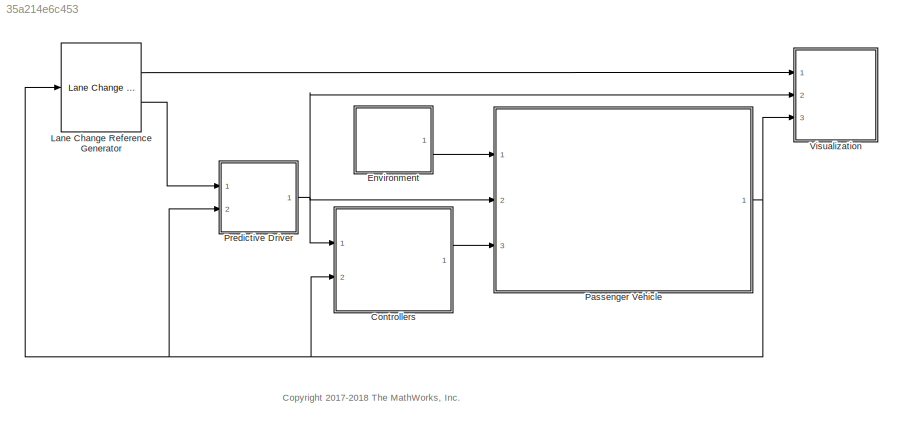
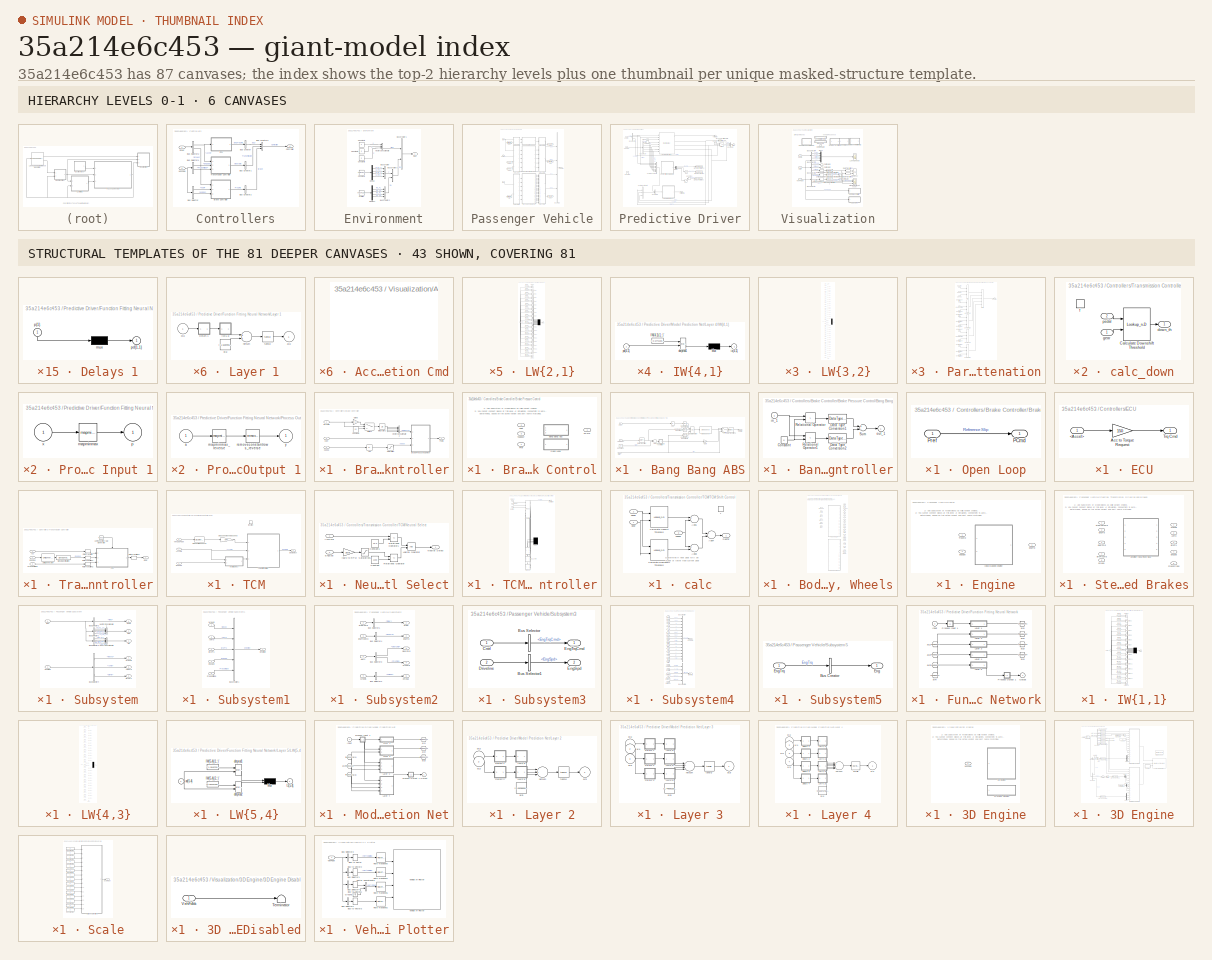
[diagram: thumbnail index - top-2 hierarchy levels (6 canvases) + 43 structural-template representatives of the remaining 81 canvases]
MODEL slx_35a214e6c453
KIND model
CONFIG AbsTol = auto
CONFIG EnableMultiTasking = on
CONFIG FixedStep = .001
CONFIG MaxStep = auto
CONFIG MinStep = auto
CONFIG RelTol = 5e-3
CONFIG SampleTimeConstraint = Unconstrained
CONFIG Solver = ode23tb
CONFIG SolverName = ode23tb
CONFIG StartFcn = %tic
CONFIG StartTime = 0.0
CONFIG StopFcn = %toc
CONFIG StopTime = 20
WORKSPACE source: MAT-file member
WORKSPACE A_mu = 10
BLOCK [SubSystem] Controllers
  Ports = [2, 1]
  RequestExecContextInheritance = off
BLOCK [SubSystem] Controllers/Brake Controller
  Ports = [3, 1]
  RequestExecContextInheritance = off
BLOCK [Abs] Controllers/Brake Controller/Abs
  SaturateOnIntegerOverflow = off
  ZeroCross = off
BLOCK [SubSystem] Controllers/Brake Controller/Brake Pressure Control
  OverrideUsingVariant = 0
  Ports = [3, 1]
  RequestExecContextInheritance = off
  Variant = on
BLOCK [Inport] Controllers/Brake Controller/Brake Pressure Control/<Kappa>
  IconDisplay = Port number
  Port = 3
BLOCK [SubSystem] Controllers/Brake Controller/Brake Pressure Control/Bang Bang ABS
  Ports = [3, 1]
  RequestExecContextInheritance = off
  VariantControl = 1
BLOCK [Inport] Controllers/Brake Controller/Brake Pressure Control/Bang Bang ABS/<Kappa>
  IconDisplay = Port number
  Port = 3
BLOCK [Abs] Controllers/Brake Controller/Brake Pressure Control/Bang Bang ABS/Abs
  SaturateOnIntegerOverflow = off
BLOCK [Sum] Controllers/Brake Controller/Brake Pressure Control/Bang Bang ABS/Add
  InputSameDT = off
  Inputs = -+
  OutDataTypeStr = Inherit: Inherit via internal rule
  Ports = [2, 1]
  SaturateOnIntegerOverflow = off
BLOCK [SubSystem] Controllers/Brake Controller/Brake Pressure Control/Bang Bang ABS/Bang-bang controller
  Ports = [1, 1]
  RequestExecContextInheritance = off
  ShowPortLabels = none
BLOCK [Constant] Controllers/Brake Controller/Brake Pressure Control/Bang Bang ABS/Bang-bang controller/Constant
  Value = 0
BLOCK [DataTypeConversion] Controllers/Brake Controller/Brake Pressure Control/Bang Bang ABS/Bang-bang controller/Data Type Conversion1
  OutDataTypeStr = double
BLOCK [DataTypeConversion] Controllers/Brake Controller/Brake Pressure Control/Bang Bang ABS/Bang-bang controller/Data Type Conversion2
  OutDataTypeStr = double
BLOCK [RelationalOperator] Controllers/Brake Controller/Brake Pressure Control/Bang Bang ABS/Bang-bang controller/Relational Operator
  Operator = >
  OutDataTypeStr = boolean
  Ports = [2, 1]
BLOCK [RelationalOperator] Controllers/Brake Controller/Brake Pressure Control/Bang Bang ABS/Bang-bang controller/Relational Operator1
  Operator = <
  OutDataTypeStr = boolean
  Ports = [2, 1]
BLOCK [Sum] Controllers/Brake Controller/Brake Pressure Control/Bang Bang ABS/Bang-bang controller/Sum
  Inputs = +-
  Ports = [2, 1]
BLOCK [Inport] Controllers/Brake Controller/Brake Pressure Control/Bang Bang ABS/Bang-bang controller/in_1
  IconDisplay = Port number
BLOCK [Outport] Controllers/Brake Controller/Brake Pressure Control/Bang Bang ABS/Bang-bang controller/out_1
  IconDisplay = Port number
  InitialOutput = 0
BLOCK [Reference] Controllers/Brake Controller/Brake Pressure Control/Bang Bang ABS/Compare To Constant  REF=simulink/Logic and Bit
Operations/Compare
To Constant
  Ports = [1, 1]
  SourceBlock = simulink/Logic and Bit\nOperations/Compare\nTo Constant
  SourceProductBaseCode = SL
  SourceProductName = Simulink
  SourceType = Compare To Constant
BLOCK [Reference] Controllers/Brake Controller/Brake Pressure Control/Bang Bang ABS/Compare To Constant1  REF=simulink/Logic and Bit
Operations/Compare
To Constant
  Ports = [1, 1]
  SourceBlock = simulink/Logic and Bit\nOperations/Compare\nTo Constant
  SourceProductBaseCode = SL
  SourceProductName = Simulink
  SourceType = Compare To Constant
BLOCK [Reference] Controllers/Brake Controller/Brake Pressure Control/Bang Bang ABS/Compare To Constant2  REF=simulink/Logic and Bit
Operations/Compare
To Constant
  Ports = [1, 1]
  SourceBlock = simulink/Logic and Bit\nOperations/Compare\nTo Constant
  SourceProductBaseCode = SL
  SourceProductName = Simulink
  SourceType = Compare To Constant
BLOCK [Constant] Controllers/Brake Controller/Brake Pressure Control/Bang Bang ABS/Constant
  Value = .25
BLOCK [Reference] Controllers/Brake Controller/Brake Pressure Control/Bang Bang ABS/Debounce  REF=autolibutils/Debounce
  Ports = [1, 1]
  SourceBlock = autolibutils/Debounce
  SourceProductBaseCode = PW
  SourceProductName = Powertrain Blockset
BLOCK [Gain] Controllers/Brake Controller/Brake Pressure Control/Bang Bang ABS/Gain
  Gain = 200
  OutDataTypeStr = Inherit: Inherit via internal rule
  ParamDataTypeStr = Inherit: Inherit via internal rule
  SaturateOnIntegerOverflow = off
BLOCK [Logic] Controllers/Brake Controller/Brake Pressure Control/Bang Bang ABS/Logical Operator
  AllPortsSameDT = off
  Inputs = 3
  OutDataTypeStr = boolean
  Ports = [3, 1]
BLOCK [Outport] Controllers/Brake Controller/Brake Pressure Control/Bang Bang ABS/PCmd
  IconDisplay = Port number
BLOCK [Inport] Controllers/Brake Controller/Brake Pressure Control/Bang Bang ABS/Pref
  IconDisplay = Port number
BLOCK [RateTransition] Controllers/Brake Controller/Brake Pressure Control/Bang Bang ABS/Rate Transition
  OutPortSampleTime = .001
BLOCK [RateTransition] Controllers/Brake Controller/Brake Pressure Control/Bang Bang ABS/Rate Transition1
BLOCK [Switch] Controllers/Brake Controller/Brake Pressure Control/Bang Bang ABS/Switch
  Criteria = u2 > Threshold
  InputSameDT = off
  SaturateOnIntegerOverflow = off
  ZeroCross = off
BLOCK [Inport] Controllers/Brake Controller/Brake Pressure Control/Bang Bang ABS/xdot
  IconDisplay = Port number
  Port = 2
BLOCK [SubSystem] Controllers/Brake Controller/Brake Pressure Control/Open Loop
  Ports = [1, 1]
  RequestExecContextInheritance = off
  VariantControl = 0
BLOCK [Outport] Controllers/Brake Controller/Brake Pressure Control/Open Loop/PCmd
  IconDisplay = Port number
BLOCK [Inport] Controllers/Brake Controller/Brake Pressure Control/Open Loop/Pref
  IconDisplay = Port number
BLOCK [Outport] Controllers/Brake Controller/Brake Pressure Control/PCmd
  IconDisplay = Port number
BLOCK [Inport] Controllers/Brake Controller/Brake Pressure Control/Pref
  IconDisplay = Port number
BLOCK [Inport] Controllers/Brake Controller/Brake Pressure Control/xdot
  IconDisplay = Port number
  Port = 2
BLOCK [Inport] Controllers/Brake Controller/BrkCmd
  IconDisplay = Port number
BLOCK [Constant] Controllers/Brake Controller/Constant1
  Value = -20
BLOCK [Gain] Controllers/Brake Controller/Gain3
  OutDataTypeStr = Inherit: Inherit via internal rule
  ParamDataTypeStr = Inherit: Inherit via internal rule
  SaturateOnIntegerOverflow = off
BLOCK [Integrator] Controllers/Brake Controller/Integrator2
  LimitOutput = on
  LowerSaturationLimit = 0
  Ports = [1, 1]
  UpperSaturationLimit = 1
BLOCK [Outport] Controllers/Brake Controller/PCmd
  IconDisplay = Port number
BLOCK [Saturate] Controllers/Brake Controller/Saturation
  InputPortMap = u0
  LowerLimit = 0
  Ports = [1, 1]
  UpperLimit = 1
  ZeroCross = off
BLOCK [Switch] Controllers/Brake Controller/Switch1
  Criteria = u2 > Threshold
  InputSameDT = off
  SaturateOnIntegerOverflow = off
  Threshold = .1
BLOCK [Concatenate] Controllers/Brake Controller/Vector Concatenate2
  NumInputs = 4
  Ports = [4, 1]
BLOCK [Inport] Controllers/Brake Controller/kappa
  IconDisplay = Port number
  Port = 3
BLOCK [Inport] Controllers/Brake Controller/xdot
  IconDisplay = Port number
  Port = 2
BLOCK [BusCreator] Controllers/Bus Creator
  DisplayOption = bar
  InheritFromInputs = on
  Inputs = 1
  Ports = [1, 1]
BLOCK [BusCreator] Controllers/Bus Creator1
  DisplayOption = bar
  InheritFromInputs = on
  Inputs = 1
  Ports = [1, 1]
BLOCK [BusCreator] Controllers/Bus Creator2
  DisplayOption = bar
  InheritFromInputs = on
  Inputs = 1
  Ports = [1, 1]
BLOCK [BusCreator] Controllers/Bus Creator3
  DisplayOption = bar
  InheritFromInputs = on
  Inputs = 3
  Ports = [3, 1]
BLOCK [BusSelector] Controllers/Bus Selector
  OutputAsBus = off
  OutputSignals = Body.xdot,Wheels.kappa
  Ports = [1, 2]
BLOCK [BusSelector] Controllers/Bus Selector1
  OutputAsBus = off
  OutputSignals = Driveline.EngSpd,Driveline.PropShftSpd
  Ports = [1, 2]
BLOCK [BusSelector] Controllers/Bus Selector2
  OutputAsBus = off
  OutputSignals = Accel,Brake
  Ports = [1, 2]
BLOCK [Outport] Controllers/Controller
  IconDisplay = Port number
BLOCK [Inport] Controllers/Driver
  IconDisplay = Port number
BLOCK [SubSystem] Controllers/ECU
  Ports = [1, 1]
  RequestExecContextInheritance = off
BLOCK [Inport] Controllers/ECU/<Accel>
  IconDisplay = Port number
BLOCK [Gain] Controllers/ECU/Acc to Torque Request
  Gain = 150
  OutDataTypeStr = Inherit: Inherit via internal rule
  ParamDataTypeStr = Inherit: Inherit via internal rule
  SaturateOnIntegerOverflow = off
BLOCK [Outport] Controllers/ECU/Trq Cmd
  IconDisplay = Port number
BLOCK [SubSystem] Controllers/Transmission Controller
  Ports = [3, 1]
  RequestExecContextInheritance = off
BLOCK [Reference] Controllers/Transmission Controller/10ms Function-Call Generator  REF=simulink/Ports &
Subsystems/Function-Call
Generator
  Ports = [0, 1]
  SourceBlock = simulink/Ports &\nSubsystems/Function-Call\nGenerator
  SourceProductBaseCode = SL
  SourceProductName = Simulink
  SourceType = Function-Call Generator
BLOCK [Inport] Controllers/Transmission Controller/Acc
  IconDisplay = Port number
BLOCK [Inport] Controllers/Transmission Controller/EngSpd
  IconDisplay = Port number
  Port = 2
  Unit = rad/s
BLOCK [Outport] Controllers/Transmission Controller/Gear
  IconDisplay = Port number
BLOCK [Inport] Controllers/Transmission Controller/PropShaftSpd
  IconDisplay = Port number
  Port = 3
BLOCK [RateTransition] Controllers/Transmission Controller/Rate Transition
BLOCK [RateTransition] Controllers/Transmission Controller/Rate Transition1
BLOCK [RateTransition] Controllers/Transmission Controller/Rate Transition2
BLOCK [RateTransition] Controllers/Transmission Controller/Rate Transition3
BLOCK [SignalSpecification] Controllers/Transmission Controller/Signal Specification
  Unit = rpm
BLOCK [SubSystem] Controllers/Transmission Controller/TCM
  Ports = [3, 1, 0, 1]
  RequestExecContextInheritance = off
BLOCK [Inport] Controllers/Transmission Controller/TCM/AccCmd
  IconDisplay = Port number
BLOCK [Inport] Controllers/Transmission Controller/TCM/EngSpd
  IconDisplay = Port number
  Port = 2
BLOCK [Outport] Controllers/Transmission Controller/TCM/Gear Select
  IconDisplay = Port number
BLOCK [SubSystem] Controllers/Transmission Controller/TCM/Neutral Select
  Ports = [2, 1]
  RequestExecContextInheritance = off
BLOCK [Inport] Controllers/Transmission Controller/TCM/Neutral Select/AccCmd
  IconDisplay = Port number
BLOCK [Constant] Controllers/Transmission Controller/TCM/Neutral Select/Constant
  Value = 1200
BLOCK [Constant] Controllers/Transmission Controller/TCM/Neutral Select/Constant1
  Value = 1e-6
BLOCK [Inport] Controllers/Transmission Controller/TCM/Neutral Select/EngSpd
  IconDisplay = Port number
  Port = 2
BLOCK [Logic] Controllers/Transmission Controller/TCM/Neutral Select/Logical Operator
  AllPortsSameDT = off
  OutDataTypeStr = boolean
  Ports = [2, 1]
BLOCK [Outport] Controllers/Transmission Controller/TCM/Neutral Select/Neutral Select
  IconDisplay = Port number
BLOCK [RelationalOperator] Controllers/Transmission Controller/TCM/Neutral Select/Relational Operator
  InputSameDT = off
  Operator = <=
  OutDataTypeStr = boolean
  Ports = [2, 1]
  RndMeth = Simplest
BLOCK [RelationalOperator] Controllers/Transmission Controller/TCM/Neutral Select/Relational Operator1
  InputSameDT = off
  Operator = <=
  OutDataTypeStr = boolean
  Ports = [2, 1]
  RndMeth = Simplest
BLOCK [Saturate] Controllers/Transmission Controller/TCM/Neutral Select/Saturation1
  InputPortMap = u0
  LowerLimit = 0
  Ports = [1, 1]
  UpperLimit = 10e3
BLOCK [Gain] Controllers/Transmission Controller/TCM/Neutral Select/rad//s to RPM
  Gain = 30/pi
  OutDataTypeStr = Inherit: Inherit via internal rule
  ParamDataTypeStr = Inherit: Inherit via internal rule
  SaturateOnIntegerOverflow = off
BLOCK [DiscreteTransferFcn] Controllers/Transmission Controller/TCM/Prop Shaft Speed LPF
  Denominator = [1.000000000000000 -0.990049833749168 ]
  InputPortMap = u0
  Numerator = [0.000000000000000 0.009950166250832 ]
  Ports = [1, 1]
BLOCK [SubSystem] Controllers/Transmission Controller/TCM/TCM Shift Controller
  ErrorFcn = Stateflow.Translate.translate
  PermitHierarchicalResolution = ExplicitOnly
  Ports = [3, 1]
  RequestExecContextInheritance = off
  SFBlockType = Chart
  TreatAsAtomicUnit = on
BLOCK [Demux] Controllers/Transmission Controller/TCM/TCM Shift Controller/ Demux 
  Outputs = 3
  Ports = [1, 3]
BLOCK [S-Function] Controllers/Transmission Controller/TCM/TCM Shift Controller/ SFunction 
  EnableBusSupport = on
  FunctionName = sf_sfun
  PortCounts = [6 9]
  Ports = [6, 9]
  SFcnIsStateOwnerBlock = off
  SFunctionDeploymentMode = off
  Tag = Stateflow S-Function DLCReferenceApplication 1
BLOCK [Outport] Controllers/Transmission Controller/TCM/TCM Shift Controller/GearState
  IconDisplay = Port number
BLOCK [Inport] Controllers/Transmission Controller/TCM/TCM Shift Controller/Neutral
  IconDisplay = Port number
  Port = 3
BLOCK [SubSystem] Controllers/Transmission Controller/TCM/TCM Shift Controller/calc
  Ports = [3, 1, 0, 1]
  PreDeleteFcn = Stateflow.SLINSF.SimulinkMan.removePreDeleteFcn
  RequestExecContextInheritance = off
  UndoDeleteFcn = Stateflow.SLINSF.SimulinkMan.restorePreDeleteFcn
BLOCK [Sum] Controllers/Transmission Controller/TCM/TCM Shift Controller/calc/Add1
  InputSameDT = off
  Inputs = +-
  OutDataTypeStr = Inherit: Inherit via internal rule
  Ports = [2, 1]
  SaturateOnIntegerOverflow = off
BLOCK [Sum] Controllers/Transmission Controller/TCM/TCM Shift Controller/calc/Add3
  InputSameDT = off
  Inputs = +-
  OutDataTypeStr = Inherit: Inherit via internal rule
  Ports = [2, 1]
  SaturateOnIntegerOverflow = off
BLOCK [Sum] Controllers/Transmission Controller/TCM/TCM Shift Controller/calc/Add4
  InputSameDT = off
  Inputs = +-
  OutDataTypeStr = Inherit: Inherit via internal rule
  Ports = [2, 1]
  SaturateOnIntegerOverflow = off
BLOCK [Lookup_n-D] Controllers/Transmission Controller/TCM/TCM Shift Controller/calc/Calculate Downshift Threshold
  BreakpointsForDimension1 = Pedal_Positions
  BreakpointsForDimension2 = 2:8
  ExtrapMethod = Clip
  InternalRulePriority = Speed
  Ports = [2, 1]
  RndMeth = Simplest
  Table = Downshift_Speeds
  UseLastTableValue = on
BLOCK [Lookup_n-D] Controllers/Transmission Controller/TCM/TCM Shift Controller/calc/Calculate Upshift Threshold
  BreakpointsForDimension1 = Pedal_Positions
  BreakpointsForDimension2 = 1:7
  ExtrapMethod = Clip
  InternalRulePriority = Speed
  Ports = [2, 1]
  RndMeth = Simplest
  Table = Upshift_Speeds
  UseLastTableValue = on
BLOCK [Outport] Controllers/Transmission Controller/TCM/TCM Shift Controller/calc/SpdThr
  IconDisplay = Port number
BLOCK [TriggerPort] Controllers/Transmission Controller/TCM/TCM Shift Controller/calc/f
  CopyFcn = Stateflow.SLINSF.SimulinkMan.removeBlockPreDeleteFcn
  Ports = []
  PreDeleteFcn = Stateflow.SLINSF.SimulinkMan.unsafePredeleteFcn
  StatesWhenEnabling = reset
  TriggerType = function-call
  VariantControl = Variant
BLOCK [Inport] Controllers/Transmission Controller/TCM/TCM Shift Controller/calc/gear
  IconDisplay = Port number
BLOCK [Inport] Controllers/Transmission Controller/TCM/TCM Shift Controller/calc/pedal
  IconDisplay = Port number
  Port = 2
BLOCK [Inport] Controllers/Transmission Controller/TCM/TCM Shift Controller/calc/speed
  IconDisplay = Port number
  Port = 3
BLOCK [SubSystem] Controllers/Transmission Controller/TCM/TCM Shift Controller/calc_down
  Ports = [2, 1, 0, 1]
  PreDeleteFcn = Stateflow.SLINSF.SimulinkMan.removePreDeleteFcn
  RequestExecContextInheritance = off
  UndoDeleteFcn = Stateflow.SLINSF.SimulinkMan.restorePreDeleteFcn
BLOCK [Lookup_n-D] Controllers/Transmission Controller/TCM/TCM Shift Controller/calc_down/Calculate Downshift Threshold
  BreakpointsForDimension1 = Pedal_Positions
  BreakpointsForDimension2 = 2:8
  ExtrapMethod = Clip
  InternalRulePriority = Speed
  Ports = [2, 1]
  RndMeth = Simplest
  Table = Downshift_Speeds
  UseLastTableValue = on
BLOCK [Outport] Controllers/Transmission Controller/TCM/TCM Shift Controller/calc_down/down_th
  IconDisplay = Port number
BLOCK [TriggerPort] Controllers/Transmission Controller/TCM/TCM Shift Controller/calc_down/f
  CopyFcn = Stateflow.SLINSF.SimulinkMan.removeBlockPreDeleteFcn
  Ports = []
  PreDeleteFcn = Stateflow.SLINSF.SimulinkMan.unsafePredeleteFcn
  StatesWhenEnabling = reset
  TriggerType = function-call
  VariantControl = Variant
BLOCK [Inport] Controllers/Transmission Controller/TCM/TCM Shift Controller/calc_down/gear
  IconDisplay = Port number
BLOCK [Inport] Controllers/Transmission Controller/TCM/TCM Shift Controller/calc_down/pedal
  IconDisplay = Port number
  Port = 2
BLOCK [SubSystem] Controllers/Transmission Controller/TCM/TCM Shift Controller/calc_up
  Ports = [2, 1, 0, 1]
  PreDeleteFcn = Stateflow.SLINSF.SimulinkMan.removePreDeleteFcn
  RequestExecContextInheritance = off
  UndoDeleteFcn = Stateflow.SLINSF.SimulinkMan.restorePreDeleteFcn
BLOCK [Lookup_n-D] Controllers/Transmission Controller/TCM/TCM Shift Controller/calc_up/Calculate Upshift Threshold
  BreakpointsForDimension1 = Pedal_Positions
  BreakpointsForDimension2 = 1:7
  ExtrapMethod = Clip
  InternalRulePriority = Speed
  Ports = [2, 1]
  RndMeth = Simplest
  Table = Upshift_Speeds
  UseLastTableValue = on
BLOCK [TriggerPort] Controllers/Transmission Controller/TCM/TCM Shift Controller/calc_up/f
  CopyFcn = Stateflow.SLINSF.SimulinkMan.removeBlockPreDeleteFcn
  Ports = []
  PreDeleteFcn = Stateflow.SLINSF.SimulinkMan.unsafePredeleteFcn
  StatesWhenEnabling = reset
  TriggerType = function-call
  VariantControl = Variant
BLOCK [Inport] Controllers/Transmission Controller/TCM/TCM Shift Controller/calc_up/gear
  IconDisplay = Port number
BLOCK [Inport] Controllers/Transmission Controller/TCM/TCM Shift Controller/calc_up/pedal
  IconDisplay = Port number
  Port = 2
BLOCK [Outport] Controllers/Transmission Controller/TCM/TCM Shift Controller/calc_up/up_th
  IconDisplay = Port number
BLOCK [Inport] Controllers/Transmission Controller/TCM/TCM Shift Controller/pedal
  IconDisplay = Port number
  Port = 2
BLOCK [Inport] Controllers/Transmission Controller/TCM/TCM Shift Controller/speed
  IconDisplay = Port number
BLOCK [Inport] Controllers/Transmission Controller/TCM/VehSpdFdbk
  IconDisplay = Port number
  Port = 3
BLOCK [TriggerPort] Controllers/Transmission Controller/TCM/function
  Ports = []
  StatesWhenEnabling = held
  TriggerType = function-call
  VariantControl = Variant
BLOCK [Gain] Controllers/Transmission Controller/TCM/prop speed to vehicle speed
  Gain = 0.45
  OutDataTypeStr = Inherit: Inherit via internal rule
  ParamDataTypeStr = Inherit: Inherit via internal rule
  SaturateOnIntegerOverflow = off
BLOCK [UnitConversion] Controllers/Transmission Controller/Unit Conversion
BLOCK [Inport] Controllers/VehFdbk
  IconDisplay = Port number
  Port = 2
BLOCK [SubSystem] Environment
  Ports = [0, 1]
  RequestExecContextInheritance = off
BLOCK [BusCreator] Environment/Bus Creator
  DisplayOption = bar
  InheritFromInputs = on
  Inputs = 4
  Ports = [4, 1]
BLOCK [BusCreator] Environment/Bus Creator1
  DisplayOption = bar
  InheritFromInputs = on
  Inputs = 2
  Ports = [2, 1]
BLOCK [BusCreator] Environment/Bus Creator2
  DisplayOption = bar
  InheritFromInputs = on
  Inputs = 4
  Ports = [4, 1]
BLOCK [BusCreator] Environment/Bus Creator3
  DisplayOption = bar
  InheritFromInputs = on
  Inputs = 2
  Ports = [2, 1]
BLOCK [Constant] Environment/Constant1
  Value = zeros(4,1)
BLOCK [Constant] Environment/Constant3
  Value = 0
BLOCK [Constant] Environment/Constant4
  Value = 0
BLOCK [Constant] Environment/Constant5
  Value = 0
BLOCK [Demux] Environment/Demux
  DisplayOption = bar
  Ports = [1, 4]
BLOCK [Demux] Environment/Demux1
  DisplayOption = bar
  Ports = [1, 4]
BLOCK [Outport] Environment/Env
  IconDisplay = Port number
BLOCK [Constant] Environment/Friction
  Value = ones(4,1).*1.0
BLOCK [Concatenate] Environment/Vector Concatenate
  NumInputs = 3
  Ports = [3, 1]
BLOCK [Reference] Lane Change Reference Generator  REF=vehdynlibscenariocommon/Lane Change Reference
Generator
  Ports = [1, 2]
  SourceBlock = vehdynlibscenariocommon/Lane Change Reference\nGenerator
  SourceType = Double Lane Change Source
BLOCK [SubSystem] Passenger Vehicle
  Ports = [3, 1]
  RequestExecContextInheritance = off
BLOCK [SubSystem] Passenger Vehicle/Body, Suspension, Wheels
  OverrideUsingVariant = 1
  Ports = [6, 20]
  RequestExecContextInheritance = off
  Variant = on
BLOCK [Inport] Passenger Vehicle/Body, Suspension, Wheels/AxleTrq
  IconDisplay = Port number
  Port = 5
BLOCK [Inport] Passenger Vehicle/Body, Suspension, Wheels/BrkPrs
  IconDisplay = Port number
  Port = 6
BLOCK [Inport] Passenger Vehicle/Body, Suspension, Wheels/Friction
  IconDisplay = Port number
  Port = 3
  PortDimensions = 4
BLOCK [Inport] Passenger Vehicle/Body, Suspension, Wheels/Ground
  IconDisplay = Port number
  Port = 2
  PortDimensions = 4
BLOCK [ModelReference] Passenger Vehicle/Body, Suspension, Wheels/PassVeh14DOF
  DisableCoverage = on
  ModelNameDialog = PassVeh14DOF
  ModelReferenceVersion = 1.200
  Ports = [6, 20]
  VariantControl = 3
BLOCK [ModelReference] Passenger Vehicle/Body, Suspension, Wheels/PassVeh7DOF
  DisableCoverage = on
  ModelNameDialog = PassVeh7DOF
  ModelReferenceVersion = 1.104
  Ports = [6, 20]
  VariantControl = 1
BLOCK [Inport] Passenger Vehicle/Body, Suspension, Wheels/WheelAngle
  IconDisplay = Port number
  Port = 4
BLOCK [Inport] Passenger Vehicle/Body, Suspension, Wheels/WindXYZ
  IconDisplay = Port number
BLOCK [Outport] Passenger Vehicle/Body, Suspension, Wheels/X
  IconDisplay = Port number
  Port = 3
BLOCK [Outport] Passenger Vehicle/Body, Suspension, Wheels/XWheel
  IconDisplay = Port number
  Port = 19
BLOCK [Outport] Passenger Vehicle/Body, Suspension, Wheels/Xdot
  IconDisplay = Port number
  Port = 6
BLOCK [Outport] Passenger Vehicle/Body, Suspension, Wheels/Y
  IconDisplay = Port number
  Port = 4
BLOCK [Outport] Passenger Vehicle/Body, Suspension, Wheels/YWheel
  IconDisplay = Port number
  Port = 20
BLOCK [Outport] Passenger Vehicle/Body, Suspension, Wheels/Ydot
  IconDisplay = Port number
  Port = 7
BLOCK [Outport] Passenger Vehicle/Body, Suspension, Wheels/Z
  IconDisplay = Port number
  Port = 5
BLOCK [Outport] Passenger Vehicle/Body, Suspension, Wheels/ZHP
  IconDisplay = Port number
  Port = 18
  Unit = m
BLOCK [Outport] Passenger Vehicle/Body, Suspension, Wheels/ay
  IconDisplay = Port number
  Port = 14
BLOCK [Outport] Passenger Vehicle/Body, Suspension, Wheels/kappa
  IconDisplay = Port number
  Port = 15
BLOCK [Outport] Passenger Vehicle/Body, Suspension, Wheels/omega
  IconDisplay = Port number
  Port = 17
BLOCK [Outport] Passenger Vehicle/Body, Suspension, Wheels/p
  IconDisplay = Port number
  Port = 11
BLOCK [Outport] Passenger Vehicle/Body, Suspension, Wheels/phi
  IconDisplay = Port number
  Port = 8
BLOCK [Outport] Passenger Vehicle/Body, Suspension, Wheels/psi
  IconDisplay = Port number
  Port = 10
BLOCK [Outport] Passenger Vehicle/Body, Suspension, Wheels/q
  IconDisplay = Port number
  Port = 12
BLOCK [Outport] Passenger Vehicle/Body, Suspension, Wheels/r
  IconDisplay = Port number
  Port = 13
BLOCK [Outport] Passenger Vehicle/Body, Suspension, Wheels/theta
  IconDisplay = Port number
  Port = 9
BLOCK [Outport] Passenger Vehicle/Body, Suspension, Wheels/xdot
  IconDisplay = Port number
BLOCK [Outport] Passenger Vehicle/Body, Suspension, Wheels/ydot
  IconDisplay = Port number
  Port = 2
BLOCK [Outport] Passenger Vehicle/Body, Suspension, Wheels/zAxle
  IconDisplay = Port number
  Port = 16
BLOCK [BusCreator] Passenger Vehicle/Bus Creator2
  DisplayOption = bar
  InheritFromInputs = on
  Inputs = 4
  Ports = [4, 1]
BLOCK [Inport] Passenger Vehicle/Cntrl
  IconDisplay = Port number
  Port = 3
BLOCK [SubSystem] Passenger Vehicle/Engine
  OverrideUsingVariant = 0
  Ports = [2, 1]
  RequestExecContextInheritance = off
  Variant = on
BLOCK [Inport] Passenger Vehicle/Engine/EngSpd
  IconDisplay = Port number
  Port = 2
  Unit = rad/s
BLOCK [Outport] Passenger Vehicle/Engine/EngTrq
  IconDisplay = Port number
BLOCK [ModelReference] Passenger Vehicle/Engine/Ideal Mapped Engine
  DisableCoverage = on
  ModelNameDialog = SiMappedEngineV
  ModelReferenceVersion = 1.317
  Ports = [2, 1]
  VariantControl = 0
BLOCK [Inport] Passenger Vehicle/Engine/TrqCmd
  IconDisplay = Port number
BLOCK [Inport] Passenger Vehicle/Env
  IconDisplay = Port number
BLOCK [From] Passenger Vehicle/From
  GotoTag = Driveline
BLOCK [From] Passenger Vehicle/From1
  GotoTag = Wheels
BLOCK [From] Passenger Vehicle/From2
  GotoTag = EngTrq
BLOCK [From] Passenger Vehicle/From3
  GotoTag = Driveline
BLOCK [Goto] Passenger Vehicle/Goto
  GotoTag = Driveline
BLOCK [Goto] Passenger Vehicle/Goto1
  GotoTag = Wheels
BLOCK [Goto] Passenger Vehicle/Goto2
  GotoTag = EngTrq
BLOCK [Inport] Passenger Vehicle/Operator
  IconDisplay = Port number
  Port = 2
BLOCK [SubSystem] Passenger Vehicle/Steering, Transmission, Driveline and Brakes
  OverrideUsingVariant = 0
  Ports = [5, 5]
  RequestExecContextInheritance = off
  Variant = on
BLOCK [Outport] Passenger Vehicle/Steering, Transmission, Driveline and Brakes/AxlTrq
  IconDisplay = Port number
  Port = 2
BLOCK [Outport] Passenger Vehicle/Steering, Transmission, Driveline and Brakes/BrkPrs
  IconDisplay = Port number
  Port = 3
  PortDimensions = 4
BLOCK [Inport] Passenger Vehicle/Steering, Transmission, Driveline and Brakes/BrkPrsCmd
  IconDisplay = Port number
  Port = 4
  PortDimensions = 4
BLOCK [ModelReference] Passenger Vehicle/Steering, Transmission, Driveline and Brakes/Driveline Ideal Fixed Gear
  DisableCoverage = on
  ModelNameDialog = Driveline
  ModelReferenceVersion = 1.184
  Ports = [5, 5]
  VariantControl = 0
BLOCK [Outport] Passenger Vehicle/Steering, Transmission, Driveline and Brakes/EngSpd
  IconDisplay = Port number
  Port = 4
  Unit = rad/s
BLOCK [Inport] Passenger Vehicle/Steering, Transmission, Driveline and Brakes/EngTrq
  IconDisplay = Port number
  Port = 2
BLOCK [Inport] Passenger Vehicle/Steering, Transmission, Driveline and Brakes/GearCmd
  IconDisplay = Port number
  OutDataTypeStr = int8
  Port = 3
BLOCK [Outport] Passenger Vehicle/Steering, Transmission, Driveline and Brakes/PropShftSpd
  IconDisplay = Port number
  Port = 5
BLOCK [Inport] Passenger Vehicle/Steering, Transmission, Driveline and Brakes/SteerHWCmd
  IconDisplay = Port number
BLOCK [Outport] Passenger Vehicle/Steering, Transmission, Driveline and Brakes/WhlAng
  IconDisplay = Port number
BLOCK [Inport] Passenger Vehicle/Steering, Transmission, Driveline and Brakes/omega
  IconDisplay = Port number
  Port = 5
BLOCK [SubSystem] Passenger Vehicle/Subsystem
  Ports = [2, 6]
  RequestExecContextInheritance = off
BLOCK [Outport] Passenger Vehicle/Subsystem/AxleTrq
  IconDisplay = Port number
  Port = 5
BLOCK [Outport] Passenger Vehicle/Subsystem/BrkPrs
  IconDisplay = Port number
  Port = 6
BLOCK [BusSelector] Passenger Vehicle/Subsystem/Bus Selector1
  OutputAsBus = off
  OutputSignals = Gnd.z.G_FL_z,Gnd.z.G_FR_z,Gnd.z.G_RL_z,Gnd.z.G_RR_z
  Ports = [1, 4]
BLOCK [BusSelector] Passenger Vehicle/Subsystem/Bus Selector2
  OutputAsBus = off
  OutputSignals = Wind
  Ports = [1, 1]
BLOCK [BusSelector] Passenger Vehicle/Subsystem/Bus Selector3
  OutputAsBus = off
  OutputSignals = Gnd.mu.mu_FL,Gnd.mu.mu_FR,Gnd.mu.mu_RL,Gnd.mu.mu_RR
  Ports = [1, 4]
BLOCK [BusSelector] Passenger Vehicle/Subsystem/Bus Selector4
  OutputAsBus = off
  OutputSignals = WhlAng,AxlTrq,BrkPrs
  Ports = [1, 3]
BLOCK [Inport] Passenger Vehicle/Subsystem/Driveline
  IconDisplay = Port number
  Port = 2
BLOCK [Inport] Passenger Vehicle/Subsystem/Env
  IconDisplay = Port number
BLOCK [Outport] Passenger Vehicle/Subsystem/Gnd
  IconDisplay = Port number
  Port = 2
BLOCK [Concatenate] Passenger Vehicle/Subsystem/Vector Concatenate
  NumInputs = 4
  Ports = [4, 1]
BLOCK [Concatenate] Passenger Vehicle/Subsystem/Vector Concatenate1
  NumInputs = 4
  Ports = [4, 1]
BLOCK [Outport] Passenger Vehicle/Subsystem/WhlAng
  IconDisplay = Port number
  Port = 4
BLOCK [Outport] Passenger Vehicle/Subsystem/Wind
  IconDisplay = Port number
BLOCK [Outport] Passenger Vehicle/Subsystem/mu
  IconDisplay = Port number
  Port = 3
BLOCK [SubSystem] Passenger Vehicle/Subsystem1
  Ports = [5, 1]
  RequestExecContextInheritance = off
BLOCK [Inport] Passenger Vehicle/Subsystem1/AxlTrq
  IconDisplay = Port number
  Port = 2
BLOCK [Inport] Passenger Vehicle/Subsystem1/BrkPrs
  IconDisplay = Port number
  Port = 3
BLOCK [BusCreator] Passenger Vehicle/Subsystem1/Bus Creator1
  DisplayOption = bar
  InheritFromInputs = on
  Inputs = 5
  Ports = [5, 1]
BLOCK [Outport] Passenger Vehicle/Subsystem1/Driveline
  IconDisplay = Port number
BLOCK [Inport] Passenger Vehicle/Subsystem1/EngSpd
  IconDisplay = Port number
  Port = 4
BLOCK [Inport] Passenger Vehicle/Subsystem1/PropShftSpd
  IconDisplay = Port number
  Port = 5
BLOCK [Inport] Passenger Vehicle/Subsystem1/WhlAng
  IconDisplay = Port number
BLOCK [SubSystem] Passenger Vehicle/Subsystem2
  Ports = [4, 5]
  RequestExecContextInheritance = off
BLOCK [BusSelector] Passenger Vehicle/Subsystem2/Bus Selector1
  OutputAsBus = off
  OutputSignals = Steer
  Ports = [1, 1]
BLOCK [BusSelector] Passenger Vehicle/Subsystem2/Bus Selector2
  OutputAsBus = off
  OutputSignals = omega
  Ports = [1, 1]
BLOCK [BusSelector] Passenger Vehicle/Subsystem2/Bus Selector3
  OutputAsBus = off
  OutputSignals = Transmission.GearCmd,Brake.PrsCmd
  Ports = [1, 2]
BLOCK [BusSelector] Passenger Vehicle/Subsystem2/Bus Selector4
  OutputAsBus = off
  OutputSignals = EngTrq
  Ports = [1, 1]
BLOCK [Inport] Passenger Vehicle/Subsystem2/Cntrl
  IconDisplay = Port number
BLOCK [Outport] Passenger Vehicle/Subsystem2/EngTrq
  IconDisplay = Port number
  Port = 2
BLOCK [Inport] Passenger Vehicle/Subsystem2/EngTrqCmd
  IconDisplay = Port number
  Port = 3
BLOCK [Outport] Passenger Vehicle/Subsystem2/GearCmd
  IconDisplay = Port number
  Port = 3
BLOCK [Outport] Passenger Vehicle/Subsystem2/PrsCmd
  IconDisplay = Port number
  Port = 4
BLOCK [Outport] Passenger Vehicle/Subsystem2/Steer
  IconDisplay = Port number
BLOCK [Inport] Passenger Vehicle/Subsystem2/SteerCmd
  IconDisplay = Port number
  Port = 2
BLOCK [Inport] Passenger Vehicle/Subsystem2/Wheels
  IconDisplay = Port number
  Port = 4
BLOCK [Outport] Passenger Vehicle/Subsystem2/omega
  IconDisplay = Port number
  Port = 5
BLOCK [SubSystem] Passenger Vehicle/Subsystem3
  Ports = [2, 2]
  RequestExecContextInheritance = off
BLOCK [BusSelector] Passenger Vehicle/Subsystem3/Bus Selector
  OutputAsBus = off
  OutputSignals = ECU.EngTrqCmd
  Ports = [1, 1]
BLOCK [BusSelector] Passenger Vehicle/Subsystem3/Bus Selector1
  OutputAsBus = off
  OutputSignals = EngSpd
  Ports = [1, 1]
BLOCK [Inport] Passenger Vehicle/Subsystem3/Cntrl
  IconDisplay = Port number
BLOCK [Inport] Passenger Vehicle/Subsystem3/Driveline
  IconDisplay = Port number
  Port = 2
BLOCK [Outport] Passenger Vehicle/Subsystem3/EngSpd
  IconDisplay = Port number
  Port = 2
BLOCK [Outport] Passenger Vehicle/Subsystem3/EngTrqCmd
  IconDisplay = Port number
BLOCK [SubSystem] Passenger Vehicle/Subsystem4
  Ports = [20, 2]
  RequestExecContextInheritance = off
BLOCK [BusCreator] Passenger Vehicle/Subsystem4/Bus Creator
  DisplayOption = bar
  InheritFromInputs = on
  Inputs = 15
  Ports = [15, 1]
BLOCK [BusCreator] Passenger Vehicle/Subsystem4/Bus Creator3
  DisplayOption = bar
  InheritFromInputs = on
  Inputs = 5
  Ports = [5, 1]
BLOCK [Outport] Passenger Vehicle/Subsystem4/Chassis
  IconDisplay = Port number
BLOCK [Outport] Passenger Vehicle/Subsystem4/Wheels
  IconDisplay = Port number
  Port = 2
BLOCK [Inport] Passenger Vehicle/Subsystem4/X
  IconDisplay = Port number
  Port = 3
BLOCK [Inport] Passenger Vehicle/Subsystem4/XWheel
  IconDisplay = Port number
  Port = 19
BLOCK [Inport] Passenger Vehicle/Subsystem4/Xdot
  IconDisplay = Port number
  Port = 6
BLOCK [Inport] Passenger Vehicle/Subsystem4/Y
  IconDisplay = Port number
  Port = 4
BLOCK [Inport] Passenger Vehicle/Subsystem4/YWheel
  IconDisplay = Port number
  Port = 20
BLOCK [Inport] Passenger Vehicle/Subsystem4/Ydot
  IconDisplay = Port number
  Port = 7
BLOCK [Inport] Passenger Vehicle/Subsystem4/Z
  IconDisplay = Port number
  Port = 5
BLOCK [Inport] Passenger Vehicle/Subsystem4/ZHP
  IconDisplay = Port number
  Port = 18
BLOCK [Inport] Passenger Vehicle/Subsystem4/ay
  IconDisplay = Port number
  Port = 14
BLOCK [Inport] Passenger Vehicle/Subsystem4/kappa
  IconDisplay = Port number
  Port = 15
BLOCK [Inport] Passenger Vehicle/Subsystem4/omega
  IconDisplay = Port number
  Port = 17
BLOCK [Inport] Passenger Vehicle/Subsystem4/p
  IconDisplay = Port number
  Port = 11
BLOCK [Inport] Passenger Vehicle/Subsystem4/phi
  IconDisplay = Port number
  Port = 8
BLOCK [Inport] Passenger Vehicle/Subsystem4/psi
  IconDisplay = Port number
  Port = 10
BLOCK [Inport] Passenger Vehicle/Subsystem4/q
  IconDisplay = Port number
  Port = 12
BLOCK [Inport] Passenger Vehicle/Subsystem4/r
  IconDisplay = Port number
  Port = 13
BLOCK [Inport] Passenger Vehicle/Subsystem4/theta
  IconDisplay = Port number
  Port = 9
BLOCK [Inport] Passenger Vehicle/Subsystem4/xdot
  IconDisplay = Port number
BLOCK [Inport] Passenger Vehicle/Subsystem4/ydot
  IconDisplay = Port number
  Port = 2
BLOCK [Inport] Passenger Vehicle/Subsystem4/zAxle
  IconDisplay = Port number
  Port = 16
BLOCK [SubSystem] Passenger Vehicle/Subsystem5
  Ports = [1, 1]
  RequestExecContextInheritance = off
BLOCK [BusCreator] Passenger Vehicle/Subsystem5/Bus Creator
  DisplayOption = bar
  InheritFromInputs = on
  Inputs = 1
  Ports = [1, 1]
BLOCK [Outport] Passenger Vehicle/Subsystem5/Eng
  IconDisplay = Port number
BLOCK [Inport] Passenger Vehicle/Subsystem5/EngTrq 
  IconDisplay = Port number
BLOCK [Outport] Passenger Vehicle/VehFdbk
  IconDisplay = Port number
BLOCK [SubSystem] Predictive Driver
  Ports = [2, 1]
  RequestExecContextInheritance = off
  VariantControl = 0
BLOCK [Saturate] Predictive Driver/-1~0
  Commented = on
  InputPortMap = u0
  LowerLimit = -1
  Ports = [1, 1]
  UpperLimit = 0
  ZeroCross = off
BLOCK [Saturate] Predictive Driver/0~1
  Commented = on
  InputPortMap = u0
  LowerLimit = 0
  Ports = [1, 1]
  UpperLimit = 1
  ZeroCross = off
BLOCK [BusCreator] Predictive Driver/Bus Creator1
  DisplayOption = bar
  InheritFromInputs = on
  Inputs = 3
  Ports = [3, 1]
BLOCK [BusCreator] Predictive Driver/Bus Creator2
  DisplayOption = bar
  InheritFromInputs = on
  Inputs = 2
  Ports = [2, 1]
BLOCK [BusSelector] Predictive Driver/Bus Selector
  OutputAsBus = off
  OutputSignals = Body.xdot,Body.Y,Body.ydot,Body.psi,Body.r
  Ports = [1, 5]
BLOCK [BusSelector] Predictive Driver/Bus Selector1
  OutputAsBus = off
  OutputSignals = LngRef,LtrlRef,ThrotKill
  Ports = [1, 3]
BLOCK [Constant] Predictive Driver/Constant
  Value = 0
BLOCK [Constant] Predictive Driver/Constant1
  Value = 15
BLOCK [DeadZone] Predictive Driver/Dead Zone
  LowerValue = -.1
  UpperValue = .1
  ZeroCross = off
BLOCK [Demux] Predictive Driver/Demux
  Commented = on
  DisplayOption = bar
  Outputs = 3
  Ports = [1, 3]
BLOCK [Outport] Predictive Driver/Driver
  IconDisplay = Port number
BLOCK [SubSystem] Predictive Driver/Function Fitting Neural Network
  Commented = on
  Ports = [1, 1]
  RequestExecContextInheritance = off
BLOCK [From] Predictive Driver/Function Fitting Neural Network/ a{1} 
  GotoTag = feedback1
BLOCK [From] Predictive Driver/Function Fitting Neural Network/ a{2} 
  GotoTag = feedback2
BLOCK [From] Predictive Driver/Function Fitting Neural Network/ a{3} 
  GotoTag = feedback3
BLOCK [From] Predictive Driver/Function Fitting Neural Network/ a{4} 
  GotoTag = feedback4
BLOCK [Inport] Predictive Driver/Function Fitting Neural Network/Input
  IconDisplay = Port number
  PortDimensions = 7
BLOCK [SubSystem] Predictive Driver/Function Fitting Neural Network/Layer 1
  Ports = [1, 1]
  RequestExecContextInheritance = off
BLOCK [SubSystem] Predictive Driver/Function Fitting Neural Network/Layer 1/Delays 1
  Ports = [1, 1]
  RequestExecContextInheritance = off
BLOCK [Mux] Predictive Driver/Function Fitting Neural Network/Layer 1/Delays 1/mux
  Inputs = 1
  Ports = [1, 1]
BLOCK [Outport] Predictive Driver/Function Fitting Neural Network/Layer 1/Delays 1/pd{1,1}
  IconDisplay = Port number
BLOCK [Inport] Predictive Driver/Function Fitting Neural Network/Layer 1/Delays 1/p{1}
  IconDisplay = Port number
  PortDimensions = 7
BLOCK [SubSystem] Predictive Driver/Function Fitting Neural Network/Layer 1/IW{1,1}
  Ports = [1, 1]
  RequestExecContextInheritance = off
BLOCK [Constant] Predictive Driver/Function Fitting Neural Network/Layer 1/IW{1,1}/IW{1,1}(1,:)'
  Value = [-1.509049673932340684956443510600365698337554931640625;1.51927734183694784775298103340901434421539306640625;1.479181269120346531309451165725477039813995361328125;0.76292036319028133650732570458785630762577056884765625;-1.4000753923386464183664656957262195646762847900390625;1.516189767355066830845089498325251042842864990234375;-0.6979172108090470061370069743134081363677978515625]
BLOCK [Constant] Predictive Driver/Function Fitting Neural Network/Layer 1/IW{1,1}/IW{1,1}(10,:)'
  Value = [0.67756364497310739292146308798692189157009124755859375;0.04182033064572175662387820693766116164624691009521484375;-0.4504897562480543182772407817537896335124969482421875;-2.551876443899323110287014060304500162601470947265625;0.18672185850221978409280154664884321391582489013671875;1.7325835923135628480196146483649499714374542236328125;0.289998821125625971806272218600497581064701080322265625]
BLOCK [Constant] Predictive Driver/Function Fitting Neural Network/Layer 1/IW{1,1}/IW{1,1}(11,:)'
  Value = [-1.2288862245678371376556015093228779733180999755859375;-0.70363000734339908870396129714208655059337615966796875;-1.5288499399296260339298214603331871330738067626953125;-1.1174320519343565738523693653405643999576568603515625;1.6750447749892007909267022114363498985767364501953125;-2.4972953199852252481605319189839065074920654296875;0.70182493954114166800906104981550015509128570556640625]
BLOCK [Constant] Predictive Driver/Function Fitting Neural Network/Layer 1/IW{1,1}/IW{1,1}(12,:)'
  Value = [1.9657399498320062836143051754334010183811187744140625;0.055469671143939518198617832922536763362586498260498046875;0.428893001178795640893071094978949986398220062255859375;0.83038703202997699026610689543304033577442169189453125;0.6528646345537374440226585647906176745891571044921875;-1.7892558675957606073581018790719099342823028564453125;-1.87816849195586765830512376851402223110198974609375]
BLOCK [Constant] Predictive Driver/Function Fitting Neural Network/Layer 1/IW{1,1}/IW{1,1}(13,:)'
  Value = [0.027553849311181564940564925336730084381997585296630859375;0.165556284993658930915216842549853026866912841796875;1.0787466889472050457499108233605511486530303955078125;-1.89957440383020159657689873711206018924713134765625;0.54115146920791890039481586427427828311920166015625;-1.653817387983281150809489190578460693359375;1.1876738967274527158934915860299952328205108642578125]
BLOCK [Constant] Predictive Driver/Function Fitting Neural Network/Layer 1/IW{1,1}/IW{1,1}(14,:)'
  Value = [-0.873258402827774116161663187085650861263275146484375;2.211312160674173465935155036277137696743011474609375;-2.483318885241498463756215642206370830535888671875;2.537018816534186260724936801125295460224151611328125;2.2595527875997465372392980498261749744415283203125;-4.12440023174638614733567010262049734592437744140625;2.3447201728720248325998909422196447849273681640625]
BLOCK [Constant] Predictive Driver/Function Fitting Neural Network/Layer 1/IW{1,1}/IW{1,1}(15,:)'
  Value = [2.08666569584865957409647307940758764743804931640625;-0.80442585468800620329687944831675849854946136474609375;-0.379133263113434482161068217465071938931941986083984375;-0.2375698497917715368288327226764522492885589599609375;0.10421540704451726089274643527460284531116485595703125;-0.77514844988269893111265673724119551479816436767578125;0.3039233762085336021385728599852882325649261474609375]
BLOCK [Constant] Predictive Driver/Function Fitting Neural Network/Layer 1/IW{1,1}/IW{1,1}(2,:)'
  Value = [-1.22803813723280175196350683108903467655181884765625;-2.25896918882737285372286351048387587070465087890625;-0.4219079312453886121403456854750402271747589111328125;-1.695805476122420163420656535890884697437286376953125;1.6764860652005861840763145664823241531848907470703125;-0.288104929415635313549870488714077509939670562744140625;1.1836646212486352514048348893993534147739410400390625]
BLOCK [Constant] Predictive Driver/Function Fitting Neural Network/Layer 1/IW{1,1}/IW{1,1}(3,:)'
  Value = [0.17521371396843898882167422925704158842563629150390625;-1.5068324243738988599261574563570320606231689453125;-0.339896798386482734688485152219072915613651275634765625;1.2475380308633063908274607456405647099018096923828125;3.277106824369047100020679863519035279750823974609375;0.1745122092133344626763147289238986559212207794189453125;-2.210738215368686088169170034234412014484405517578125]
BLOCK [Constant] Predictive Driver/Function Fitting Neural Network/Layer 1/IW{1,1}/IW{1,1}(4,:)'
  Value = [0.295155289995136682623666501967818476259708404541015625;0.54169014463003517523276286738109774887561798095703125;-0.81923187750457915345947412788518704473972320556640625;-1.413502828991773707656420810963027179241180419921875;0.7249327311390978412219965321128256618976593017578125;0.25822608938690316815467440392239950597286224365234375;3.05246104088644099050497970893047749996185302734375]
BLOCK [Constant] Predictive Driver/Function Fitting Neural Network/Layer 1/IW{1,1}/IW{1,1}(5,:)'
  Value = [-1.253615022589892991078386330627836287021636962890625;-1.308178888292455877007114395382814109325408935546875;-0.55746399823290404551556775913923047482967376708984375;2.888853599694045204415715488721616566181182861328125;0.67366408192522564402082707601948641240596771240234375;1.7511351672237738252846384057193063199520111083984375;-0.550561400887894958344759288593195378780364990234375]
BLOCK [Constant] Predictive Driver/Function Fitting Neural Network/Layer 1/IW{1,1}/IW{1,1}(6,:)'
  Value = [0.968443097846008793538885583984665572643280029296875;-1.02085143200877492830613846308551728725433349609375;-2.7100181628849835391292799613438546657562255859375;-1.469426684764355339751773499301634728908538818359375;-0.72093283243393291304101921923574991524219512939453125;0.0298446565267905077056820317693563993088901042938232421875;0.2776436857395701007789057257468812167644500732421875]
BLOCK [Constant] Predictive Driver/Function Fitting Neural Network/Layer 1/IW{1,1}/IW{1,1}(7,:)'
  Value = [0.83114107039691231815226046819589100778102874755859375;-1.653778663789594371991142907063476741313934326171875;1.7070538673297175336074360529892146587371826171875;-0.467894735272818274030015572861884720623493194580078125;-1.4874423762862181153110441300668753683567047119140625;0.1529353896317520999925676505881710909307003021240234375;-0.51792644395898801423783197606098838150501251220703125]
BLOCK [Constant] Predictive Driver/Function Fitting Neural Network/Layer 1/IW{1,1}/IW{1,1}(8,:)'
  Value = [1.5608537746191044615073906243196688592433929443359375;0.8208342730039908108352619819925166666507720947265625;1.70216863375625049314976422465406358242034912109375;-0.95886390034983914887334321974776685237884521484375;3.42297237946134469410708334180526435375213623046875;0.6162829570883274765691339780460111796855926513671875;3.2692680483829601456591262831352651119232177734375]
BLOCK [Constant] Predictive Driver/Function Fitting Neural Network/Layer 1/IW{1,1}/IW{1,1}(9,:)'
  Value = [1.3237529323020209570671568144462071359157562255859375;-0.44844324720964079400431501198909245431423187255859375;-3.795885956504914116038662541541270911693572998046875;-1.1322778939762268013424773016595281660556793212890625;-0.50600361676503669006166319377371110022068023681640625;-1.3597783903850106934640962208504788577556610107421875;-1.599955115091173496466581127606332302093505859375]
BLOCK [Mux] Predictive Driver/Function Fitting Neural Network/Layer 1/IW{1,1}/Mux
  Inputs = 15
  Ports = [15, 1]
BLOCK [Reference] Predictive Driver/Function Fitting Neural Network/Layer 1/IW{1,1}/dotprod1  REF=neural/Weight Functions/dotprod
  Ports = [2, 1]
  SourceBlock = neural/Weight Functions/dotprod
  SourceProductBaseCode = NN
  SourceProductName = Neural Network Toolbox
  SourceType = DOTPROD
BLOCK [Reference] Predictive Driver/Function Fitting Neural Network/Layer 1/IW{1,1}/dotprod10  REF=neural/Weight Functions/dotprod
  Ports = [2, 1]
  SourceBlock = neural/Weight Functions/dotprod
  SourceProductBaseCode = NN
  SourceProductName = Neural Network Toolbox
  SourceType = DOTPROD
BLOCK [Reference] Predictive Driver/Function Fitting Neural Network/Layer 1/IW{1,1}/dotprod11  REF=neural/Weight Functions/dotprod
  Ports = [2, 1]
  SourceBlock = neural/Weight Functions/dotprod
  SourceProductBaseCode = NN
  SourceProductName = Neural Network Toolbox
  SourceType = DOTPROD
BLOCK [Reference] Predictive Driver/Function Fitting Neural Network/Layer 1/IW{1,1}/dotprod12  REF=neural/Weight Functions/dotprod
  Ports = [2, 1]
  SourceBlock = neural/Weight Functions/dotprod
  SourceProductBaseCode = NN
  SourceProductName = Neural Network Toolbox
  SourceType = DOTPROD
BLOCK [Reference] Predictive Driver/Function Fitting Neural Network/Layer 1/IW{1,1}/dotprod13  REF=neural/Weight Functions/dotprod
  Ports = [2, 1]
  SourceBlock = neural/Weight Functions/dotprod
  SourceProductBaseCode = NN
  SourceProductName = Neural Network Toolbox
  SourceType = DOTPROD
BLOCK [Reference] Predictive Driver/Function Fitting Neural Network/Layer 1/IW{1,1}/dotprod14  REF=neural/Weight Functions/dotprod
  Ports = [2, 1]
  SourceBlock = neural/Weight Functions/dotprod
  SourceProductBaseCode = NN
  SourceProductName = Neural Network Toolbox
  SourceType = DOTPROD
BLOCK [Reference] Predictive Driver/Function Fitting Neural Network/Layer 1/IW{1,1}/dotprod15  REF=neural/Weight Functions/dotprod
  Ports = [2, 1]
  SourceBlock = neural/Weight Functions/dotprod
  SourceProductBaseCode = NN
  SourceProductName = Neural Network Toolbox
  SourceType = DOTPROD
BLOCK [Reference] Predictive Driver/Function Fitting Neural Network/Layer 1/IW{1,1}/dotprod2  REF=neural/Weight Functions/dotprod
  Ports = [2, 1]
  SourceBlock = neural/Weight Functions/dotprod
  SourceProductBaseCode = NN
  SourceProductName = Neural Network Toolbox
  SourceType = DOTPROD
BLOCK [Reference] Predictive Driver/Function Fitting Neural Network/Layer 1/IW{1,1}/dotprod3  REF=neural/Weight Functions/dotprod
  Ports = [2, 1]
  SourceBlock = neural/Weight Functions/dotprod
  SourceProductBaseCode = NN
  SourceProductName = Neural Network Toolbox
  SourceType = DOTPROD
BLOCK [Reference] Predictive Driver/Function Fitting Neural Network/Layer 1/IW{1,1}/dotprod4  REF=neural/Weight Functions/dotprod
  Ports = [2, 1]
  SourceBlock = neural/Weight Functions/dotprod
  SourceProductBaseCode = NN
  SourceProductName = Neural Network Toolbox
  SourceType = DOTPROD
BLOCK [Reference] Predictive Driver/Function Fitting Neural Network/Layer 1/IW{1,1}/dotprod5  REF=neural/Weight Functions/dotprod
  Ports = [2, 1]
  SourceBlock = neural/Weight Functions/dotprod
  SourceProductBaseCode = NN
  SourceProductName = Neural Network Toolbox
  SourceType = DOTPROD
BLOCK [Reference] Predictive Driver/Function Fitting Neural Network/Layer 1/IW{1,1}/dotprod6  REF=neural/Weight Functions/dotprod
  Ports = [2, 1]
  SourceBlock = neural/Weight Functions/dotprod
  SourceProductBaseCode = NN
  SourceProductName = Neural Network Toolbox
  SourceType = DOTPROD
BLOCK [Reference] Predictive Driver/Function Fitting Neural Network/Layer 1/IW{1,1}/dotprod7  REF=neural/Weight Functions/dotprod
  Ports = [2, 1]
  SourceBlock = neural/Weight Functions/dotprod
  SourceProductBaseCode = NN
  SourceProductName = Neural Network Toolbox
  SourceType = DOTPROD
BLOCK [Reference] Predictive Driver/Function Fitting Neural Network/Layer 1/IW{1,1}/dotprod8  REF=neural/Weight Functions/dotprod
  Ports = [2, 1]
  SourceBlock = neural/Weight Functions/dotprod
  SourceProductBaseCode = NN
  SourceProductName = Neural Network Toolbox
  SourceType = DOTPROD
BLOCK [Reference] Predictive Driver/Function Fitting Neural Network/Layer 1/IW{1,1}/dotprod9  REF=neural/Weight Functions/dotprod
  Ports = [2, 1]
  SourceBlock = neural/Weight Functions/dotprod
  SourceProductBaseCode = NN
  SourceProductName = Neural Network Toolbox
  SourceType = DOTPROD
BLOCK [Outport] Predictive Driver/Function Fitting Neural Network/Layer 1/IW{1,1}/iz{1,1}
  IconDisplay = Port number
BLOCK [Inport] Predictive Driver/Function Fitting Neural Network/Layer 1/IW{1,1}/pd{1,1}
  IconDisplay = Port number
  PortDimensions = 7
BLOCK [Outport] Predictive Driver/Function Fitting Neural Network/Layer 1/a{1}
  IconDisplay = Port number
  InitialOutput = [0;0;0;0;0;0;0;0;0;0;0;0;0;0;0]
BLOCK [Constant] Predictive Driver/Function Fitting Neural Network/Layer 1/b{1}
  Value = [-1.610040133341235968345017681713216006755828857421875;2.933706504967549921758518394199199974536895751953125;-1.42382437957278273898964471300132572650909423828125;-1.4570885099023058728562318719923496246337890625;-0.0288066645531489910758704553472853149287402629852294921875;-0.1701354696492190787804332785526639781892299652099609375;-0.70923136241727580131311015065875835716724395751953125;1.604187...<+430ch>
BLOCK [Sum] Predictive Driver/Function Fitting Neural Network/Layer 1/netsum
  Inputs = 2
  Ports = [2, 1]
BLOCK [Inport] Predictive Driver/Function Fitting Neural Network/Layer 1/p{1}
  IconDisplay = Port number
  PortDimensions = 7
BLOCK [Reference] Predictive Driver/Function Fitting Neural Network/Layer 1/tansig  REF=neural/Transfer Functions/tansig
  Ports = [1, 1]
  SourceBlock = neural/Transfer Functions/tansig
  SourceProductBaseCode = NN
  SourceProductName = Neural Network Toolbox
  SourceType = TANSIG
BLOCK [SubSystem] Predictive Driver/Function Fitting Neural Network/Layer 2
  Ports = [1, 1]
  RequestExecContextInheritance = off
BLOCK [SubSystem] Predictive Driver/Function Fitting Neural Network/Layer 2/Delays 1
  Ports = [1, 1]
  RequestExecContextInheritance = off
BLOCK [Mux] Predictive Driver/Function Fitting Neural Network/Layer 2/Delays 1/mux
  Inputs = 1
  Ports = [1, 1]
BLOCK [Outport] Predictive Driver/Function Fitting Neural Network/Layer 2/Delays 1/pd{2,1}
  IconDisplay = Port number
BLOCK [Inport] Predictive Driver/Function Fitting Neural Network/Layer 2/Delays 1/p{2}
  IconDisplay = Port number
  PortDimensions = 15
BLOCK [SubSystem] Predictive Driver/Function Fitting Neural Network/Layer 2/LW{2,1}
  Ports = [1, 1]
  RequestExecContextInheritance = off
BLOCK [Constant] Predictive Driver/Function Fitting Neural Network/Layer 2/LW{2,1}/IW{2,1}(1,:)'
  Value = [0.377408986567094262287724859561421908438205718994140625;0.916935828034818545262396582984365522861480712890625;0.393088948975864271861979659661301411688327789306640625;-0.6492111185444693344237521159811876714229583740234375;-0.203739226760496883184003991118515841662883758544921875;-0.1100086759278134651562908175037591718137264251708984375;0.351124696378162237664355416200123727321624755859375;0.54...<+447ch>
BLOCK [Constant] Predictive Driver/Function Fitting Neural Network/Layer 2/LW{2,1}/IW{2,1}(10,:)'
  Value = [-0.74203606234167496236153738209395669400691986083984375;-0.812696026932474335779943430679850280284881591796875;-0.6131789681735482222535438268096186220645904541015625;0.1180891377801421004978266182661172933876514434814453125;0.397427019878926424123477545435889624059200286865234375;2.659200302624636691462001181207597255706787109375;0.8379336594029853646503624986507929861545562744140625;-0.5126291...<+437ch>
BLOCK [Constant] Predictive Driver/Function Fitting Neural Network/Layer 2/LW{2,1}/IW{2,1}(11,:)'
  Value = [0.3533629692989530557412081179791130125522613525390625;-0.81541740940325035946756315752281807363033294677734375;-2.0683095123156203243297568405978381633758544921875;0.35160466105935561653694776396150700747966766357421875;0.47449346143949344689616509640472941100597381591796875;1.85236410264457074248412027372978627681732177734375;-0.81173488668558591019319692350109107792377471923828125;-0.865534123...<+443ch>
BLOCK [Constant] Predictive Driver/Function Fitting Neural Network/Layer 2/LW{2,1}/IW{2,1}(12,:)'
  Value = [1.0494579345300130146512174178496934473514556884765625;1.3044889644552188912030032952316105365753173828125;-0.27106298353604463269306279471493326127529144287109375;-0.1915871026849610692099901143592433072626590728759765625;-0.34760653690221354761291649992926977574825286865234375;0.52037978849581134621615774449310265481472015380859375;-0.2321169942446153766635319470879039727151393890380859375;0.33...<+430ch>
BLOCK [Constant] Predictive Driver/Function Fitting Neural Network/Layer 2/LW{2,1}/IW{2,1}(13,:)'
  Value = [-1.344327771042938213241768607986159622669219970703125;-0.349408651716258733532782798647531308233737945556640625;-0.390264497355393424893321707713766954839229583740234375;0.126088036555836335850244722678326070308685302734375;-2.274693199742918725547724534408189356327056884765625;0.91296441439649156368574267617077566683292388916015625;-0.68148198466500409242740943227545358240604400634765625;1.2270...<+431ch>
BLOCK [Constant] Predictive Driver/Function Fitting Neural Network/Layer 2/LW{2,1}/IW{2,1}(14,:)'
  Value = [-0.29853848744158828498740376744535751640796661376953125;1.1233511551870878353298621732392348349094390869140625;-2.07527020696446840020144009031355381011962890625;-1.935997401690873420676552996155805885791778564453125;-1.6993223712170613115546302651637233793735504150390625;1.3212505337032693919496750822872854769229888916015625;0.7734893293394142776975286324159242212772369384765625;2.9730966112839...<+413ch>
BLOCK [Constant] Predictive Driver/Function Fitting Neural Network/Layer 2/LW{2,1}/IW{2,1}(15,:)'
  Value = [1.0345820450408365065442239938420243561267852783203125;0.170053385086431474437773658792139030992984771728515625;0.425304751501224875820383886093623004853725433349609375;1.7849387921699018111354462234885431826114654541015625;0.058793108846872381423320774729290860705077648162841796875;-0.687600743270277536822732145083136856555938720703125;1.0963569888999680213004239703877829015254974365234375;1.229...<+445ch>
BLOCK [Constant] Predictive Driver/Function Fitting Neural Network/Layer 2/LW{2,1}/IW{2,1}(16,:)'
  Value = [-0.54498499369304098660649060548166744410991668701171875;0.6799088542563989090439235951635055243968963623046875;-0.59241245747564919010841322233318351209163665771484375;0.384464409586843858246396621325402520596981048583984375;0.0893006313696689535408523852311191149055957794189453125;1.07254602817469635311908859875984489917755126953125;-0.11425203906562857170126079608962754718959331512451171875;0....<+450ch>
BLOCK [Constant] Predictive Driver/Function Fitting Neural Network/Layer 2/LW{2,1}/IW{2,1}(17,:)'
  Value = [0.79632901656177512705880872090347111225128173828125;-0.43876079818712165891980703236185945570468902587890625;0.5548335307676006689092673695995472371578216552734375;-0.55849152574337879162413855738122947514057159423828125;-0.461844332172288318805186690951813943684101104736328125;-0.427115163073199521903688946622423827648162841796875;1.311178922459931062149962599505670368671417236328125;-1.1444708...<+437ch>
BLOCK [Constant] Predictive Driver/Function Fitting Neural Network/Layer 2/LW{2,1}/IW{2,1}(18,:)'
  Value = [-0.48414029369150057835469169731368310749530792236328125;0.2455425835334756612393647401404450647532939910888671875;2.175669169808506442365114708081819117069244384765625;-0.0169383857920981963085527155499221407808363437652587890625;1.7643193485798673858511165235540829598903656005859375;-0.1898086105258787181782054176437668502330780029296875;-0.33303470605840612694947822092217393219470977783203125;...<+450ch>
BLOCK [Constant] Predictive Driver/Function Fitting Neural Network/Layer 2/LW{2,1}/IW{2,1}(19,:)'
  Value = [-1.638090985101666507972595354658551514148712158203125;0.480827709429096028515004945802502334117889404296875;-1.4851154730728117758786765989498235285282135009765625;-0.9734283236699454722185009813983924686908721923828125;-0.21534839284540729931194391610915772616863250732421875;-0.94935571166668319964543343303375877439975738525390625;2.109650740065902585484991504927165806293487548828125;0.87464202...<+442ch>
BLOCK [Constant] Predictive Driver/Function Fitting Neural Network/Layer 2/LW{2,1}/IW{2,1}(2,:)'
  Value = [0.1469761547003029800162465789981069974601268768310546875;-0.578701316419981903749203411280177533626556396484375;0.341452645103678176230488361397874541580677032470703125;0.2386095773885203163988677488305256702005863189697265625;-0.36337242315637852119181161469896323978900909423828125;0.3665880503615490670910048720543272793292999267578125;-0.05470033317565676372895566714760207105427980422973632812...<+454ch>
BLOCK [Constant] Predictive Driver/Function Fitting Neural Network/Layer 2/LW{2,1}/IW{2,1}(20,:)'
  Value = [-0.60289804749850628429186372159165330231189727783203125;1.7330062937538868172993034022510983049869537353515625;1.573776484323565316714166328893043100833892822265625;0.2201108814813907688101579651629435829818248748779296875;-0.1919165645051046642510783613033709116280078887939453125;-1.547054173232626173017933979281224310398101806640625;-0.2912781093635989915213713175035081803798675537109375;2.680...<+433ch>
BLOCK [Constant] Predictive Driver/Function Fitting Neural Network/Layer 2/LW{2,1}/IW{2,1}(3,:)'
  Value = [0.50517179216705832001110820783651433885097503662109375;-0.59919078994797303483466066609253175556659698486328125;1.17889739811014404580191694549284875392913818359375;-0.004188677321987861745800074686485459096729755401611328125;1.0604996761056650900201248077792115509510040283203125;2.29707854769621544477331553935073316097259521484375;-1.0923530737408351232176073608570732176303863525390625;-1.32913...<+432ch>
BLOCK [Constant] Predictive Driver/Function Fitting Neural Network/Layer 2/LW{2,1}/IW{2,1}(4,:)'
  Value = [0.5505222236012532466276070408639498054981231689453125;1.951703456007682913053713491535745561122894287109375;-0.9897527108084924751807420761906541883945465087890625;0.89755279697985679288052551783039234578609466552734375;-0.324574947928065460356350513393408618867397308349609375;0.5752534850846224845355436627869494259357452392578125;1.3135611127646946716396314513985998928546905517578125;-0.9502825...<+439ch>
BLOCK [Constant] Predictive Driver/Function Fitting Neural Network/Layer 2/LW{2,1}/IW{2,1}(5,:)'
  Value = [1.214926144670938956693362342775799334049224853515625;-0.589383392185145904562659779912792146205902099609375;1.222907349879617466825720839551649987697601318359375;-0.165693908486424401615977330948226153850555419921875;2.380733171177626505965463366010226309299468994140625;1.0699740607363887878733521574758924543857574462890625;-0.8153826367841781053158456415985710918903350830078125;-1.9460877858361...<+425ch>
BLOCK [Constant] Predictive Driver/Function Fitting Neural Network/Layer 2/LW{2,1}/IW{2,1}(6,:)'
  Value = [-0.89026283402007511114106819150038063526153564453125;-2.1276489961269913209207516047172248363494873046875;-0.718725775341054085032510556629858911037445068359375;-1.4049413007122077967636641915305517613887786865234375;2.126218402185191980180434256908483803272247314453125;0.52509099498448141840611924635595642030239105224609375;-0.2171988856466122996824452684450079686939716339111328125;0.1142472625...<+444ch>
BLOCK [Constant] Predictive Driver/Function Fitting Neural Network/Layer 2/LW{2,1}/IW{2,1}(7,:)'
  Value = [-0.15724040048056597829173597347107715904712677001953125;-1.05278750497809081565492306253872811794281005859375;0.9040750931625753938902789741405285894870758056640625;0.94070892345154033531429149661562405526638031005859375;-0.46009379460067967304581770804361440241336822509765625;-1.23031803174596721106581753701902925968170166015625;-0.8300200073230570296800578944385051727294921875;0.30222093966344...<+427ch>
BLOCK [Constant] Predictive Driver/Function Fitting Neural Network/Layer 2/LW{2,1}/IW{2,1}(8,:)'
  Value = [0.945024960415079107178826234303414821624755859375;-0.294075471019162149044490206506452523171901702880859375;-0.7029985120569912648846866431995294988155364990234375;-0.062855179229177438049447346202214248478412628173828125;-0.446927348752318265301397559596807695925235748291015625;-0.2162056312035481042688189745604177005589008331298828125;-0.861414220128228880213328011450357735157012939453125;0.24...<+447ch>
BLOCK [Constant] Predictive Driver/Function Fitting Neural Network/Layer 2/LW{2,1}/IW{2,1}(9,:)'
  Value = [-0.5106940090357865447145968573749996721744537353515625;1.0882240534587903635355132792028598487377166748046875;-0.5668936775342794387455569449230097234249114990234375;-0.6211555230864871379736769085866399109363555908203125;-0.1736481411168747379658583440686925314366817474365234375;0.57637365312470334455241527393809519708156585693359375;-0.36364059015678418251837911157053895294666290283203125;2.06...<+434ch>
BLOCK [Mux] Predictive Driver/Function Fitting Neural Network/Layer 2/LW{2,1}/Mux
  Inputs = 20
  Ports = [20, 1]
BLOCK [Inport] Predictive Driver/Function Fitting Neural Network/Layer 2/LW{2,1}/ad{2,1}
  IconDisplay = Port number
  PortDimensions = 15
BLOCK [Reference] Predictive Driver/Function Fitting Neural Network/Layer 2/LW{2,1}/dotprod1  REF=neural/Weight Functions/dotprod
  Ports = [2, 1]
  SourceBlock = neural/Weight Functions/dotprod
  SourceProductBaseCode = NN
  SourceProductName = Neural Network Toolbox
  SourceType = DOTPROD
BLOCK [Reference] Predictive Driver/Function Fitting Neural Network/Layer 2/LW{2,1}/dotprod10  REF=neural/Weight Functions/dotprod
  Ports = [2, 1]
  SourceBlock = neural/Weight Functions/dotprod
  SourceProductBaseCode = NN
  SourceProductName = Neural Network Toolbox
  SourceType = DOTPROD
BLOCK [Reference] Predictive Driver/Function Fitting Neural Network/Layer 2/LW{2,1}/dotprod11  REF=neural/Weight Functions/dotprod
  Ports = [2, 1]
  SourceBlock = neural/Weight Functions/dotprod
  SourceProductBaseCode = NN
  SourceProductName = Neural Network Toolbox
  SourceType = DOTPROD
BLOCK [Reference] Predictive Driver/Function Fitting Neural Network/Layer 2/LW{2,1}/dotprod12  REF=neural/Weight Functions/dotprod
  Ports = [2, 1]
  SourceBlock = neural/Weight Functions/dotprod
  SourceProductBaseCode = NN
  SourceProductName = Neural Network Toolbox
  SourceType = DOTPROD
BLOCK [Reference] Predictive Driver/Function Fitting Neural Network/Layer 2/LW{2,1}/dotprod13  REF=neural/Weight Functions/dotprod
  Ports = [2, 1]
  SourceBlock = neural/Weight Functions/dotprod
  SourceProductBaseCode = NN
  SourceProductName = Neural Network Toolbox
  SourceType = DOTPROD
BLOCK [Reference] Predictive Driver/Function Fitting Neural Network/Layer 2/LW{2,1}/dotprod14  REF=neural/Weight Functions/dotprod
  Ports = [2, 1]
  SourceBlock = neural/Weight Functions/dotprod
  SourceProductBaseCode = NN
  SourceProductName = Neural Network Toolbox
  SourceType = DOTPROD
BLOCK [Reference] Predictive Driver/Function Fitting Neural Network/Layer 2/LW{2,1}/dotprod15  REF=neural/Weight Functions/dotprod
  Ports = [2, 1]
  SourceBlock = neural/Weight Functions/dotprod
  SourceProductBaseCode = NN
  SourceProductName = Neural Network Toolbox
  SourceType = DOTPROD
BLOCK [Reference] Predictive Driver/Function Fitting Neural Network/Layer 2/LW{2,1}/dotprod16  REF=neural/Weight Functions/dotprod
  Ports = [2, 1]
  SourceBlock = neural/Weight Functions/dotprod
  SourceProductBaseCode = NN
  SourceProductName = Neural Network Toolbox
  SourceType = DOTPROD
BLOCK [Reference] Predictive Driver/Function Fitting Neural Network/Layer 2/LW{2,1}/dotprod17  REF=neural/Weight Functions/dotprod
  Ports = [2, 1]
  SourceBlock = neural/Weight Functions/dotprod
  SourceProductBaseCode = NN
  SourceProductName = Neural Network Toolbox
  SourceType = DOTPROD
BLOCK [Reference] Predictive Driver/Function Fitting Neural Network/Layer 2/LW{2,1}/dotprod18  REF=neural/Weight Functions/dotprod
  Ports = [2, 1]
  SourceBlock = neural/Weight Functions/dotprod
  SourceProductBaseCode = NN
  SourceProductName = Neural Network Toolbox
  SourceType = DOTPROD
BLOCK [Reference] Predictive Driver/Function Fitting Neural Network/Layer 2/LW{2,1}/dotprod19  REF=neural/Weight Functions/dotprod
  Ports = [2, 1]
  SourceBlock = neural/Weight Functions/dotprod
  SourceProductBaseCode = NN
  SourceProductName = Neural Network Toolbox
  SourceType = DOTPROD
BLOCK [Reference] Predictive Driver/Function Fitting Neural Network/Layer 2/LW{2,1}/dotprod2  REF=neural/Weight Functions/dotprod
  Ports = [2, 1]
  SourceBlock = neural/Weight Functions/dotprod
  SourceProductBaseCode = NN
  SourceProductName = Neural Network Toolbox
  SourceType = DOTPROD
BLOCK [Reference] Predictive Driver/Function Fitting Neural Network/Layer 2/LW{2,1}/dotprod20  REF=neural/Weight Functions/dotprod
  Ports = [2, 1]
  SourceBlock = neural/Weight Functions/dotprod
  SourceProductBaseCode = NN
  SourceProductName = Neural Network Toolbox
  SourceType = DOTPROD
BLOCK [Reference] Predictive Driver/Function Fitting Neural Network/Layer 2/LW{2,1}/dotprod3  REF=neural/Weight Functions/dotprod
  Ports = [2, 1]
  SourceBlock = neural/Weight Functions/dotprod
  SourceProductBaseCode = NN
  SourceProductName = Neural Network Toolbox
  SourceType = DOTPROD
BLOCK [Reference] Predictive Driver/Function Fitting Neural Network/Layer 2/LW{2,1}/dotprod4  REF=neural/Weight Functions/dotprod
  Ports = [2, 1]
  SourceBlock = neural/Weight Functions/dotprod
  SourceProductBaseCode = NN
  SourceProductName = Neural Network Toolbox
  SourceType = DOTPROD
BLOCK [Reference] Predictive Driver/Function Fitting Neural Network/Layer 2/LW{2,1}/dotprod5  REF=neural/Weight Functions/dotprod
  Ports = [2, 1]
  SourceBlock = neural/Weight Functions/dotprod
  SourceProductBaseCode = NN
  SourceProductName = Neural Network Toolbox
  SourceType = DOTPROD
BLOCK [Reference] Predictive Driver/Function Fitting Neural Network/Layer 2/LW{2,1}/dotprod6  REF=neural/Weight Functions/dotprod
  Ports = [2, 1]
  SourceBlock = neural/Weight Functions/dotprod
  SourceProductBaseCode = NN
  SourceProductName = Neural Network Toolbox
  SourceType = DOTPROD
BLOCK [Reference] Predictive Driver/Function Fitting Neural Network/Layer 2/LW{2,1}/dotprod7  REF=neural/Weight Functions/dotprod
  Ports = [2, 1]
  SourceBlock = neural/Weight Functions/dotprod
  SourceProductBaseCode = NN
  SourceProductName = Neural Network Toolbox
  SourceType = DOTPROD
BLOCK [Reference] Predictive Driver/Function Fitting Neural Network/Layer 2/LW{2,1}/dotprod8  REF=neural/Weight Functions/dotprod
  Ports = [2, 1]
  SourceBlock = neural/Weight Functions/dotprod
  SourceProductBaseCode = NN
  SourceProductName = Neural Network Toolbox
  SourceType = DOTPROD
BLOCK [Reference] Predictive Driver/Function Fitting Neural Network/Layer 2/LW{2,1}/dotprod9  REF=neural/Weight Functions/dotprod
  Ports = [2, 1]
  SourceBlock = neural/Weight Functions/dotprod
  SourceProductBaseCode = NN
  SourceProductName = Neural Network Toolbox
  SourceType = DOTPROD
BLOCK [Outport] Predictive Driver/Function Fitting Neural Network/Layer 2/LW{2,1}/lz{2,1}
  IconDisplay = Port number
BLOCK [Inport] Predictive Driver/Function Fitting Neural Network/Layer 2/a{1} 
  IconDisplay = Port number
  PortDimensions = 15
BLOCK [Outport] Predictive Driver/Function Fitting Neural Network/Layer 2/a{2}
  IconDisplay = Port number
  InitialOutput = [0;0;0;0;0;0;0;0;0;0;0;0;0;0;0;0;0;0;0;0]
BLOCK [Constant] Predictive Driver/Function Fitting Neural Network/Layer 2/b{2}
  Value = [-1.6096024163797573169887300537084229290485382080078125;-1.65354764887041394416655748500488698482513427734375;-1.2914782583697201889805228347540833055973052978515625;-0.72315662509744094155195170969818718731403350830078125;-0.99306137128749594200627370810252614319324493408203125;0.155765590647604479368482088830205611884593963623046875;-0.74979936876206332296845857854350470006465911865234375;-0.34...<+716ch>
BLOCK [Sum] Predictive Driver/Function Fitting Neural Network/Layer 2/netsum
  Inputs = 2
  Ports = [2, 1]
BLOCK [Reference] Predictive Driver/Function Fitting Neural Network/Layer 2/tansig  REF=neural/Transfer Functions/tansig
  Ports = [1, 1]
  SourceBlock = neural/Transfer Functions/tansig
  SourceProductBaseCode = NN
  SourceProductName = Neural Network Toolbox
  SourceType = TANSIG
BLOCK [SubSystem] Predictive Driver/Function Fitting Neural Network/Layer 3
  Ports = [1, 1]
  RequestExecContextInheritance = off
BLOCK [SubSystem] Predictive Driver/Function Fitting Neural Network/Layer 3/Delays 1
  Ports = [1, 1]
  RequestExecContextInheritance = off
BLOCK [Mux] Predictive Driver/Function Fitting Neural Network/Layer 3/Delays 1/mux
  Inputs = 1
  Ports = [1, 1]
BLOCK [Outport] Predictive Driver/Function Fitting Neural Network/Layer 3/Delays 1/pd{3,2}
  IconDisplay = Port number
BLOCK [Inport] Predictive Driver/Function Fitting Neural Network/Layer 3/Delays 1/p{3}
  IconDisplay = Port number
  PortDimensions = 20
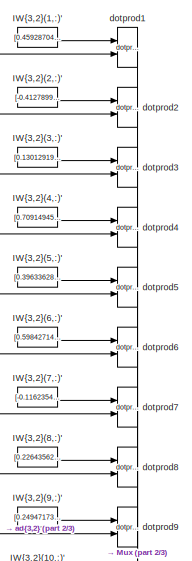
[diagram: Predictive Driver/Function Fitting Neural Network/Layer 3/LW{3,2} - part 1/3, top center region]
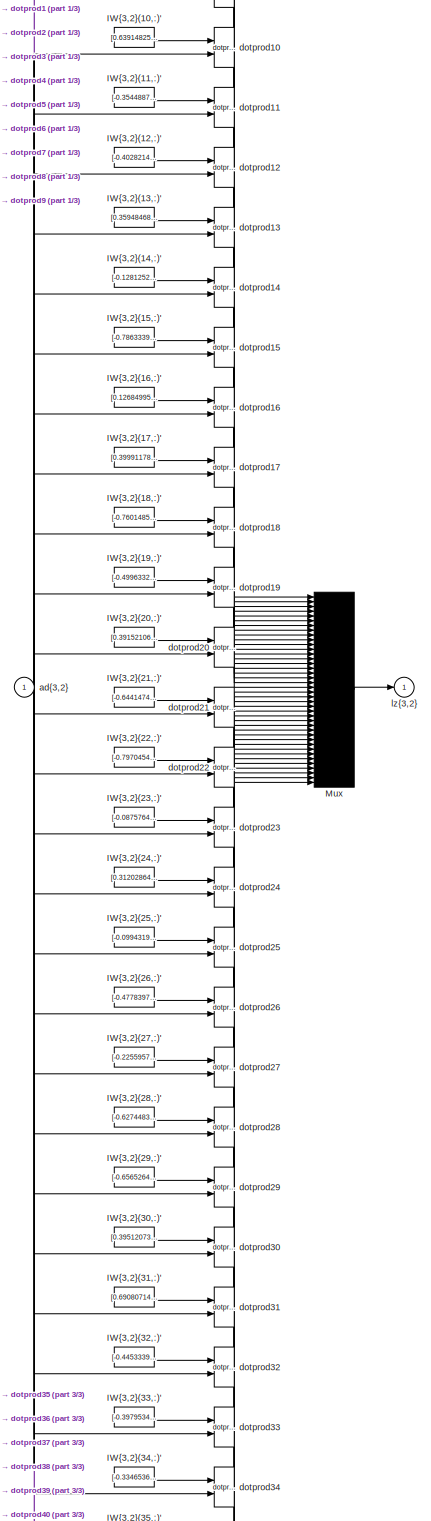
[diagram: Predictive Driver/Function Fitting Neural Network/Layer 3/LW{3,2} - part 2/3, full width, middle band]
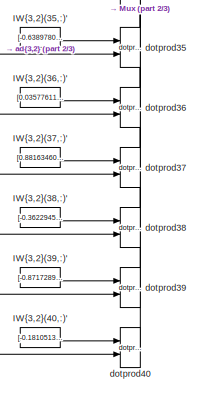
[diagram: Predictive Driver/Function Fitting Neural Network/Layer 3/LW{3,2} - part 3/3, bottom center region]
BLOCK [SubSystem] Predictive Driver/Function Fitting Neural Network/Layer 3/LW{3,2}
  Ports = [1, 1]
  RequestExecContextInheritance = off
BLOCK [Constant] Predictive Driver/Function Fitting Neural Network/Layer 3/LW{3,2}/IW{3,2}(1,:)'
  Value = [0.459287043793126958934891490571317262947559356689453125;0.15158328644517726768725651709246449172496795654296875;0.23487400964615912091204563694191165268421173095703125;0.49842805165434123093604057430638931691646575927734375;0.306723763332942434001182618885650299489498138427734375;-0.449370510355304342287041663439595140516757965087890625;-0.69490951822691882089344517225981689989566802978515625;-0...<+737ch>
BLOCK [Constant] Predictive Driver/Function Fitting Neural Network/Layer 3/LW{3,2}/IW{3,2}(10,:)'
  Value = [0.6391482548086118153918278039782308042049407958984375;-0.43853273482522980852849059374420903623104095458984375;1.4163636685373186541170298369252122938632965087890625;-0.263646547181768553524960907452623359858989715576171875;-0.3153616763748068319017647809232585132122039794921875;-0.009291621845865356832394610364644904620945453643798828125;-0.79420709637744846265405840313178487122058868408203125;...<+730ch>
BLOCK [Constant] Predictive Driver/Function Fitting Neural Network/Layer 3/LW{3,2}/IW{3,2}(11,:)'
  Value = [-0.3544887562210805587170625585713423788547515869140625;0.16086536323127809122723874679650180041790008544921875;0.5438239414677334959691279436810873448848724365234375;-0.81770584247655253573583422621595673263072967529296875;-0.33380895388035047854913273113197647035121917724609375;0.04539064741195110441740467877025366760790348052978515625;-0.07015421048819490967840550865730619989335536956787109375...<+730ch>
BLOCK [Constant] Predictive Driver/Function Fitting Neural Network/Layer 3/LW{3,2}/IW{3,2}(12,:)'
  Value = [-0.4028214928594220367585876374505460262298583984375;-0.374037324835880535811583058602991513907909393310546875;-0.1738020072384368897022710598321282304823398590087890625;-1.1265654777561469046531783533282577991485595703125;-0.660827917423113309070004106615670025348663330078125;0.60527518328425011784332809838815592229366302490234375;0.000226383594847667465356499949535873383865691721439361572265625...<+745ch>
BLOCK [Constant] Predictive Driver/Function Fitting Neural Network/Layer 3/LW{3,2}/IW{3,2}(13,:)'
  Value = [0.35948468343723394280431193692493252456188201904296875;-0.07999558302398047937575853438829653896391391754150390625;-1.785849770220225618544418466626666486263275146484375;-0.328649368948569831072603619759320281445980072021484375;1.107523153639003776760318942251615226268768310546875;-0.9171235575226284186811653853510506451129913330078125;0.479990219118636318729187451026518829166889190673828125;-0....<+737ch>
BLOCK [Constant] Predictive Driver/Function Fitting Neural Network/Layer 3/LW{3,2}/IW{3,2}(14,:)'
  Value = [-0.12812520357331214082563519696122966706752777099609375;-0.69594831637629328557892449680366553366184234619140625;1.006102840666454500961890516919083893299102783203125;1.35379601282936601336359672131948173046112060546875;2.260803592248003202058725946699269115924835205078125;-0.26106321707322177605448132453602738678455352783203125;-1.3900951709240951803536745501332916319370269775390625;-0.19543333...<+716ch>
BLOCK [Constant] Predictive Driver/Function Fitting Neural Network/Layer 3/LW{3,2}/IW{3,2}(15,:)'
  Value = [-0.786333912378249788588391311350278556346893310546875;-0.10576547719899397070886237770537263713777065277099609375;0.77801707962468069634809353374294005334377288818359375;-1.03827328081210890076135910931043326854705810546875;0.55299752940367008502420276272459886968135833740234375;0.173213046952857052662722026070696301758289337158203125;0.1164403266048661123033269859661231748759746551513671875;-0....<+724ch>
BLOCK [Constant] Predictive Driver/Function Fitting Neural Network/Layer 3/LW{3,2}/IW{3,2}(16,:)'
  Value = [0.1268499552219652659612592060511815361678600311279296875;-0.567794783411534442763013430521823465824127197265625;-0.305654896067221237832001179413055069744586944580078125;0.4893455169895286616110752220265567302703857421875;0.94965967209962709461024132906459271907806396484375;-0.424641198264922692384715219304780475795269012451171875;0.99281944687998902043801763284136541187763214111328125;-0.086791...<+722ch>
BLOCK [Constant] Predictive Driver/Function Fitting Neural Network/Layer 3/LW{3,2}/IW{3,2}(17,:)'
  Value = [0.39991178074394506669619886451982893049716949462890625;0.626666060083812315184559338376857340335845947265625;1.238809738741104116144242652808316051959991455078125;-0.377398962994758335742773169840802438557147979736328125;-0.6015693111005029347637673708959482610225677490234375;0.6023137822298287868960642299498431384563446044921875;-0.5255422796176774102860917992074973881244659423828125;1.37866412...<+719ch>
BLOCK [Constant] Predictive Driver/Function Fitting Neural Network/Layer 3/LW{3,2}/IW{3,2}(18,:)'
  Value = [-0.7601485114421102640136496120248921215534210205078125;-0.91314504164936038943523044508765451610088348388671875;2.054295021314493485675711781368590891361236572265625;-0.2079453573092519824694335284220869652926921844482421875;0.0017155879313651947910834838495475196396000683307647705078125;0.0256165991263860963467191567133340868167579174041748046875;0.5729327647840322113026445549621712416410446166...<+735ch>
BLOCK [Constant] Predictive Driver/Function Fitting Neural Network/Layer 3/LW{3,2}/IW{3,2}(19,:)'
  Value = [-0.499633208029829634089225010029622353613376617431640625;-0.625415747171725655562113388441503047943115234375;0.0440200365189405140586842435368453152477741241455078125;0.34997635964807061181858216514228843152523040771484375;-0.057047056769312702584340257772055338136851787567138671875;-0.035062929236266075772032735358152422122657299041748046875;0.154947497347548507340420087530219461768865585327148...<+737ch>
BLOCK [Constant] Predictive Driver/Function Fitting Neural Network/Layer 3/LW{3,2}/IW{3,2}(2,:)'
  Value = [-0.412789966493466498054232260983553715050220489501953125;-0.278634016796766526002926411820226348936557769775390625;0.6461278583012364240545366556034423410892486572265625;0.1596531682639086568986641623268951661884784698486328125;-0.461691014831250523542394148535095155239105224609375;-0.61726459907938313609321312469546683132648468017578125;-0.2355692311320848053579624092890298925340175628662109375...<+733ch>
BLOCK [Constant] Predictive Driver/Function Fitting Neural Network/Layer 3/LW{3,2}/IW{3,2}(20,:)'
  Value = [0.391521063955080406149278360317111946642398834228515625;-0.186133516880097660273207793579786084592342376708984375;-0.363183996145368614971715715000755153596401214599609375;0.2293889858242531276655284955268143676221370697021484375;0.1975444436714765827911577389386366121470928192138671875;-0.38535636175902165945217348053120076656341552734375;0.11701466956814243758344673551619052886962890625;-0.685...<+727ch>
BLOCK [Constant] Predictive Driver/Function Fitting Neural Network/Layer 3/LW{3,2}/IW{3,2}(21,:)'
  Value = [-0.6441474210463018490457898224121890962123870849609375;-0.39173665749560038218390900510712526738643646240234375;-0.2085910065145068770231517873980919830501079559326171875;-1.03397488712027030288709283922798931598663330078125;-0.1430308885582428912730534875663579441606998443603515625;-1.231635346650680862268245618906803429126739501953125;-1.032118318355020658572129832464270293712615966796875;0.60...<+731ch>
BLOCK [Constant] Predictive Driver/Function Fitting Neural Network/Layer 3/LW{3,2}/IW{3,2}(22,:)'
  Value = [-0.7970454983216657129929672009893693029880523681640625;-0.5946662436017284836253793400828726589679718017578125;-0.86364478995574955888514523394405841827392578125;-0.62109715680119059744157539171283133327960968017578125;0.53388061150971732882197784419986419379711151123046875;1.4782756972930266581300884354277513921260833740234375;1.3840413314111612574919263352057896554470062255859375;-1.1983311418...<+711ch>
BLOCK [Constant] Predictive Driver/Function Fitting Neural Network/Layer 3/LW{3,2}/IW{3,2}(23,:)'
  Value = [-0.08757649181564530760368825212935917079448699951171875;-0.411895169364904056852338953831349499523639678955078125;-1.0199900127630263657607656568870879709720611572265625;-0.1677849432291589060195491356353159062564373016357421875;0.110565629343332805234467741684056818485260009765625;-0.1723257735540155433096032311368617229163646697998046875;0.303135661407358203423001441478845663368701934814453125...<+737ch>
BLOCK [Constant] Predictive Driver/Function Fitting Neural Network/Layer 3/LW{3,2}/IW{3,2}(24,:)'
  Value = [0.312028641243641213787185506589594297111034393310546875;-1.1478446446589323226561418778146617114543914794921875;-0.5332073976110052182519893904100172221660614013671875;0.8479462043595515918781302389106713235378265380859375;0.2117454497840437765976417949786991812288761138916015625;1.88947266828477467015545698814094066619873046875;0.830700907075633043774587349616922438144683837890625;-0.7430753751...<+720ch>
BLOCK [Constant] Predictive Driver/Function Fitting Neural Network/Layer 3/LW{3,2}/IW{3,2}(25,:)'
  Value = [-0.0994319224405178225811852144033764488995075225830078125;0.466949769535783432150566341078956611454486846923828125;0.10758775618545086960597956249330309219658374786376953125;0.02698339591434073536646565116825513541698455810546875;0.2155035860251605372983618735815980471670627593994140625;-1.3805910376470886813393690317752771079540252685546875;0.2118064310503079139547111253705224953591823577880859...<+734ch>
BLOCK [Constant] Predictive Driver/Function Fitting Neural Network/Layer 3/LW{3,2}/IW{3,2}(26,:)'
  Value = [-0.4778397336828279495790638975449837744235992431640625;-0.038035094901923936772103473913375637494027614593505859375;0.277335742465030510306434052836266346275806427001953125;0.410312109585273476763944699996500276029109954833984375;-0.2182414999069208771942385283182375133037567138671875;0.93611698304634050060712979757227003574371337890625;-0.1515557733658467187698448697119602002203464508056640625;...<+737ch>
BLOCK [Constant] Predictive Driver/Function Fitting Neural Network/Layer 3/LW{3,2}/IW{3,2}(27,:)'
  Value = [-0.225595781678750550991452428206684999167919158935546875;0.67594991496858825019700134362210519611835479736328125;0.040540133118834316416911889291441184468567371368408203125;-1.1062730815558461383574240244342945516109466552734375;-0.89462374195918969999041792107163928449153900146484375;-0.62792159772813882501196758312289603054523468017578125;-0.818052891948235494368191211833618581295013427734375;...<+714ch>
BLOCK [Constant] Predictive Driver/Function Fitting Neural Network/Layer 3/LW{3,2}/IW{3,2}(28,:)'
  Value = [-0.62744833738374594656050931007484905421733856201171875;0.10926817139508727960706124804346472956240177154541015625;0.95827188476668234695665660183294676244258880615234375;-0.81586809196200216209859945593052543699741363525390625;0.358339127431329174111596103102783672511577606201171875;-0.253916675328903884700793014417286030948162078857421875;-0.946110569163901349298839704715646803379058837890625;...<+720ch>
BLOCK [Constant] Predictive Driver/Function Fitting Neural Network/Layer 3/LW{3,2}/IW{3,2}(29,:)'
  Value = [-0.65652644411611349450907937352894805371761322021484375;0.35153491137164138979898098114063031971454620361328125;2.0717455205990109590175052289851009845733642578125;0.292543295292923222206127320532687008380889892578125;1.7610658507161238706117956098751164972782135009765625;0.5927851413600431218497988083981908857822418212890625;-0.039224022630810990996952369869177346117794513702392578125;0.6756604...<+719ch>
BLOCK [Constant] Predictive Driver/Function Fitting Neural Network/Layer 3/LW{3,2}/IW{3,2}(3,:)'
  Value = [0.1301291982849227812923942337874905206263065338134765625;-0.06815512288958498754443127154445392079651355743408203125;-0.53339305359988864463360869194730184972286224365234375;0.734461734678176991764075864921323955059051513671875;-0.423460677518008699049545384696102701127529144287109375;-0.959500972257901540984903476783074438571929931640625;-1.08550149118649574830897108768112957477569580078125;-0....<+728ch>
BLOCK [Constant] Predictive Driver/Function Fitting Neural Network/Layer 3/LW{3,2}/IW{3,2}(30,:)'
  Value = [0.395120732512381611645224666062858887016773223876953125;-0.5602466921950164380206160785746760666370391845703125;0.1833455781852337818094156318693421781063079833984375;0.566940000844294189619176904670894145965576171875;0.033148139589544357852535227948465035296976566314697265625;-1.13367253004184220799288596026599407196044921875;0.473728170985638075141110903132357634603977203369140625;0.8691357497...<+718ch>
BLOCK [Constant] Predictive Driver/Function Fitting Neural Network/Layer 3/LW{3,2}/IW{3,2}(31,:)'
  Value = [0.690807146876306177318838308565318584442138671875;-0.39909692191029844110516933142207562923431396484375;0.01291921502670073142182705083769178600050508975982666015625;0.8155140566474210483960405326797626912593841552734375;-0.89799376295556776472750470929895527660846710205078125;0.7656111690829210392195136591908521950244903564453125;-0.22886688861562520802550579901435412466526031494140625;-0.01494...<+723ch>
BLOCK [Constant] Predictive Driver/Function Fitting Neural Network/Layer 3/LW{3,2}/IW{3,2}(32,:)'
  Value = [-0.445333914823629439805330321178189478814601898193359375;0.6644524001460485607140071806497871875762939453125;-0.04294649857018058292101869710677419789135456085205078125;0.13956709936363786983548607167904265224933624267578125;-0.472840091499783954365199178937473334372043609619140625;0.346765159232545638889888550693285651504993438720703125;-0.6770149155303031296426752305706031620502471923828125;-0...<+724ch>
BLOCK [Constant] Predictive Driver/Function Fitting Neural Network/Layer 3/LW{3,2}/IW{3,2}(33,:)'
  Value = [-0.397953471975607320221257623416022397577762603759765625;-0.5406335476701411568711819199961610138416290283203125;-0.312621342030331483829996841450338251888751983642578125;0.8960305691876062628153931655106134712696075439453125;-0.330864401842296429467893403852940537035465240478515625;0.958519695936077997799884542473591864109039306640625;-0.75240350975931058474799328905646689236164093017578125;-0....<+729ch>
BLOCK [Constant] Predictive Driver/Function Fitting Neural Network/Layer 3/LW{3,2}/IW{3,2}(34,:)'
  Value = [-0.3346536337072354427846221369691193103790283203125;-0.303907627593252460673767245680210180580615997314453125;-0.97641559694893731435882955338456667959690093994140625;0.27942386626512127900667792346212081611156463623046875;-0.12168935224276185291802931942584109492599964141845703125;-1.234884072217914852132025771425105631351470947265625;-0.31951428391383973615091917963582091033458709716796875;-0....<+743ch>
BLOCK [Constant] Predictive Driver/Function Fitting Neural Network/Layer 3/LW{3,2}/IW{3,2}(35,:)'
  Value = [-0.6389780772767708061365965477307327091693878173828125;0.27017129283832008734833607377368025481700897216796875;1.0520426095404824540224808515631593763828277587890625;0.082300131771315288009560617865645326673984527587890625;-0.64693574558153732478871233979589305818080902099609375;-0.53086022966617829599300648624193854629993438720703125;-0.57697151281476966033778808196075260639190673828125;-0.5639...<+723ch>
BLOCK [Constant] Predictive Driver/Function Fitting Neural Network/Layer 3/LW{3,2}/IW{3,2}(36,:)'
  Value = [0.035776113010425325544616725892410613596439361572265625;-0.444306868719430536618375526813906617462635040283203125;1.095017083852217520956173757440410554409027099609375;-0.8064597863417848344624871970154345035552978515625;-0.55171241967213635604139199131168425083160400390625;-0.366212743069580515253846897394396364688873291015625;-0.493750612125444299227439159949426539242267608642578125;-1.9189508...<+732ch>
BLOCK [Constant] Predictive Driver/Function Fitting Neural Network/Layer 3/LW{3,2}/IW{3,2}(37,:)'
  Value = [0.88163460871131837937042519115493632853031158447265625;-0.458393167956282210351304229334346018731594085693359375;0.63477726841312398509131753598921932280063629150390625;-0.32323970472556962096888355517876334488391876220703125;0.431503959960577943011372781256795860826969146728515625;0.5125421432870991278463179696700535714626312255859375;0.1276156987471451509374986699185683391988277435302734375;0....<+716ch>
BLOCK [Constant] Predictive Driver/Function Fitting Neural Network/Layer 3/LW{3,2}/IW{3,2}(38,:)'
  Value = [-0.362294518394443987308051191575941629707813262939453125;0.49633079648638844805219605405000038444995880126953125;-0.70884020447263396125237022715737111866474151611328125;-0.05620148815113699958256887612151331268250942230224609375;0.668930548342818287466116089490242302417755126953125;-0.445684813349028818851849109705653972923755645751953125;-0.08366253294309118626603805068953079171478748321533203...<+738ch>
BLOCK [Constant] Predictive Driver/Function Fitting Neural Network/Layer 3/LW{3,2}/IW{3,2}(39,:)'
  Value = [-0.87172892120091172163398596239858306944370269775390625;-0.353475272705912668680383603714290075004100799560546875;-1.2404662453458781268267330233356915414333343505859375;-0.69886719883052617063867728575132787227630615234375;0.5249613728435498227753441824461333453655242919921875;-0.473397404234037200154716629185713827610015869140625;0.34975287453737557985533612736617214977741241455078125;0.532181...<+711ch>
BLOCK [Constant] Predictive Driver/Function Fitting Neural Network/Layer 3/LW{3,2}/IW{3,2}(4,:)'
  Value = [0.70914945427801967525738291442394256591796875;-0.263152255100805587684220654409728012979030609130859375;0.46722905641197087778238028477062471210956573486328125;0.308393325368491899585166038377792574465274810791015625;0.414883036992643006168890451590414158999919891357421875;-0.70400018519784979265097035749931819736957550048828125;-0.04975974081615659738719870119894039817154407501220703125;1.12372...<+733ch>
BLOCK [Constant] Predictive Driver/Function Fitting Neural Network/Layer 3/LW{3,2}/IW{3,2}(40,:)'
  Value = [-0.1810513387198698642688299287328845821321010589599609375;0.2998921800938976200967545082676224410533905029296875;0.30526433534628782950903769233264029026031494140625;0.157300391905495995370500850185635499656200408935546875;-0.4129852576813644038367101529729552567005157470703125;0.42800697887300220845219200782594271004199981689453125;-0.200383032180011688705434380608494393527507781982421875;-0.45...<+731ch>
BLOCK [Constant] Predictive Driver/Function Fitting Neural Network/Layer 3/LW{3,2}/IW{3,2}(5,:)'
  Value = [0.3963362863614161568648341926746070384979248046875;-0.2309363905994655519204883376005454920232295989990234375;-0.0953781132926479757738746911854832433164119720458984375;0.683556291870477839012210097280330955982208251953125;1.3701148564104796978568856502533890306949615478515625;0.6297456303194268745215822491445578634738922119140625;1.258851591048950613327406244934536516666412353515625;0.026438626...<+726ch>
BLOCK [Constant] Predictive Driver/Function Fitting Neural Network/Layer 3/LW{3,2}/IW{3,2}(6,:)'
  Value = [0.5984271482777272499475884615094400942325592041015625;0.13273170450542248754999263837817125022411346435546875;0.2508865516579639187710881742532365024089813232421875;0.11895986710823140686255072751009720377624034881591796875;0.6369002400333425573109025208395905792713165283203125;-0.58895854797715163631011137113091535866260528564453125;-0.0835985602381980885677847936676698736846446990966796875;-0....<+747ch>
BLOCK [Constant] Predictive Driver/Function Fitting Neural Network/Layer 3/LW{3,2}/IW{3,2}(7,:)'
  Value = [-0.11623540133726899259425380250831949524581432342529296875;-0.156365636141907626832647792980424128472805023193359375;-0.26743756523270445502049597052973695099353790283203125;-0.60674033821008055422652205379563383758068084716796875;-0.341204981408212260074463983983150683343410491943359375;0.52668768446854274944968210547813214361667633056640625;-0.30078698966855588192714776596403680741786956787109...<+744ch>
BLOCK [Constant] Predictive Driver/Function Fitting Neural Network/Layer 3/LW{3,2}/IW{3,2}(8,:)'
  Value = [0.22643562443245901505406436626799404621124267578125;-0.290975455864394827454333380956086330115795135498046875;-0.5238607520567770681196861914941109716892242431640625;-0.12435327057170096620719590418957523070275783538818359375;-0.469009923961507702028228550261701457202434539794921875;-0.90218399559972028978194202863960526883602142333984375;-0.166324564793152857022917601170775014907121658325195312...<+723ch>
BLOCK [Constant] Predictive Driver/Function Fitting Neural Network/Layer 3/LW{3,2}/IW{3,2}(9,:)'
  Value = [0.249471735871595823308410899699083529412746429443359375;0.2642046725461926204303608756163157522678375244140625;-0.6821475107794441328223911114037036895751953125;-0.96353349678765576324934727381332777440547943115234375;-0.31889445971202212692929833792732097208499908447265625;-0.79733808770517378139430775263463146984577178955078125;-0.335037047659201558946762133928132243454456329345703125;0.578852...<+714ch>
BLOCK [Mux] Predictive Driver/Function Fitting Neural Network/Layer 3/LW{3,2}/Mux
  Inputs = 40
  Ports = [40, 1]
BLOCK [Inport] Predictive Driver/Function Fitting Neural Network/Layer 3/LW{3,2}/ad{3,2}
  IconDisplay = Port number
  PortDimensions = 20
BLOCK [Reference] Predictive Driver/Function Fitting Neural Network/Layer 3/LW{3,2}/dotprod1  REF=neural/Weight Functions/dotprod
  Ports = [2, 1]
  SourceBlock = neural/Weight Functions/dotprod
  SourceProductBaseCode = NN
  SourceProductName = Neural Network Toolbox
  SourceType = DOTPROD
BLOCK [Reference] Predictive Driver/Function Fitting Neural Network/Layer 3/LW{3,2}/dotprod10  REF=neural/Weight Functions/dotprod
  Ports = [2, 1]
  SourceBlock = neural/Weight Functions/dotprod
  SourceProductBaseCode = NN
  SourceProductName = Neural Network Toolbox
  SourceType = DOTPROD
BLOCK [Reference] Predictive Driver/Function Fitting Neural Network/Layer 3/LW{3,2}/dotprod11  REF=neural/Weight Functions/dotprod
  Ports = [2, 1]
  SourceBlock = neural/Weight Functions/dotprod
  SourceProductBaseCode = NN
  SourceProductName = Neural Network Toolbox
  SourceType = DOTPROD
BLOCK [Reference] Predictive Driver/Function Fitting Neural Network/Layer 3/LW{3,2}/dotprod12  REF=neural/Weight Functions/dotprod
  Ports = [2, 1]
  SourceBlock = neural/Weight Functions/dotprod
  SourceProductBaseCode = NN
  SourceProductName = Neural Network Toolbox
  SourceType = DOTPROD
BLOCK [Reference] Predictive Driver/Function Fitting Neural Network/Layer 3/LW{3,2}/dotprod13  REF=neural/Weight Functions/dotprod
  Ports = [2, 1]
  SourceBlock = neural/Weight Functions/dotprod
  SourceProductBaseCode = NN
  SourceProductName = Neural Network Toolbox
  SourceType = DOTPROD
BLOCK [Reference] Predictive Driver/Function Fitting Neural Network/Layer 3/LW{3,2}/dotprod14  REF=neural/Weight Functions/dotprod
  Ports = [2, 1]
  SourceBlock = neural/Weight Functions/dotprod
  SourceProductBaseCode = NN
  SourceProductName = Neural Network Toolbox
  SourceType = DOTPROD
BLOCK [Reference] Predictive Driver/Function Fitting Neural Network/Layer 3/LW{3,2}/dotprod15  REF=neural/Weight Functions/dotprod
  Ports = [2, 1]
  SourceBlock = neural/Weight Functions/dotprod
  SourceProductBaseCode = NN
  SourceProductName = Neural Network Toolbox
  SourceType = DOTPROD
BLOCK [Reference] Predictive Driver/Function Fitting Neural Network/Layer 3/LW{3,2}/dotprod16  REF=neural/Weight Functions/dotprod
  Ports = [2, 1]
  SourceBlock = neural/Weight Functions/dotprod
  SourceProductBaseCode = NN
  SourceProductName = Neural Network Toolbox
  SourceType = DOTPROD
BLOCK [Reference] Predictive Driver/Function Fitting Neural Network/Layer 3/LW{3,2}/dotprod17  REF=neural/Weight Functions/dotprod
  Ports = [2, 1]
  SourceBlock = neural/Weight Functions/dotprod
  SourceProductBaseCode = NN
  SourceProductName = Neural Network Toolbox
  SourceType = DOTPROD
BLOCK [Reference] Predictive Driver/Function Fitting Neural Network/Layer 3/LW{3,2}/dotprod18  REF=neural/Weight Functions/dotprod
  Ports = [2, 1]
  SourceBlock = neural/Weight Functions/dotprod
  SourceProductBaseCode = NN
  SourceProductName = Neural Network Toolbox
  SourceType = DOTPROD
BLOCK [Reference] Predictive Driver/Function Fitting Neural Network/Layer 3/LW{3,2}/dotprod19  REF=neural/Weight Functions/dotprod
  Ports = [2, 1]
  SourceBlock = neural/Weight Functions/dotprod
  SourceProductBaseCode = NN
  SourceProductName = Neural Network Toolbox
  SourceType = DOTPROD
BLOCK [Reference] Predictive Driver/Function Fitting Neural Network/Layer 3/LW{3,2}/dotprod2  REF=neural/Weight Functions/dotprod
  Ports = [2, 1]
  SourceBlock = neural/Weight Functions/dotprod
  SourceProductBaseCode = NN
  SourceProductName = Neural Network Toolbox
  SourceType = DOTPROD
BLOCK [Reference] Predictive Driver/Function Fitting Neural Network/Layer 3/LW{3,2}/dotprod20  REF=neural/Weight Functions/dotprod
  Ports = [2, 1]
  SourceBlock = neural/Weight Functions/dotprod
  SourceProductBaseCode = NN
  SourceProductName = Neural Network Toolbox
  SourceType = DOTPROD
BLOCK [Reference] Predictive Driver/Function Fitting Neural Network/Layer 3/LW{3,2}/dotprod21  REF=neural/Weight Functions/dotprod
  Ports = [2, 1]
  SourceBlock = neural/Weight Functions/dotprod
  SourceProductBaseCode = NN
  SourceProductName = Neural Network Toolbox
  SourceType = DOTPROD
BLOCK [Reference] Predictive Driver/Function Fitting Neural Network/Layer 3/LW{3,2}/dotprod22  REF=neural/Weight Functions/dotprod
  Ports = [2, 1]
  SourceBlock = neural/Weight Functions/dotprod
  SourceProductBaseCode = NN
  SourceProductName = Neural Network Toolbox
  SourceType = DOTPROD
BLOCK [Reference] Predictive Driver/Function Fitting Neural Network/Layer 3/LW{3,2}/dotprod23  REF=neural/Weight Functions/dotprod
  Ports = [2, 1]
  SourceBlock = neural/Weight Functions/dotprod
  SourceProductBaseCode = NN
  SourceProductName = Neural Network Toolbox
  SourceType = DOTPROD
BLOCK [Reference] Predictive Driver/Function Fitting Neural Network/Layer 3/LW{3,2}/dotprod24  REF=neural/Weight Functions/dotprod
  Ports = [2, 1]
  SourceBlock = neural/Weight Functions/dotprod
  SourceProductBaseCode = NN
  SourceProductName = Neural Network Toolbox
  SourceType = DOTPROD
BLOCK [Reference] Predictive Driver/Function Fitting Neural Network/Layer 3/LW{3,2}/dotprod25  REF=neural/Weight Functions/dotprod
  Ports = [2, 1]
  SourceBlock = neural/Weight Functions/dotprod
  SourceProductBaseCode = NN
  SourceProductName = Neural Network Toolbox
  SourceType = DOTPROD
BLOCK [Reference] Predictive Driver/Function Fitting Neural Network/Layer 3/LW{3,2}/dotprod26  REF=neural/Weight Functions/dotprod
  Ports = [2, 1]
  SourceBlock = neural/Weight Functions/dotprod
  SourceProductBaseCode = NN
  SourceProductName = Neural Network Toolbox
  SourceType = DOTPROD
BLOCK [Reference] Predictive Driver/Function Fitting Neural Network/Layer 3/LW{3,2}/dotprod27  REF=neural/Weight Functions/dotprod
  Ports = [2, 1]
  SourceBlock = neural/Weight Functions/dotprod
  SourceProductBaseCode = NN
  SourceProductName = Neural Network Toolbox
  SourceType = DOTPROD
BLOCK [Reference] Predictive Driver/Function Fitting Neural Network/Layer 3/LW{3,2}/dotprod28  REF=neural/Weight Functions/dotprod
  Ports = [2, 1]
  SourceBlock = neural/Weight Functions/dotprod
  SourceProductBaseCode = NN
  SourceProductName = Neural Network Toolbox
  SourceType = DOTPROD
BLOCK [Reference] Predictive Driver/Function Fitting Neural Network/Layer 3/LW{3,2}/dotprod29  REF=neural/Weight Functions/dotprod
  Ports = [2, 1]
  SourceBlock = neural/Weight Functions/dotprod
  SourceProductBaseCode = NN
  SourceProductName = Neural Network Toolbox
  SourceType = DOTPROD
BLOCK [Reference] Predictive Driver/Function Fitting Neural Network/Layer 3/LW{3,2}/dotprod3  REF=neural/Weight Functions/dotprod
  Ports = [2, 1]
  SourceBlock = neural/Weight Functions/dotprod
  SourceProductBaseCode = NN
  SourceProductName = Neural Network Toolbox
  SourceType = DOTPROD
BLOCK [Reference] Predictive Driver/Function Fitting Neural Network/Layer 3/LW{3,2}/dotprod30  REF=neural/Weight Functions/dotprod
  Ports = [2, 1]
  SourceBlock = neural/Weight Functions/dotprod
  SourceProductBaseCode = NN
  SourceProductName = Neural Network Toolbox
  SourceType = DOTPROD
BLOCK [Reference] Predictive Driver/Function Fitting Neural Network/Layer 3/LW{3,2}/dotprod31  REF=neural/Weight Functions/dotprod
  Ports = [2, 1]
  SourceBlock = neural/Weight Functions/dotprod
  SourceProductBaseCode = NN
  SourceProductName = Neural Network Toolbox
  SourceType = DOTPROD
BLOCK [Reference] Predictive Driver/Function Fitting Neural Network/Layer 3/LW{3,2}/dotprod32  REF=neural/Weight Functions/dotprod
  Ports = [2, 1]
  SourceBlock = neural/Weight Functions/dotprod
  SourceProductBaseCode = NN
  SourceProductName = Neural Network Toolbox
  SourceType = DOTPROD
BLOCK [Reference] Predictive Driver/Function Fitting Neural Network/Layer 3/LW{3,2}/dotprod33  REF=neural/Weight Functions/dotprod
  Ports = [2, 1]
  SourceBlock = neural/Weight Functions/dotprod
  SourceProductBaseCode = NN
  SourceProductName = Neural Network Toolbox
  SourceType = DOTPROD
BLOCK [Reference] Predictive Driver/Function Fitting Neural Network/Layer 3/LW{3,2}/dotprod34  REF=neural/Weight Functions/dotprod
  Ports = [2, 1]
  SourceBlock = neural/Weight Functions/dotprod
  SourceProductBaseCode = NN
  SourceProductName = Neural Network Toolbox
  SourceType = DOTPROD
BLOCK [Reference] Predictive Driver/Function Fitting Neural Network/Layer 3/LW{3,2}/dotprod35  REF=neural/Weight Functions/dotprod
  Ports = [2, 1]
  SourceBlock = neural/Weight Functions/dotprod
  SourceProductBaseCode = NN
  SourceProductName = Neural Network Toolbox
  SourceType = DOTPROD
BLOCK [Reference] Predictive Driver/Function Fitting Neural Network/Layer 3/LW{3,2}/dotprod36  REF=neural/Weight Functions/dotprod
  Ports = [2, 1]
  SourceBlock = neural/Weight Functions/dotprod
  SourceProductBaseCode = NN
  SourceProductName = Neural Network Toolbox
  SourceType = DOTPROD
BLOCK [Reference] Predictive Driver/Function Fitting Neural Network/Layer 3/LW{3,2}/dotprod37  REF=neural/Weight Functions/dotprod
  Ports = [2, 1]
  SourceBlock = neural/Weight Functions/dotprod
  SourceProductBaseCode = NN
  SourceProductName = Neural Network Toolbox
  SourceType = DOTPROD
BLOCK [Reference] Predictive Driver/Function Fitting Neural Network/Layer 3/LW{3,2}/dotprod38  REF=neural/Weight Functions/dotprod
  Ports = [2, 1]
  SourceBlock = neural/Weight Functions/dotprod
  SourceProductBaseCode = NN
  SourceProductName = Neural Network Toolbox
  SourceType = DOTPROD
BLOCK [Reference] Predictive Driver/Function Fitting Neural Network/Layer 3/LW{3,2}/dotprod39  REF=neural/Weight Functions/dotprod
  Ports = [2, 1]
  SourceBlock = neural/Weight Functions/dotprod
  SourceProductBaseCode = NN
  SourceProductName = Neural Network Toolbox
  SourceType = DOTPROD
BLOCK [Reference] Predictive Driver/Function Fitting Neural Network/Layer 3/LW{3,2}/dotprod4  REF=neural/Weight Functions/dotprod
  Ports = [2, 1]
  SourceBlock = neural/Weight Functions/dotprod
  SourceProductBaseCode = NN
  SourceProductName = Neural Network Toolbox
  SourceType = DOTPROD
BLOCK [Reference] Predictive Driver/Function Fitting Neural Network/Layer 3/LW{3,2}/dotprod40  REF=neural/Weight Functions/dotprod
  Ports = [2, 1]
  SourceBlock = neural/Weight Functions/dotprod
  SourceProductBaseCode = NN
  SourceProductName = Neural Network Toolbox
  SourceType = DOTPROD
BLOCK [Reference] Predictive Driver/Function Fitting Neural Network/Layer 3/LW{3,2}/dotprod5  REF=neural/Weight Functions/dotprod
  Ports = [2, 1]
  SourceBlock = neural/Weight Functions/dotprod
  SourceProductBaseCode = NN
  SourceProductName = Neural Network Toolbox
  SourceType = DOTPROD
BLOCK [Reference] Predictive Driver/Function Fitting Neural Network/Layer 3/LW{3,2}/dotprod6  REF=neural/Weight Functions/dotprod
  Ports = [2, 1]
  SourceBlock = neural/Weight Functions/dotprod
  SourceProductBaseCode = NN
  SourceProductName = Neural Network Toolbox
  SourceType = DOTPROD
BLOCK [Reference] Predictive Driver/Function Fitting Neural Network/Layer 3/LW{3,2}/dotprod7  REF=neural/Weight Functions/dotprod
  Ports = [2, 1]
  SourceBlock = neural/Weight Functions/dotprod
  SourceProductBaseCode = NN
  SourceProductName = Neural Network Toolbox
  SourceType = DOTPROD
BLOCK [Reference] Predictive Driver/Function Fitting Neural Network/Layer 3/LW{3,2}/dotprod8  REF=neural/Weight Functions/dotprod
  Ports = [2, 1]
  SourceBlock = neural/Weight Functions/dotprod
  SourceProductBaseCode = NN
  SourceProductName = Neural Network Toolbox
  SourceType = DOTPROD
BLOCK [Reference] Predictive Driver/Function Fitting Neural Network/Layer 3/LW{3,2}/dotprod9  REF=neural/Weight Functions/dotprod
  Ports = [2, 1]
  SourceBlock = neural/Weight Functions/dotprod
  SourceProductBaseCode = NN
  SourceProductName = Neural Network Toolbox
  SourceType = DOTPROD
BLOCK [Outport] Predictive Driver/Function Fitting Neural Network/Layer 3/LW{3,2}/lz{3,2}
  IconDisplay = Port number
BLOCK [Inport] Predictive Driver/Function Fitting Neural Network/Layer 3/a{2} 
  IconDisplay = Port number
  PortDimensions = 20
BLOCK [Outport] Predictive Driver/Function Fitting Neural Network/Layer 3/a{3}
  IconDisplay = Port number
  InitialOutput = [0;0;0;0;0;0;0;0;0;0;0;0;0;0;0;0;0;0;0;0;0;0;0;0;0;0;0;0;0;0;0;0;0;0;0;0;0;0;0;0]
BLOCK [Constant] Predictive Driver/Function Fitting Neural Network/Layer 3/b{3}
  Value = [-1.5633248165906008519954184521338902413845062255859375;1.458546001934228453222885946161113679409027099609375;-1.7744866350904813234734547222615219652652740478515625;-1.546888396764846351771893750992603600025177001953125;-1.4101514782667081693290356270154006779193878173828125;-1.1812834212092813146455227979458868503570556640625;1.07254184084555337364008664735592901706695556640625;-0.9697066531711...<+1816ch>
BLOCK [Sum] Predictive Driver/Function Fitting Neural Network/Layer 3/netsum
  Inputs = 2
  Ports = [2, 1]
BLOCK [Reference] Predictive Driver/Function Fitting Neural Network/Layer 3/tansig  REF=neural/Transfer Functions/tansig
  Ports = [1, 1]
  SourceBlock = neural/Transfer Functions/tansig
  SourceProductBaseCode = NN
  SourceProductName = Neural Network Toolbox
  SourceType = TANSIG
BLOCK [SubSystem] Predictive Driver/Function Fitting Neural Network/Layer 4
  Ports = [1, 1]
  RequestExecContextInheritance = off
BLOCK [SubSystem] Predictive Driver/Function Fitting Neural Network/Layer 4/Delays 1
  Ports = [1, 1]
  RequestExecContextInheritance = off
BLOCK [Mux] Predictive Driver/Function Fitting Neural Network/Layer 4/Delays 1/mux
  Inputs = 1
  Ports = [1, 1]
BLOCK [Outport] Predictive Driver/Function Fitting Neural Network/Layer 4/Delays 1/pd{4,3}
  IconDisplay = Port number
BLOCK [Inport] Predictive Driver/Function Fitting Neural Network/Layer 4/Delays 1/p{4}
  IconDisplay = Port number
  PortDimensions = 40
BLOCK [SubSystem] Predictive Driver/Function Fitting Neural Network/Layer 4/LW{4,3}
  Ports = [1, 1]
  RequestExecContextInheritance = off
BLOCK [Constant] Predictive Driver/Function Fitting Neural Network/Layer 4/LW{4,3}/IW{4,3}(1,:)'
  Value = [0.1808757385718871846247424173270701430737972259521484375;0.47214171246040226304074849394964985549449920654296875;0.271688412786335653503755338533665053546428680419921875;0.2557227326891737817504690610803663730621337890625;0.715013833764288175842693817685358226299285888671875;0.057519475941762134019175078947228030301630496978759765625;-0.57710838891413207552005815159645862877368927001953125;-0.99...<+1854ch>
BLOCK [Constant] Predictive Driver/Function Fitting Neural Network/Layer 4/LW{4,3}/IW{4,3}(10,:)'
  Value = [0.273632544953307299540057329068076796829700469970703125;-0.0740719561890088862288195059591089375317096710205078125;-0.402018240655437064656751999791595153510570526123046875;0.119324461750928867420640244745300151407718658447265625;0.4933343692759344367715357293491251766681671142578125;0.45887846967349632532062742029665969312191009521484375;-0.091139799482993513746187375090812565758824348449707031...<+1847ch>
BLOCK [Constant] Predictive Driver/Function Fitting Neural Network/Layer 4/LW{4,3}/IW{4,3}(11,:)'
  Value = [-0.194904011918448027973482794550363905727863311767578125;-0.0725456414310112485122061798392678610980510711669921875;1.2063831567480753914622937372769229114055633544921875;0.038607879951746547353419458659118390642106533050537109375;-0.203326664058505579557589726391597650945186614990234375;0.186478709509439177782752494749729521572589874267578125;-0.5394348346776814961955892613332252949476242065429...<+1857ch>
BLOCK [Constant] Predictive Driver/Function Fitting Neural Network/Layer 4/LW{4,3}/IW{4,3}(12,:)'
  Value = [0.347730649652811918404182733866036869585514068603515625;-0.07902715026274938214800869218379375524818897247314453125;0.29206553677598001694803997452254407107830047607421875;-0.7539159085570992235858511776314117014408111572265625;0.56301805618381395301952352383523248136043548583984375;-0.12087033135898916924588775145821273326873779296875;0.282013417115946740665322067798115313053131103515625;0.5024...<+1900ch>
BLOCK [Constant] Predictive Driver/Function Fitting Neural Network/Layer 4/LW{4,3}/IW{4,3}(13,:)'
  Value = [0.221089460044449293008028689655475318431854248046875;-0.35571694614958249136549284230568446218967437744140625;-0.266305834931963747447269952317583374679088592529296875;0.06756894475407677902456526908281375654041767120361328125;0.6492979829947038705739714714582078158855438232421875;-0.0095874281903502688029217182474894798360764980316162109375;-0.451371320608180692790512011924874968826770782470703...<+1920ch>
BLOCK [Constant] Predictive Driver/Function Fitting Neural Network/Layer 4/LW{4,3}/IW{4,3}(14,:)'
  Value = [-0.0555216380848554680316198073342093266546726226806640625;0.134808318024235374021913003161898814141750335693359375;0.1538560608111680105825058717528008855879306793212890625;-0.17898528528879931176476247856044210493564605712890625;0.121719022317510694453090991373755969107151031494140625;0.134727954055129217625363935439963825047016143798828125;-0.185626184179793179973572136987058911472558975219726...<+1923ch>
BLOCK [Constant] Predictive Driver/Function Fitting Neural Network/Layer 4/LW{4,3}/IW{4,3}(15,:)'
  Value = [-0.31213842898716881446574689107364974915981292724609375;0.5897265053343108132111183294910006225109100341796875;0.5006522489490710103865467317518778145313262939453125;-1.0844953463980935293164975519175641238689422607421875;-0.1259150880721715826116025027658906765282154083251953125;-0.0178455293138568803212873348229550174437463283538818359375;-0.1558766487347290063958382688724668696522712707519531...<+1904ch>
BLOCK [Constant] Predictive Driver/Function Fitting Neural Network/Layer 4/LW{4,3}/IW{4,3}(16,:)'
  Value = [0.0747936733249013052660103539892588742077350616455078125;-0.668779611320414968389513887814246118068695068359375;-0.06980443929314140982800296342247747816145420074462890625;0.9010581116537978996205993098556064069271087646484375;0.334452532570544802670298167868168093264102935791015625;0.321672758131029523642752110390574671328067779541015625;-0.72652667143380800229834903802839107811450958251953125;...<+1885ch>
BLOCK [Constant] Predictive Driver/Function Fitting Neural Network/Layer 4/LW{4,3}/IW{4,3}(17,:)'
  Value = [-0.34935537050299225736438302192254923284053802490234375;-0.11200744155483223496450051470674225129187107086181640625;0.1469550071288498183097459559576236642897129058837890625;-0.15132816927369407977721493807621300220489501953125;0.1291943569969677685360665009284275583922863006591796875;-0.43254126049016139443637030126410536468029022216796875;0.18561912709668859644551730525563471019268035888671875...<+1866ch>
BLOCK [Constant] Predictive Driver/Function Fitting Neural Network/Layer 4/LW{4,3}/IW{4,3}(18,:)'
  Value = [-0.2172864960236343956356819262509816326200962066650390625;-0.378862659577916094377769695711322128772735595703125;-0.480047418448218909947655674841371364891529083251953125;-1.170419865849415597125471322215162217617034912109375;0.18431347499265360312392658670432865619659423828125;0.0139464466322336035075668547733585000969469547271728515625;-0.25827446808692899882231586161651648581027984619140625;-...<+1879ch>
BLOCK [Constant] Predictive Driver/Function Fitting Neural Network/Layer 4/LW{4,3}/IW{4,3}(19,:)'
  Value = [1.016086843403293915599761021439917385578155517578125;0.338721353568342375961464085776242427527904510498046875;0.280416456536576375047076226110220886766910552978515625;0.28074916819781059462712846652721054852008819580078125;0.36562549093662133348203724381164647638797760009765625;-0.4757795577058085978450208131107501685619354248046875;1.0761028124407598927092521989834494888782501220703125;-0.59283...<+1865ch>
BLOCK [Constant] Predictive Driver/Function Fitting Neural Network/Layer 4/LW{4,3}/IW{4,3}(2,:)'
  Value = [1.1983943093045150707354196129017509520053863525390625;-0.333898043707257452528125440949224866926670074462890625;-0.284573811125211684203151207839255221188068389892578125;-0.288483401463781319318258056227932684123516082763671875;-0.29668734334807156383106985231279395520687103271484375;0.25698586959729252665596277438453398644924163818359375;0.396003212517596014929921466318774037063121795654296875;...<+1890ch>
BLOCK [Constant] Predictive Driver/Function Fitting Neural Network/Layer 4/LW{4,3}/IW{4,3}(20,:)'
  Value = [-0.60472593237317795455965097062289714813232421875;-0.26769264883938503896132488080183975398540496826171875;0.36178311394662865385640770909958519041538238525390625;0.129404053602346191809147057938389480113983154296875;0.497503145352855280503234780553611926734447479248046875;-0.4996777890658294918324600075720809400081634521484375;-0.3190908203848634716592869153828360140323638916015625;0.3945413741...<+1875ch>
BLOCK [Constant] Predictive Driver/Function Fitting Neural Network/Layer 4/LW{4,3}/IW{4,3}(21,:)'
  Value = [-0.16263209582869386782277842939947731792926788330078125;-0.854440359761323708909230845165438950061798095703125;-0.2572795341844742456061112534371204674243927001953125;0.28278350855479883474430380374542437493801116943359375;-0.326073944794584402728787608793936669826507568359375;0.5545838300389529518241715777548961341381072998046875;-0.317131764158859075219965006908751092851161956787109375;0.68354...<+1861ch>
BLOCK [Constant] Predictive Driver/Function Fitting Neural Network/Layer 4/LW{4,3}/IW{4,3}(22,:)'
  Value = [0.395095401593908823745238123592571355402469635009765625;0.412852806064267330299344394006766378879547119140625;1.329568612887715772785668377764523029327392578125;-0.242813505158027187480485054038581438362598419189453125;-0.35870615802787553239028284224332310259342193603515625;-0.1373390471436138626781797711373656056821346282958984375;0.16605346265516052195465590557432733476161956787109375;1.06393...<+1863ch>
BLOCK [Constant] Predictive Driver/Function Fitting Neural Network/Layer 4/LW{4,3}/IW{4,3}(23,:)'
  Value = [0.05875883597817586900813324746195576153695583343505859375;-0.038931817411836322495588547099032439291477203369140625;-0.226234903558544531154694823271711356937885284423828125;-0.919573945383694191235690595931373536586761474609375;-0.875910911372409284325613043620251119136810302734375;-0.66859540523480465168404407449997961521148681640625;0.444519496188656992874399520587758161127567291259765625;0.3...<+1880ch>
BLOCK [Constant] Predictive Driver/Function Fitting Neural Network/Layer 4/LW{4,3}/IW{4,3}(24,:)'
  Value = [0.007545774596966492615834898316506951232440769672393798828125;0.8936155749168730455522791089606471359729766845703125;-1.79706739906084411728670602315105497837066650390625;-0.2277429089827614216989815076885861344635486602783203125;-0.381961012408008560026217992344754748046398162841796875;0.392423338558234024997517508381861262023448944091796875;0.091218775526561240996059609642543364316225051879882...<+1855ch>
BLOCK [Constant] Predictive Driver/Function Fitting Neural Network/Layer 4/LW{4,3}/IW{4,3}(25,:)'
  Value = [-0.06769607350365626496913051823867135681211948394775390625;0.0269094448767917583664743830240695388056337833404541015625;-0.2115892711363896727672084807636565528810024261474609375;-0.1470674657889266268018246819337946362793445587158203125;0.3613396094752072684741506236605346202850341796875;0.378802203387917924004568703821860253810882568359375;-0.659588076404161949284343791077844798564910888671875...<+1867ch>
BLOCK [Constant] Predictive Driver/Function Fitting Neural Network/Layer 4/LW{4,3}/IW{4,3}(26,:)'
  Value = [-0.028633656948608039727321994405428995378315448760986328125;0.60147910177032082312820193692459724843502044677734375;-0.409572146876119591585307944114902056753635406494140625;0.4154571111953224704649301202152855694293975830078125;0.1367171601568833161355343008835916407406330108642578125;-0.1771502948558578982574118754200753755867481231689453125;-0.2678057621874463389843867844319902360439300537109...<+1868ch>
BLOCK [Constant] Predictive Driver/Function Fitting Neural Network/Layer 4/LW{4,3}/IW{4,3}(27,:)'
  Value = [0.64489474457247319971742172128870151937007904052734375;-0.10257895152063860322311228401304106228053569793701171875;0.0165161030055501478752688626627787016332149505615234375;-0.37085151132165761200809583897353149950504302978515625;0.1423301796786575479369929553286056034266948699951171875;0.0250598357660139735292315066317314631305634975433349609375;0.30845467298829637448065454918832983821630477905...<+1892ch>
BLOCK [Constant] Predictive Driver/Function Fitting Neural Network/Layer 4/LW{4,3}/IW{4,3}(28,:)'
  Value = [0.41038687287496966593636216202867217361927032470703125;-0.395666274396820838443744605683605186641216278076171875;-0.334843403662379801577486659880378283560276031494140625;1.213550922881633908900766982696950435638427734375;0.10710567783696521571012993945259950123727321624755859375;0.600842361296325844222110390546731650829315185546875;-0.338824490774812192572795765954651869833469390869140625;-0.29...<+1899ch>
BLOCK [Constant] Predictive Driver/Function Fitting Neural Network/Layer 4/LW{4,3}/IW{4,3}(29,:)'
  Value = [-0.210639567086319645650149823268293403089046478271484375;-0.55710956897339125593049402596079744398593902587890625;0.01499085919111166342876373391845845617353916168212890625;-0.10090525495110293230371922845733934082090854644775390625;0.28853251527408085852499652901315130293369293212890625;0.1936459308754585328937736221632803790271282196044921875;-0.073587112072164007070540492350119166076183319091...<+1868ch>
BLOCK [Constant] Predictive Driver/Function Fitting Neural Network/Layer 4/LW{4,3}/IW{4,3}(3,:)'
  Value = [-0.545440261545346860572180958115495741367340087890625;0.03363816835551135253634669197708717547357082366943359375;-0.143767828563243493800172245755675248801708221435546875;-0.04947292149606362376967894078916287980973720550537109375;-0.37231549146282072459968048860901035368442535400390625;-0.61251316036075487136969286439125426113605499267578125;0.354330656246998276781567938087391667068004608154296...<+1898ch>
BLOCK [Constant] Predictive Driver/Function Fitting Neural Network/Layer 4/LW{4,3}/IW{4,3}(30,:)'
  Value = [0.33085624414954251104603599742404185235500335693359375;0.4457054771603006226854404303594492375850677490234375;-0.434186242300438340890877952915616333484649658203125;0.11768687901138751017438011103877215646207332611083984375;-0.8819125407148524775635678452090360224246978759765625;0.96963588238970610522216020399355329573154449462890625;-0.9454869973204902411367811509990133345127105712890625;-0.871...<+1863ch>
BLOCK [Constant] Predictive Driver/Function Fitting Neural Network/Layer 4/LW{4,3}/IW{4,3}(4,:)'
  Value = [0.375712735646603290806666564094484783709049224853515625;0.307713534722778792040998041557031683623790740966796875;0.655753806451713217029464431107044219970703125;-0.142029886687604245398830471458495594561100006103515625;0.108071764205805720404640624110470525920391082763671875;0.2874317926907632436694939315202645957469940185546875;0.058439226526991648602571416404316551052033901214599609375;0.91815...<+1880ch>
BLOCK [Constant] Predictive Driver/Function Fitting Neural Network/Layer 4/LW{4,3}/IW{4,3}(5,:)'
  Value = [0.705681536219235017171058643725700676441192626953125;-0.3371309815227629957945509886485524475574493408203125;0.18838466184523683377705083330511115491390228271484375;-0.0964808925032118180897811043905676342546939849853515625;0.266721569454133333731959965007263235747814178466796875;0.403837035314639936078862092472263611853122711181640625;0.2881436535462480463820611475966870784759521484375;-0.16622...<+1895ch>
BLOCK [Constant] Predictive Driver/Function Fitting Neural Network/Layer 4/LW{4,3}/IW{4,3}(6,:)'
  Value = [-0.047525760564391276996598634241308900527656078338623046875;-0.56483534148615299752549390177591703832149505615234375;0.262412934810893838655232457313104532659053802490234375;-0.5343739653417218793407528210082091391086578369140625;0.3180777333564483999595040586427785456180572509765625;-0.1287223589797339140528009693298372440040111541748046875;0.30485540901451013695577785256318747997283935546875;0...<+1867ch>
BLOCK [Constant] Predictive Driver/Function Fitting Neural Network/Layer 4/LW{4,3}/IW{4,3}(7,:)'
  Value = [0.05746413461531542365978708630791516043245792388916015625;-0.1703941698972802065714660102457855828106403350830078125;0.1558810346382088207750626906999968923628330230712890625;0.2471569104453683884958792305042152293026447296142578125;0.395903280986268979457776140407077036798000335693359375;0.6660907027506068889266543919802643358707427978515625;-0.31472505379675963510521796706598252058029174804687...<+1891ch>
BLOCK [Constant] Predictive Driver/Function Fitting Neural Network/Layer 4/LW{4,3}/IW{4,3}(8,:)'
  Value = [0.307934829187135272743347513824119232594966888427734375;0.07885617604449839113112119548532064072787761688232421875;0.06053627148728725482218493425534688867628574371337890625;-0.427131008925972166512252670145244337618350982666015625;-0.06847293958919975498389476342708803713321685791015625;0.1970244411410561891084824992503854446113109588623046875;-0.202518825562168908183124926836171653121709823608...<+1914ch>
BLOCK [Constant] Predictive Driver/Function Fitting Neural Network/Layer 4/LW{4,3}/IW{4,3}(9,:)'
  Value = [0.06288863944094262581341325812900322489440441131591796875;0.1321113503690140855706403044678154401481151580810546875;0.79325664955998054228558657996472902595996856689453125;-0.0230739328441384207446507303984617465175688266754150390625;0.71243311069788839429151039439602755010128021240234375;-0.125842454426118965926661985577084124088287353515625;-0.12905684693567043286321904815849848091602325439453...<+1851ch>
BLOCK [Mux] Predictive Driver/Function Fitting Neural Network/Layer 4/LW{4,3}/Mux
  Inputs = 30
  Ports = [30, 1]
BLOCK [Inport] Predictive Driver/Function Fitting Neural Network/Layer 4/LW{4,3}/ad{4,3}
  IconDisplay = Port number
  PortDimensions = 40
BLOCK [Reference] Predictive Driver/Function Fitting Neural Network/Layer 4/LW{4,3}/dotprod1  REF=neural/Weight Functions/dotprod
  Ports = [2, 1]
  SourceBlock = neural/Weight Functions/dotprod
  SourceProductBaseCode = NN
  SourceProductName = Neural Network Toolbox
  SourceType = DOTPROD
BLOCK [Reference] Predictive Driver/Function Fitting Neural Network/Layer 4/LW{4,3}/dotprod10  REF=neural/Weight Functions/dotprod
  Ports = [2, 1]
  SourceBlock = neural/Weight Functions/dotprod
  SourceProductBaseCode = NN
  SourceProductName = Neural Network Toolbox
  SourceType = DOTPROD
BLOCK [Reference] Predictive Driver/Function Fitting Neural Network/Layer 4/LW{4,3}/dotprod11  REF=neural/Weight Functions/dotprod
  Ports = [2, 1]
  SourceBlock = neural/Weight Functions/dotprod
  SourceProductBaseCode = NN
  SourceProductName = Neural Network Toolbox
  SourceType = DOTPROD
BLOCK [Reference] Predictive Driver/Function Fitting Neural Network/Layer 4/LW{4,3}/dotprod12  REF=neural/Weight Functions/dotprod
  Ports = [2, 1]
  SourceBlock = neural/Weight Functions/dotprod
  SourceProductBaseCode = NN
  SourceProductName = Neural Network Toolbox
  SourceType = DOTPROD
BLOCK [Reference] Predictive Driver/Function Fitting Neural Network/Layer 4/LW{4,3}/dotprod13  REF=neural/Weight Functions/dotprod
  Ports = [2, 1]
  SourceBlock = neural/Weight Functions/dotprod
  SourceProductBaseCode = NN
  SourceProductName = Neural Network Toolbox
  SourceType = DOTPROD
BLOCK [Reference] Predictive Driver/Function Fitting Neural Network/Layer 4/LW{4,3}/dotprod14  REF=neural/Weight Functions/dotprod
  Ports = [2, 1]
  SourceBlock = neural/Weight Functions/dotprod
  SourceProductBaseCode = NN
  SourceProductName = Neural Network Toolbox
  SourceType = DOTPROD
BLOCK [Reference] Predictive Driver/Function Fitting Neural Network/Layer 4/LW{4,3}/dotprod15  REF=neural/Weight Functions/dotprod
  Ports = [2, 1]
  SourceBlock = neural/Weight Functions/dotprod
  SourceProductBaseCode = NN
  SourceProductName = Neural Network Toolbox
  SourceType = DOTPROD
BLOCK [Reference] Predictive Driver/Function Fitting Neural Network/Layer 4/LW{4,3}/dotprod16  REF=neural/Weight Functions/dotprod
  Ports = [2, 1]
  SourceBlock = neural/Weight Functions/dotprod
  SourceProductBaseCode = NN
  SourceProductName = Neural Network Toolbox
  SourceType = DOTPROD
BLOCK [Reference] Predictive Driver/Function Fitting Neural Network/Layer 4/LW{4,3}/dotprod17  REF=neural/Weight Functions/dotprod
  Ports = [2, 1]
  SourceBlock = neural/Weight Functions/dotprod
  SourceProductBaseCode = NN
  SourceProductName = Neural Network Toolbox
  SourceType = DOTPROD
BLOCK [Reference] Predictive Driver/Function Fitting Neural Network/Layer 4/LW{4,3}/dotprod18  REF=neural/Weight Functions/dotprod
  Ports = [2, 1]
  SourceBlock = neural/Weight Functions/dotprod
  SourceProductBaseCode = NN
  SourceProductName = Neural Network Toolbox
  SourceType = DOTPROD
BLOCK [Reference] Predictive Driver/Function Fitting Neural Network/Layer 4/LW{4,3}/dotprod19  REF=neural/Weight Functions/dotprod
  Ports = [2, 1]
  SourceBlock = neural/Weight Functions/dotprod
  SourceProductBaseCode = NN
  SourceProductName = Neural Network Toolbox
  SourceType = DOTPROD
BLOCK [Reference] Predictive Driver/Function Fitting Neural Network/Layer 4/LW{4,3}/dotprod2  REF=neural/Weight Functions/dotprod
  Ports = [2, 1]
  SourceBlock = neural/Weight Functions/dotprod
  SourceProductBaseCode = NN
  SourceProductName = Neural Network Toolbox
  SourceType = DOTPROD
BLOCK [Reference] Predictive Driver/Function Fitting Neural Network/Layer 4/LW{4,3}/dotprod20  REF=neural/Weight Functions/dotprod
  Ports = [2, 1]
  SourceBlock = neural/Weight Functions/dotprod
  SourceProductBaseCode = NN
  SourceProductName = Neural Network Toolbox
  SourceType = DOTPROD
BLOCK [Reference] Predictive Driver/Function Fitting Neural Network/Layer 4/LW{4,3}/dotprod21  REF=neural/Weight Functions/dotprod
  Ports = [2, 1]
  SourceBlock = neural/Weight Functions/dotprod
  SourceProductBaseCode = NN
  SourceProductName = Neural Network Toolbox
  SourceType = DOTPROD
BLOCK [Reference] Predictive Driver/Function Fitting Neural Network/Layer 4/LW{4,3}/dotprod22  REF=neural/Weight Functions/dotprod
  Ports = [2, 1]
  SourceBlock = neural/Weight Functions/dotprod
  SourceProductBaseCode = NN
  SourceProductName = Neural Network Toolbox
  SourceType = DOTPROD
BLOCK [Reference] Predictive Driver/Function Fitting Neural Network/Layer 4/LW{4,3}/dotprod23  REF=neural/Weight Functions/dotprod
  Ports = [2, 1]
  SourceBlock = neural/Weight Functions/dotprod
  SourceProductBaseCode = NN
  SourceProductName = Neural Network Toolbox
  SourceType = DOTPROD
BLOCK [Reference] Predictive Driver/Function Fitting Neural Network/Layer 4/LW{4,3}/dotprod24  REF=neural/Weight Functions/dotprod
  Ports = [2, 1]
  SourceBlock = neural/Weight Functions/dotprod
  SourceProductBaseCode = NN
  SourceProductName = Neural Network Toolbox
  SourceType = DOTPROD
BLOCK [Reference] Predictive Driver/Function Fitting Neural Network/Layer 4/LW{4,3}/dotprod25  REF=neural/Weight Functions/dotprod
  Ports = [2, 1]
  SourceBlock = neural/Weight Functions/dotprod
  SourceProductBaseCode = NN
  SourceProductName = Neural Network Toolbox
  SourceType = DOTPROD
BLOCK [Reference] Predictive Driver/Function Fitting Neural Network/Layer 4/LW{4,3}/dotprod26  REF=neural/Weight Functions/dotprod
  Ports = [2, 1]
  SourceBlock = neural/Weight Functions/dotprod
  SourceProductBaseCode = NN
  SourceProductName = Neural Network Toolbox
  SourceType = DOTPROD
BLOCK [Reference] Predictive Driver/Function Fitting Neural Network/Layer 4/LW{4,3}/dotprod27  REF=neural/Weight Functions/dotprod
  Ports = [2, 1]
  SourceBlock = neural/Weight Functions/dotprod
  SourceProductBaseCode = NN
  SourceProductName = Neural Network Toolbox
  SourceType = DOTPROD
BLOCK [Reference] Predictive Driver/Function Fitting Neural Network/Layer 4/LW{4,3}/dotprod28  REF=neural/Weight Functions/dotprod
  Ports = [2, 1]
  SourceBlock = neural/Weight Functions/dotprod
  SourceProductBaseCode = NN
  SourceProductName = Neural Network Toolbox
  SourceType = DOTPROD
BLOCK [Reference] Predictive Driver/Function Fitting Neural Network/Layer 4/LW{4,3}/dotprod29  REF=neural/Weight Functions/dotprod
  Ports = [2, 1]
  SourceBlock = neural/Weight Functions/dotprod
  SourceProductBaseCode = NN
  SourceProductName = Neural Network Toolbox
  SourceType = DOTPROD
BLOCK [Reference] Predictive Driver/Function Fitting Neural Network/Layer 4/LW{4,3}/dotprod3  REF=neural/Weight Functions/dotprod
  Ports = [2, 1]
  SourceBlock = neural/Weight Functions/dotprod
  SourceProductBaseCode = NN
  SourceProductName = Neural Network Toolbox
  SourceType = DOTPROD
BLOCK [Reference] Predictive Driver/Function Fitting Neural Network/Layer 4/LW{4,3}/dotprod30  REF=neural/Weight Functions/dotprod
  Ports = [2, 1]
  SourceBlock = neural/Weight Functions/dotprod
  SourceProductBaseCode = NN
  SourceProductName = Neural Network Toolbox
  SourceType = DOTPROD
BLOCK [Reference] Predictive Driver/Function Fitting Neural Network/Layer 4/LW{4,3}/dotprod4  REF=neural/Weight Functions/dotprod
  Ports = [2, 1]
  SourceBlock = neural/Weight Functions/dotprod
  SourceProductBaseCode = NN
  SourceProductName = Neural Network Toolbox
  SourceType = DOTPROD
BLOCK [Reference] Predictive Driver/Function Fitting Neural Network/Layer 4/LW{4,3}/dotprod5  REF=neural/Weight Functions/dotprod
  Ports = [2, 1]
  SourceBlock = neural/Weight Functions/dotprod
  SourceProductBaseCode = NN
  SourceProductName = Neural Network Toolbox
  SourceType = DOTPROD
BLOCK [Reference] Predictive Driver/Function Fitting Neural Network/Layer 4/LW{4,3}/dotprod6  REF=neural/Weight Functions/dotprod
  Ports = [2, 1]
  SourceBlock = neural/Weight Functions/dotprod
  SourceProductBaseCode = NN
  SourceProductName = Neural Network Toolbox
  SourceType = DOTPROD
BLOCK [Reference] Predictive Driver/Function Fitting Neural Network/Layer 4/LW{4,3}/dotprod7  REF=neural/Weight Functions/dotprod
  Ports = [2, 1]
  SourceBlock = neural/Weight Functions/dotprod
  SourceProductBaseCode = NN
  SourceProductName = Neural Network Toolbox
  SourceType = DOTPROD
BLOCK [Reference] Predictive Driver/Function Fitting Neural Network/Layer 4/LW{4,3}/dotprod8  REF=neural/Weight Functions/dotprod
  Ports = [2, 1]
  SourceBlock = neural/Weight Functions/dotprod
  SourceProductBaseCode = NN
  SourceProductName = Neural Network Toolbox
  SourceType = DOTPROD
BLOCK [Reference] Predictive Driver/Function Fitting Neural Network/Layer 4/LW{4,3}/dotprod9  REF=neural/Weight Functions/dotprod
  Ports = [2, 1]
  SourceBlock = neural/Weight Functions/dotprod
  SourceProductBaseCode = NN
  SourceProductName = Neural Network Toolbox
  SourceType = DOTPROD
BLOCK [Outport] Predictive Driver/Function Fitting Neural Network/Layer 4/LW{4,3}/lz{4,3}
  IconDisplay = Port number
BLOCK [Inport] Predictive Driver/Function Fitting Neural Network/Layer 4/a{3} 
  IconDisplay = Port number
  PortDimensions = 40
BLOCK [Outport] Predictive Driver/Function Fitting Neural Network/Layer 4/a{4}
  IconDisplay = Port number
  InitialOutput = [0;0;0;0;0;0;0;0;0;0;0;0;0;0;0;0;0;0;0;0;0;0;0;0;0;0;0;0;0;0]
BLOCK [Constant] Predictive Driver/Function Fitting Neural Network/Layer 4/b{4}
  Value = [-1.8781669553689643858973568057990632951259613037109375;-1.332599567172116028501704931841231882572174072265625;1.4757312296384654803915736920316703617572784423828125;-1.3186372785731546031229299842379987239837646484375;-1.39602439460926586178857178310863673686981201171875;1.2185221273720940882157037776778452098369598388671875;0.6949940928564302122794060778687708079814910888671875;-0.8751107176479...<+1266ch>
BLOCK [Sum] Predictive Driver/Function Fitting Neural Network/Layer 4/netsum
  Inputs = 2
  Ports = [2, 1]
BLOCK [Reference] Predictive Driver/Function Fitting Neural Network/Layer 4/tansig  REF=neural/Transfer Functions/tansig
  Ports = [1, 1]
  SourceBlock = neural/Transfer Functions/tansig
  SourceProductBaseCode = NN
  SourceProductName = Neural Network Toolbox
  SourceType = TANSIG
BLOCK [SubSystem] Predictive Driver/Function Fitting Neural Network/Layer 5
  Ports = [1, 1]
  RequestExecContextInheritance = off
BLOCK [SubSystem] Predictive Driver/Function Fitting Neural Network/Layer 5/Delays 1
  Ports = [1, 1]
  RequestExecContextInheritance = off
BLOCK [Mux] Predictive Driver/Function Fitting Neural Network/Layer 5/Delays 1/mux
  Inputs = 1
  Ports = [1, 1]
BLOCK [Outport] Predictive Driver/Function Fitting Neural Network/Layer 5/Delays 1/pd{5,4}
  IconDisplay = Port number
BLOCK [Inport] Predictive Driver/Function Fitting Neural Network/Layer 5/Delays 1/p{5}
  IconDisplay = Port number
  PortDimensions = 30
BLOCK [SubSystem] Predictive Driver/Function Fitting Neural Network/Layer 5/LW{5,4}
  Ports = [1, 1]
  RequestExecContextInheritance = off
BLOCK [Constant] Predictive Driver/Function Fitting Neural Network/Layer 5/LW{5,4}/IW{5,4}(1,:)'
  Value = [-1.9549792750881287428654786708648316562175750732421875;0.98114975151038585909901712511782534420490264892578125;-0.32675385133424350581066164522781036794185638427734375;-1.93954146076110500729328123270533978939056396484375;0.80033909972648109576454089619801379740238189697265625;-2.975989623557696805988825872191227972507476806640625;-0.2093914166210118221744806987771880812942981719970703125;1.0302...<+1255ch>
BLOCK [Constant] Predictive Driver/Function Fitting Neural Network/Layer 5/LW{5,4}/IW{5,4}(2,:)'
  Value = [0.0012270910690294939589251033140726576675660908222198486328125;-0.6810810449990423176558351769926957786083221435546875;-1.3056296010694932174800442226114682853221893310546875;4.19604007762626997021272734489372169264242984354496002197265625e-05;-1.0798036744520616014852976149995811283588409423828125;-0.0003984889985695265024294442479657618605415336787700653076171875;-0.665412331506071041964389678...<+1532ch>
BLOCK [Mux] Predictive Driver/Function Fitting Neural Network/Layer 5/LW{5,4}/Mux
  Inputs = 2
  Ports = [2, 1]
BLOCK [Inport] Predictive Driver/Function Fitting Neural Network/Layer 5/LW{5,4}/ad{5,4}
  IconDisplay = Port number
  PortDimensions = 30
BLOCK [Reference] Predictive Driver/Function Fitting Neural Network/Layer 5/LW{5,4}/dotprod1  REF=neural/Weight Functions/dotprod
  Ports = [2, 1]
  SourceBlock = neural/Weight Functions/dotprod
  SourceProductBaseCode = NN
  SourceProductName = Neural Network Toolbox
  SourceType = DOTPROD
BLOCK [Reference] Predictive Driver/Function Fitting Neural Network/Layer 5/LW{5,4}/dotprod2  REF=neural/Weight Functions/dotprod
  Ports = [2, 1]
  SourceBlock = neural/Weight Functions/dotprod
  SourceProductBaseCode = NN
  SourceProductName = Neural Network Toolbox
  SourceType = DOTPROD
BLOCK [Outport] Predictive Driver/Function Fitting Neural Network/Layer 5/LW{5,4}/lz{5,4}
  IconDisplay = Port number
BLOCK [Inport] Predictive Driver/Function Fitting Neural Network/Layer 5/a{4} 
  IconDisplay = Port number
  PortDimensions = 30
BLOCK [Outport] Predictive Driver/Function Fitting Neural Network/Layer 5/a{5}
  IconDisplay = Port number
  InitialOutput = [0;0]
BLOCK [Constant] Predictive Driver/Function Fitting Neural Network/Layer 5/b{5}
  Value = [-1.1419126269936918927072611040784977376461029052734375;0.33891649081087471540030264804954640567302703857421875]
BLOCK [Sum] Predictive Driver/Function Fitting Neural Network/Layer 5/netsum
  Inputs = 2
  Ports = [2, 1]
BLOCK [Reference] Predictive Driver/Function Fitting Neural Network/Layer 5/purelin  REF=neural/Transfer Functions/purelin
  Ports = [1, 1]
  SourceBlock = neural/Transfer Functions/purelin
  SourceProductBaseCode = NN
  SourceProductName = Neural Network Toolbox
  SourceType = PURELIN
BLOCK [Outport] Predictive Driver/Function Fitting Neural Network/Output
  IconDisplay = Port number
  InitialOutput = [0;0;0]
BLOCK [SubSystem] Predictive Driver/Function Fitting Neural Network/Process Input 1
  Ports = [1, 1]
  RequestExecContextInheritance = off
BLOCK [Reference] Predictive Driver/Function Fitting Neural Network/Process Input 1/mapminmax  REF=neural/Processing Functions/mapminmax
  Ports = [1, 1]
  SourceBlock = neural/Processing Functions/mapminmax
  SourceProductBaseCode = NN
  SourceProductName = Neural Network Toolbox
  SourceType = MAPMINMAX Preprocess
BLOCK [Outport] Predictive Driver/Function Fitting Neural Network/Process Input 1/p
  IconDisplay = Port number
  PortDimensions = 7
BLOCK [Inport] Predictive Driver/Function Fitting Neural Network/Process Input 1/x
  IconDisplay = Port number
  PortDimensions = 7
BLOCK [SubSystem] Predictive Driver/Function Fitting Neural Network/Process Output 1
  Ports = [1, 1]
  RequestExecContextInheritance = off
BLOCK [Inport] Predictive Driver/Function Fitting Neural Network/Process Output 1/a
  IconDisplay = Port number
  PortDimensions = 2
BLOCK [Reference] Predictive Driver/Function Fitting Neural Network/Process Output 1/mapminmax_reverse  REF=neural/Processing Functions/mapminmax_reverse
  Ports = [1, 1]
  SourceBlock = neural/Processing Functions/mapminmax_reverse
  SourceProductBaseCode = NN
  SourceProductName = Neural Network Toolbox
  SourceType = MAPMINMAX Reverse Process
BLOCK [Reference] Predictive Driver/Function Fitting Neural Network/Process Output 1/removeconstantrows_reverse  REF=neural/Processing Functions/removeconstantrows_reverse
  Ports = [1, 1]
  SourceBlock = neural/Processing Functions/removeconstantrows_reverse
  SourceProductBaseCode = NN
  SourceProductName = Neural Network Toolbox
  SourceType = REMOVECONSTANTROWS Reverse Process
BLOCK [Outport] Predictive Driver/Function Fitting Neural Network/Process Output 1/y
  IconDisplay = Port number
  PortDimensions = 3
BLOCK [Goto] Predictive Driver/Function Fitting Neural Network/a{1}
  GotoTag = feedback1
BLOCK [Goto] Predictive Driver/Function Fitting Neural Network/a{2}
  GotoTag = feedback2
BLOCK [Goto] Predictive Driver/Function Fitting Neural Network/a{3}
  GotoTag = feedback3
BLOCK [Goto] Predictive Driver/Function Fitting Neural Network/a{4}
  GotoTag = feedback4
BLOCK [Ground] Predictive Driver/Ground
BLOCK [Reference] Predictive Driver/Linear Predictive Driver  REF=vehdynlibdriver/Predictive Driver
  Ports = [8, 4]
  SourceBlock = vehdynlibdriver/Predictive Driver
  SourceProductName = Vehicle Dynamics Blockset
  SourceType = Predictive Driver
BLOCK [SubSystem] Predictive Driver/Model Prediction Net
  Description = Given the current input y_t and output u_t, predict the next input y_{t+1}
  Ports = [1, 1]
  RequestExecContextInheritance = off
BLOCK [From] Predictive Driver/Model Prediction Net/ a{1} 
  GotoTag = feedback1
BLOCK [From] Predictive Driver/Model Prediction Net/ a{2} 
  GotoTag = feedback2
BLOCK [From] Predictive Driver/Model Prediction Net/ a{3} 
  GotoTag = feedback3
BLOCK [Inport] Predictive Driver/Model Prediction Net/Input
  IconDisplay = Port number
  PortDimensions = 10
BLOCK [SubSystem] Predictive Driver/Model Prediction Net/Layer 1
  Ports = [1, 1]
  RequestExecContextInheritance = off
BLOCK [SubSystem] Predictive Driver/Model Prediction Net/Layer 1/Delays 1
  Ports = [1, 1]
  RequestExecContextInheritance = off
BLOCK [Mux] Predictive Driver/Model Prediction Net/Layer 1/Delays 1/mux
  Inputs = 1
  Ports = [1, 1]
BLOCK [Outport] Predictive Driver/Model Prediction Net/Layer 1/Delays 1/pd{1,1}
  IconDisplay = Port number
BLOCK [Inport] Predictive Driver/Model Prediction Net/Layer 1/Delays 1/p{1}
  IconDisplay = Port number
  PortDimensions = 9
BLOCK [SubSystem] Predictive Driver/Model Prediction Net/Layer 1/IW{1,1}
  Ports = [1, 1]
  RequestExecContextInheritance = off
BLOCK [Constant] Predictive Driver/Model Prediction Net/Layer 1/IW{1,1}/IW{1,1}(1,:)'
  Value = [-0.399594742949992198788322639302350580692291259765625;1.0001725556977130171532053282135166227817535400390625;0.6126723362894477276086035999469459056854248046875;-0.978811293044815844410777572193183004856109619140625;0.546791524879831403183061411255039274692535400390625;-0.442075938169269433419827919351519085466861724853515625;0.732155784547334764766901571420021355152130126953125;-0.6017823461542...<+86ch>
BLOCK [Constant] Predictive Driver/Model Prediction Net/Layer 1/IW{1,1}/IW{1,1}(10,:)'
  Value = [0.5200242085181383533409871233743615448474884033203125;-0.479432415883269069656336114348960109055042266845703125;-0.58119688712411043951533429208211600780487060546875;-1.046083557524783547165725394734181463718414306640625;0.6322299866130565160204923813580535352230072021484375;-0.463646809179366348185880042365170083940029144287109375;0.416333504611567872810695689622662030160427093505859375;-0.0541...<+103ch>
BLOCK [Constant] Predictive Driver/Model Prediction Net/Layer 1/IW{1,1}/IW{1,1}(11,:)'
  Value = [0.314223830591582931059946304230834357440471649169921875;0.641323414022031190739880912587977945804595947265625;0.69359906133068471856262249275459907948970794677734375;1.2549498216872991829262673491030000150203704833984375;0.366786104214465780160026042722165584564208984375;0.27876715183246714158116219550720416009426116943359375;-0.29506867889553756167941855892422609031200408935546875;-0.3885025258...<+102ch>
BLOCK [Constant] Predictive Driver/Model Prediction Net/Layer 1/IW{1,1}/IW{1,1}(12,:)'
  Value = [-0.17572722752640534960022478117025457322597503662109375;-0.27038805396787679580228314080159179866313934326171875;-0.273049342254794435991271939201396889984607696533203125;-1.1249409013529920731144784440402872860431671142578125;0.98283717359505262667340730331488884985446929931640625;-1.5575821924302928334071793869952671229839324951171875;-0.179106294959380296649698038891074247658252716064453125;0...<+112ch>
BLOCK [Constant] Predictive Driver/Model Prediction Net/Layer 1/IW{1,1}/IW{1,1}(13,:)'
  Value = [0.57364373921640698927859602918033488094806671142578125;-0.3178074166714421888713104635826312005519866943359375;0.95889880018948303597170479406486265361309051513671875;-0.36452441466575769002389506567851640284061431884765625;-0.8057166856067456972567697448539547622203826904296875;0.51954297711104902024459306630888022482395172119140625;1.310532270675679900051591175724752247333526611328125;0.301190...<+105ch>
BLOCK [Constant] Predictive Driver/Model Prediction Net/Layer 1/IW{1,1}/IW{1,1}(14,:)'
  Value = [-0.81185032901764275781175683732726611196994781494140625;-0.2339354746392495465467931126113398931920528411865234375;0.783335067932657391764905696618370711803436279296875;-0.41392181445005793438696173325297422707080841064453125;-1.1007824691037682018901477931649424135684967041015625;-0.90690650542687445412326496807509101927280426025390625;-0.1609673879410809249623781624904950149357318878173828125;...<+114ch>
BLOCK [Constant] Predictive Driver/Model Prediction Net/Layer 1/IW{1,1}/IW{1,1}(15,:)'
  Value = [-0.6516473855252142843852425357908941805362701416015625;0.3093832289546900593535383450216613709926605224609375;-0.32137397723487370893025172335910610854625701904296875;0.56091165714923463259111713341553695499897003173828125;0.80986188169154782467984432514640502631664276123046875;-0.879011035492267556179513121605850756168365478515625;1.2626754101799344542911285316222347319126129150390625;-0.209039...<+106ch>
BLOCK [Constant] Predictive Driver/Model Prediction Net/Layer 1/IW{1,1}/IW{1,1}(16,:)'
  Value = [-0.77967658187949673287420182532514445483684539794921875;1.0365943462033018196422062828787602484226226806640625;0.53659833837761439223612569549004547297954559326171875;-0.846219017868002243432101749931462109088897705078125;0.425962697946649482272363229640177451074123382568359375;0.2459027890883718481251918319685501046478748321533203125;0.8744788584051306212785448224167339503765106201171875;-0.097...<+108ch>
BLOCK [Constant] Predictive Driver/Model Prediction Net/Layer 1/IW{1,1}/IW{1,1}(17,:)'
  Value = [0.25860909252947872349892577403807081282138824462890625;-0.05823606016817799158058477360100368969142436981201171875;0.60680721164531370437345003665541298687458038330078125;-0.85326090894801354114207470047404058277606964111328125;0.1919505882525819051576121410107589326798915863037109375;0.685020439652697543664316981448791921138763427734375;0.30457534293231935951240529902861453592777252197265625;-0...<+107ch>
BLOCK [Constant] Predictive Driver/Model Prediction Net/Layer 1/IW{1,1}/IW{1,1}(18,:)'
  Value = [-0.96781008944817548123040751306689344346523284912109375;0.349168743467091202692387241768301464617252349853515625;1.298483263070408622041895796428434550762176513671875;-0.1423676541817997243111193483855458907783031463623046875;1.609260019796410201564640374272130429744720458984375;-0.041376742652512378539686466183411539532244205474853515625;-0.453253230092815651008919530795537866652011871337890625...<+116ch>
BLOCK [Constant] Predictive Driver/Model Prediction Net/Layer 1/IW{1,1}/IW{1,1}(19,:)'
  Value = [0.12266575408176605410659476547152735292911529541015625;-0.327555082438132527666851956382743082940578460693359375;0.1403107024736479357951424162820330820977687835693359375;-0.95554989836789783197446013218723237514495849609375;-0.0657550933722937103187433649509330280125141143798828125;-0.9519589332292903716137288938625715672969818115234375;-0.321884659675415019108868364128284156322479248046875;-0....<+111ch>
BLOCK [Constant] Predictive Driver/Model Prediction Net/Layer 1/IW{1,1}/IW{1,1}(2,:)'
  Value = [0.58598805230600647941940906093805097043514251708984375;-0.385628458972306187302336866196128539741039276123046875;0.464426293838210491049522943285410292446613311767578125;0.757156720037416075541614191024564206600189208984375;-0.03686604483695384015806695288119954057037830352783203125;1.1540511632386867280075648523052223026752471923828125;0.1091798896844124178162616090048686601221561431884765625;-...<+112ch>
BLOCK [Constant] Predictive Driver/Model Prediction Net/Layer 1/IW{1,1}/IW{1,1}(20,:)'
  Value = [-0.289797385582718114438449674707953818142414093017578125;-0.09745239054982583748465430062424275092780590057373046875;-0.86946355855974222226478786978987045586109161376953125;-0.448459454836717785752853160374797880649566650390625;0.8419878173925401387833744593081064522266387939453125;0.049161771551427514703735965895248227752745151519775390625;0.1898836472706332267890161347168032079935073852539062...<+114ch>
BLOCK [Constant] Predictive Driver/Model Prediction Net/Layer 1/IW{1,1}/IW{1,1}(3,:)'
  Value = [-0.87751257548890537751873353045084513723850250244140625;-0.22448772469714572963539467309601604938507080078125;0.533417987843983087969945700024254620075225830078125;-0.9270798692139816665758189628832042217254638671875;-0.62376517705227774168719179215258918702602386474609375;0.327268844127118596620817925213486887514591217041015625;-1.0150225486810959818484434435958974063396453857421875;0.524609534...<+101ch>
BLOCK [Constant] Predictive Driver/Model Prediction Net/Layer 1/IW{1,1}/IW{1,1}(4,:)'
  Value = [-0.31877006473098490335615906587918289005756378173828125;1.3841526955567629020293907160521484911441802978515625;0.5024453132257307164110216035624034702777862548828125;-0.1752330800539053379250020725521608255803585052490234375;0.267018318124338571717402146532549522817134857177734375;0.070155949777036374914729321972117759287357330322265625;-0.11596373683976361756986506179600837640464305877685546875...<+112ch>
BLOCK [Constant] Predictive Driver/Model Prediction Net/Layer 1/IW{1,1}/IW{1,1}(5,:)'
  Value = [-0.2239211926811659481018068618141114711761474609375;-0.078633218442791086300047709300997667014598846435546875;-0.10290831377903351950831023486898629926145076751708984375;-1.079618593770970136347386869601905345916748046875;0.79290858079768289368161049424088560044765472412109375;-1.0477329339378080863554032475803978741168975830078125;-0.15574686433935880369716642235289327800273895263671875;0.98029...<+105ch>
BLOCK [Constant] Predictive Driver/Model Prediction Net/Layer 1/IW{1,1}/IW{1,1}(6,:)'
  Value = [0.7045639786762343259596264033461920917034149169921875;-0.194586971931398122759304669671109877526760101318359375;0.83518395774956111221598575866664759814739227294921875;-1.3487536088488543128960372996516525745391845703125;-0.214098719191344211143501752303563989698886871337890625;-0.54337714196370134889235714581445790827274322509765625;1.250227364656404827059077433659695088863372802734375;-0.27768...<+110ch>
BLOCK [Constant] Predictive Driver/Model Prediction Net/Layer 1/IW{1,1}/IW{1,1}(7,:)'
  Value = [0.728939723145142881577385196578688919544219970703125;0.70657955861675658670861821519793011248111724853515625;-0.91151041063163251720879998174495995044708251953125;-0.769058137386303020122113593970425426959991455078125;0.47859045410654765806413024620269425213336944580078125;-0.355575571641278564971599962518666870892047882080078125;-0.94012341886509087629519854090176522731781005859375;-0.743181987...<+105ch>
BLOCK [Constant] Predictive Driver/Model Prediction Net/Layer 1/IW{1,1}/IW{1,1}(8,:)'
  Value = [-1.034509370439570918875915594981051981449127197265625;0.0245837016106239016066670188820353359915316104888916015625;-0.89128141845629371697867782131652347743511199951171875;-1.110999251827875067277773268870078027248382568359375;-0.06357531599912669140195475847576744854450225830078125;-0.07886721219577315367121883582512964494526386260986328125;0.5299537404546771357516377065621782094240188598632812...<+116ch>
BLOCK [Constant] Predictive Driver/Model Prediction Net/Layer 1/IW{1,1}/IW{1,1}(9,:)'
  Value = [0.5212689802251830872847904174705035984516143798828125;0.65889260085052880899780802792520262300968170166015625;-0.1947050917349732179761900852099643088877201080322265625;0.57415346246606391300559835144667886197566986083984375;0.8736535016221138594261219623149372637271881103515625;-1.1305352509828316964757277673925273120403289794921875;-0.451097898965741705978871323168277740478515625;-0.7815415998...<+96ch>
BLOCK [Mux] Predictive Driver/Model Prediction Net/Layer 1/IW{1,1}/Mux
  Inputs = 20
  Ports = [20, 1]
BLOCK [Reference] Predictive Driver/Model Prediction Net/Layer 1/IW{1,1}/dotprod1  REF=neural/Weight Functions/dotprod
  Ports = [2, 1]
  SourceBlock = neural/Weight Functions/dotprod
  SourceProductBaseCode = NN
  SourceProductName = Neural Network Toolbox
  SourceType = DOTPROD
BLOCK [Reference] Predictive Driver/Model Prediction Net/Layer 1/IW{1,1}/dotprod10  REF=neural/Weight Functions/dotprod
  Ports = [2, 1]
  SourceBlock = neural/Weight Functions/dotprod
  SourceProductBaseCode = NN
  SourceProductName = Neural Network Toolbox
  SourceType = DOTPROD
BLOCK [Reference] Predictive Driver/Model Prediction Net/Layer 1/IW{1,1}/dotprod11  REF=neural/Weight Functions/dotprod
  Ports = [2, 1]
  SourceBlock = neural/Weight Functions/dotprod
  SourceProductBaseCode = NN
  SourceProductName = Neural Network Toolbox
  SourceType = DOTPROD
BLOCK [Reference] Predictive Driver/Model Prediction Net/Layer 1/IW{1,1}/dotprod12  REF=neural/Weight Functions/dotprod
  Ports = [2, 1]
  SourceBlock = neural/Weight Functions/dotprod
  SourceProductBaseCode = NN
  SourceProductName = Neural Network Toolbox
  SourceType = DOTPROD
BLOCK [Reference] Predictive Driver/Model Prediction Net/Layer 1/IW{1,1}/dotprod13  REF=neural/Weight Functions/dotprod
  Ports = [2, 1]
  SourceBlock = neural/Weight Functions/dotprod
  SourceProductBaseCode = NN
  SourceProductName = Neural Network Toolbox
  SourceType = DOTPROD
BLOCK [Reference] Predictive Driver/Model Prediction Net/Layer 1/IW{1,1}/dotprod14  REF=neural/Weight Functions/dotprod
  Ports = [2, 1]
  SourceBlock = neural/Weight Functions/dotprod
  SourceProductBaseCode = NN
  SourceProductName = Neural Network Toolbox
  SourceType = DOTPROD
BLOCK [Reference] Predictive Driver/Model Prediction Net/Layer 1/IW{1,1}/dotprod15  REF=neural/Weight Functions/dotprod
  Ports = [2, 1]
  SourceBlock = neural/Weight Functions/dotprod
  SourceProductBaseCode = NN
  SourceProductName = Neural Network Toolbox
  SourceType = DOTPROD
BLOCK [Reference] Predictive Driver/Model Prediction Net/Layer 1/IW{1,1}/dotprod16  REF=neural/Weight Functions/dotprod
  Ports = [2, 1]
  SourceBlock = neural/Weight Functions/dotprod
  SourceProductBaseCode = NN
  SourceProductName = Neural Network Toolbox
  SourceType = DOTPROD
BLOCK [Reference] Predictive Driver/Model Prediction Net/Layer 1/IW{1,1}/dotprod17  REF=neural/Weight Functions/dotprod
  Ports = [2, 1]
  SourceBlock = neural/Weight Functions/dotprod
  SourceProductBaseCode = NN
  SourceProductName = Neural Network Toolbox
  SourceType = DOTPROD
BLOCK [Reference] Predictive Driver/Model Prediction Net/Layer 1/IW{1,1}/dotprod18  REF=neural/Weight Functions/dotprod
  Ports = [2, 1]
  SourceBlock = neural/Weight Functions/dotprod
  SourceProductBaseCode = NN
  SourceProductName = Neural Network Toolbox
  SourceType = DOTPROD
BLOCK [Reference] Predictive Driver/Model Prediction Net/Layer 1/IW{1,1}/dotprod19  REF=neural/Weight Functions/dotprod
  Ports = [2, 1]
  SourceBlock = neural/Weight Functions/dotprod
  SourceProductBaseCode = NN
  SourceProductName = Neural Network Toolbox
  SourceType = DOTPROD
BLOCK [Reference] Predictive Driver/Model Prediction Net/Layer 1/IW{1,1}/dotprod2  REF=neural/Weight Functions/dotprod
  Ports = [2, 1]
  SourceBlock = neural/Weight Functions/dotprod
  SourceProductBaseCode = NN
  SourceProductName = Neural Network Toolbox
  SourceType = DOTPROD
BLOCK [Reference] Predictive Driver/Model Prediction Net/Layer 1/IW{1,1}/dotprod20  REF=neural/Weight Functions/dotprod
  Ports = [2, 1]
  SourceBlock = neural/Weight Functions/dotprod
  SourceProductBaseCode = NN
  SourceProductName = Neural Network Toolbox
  SourceType = DOTPROD
BLOCK [Reference] Predictive Driver/Model Prediction Net/Layer 1/IW{1,1}/dotprod3  REF=neural/Weight Functions/dotprod
  Ports = [2, 1]
  SourceBlock = neural/Weight Functions/dotprod
  SourceProductBaseCode = NN
  SourceProductName = Neural Network Toolbox
  SourceType = DOTPROD
BLOCK [Reference] Predictive Driver/Model Prediction Net/Layer 1/IW{1,1}/dotprod4  REF=neural/Weight Functions/dotprod
  Ports = [2, 1]
  SourceBlock = neural/Weight Functions/dotprod
  SourceProductBaseCode = NN
  SourceProductName = Neural Network Toolbox
  SourceType = DOTPROD
BLOCK [Reference] Predictive Driver/Model Prediction Net/Layer 1/IW{1,1}/dotprod5  REF=neural/Weight Functions/dotprod
  Ports = [2, 1]
  SourceBlock = neural/Weight Functions/dotprod
  SourceProductBaseCode = NN
  SourceProductName = Neural Network Toolbox
  SourceType = DOTPROD
BLOCK [Reference] Predictive Driver/Model Prediction Net/Layer 1/IW{1,1}/dotprod6  REF=neural/Weight Functions/dotprod
  Ports = [2, 1]
  SourceBlock = neural/Weight Functions/dotprod
  SourceProductBaseCode = NN
  SourceProductName = Neural Network Toolbox
  SourceType = DOTPROD
BLOCK [Reference] Predictive Driver/Model Prediction Net/Layer 1/IW{1,1}/dotprod7  REF=neural/Weight Functions/dotprod
  Ports = [2, 1]
  SourceBlock = neural/Weight Functions/dotprod
  SourceProductBaseCode = NN
  SourceProductName = Neural Network Toolbox
  SourceType = DOTPROD
BLOCK [Reference] Predictive Driver/Model Prediction Net/Layer 1/IW{1,1}/dotprod8  REF=neural/Weight Functions/dotprod
  Ports = [2, 1]
  SourceBlock = neural/Weight Functions/dotprod
  SourceProductBaseCode = NN
  SourceProductName = Neural Network Toolbox
  SourceType = DOTPROD
BLOCK [Reference] Predictive Driver/Model Prediction Net/Layer 1/IW{1,1}/dotprod9  REF=neural/Weight Functions/dotprod
  Ports = [2, 1]
  SourceBlock = neural/Weight Functions/dotprod
  SourceProductBaseCode = NN
  SourceProductName = Neural Network Toolbox
  SourceType = DOTPROD
BLOCK [Outport] Predictive Driver/Model Prediction Net/Layer 1/IW{1,1}/iz{1,1}
  IconDisplay = Port number
BLOCK [Inport] Predictive Driver/Model Prediction Net/Layer 1/IW{1,1}/pd{1,1}
  IconDisplay = Port number
  PortDimensions = 9
BLOCK [Outport] Predictive Driver/Model Prediction Net/Layer 1/a{1}
  IconDisplay = Port number
  InitialOutput = [0;0;0;0;0;0;0;0;0;0;0;0;0;0;0;0;0;0;0;0]
BLOCK [Constant] Predictive Driver/Model Prediction Net/Layer 1/b{1}
  Value = [1.9486774843359009334875509011908434331417083740234375;-1.7522064458387192065202953017433173954486846923828125;1.533549832090819631247313736821524798870086669921875;1.2920320439798664846620113166864030063152313232421875;1.0677815482181056694344079005531966686248779296875;-0.8770594643523346167768295345013029873371124267578125;-0.91462494747745293199869820455205626785755157470703125;0.453214250300...<+706ch>
BLOCK [Sum] Predictive Driver/Model Prediction Net/Layer 1/netsum
  Inputs = 2
  Ports = [2, 1]
BLOCK [Inport] Predictive Driver/Model Prediction Net/Layer 1/p{1}
  IconDisplay = Port number
  PortDimensions = 9
BLOCK [Reference] Predictive Driver/Model Prediction Net/Layer 1/tansig  REF=neural/Transfer Functions/tansig
  Ports = [1, 1]
  SourceBlock = neural/Transfer Functions/tansig
  SourceProductBaseCode = NN
  SourceProductName = Neural Network Toolbox
  SourceType = TANSIG
BLOCK [SubSystem] Predictive Driver/Model Prediction Net/Layer 2
  Ports = [2, 1]
  RequestExecContextInheritance = off
BLOCK [SubSystem] Predictive Driver/Model Prediction Net/Layer 2/Delays 1
  Ports = [1, 1]
  RequestExecContextInheritance = off
BLOCK [Mux] Predictive Driver/Model Prediction Net/Layer 2/Delays 1/mux
  Inputs = 1
  Ports = [1, 1]
BLOCK [Outport] Predictive Driver/Model Prediction Net/Layer 2/Delays 1/pd{2,1}
  IconDisplay = Port number
BLOCK [Inport] Predictive Driver/Model Prediction Net/Layer 2/Delays 1/p{2}
  IconDisplay = Port number
  PortDimensions = 9
BLOCK [SubSystem] Predictive Driver/Model Prediction Net/Layer 2/Delays 2
  Ports = [1, 1]
  RequestExecContextInheritance = off
BLOCK [Mux] Predictive Driver/Model Prediction Net/Layer 2/Delays 2/mux
  Inputs = 1
  Ports = [1, 1]
BLOCK [Outport] Predictive Driver/Model Prediction Net/Layer 2/Delays 2/pd{2,1}
  IconDisplay = Port number
BLOCK [Inport] Predictive Driver/Model Prediction Net/Layer 2/Delays 2/p{2}
  IconDisplay = Port number
  PortDimensions = 20
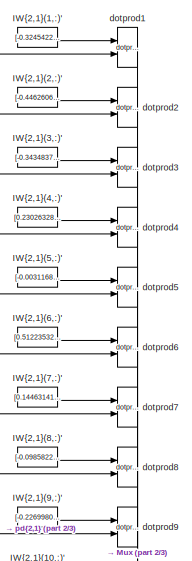
[diagram: Predictive Driver/Model Prediction Net/Layer 2/IW{2,1} - part 1/3, top center region]
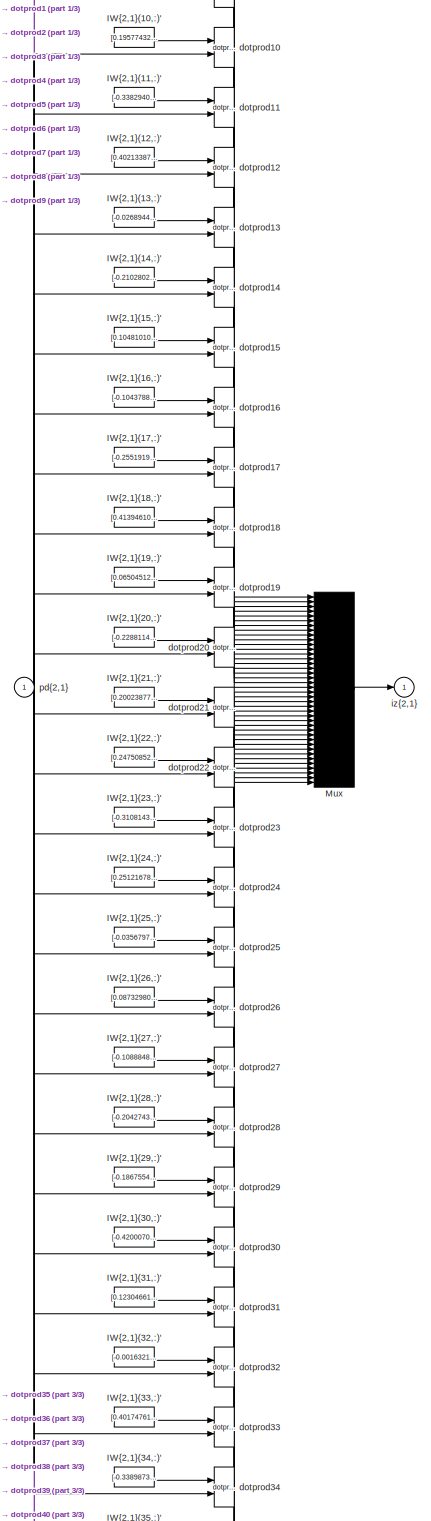
[diagram: Predictive Driver/Model Prediction Net/Layer 2/IW{2,1} - part 2/3, full width, middle band]
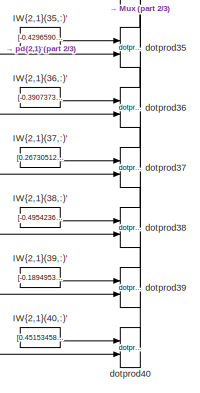
[diagram: Predictive Driver/Model Prediction Net/Layer 2/IW{2,1} - part 3/3, bottom center region]
BLOCK [SubSystem] Predictive Driver/Model Prediction Net/Layer 2/IW{2,1}
  Ports = [1, 1]
  RequestExecContextInheritance = off
BLOCK [Constant] Predictive Driver/Model Prediction Net/Layer 2/IW{2,1}/IW{2,1}(1,:)'
  Value = [-0.324542291796775683732079187393537722527980804443359375;0.0687875470540312006217931184437475167214870452880859375;-0.28041153589947598323561805955250747501850128173828125;0.1679354382406141044103975445977994240820407867431640625;-0.00584034343573799387405731664557606563903391361236572265625;-0.08695050204507125124475663824341609142720699310302734375;-0.370681211787576514460340604273369535803794...<+122ch>
BLOCK [Constant] Predictive Driver/Model Prediction Net/Layer 2/IW{2,1}/IW{2,1}(10,:)'
  Value = [0.1957743256441802082168379683935199864208698272705078125;-0.00790690423303845764391173389640243840403854846954345703125;0.2807004355283073682159056261298246681690216064453125;-0.1709484406753312979443393260226002894341945648193359375;0.1292261121435868409523806121796951629221439361572265625;0.090576606811163140609011179549270309507846832275390625;-0.3074291761259914101955814658140297979116439819...<+121ch>
BLOCK [Constant] Predictive Driver/Model Prediction Net/Layer 2/IW{2,1}/IW{2,1}(11,:)'
  Value = [-0.3382940737674229314535523371887393295764923095703125;0.136301301719288614489045130540034733712673187255859375;0.077184732021632618259587843567715026438236236572265625;-0.2946849138566107750847322677145712077617645263671875;0.55020512470717031217048997859819792211055755615234375;0.336723165091655063374531664521782658994197845458984375;-0.496038250235261990450652547224308364093303680419921875;-0...<+111ch>
BLOCK [Constant] Predictive Driver/Model Prediction Net/Layer 2/IW{2,1}/IW{2,1}(12,:)'
  Value = [0.40213387677751477600196494677220471203327178955078125;0.136644910573546829457569629084900952875614166259765625;-0.2578531101404093472950762588880024850368499755859375;0.310418938284677980998793600520002655684947967529296875;-0.4257927265207228639809500236879102885723114013671875;-0.498352245956162509532560989100602455437183380126953125;0.1750266792239182633839078562232316471636295318603515625;-...<+121ch>
BLOCK [Constant] Predictive Driver/Model Prediction Net/Layer 2/IW{2,1}/IW{2,1}(13,:)'
  Value = [-0.0268944795008402744163067410454459604807198047637939453125;0.160778563268169139011121160365291871130466461181640625;-0.63333375741451813922822111635468900203704833984375;-0.361822351242176265539995938524953089654445648193359375;0.080833836745488218955557613298879005014896392822265625;0.272846015059181545847621919165248982608318328857421875;0.0640400439979145474911348401292343623936176300048828...<+118ch>
BLOCK [Constant] Predictive Driver/Model Prediction Net/Layer 2/IW{2,1}/IW{2,1}(14,:)'
  Value = [-0.2102802679827652510002877761507988907396793365478515625;0.3021164324474343576554247192689217627048492431640625;-0.60946876714005371322713244808255694806575775146484375;-0.05831772096079734790663451349246315658092498779296875;0.044852540651126072968057911793948733247816562652587890625;0.51936381618280014205168981789029203355312347412109375;0.39191774273829504959820724252494983375072479248046875...<+120ch>
BLOCK [Constant] Predictive Driver/Model Prediction Net/Layer 2/IW{2,1}/IW{2,1}(15,:)'
  Value = [0.10481010128808508630182672050068504177033901214599609375;-0.40408651502036996294719983779941685497760772705078125;0.059323067380531703529644715899848961271345615386962890625;-0.425252943306168251780263744876720011234283447265625;-0.00406918681322654580967412840664110262878239154815673828125;-0.36831496090308790680722950128256343305110931396484375;-0.006764141247782308116742733261617104290053248...<+125ch>
BLOCK [Constant] Predictive Driver/Model Prediction Net/Layer 2/IW{2,1}/IW{2,1}(16,:)'
  Value = [-0.10437888564191878659759282754748710431158542633056640625;0.37692871141585648775418349032406695187091827392578125;-0.11196089219812936643716483331445488147437572479248046875;0.504896824239442043591452602413482964038848876953125;-0.08943749883851202786555489865349954925477504730224609375;-0.59270868880439753212385767255909740924835205078125;0.44821158579150327527784725134551990777254104614257812...<+116ch>
BLOCK [Constant] Predictive Driver/Model Prediction Net/Layer 2/IW{2,1}/IW{2,1}(17,:)'
  Value = [-0.25519192800926837616515285844798199832439422607421875;-0.1196708064125363846219585184371680952608585357666015625;-0.06425659036695470505140548311828752048313617706298828125;0.65005912316745007029084035821142606437206268310546875;0.01868941739461237039332530684987432323396205902099609375;0.45198654437769814062875184390577487647533416748046875;-0.1145115043599984755440246431135165039449930191040...<+122ch>
BLOCK [Constant] Predictive Driver/Model Prediction Net/Layer 2/IW{2,1}/IW{2,1}(18,:)'
  Value = [0.413946103958608258022167092349263839423656463623046875;-0.398654216100506386677437831167480908334255218505859375;-0.06603405433678495584093326442598481662571430206298828125;-0.335393951206770013495628290911554358899593353271484375;-0.252041180418388577333388411716441623866558074951171875;-0.0492452080997454466615437240761821158230304718017578125;0.10784469646703595535619513157143956050276756286...<+128ch>
BLOCK [Constant] Predictive Driver/Model Prediction Net/Layer 2/IW{2,1}/IW{2,1}(19,:)'
  Value = [0.0650451220991985490371689593303017318248748779296875;-0.473139326014514527418697298344341106712818145751953125;-0.1084104694585747152846266772030503489077091217041015625;0.379416225433231335539829842673498205840587615966796875;0.5098419425723628162216982673271559178829193115234375;0.3359748314586503692424912514979951083660125732421875;0.1408202313841695196838799120087060146033763885498046875;0....<+115ch>
BLOCK [Constant] Predictive Driver/Model Prediction Net/Layer 2/IW{2,1}/IW{2,1}(2,:)'
  Value = [-0.4462606327716136522809620146290399134159088134765625;0.1795256506922486838817576426663435995578765869140625;0.07827206229843190754547066489976714365184307098388671875;-0.046401788006822895782388371799243032000958919525146484375;-0.0966140748311935804171213248991989530622959136962890625;-0.405936492152293826318754099702346138656139373779296875;0.4547163625348423221517180081718834117054939270019...<+112ch>
BLOCK [Constant] Predictive Driver/Model Prediction Net/Layer 2/IW{2,1}/IW{2,1}(20,:)'
  Value = [-0.2288114918340828640719308850748348049819469451904296875;0.2591841189703394388033075301791541278362274169921875;0.0173259779226888899206215910453465767204761505126953125;0.326692029285919394165915718986070714890956878662109375;-0.298978393393575070380308034145855344831943511962890625;0.228846293911817266764074929596972651779651641845703125;0.10748749893977022074054161748790647834539413452148437...<+118ch>
BLOCK [Constant] Predictive Driver/Model Prediction Net/Layer 2/IW{2,1}/IW{2,1}(21,:)'
  Value = [0.2002387766277574920881221487434231676161289215087890625;0.07527120594866180958160128966483171097934246063232421875;-0.0068731163359172231519522711096215061843395233154296875;0.055941951751786067603688934468664228916168212890625;0.2118083536317571236029522196986363269388675689697265625;0.5015434405608691914579821968800388276576995849609375;0.4018949623650123204043893565540201961994171142578125;-...<+117ch>
BLOCK [Constant] Predictive Driver/Model Prediction Net/Layer 2/IW{2,1}/IW{2,1}(22,:)'
  Value = [0.2475085206523142400403258989172172732651233673095703125;0.23861474844312702270343606869573704898357391357421875;-0.17571858451457689209718182610231451690196990966796875;-0.2493199612004657061969936648893053643405437469482421875;0.07489827097856412152498961631863494403660297393798828125;0.1173975635774616443907092389054014347493648529052734375;-0.5430422708244599938609553646529093384742736816406...<+124ch>
BLOCK [Constant] Predictive Driver/Model Prediction Net/Layer 2/IW{2,1}/IW{2,1}(23,:)'
  Value = [-0.310814354629131817109310986779746599495410919189453125;0.72670321668736359566054261449608020484447479248046875;0.255403230644371925794899880202137865126132965087890625;-0.28671289745599659593011665492667816579341888427734375;0.28268366705520919790473044486134313046932220458984375;0.0043791555742623312907912946911892504431307315826416015625;0.1582789589949043507211001724499510601162910461425781...<+114ch>
BLOCK [Constant] Predictive Driver/Model Prediction Net/Layer 2/IW{2,1}/IW{2,1}(24,:)'
  Value = [0.251216787859257995041417643733439035713672637939453125;-0.2178828155331899163460462887087487615644931793212890625;0.34863512640181848478704296212526969611644744873046875;-0.4370135838717299492373058455996215343475341796875;0.032467553704689511295811144009348936378955841064453125;0.44547652639035006938428296052734367549419403076171875;-0.474384317933438659498079914556001313030719757080078125;0.2...<+112ch>
BLOCK [Constant] Predictive Driver/Model Prediction Net/Layer 2/IW{2,1}/IW{2,1}(25,:)'
  Value = [-0.035679734700623876031411185749675496481359004974365234375;-0.1981953207608193323618905878902296535670757293701171875;-0.06943748085965927019369559047845541499555110931396484375;0.314915993547127348595182638746337033808231353759765625;0.382395395254002179452612608656636439263820648193359375;0.267794186854816318454908241619705222547054290771484375;-0.055846164043513717156752562686961027793586254...<+127ch>
BLOCK [Constant] Predictive Driver/Model Prediction Net/Layer 2/IW{2,1}/IW{2,1}(26,:)'
  Value = [0.08732980616760983860746847540212911553680896759033203125;-0.13907933838675301529974603909067809581756591796875;-0.2286886511817441125504757337694172747433185577392578125;0.316083898060651236061602276095072738826274871826171875;-0.35283192589203249411866636364720761775970458984375;-0.59883380956851695042786332123796455562114715576171875;-0.549513150841128616974629039759747684001922607421875;-0.0...<+114ch>
BLOCK [Constant] Predictive Driver/Model Prediction Net/Layer 2/IW{2,1}/IW{2,1}(27,:)'
  Value = [-0.10888487230919950687901831543058506213128566741943359375;-0.57473736569455591283173134797834791243076324462890625;-0.2335067309102359101036228139491868205368518829345703125;0.2662771068718818856524421789799816906452178955078125;-0.60767973848669043501757869307766668498516082763671875;-0.229561050232402974469181344829848967492580413818359375;-0.70110707356384593946785344087402336299419403076171...<+118ch>
BLOCK [Constant] Predictive Driver/Model Prediction Net/Layer 2/IW{2,1}/IW{2,1}(28,:)'
  Value = [-0.2042743574975654785585987838203436695039272308349609375;0.281950532406683385122647678144858218729496002197265625;0.37992510537679258231236190113122574985027313232421875;-0.268500190748743872148907030350528657436370849609375;-0.65312061664372744740347798142465762794017791748046875;-0.316418870831869980531081409935723058879375457763671875;-0.094265510297374455195296150122885592281818389892578125...<+114ch>
BLOCK [Constant] Predictive Driver/Model Prediction Net/Layer 2/IW{2,1}/IW{2,1}(29,:)'
  Value = [-0.1867554669027818026183496158409980125725269317626953125;0.43406117590720605381449104243074543774127960205078125;0.09815992793706264374353764878833317197859287261962890625;-0.424804274364632472593683587547275237739086151123046875;0.256399968877172701464672854854143224656581878662109375;0.165621572589895016403005456595565192401409149169921875;0.297412555207232143228424092740169726312160491943359...<+120ch>
BLOCK [Constant] Predictive Driver/Model Prediction Net/Layer 2/IW{2,1}/IW{2,1}(3,:)'
  Value = [-0.343483711070276920285238020369433797895908355712890625;0.53066417978020030687957842019386589527130126953125;0.31171502011341678528566490058437921106815338134765625;-0.444047795862383465337330790134728886187076568603515625;0.236383550289809674094243518993607722222805023193359375;-0.334990509854110107834657128478283993899822235107421875;0.256484526856124606108977559415507130324840545654296875;0....<+116ch>
BLOCK [Constant] Predictive Driver/Model Prediction Net/Layer 2/IW{2,1}/IW{2,1}(30,:)'
  Value = [-0.420007075724736667066139261805801652371883392333984375;-0.325973267627817531177925047813914716243743896484375;-0.45662813284732284291322912395116873085498809814453125;-0.2121125175206574342556820056415745057165622711181640625;0.388440219381910589735440453296178020536899566650390625;-0.4829169636928585251922640964039601385593414306640625;0.2238460597286293929375489142330479808151721954345703125...<+124ch>
BLOCK [Constant] Predictive Driver/Model Prediction Net/Layer 2/IW{2,1}/IW{2,1}(31,:)'
  Value = [0.12304661060634934643953641852931468747556209564208984375;0.0935386299662377129759960325827705673873424530029296875;-0.313172631359989572796820311850751750171184539794921875;-0.37907455437369852457862862138426862657070159912109375;-0.32895518023903924653694730295683257281780242919921875;0.150482777563526404218663401479716412723064422607421875;-0.25216581763143597338938661778229288756847381591796...<+112ch>
BLOCK [Constant] Predictive Driver/Model Prediction Net/Layer 2/IW{2,1}/IW{2,1}(32,:)'
  Value = [-0.00163213397447740222144518806857149684219621121883392333984375;-0.206420648244373172719434705868479795753955841064453125;0.0098161331607758035844302213490664144046604633331298828125;0.1949452791234642656803544014110229909420013427734375;0.35469101103357203452759449646691791713237762451171875;0.047329873783093660832843596608654479496181011199951171875;0.24843729378535386875803681050456361845135...<+130ch>
BLOCK [Constant] Predictive Driver/Model Prediction Net/Layer 2/IW{2,1}/IW{2,1}(33,:)'
  Value = [0.401747612301919299060415369240217842161655426025390625;-0.45277690869865150347095550387166440486907958984375;0.395869712515088512105876361601985991001129150390625;0.4756958338025290000672384849167428910732269287109375;0.05436458869313125219502325080611626617610454559326171875;-0.12254264973859607668060789364972151815891265869140625;0.5336371688040433269861750886775553226470947265625;0.427235686...<+101ch>
BLOCK [Constant] Predictive Driver/Model Prediction Net/Layer 2/IW{2,1}/IW{2,1}(34,:)'
  Value = [-0.33898736312202981668662005176884122192859649658203125;0.01404114771738000817802305419945696485228836536407470703125;0.1980737895577827367699086380525841377675533294677734375;0.06345794786319562674758998355173389427363872528076171875;0.490762924647671849864849491495988331735134124755859375;-0.51565340020439565105192514238297007977962493896484375;-0.2846639697446540773206891117297345772385597229...<+126ch>
BLOCK [Constant] Predictive Driver/Model Prediction Net/Layer 2/IW{2,1}/IW{2,1}(35,:)'
  Value = [-0.429659073706359306843438616851926781237125396728515625;-0.1784271749077228907953696079857763834297657012939453125;0.440909793280942874371675088696065358817577362060546875;-0.442994791296781154077422115733497776091098785400390625;-0.019944572767950190239627517030385206453502178192138671875;-0.03606031173514055720996651643872610293328762054443359375;0.54034021087671169070176802051719278097152709...<+123ch>
BLOCK [Constant] Predictive Driver/Model Prediction Net/Layer 2/IW{2,1}/IW{2,1}(36,:)'
  Value = [-0.39073734992504605134655548681621439754962921142578125;-0.303381329616073502908335512984194792807102203369140625;0.004042519886493571752705822319740036618895828723907470703125;0.266183250969649398687266739216283895075321197509765625;0.18023920737041565498515183207928203046321868896484375;0.296769017276363122892490764570538885891437530517578125;0.3910969344221136845263231407443527132272720336914...<+123ch>
BLOCK [Constant] Predictive Driver/Model Prediction Net/Layer 2/IW{2,1}/IW{2,1}(37,:)'
  Value = [0.2673051233086429778751380581525154411792755126953125;-0.50684067738421945126248147062142379581928253173828125;0.177671067497580548177893433603458106517791748046875;0.057268097089858659154426590021103038452565670013427734375;-0.180493895501149304028132291932706721127033233642578125;-0.362951249171143019989216327303438447415828704833984375;0.418656006562284799255024836384109221398830413818359375;...<+115ch>
BLOCK [Constant] Predictive Driver/Model Prediction Net/Layer 2/IW{2,1}/IW{2,1}(38,:)'
  Value = [-0.495423634851604732798335817278712056577205657958984375;0.2043341907914952015890008851783932186663150787353515625;-0.467174720166877610605382642461336217820644378662109375;0.1438508111957102764133509253952070139348506927490234375;-0.1568346784385365733083261829960974864661693572998046875;0.07396871999577396550318297840931336395442485809326171875;0.27031216667364443839716159345698542892932891845...<+127ch>
BLOCK [Constant] Predictive Driver/Model Prediction Net/Layer 2/IW{2,1}/IW{2,1}(39,:)'
  Value = [-0.189495332287297368889511517409118823707103729248046875;-0.047299852000780163996385141444989130832254886627197265625;0.1431300344219219311536761551906238310039043426513671875;0.312383402635927176493879642293904908001422882080078125;-0.1039185124131432325089718915478442795574665069580078125;0.277625194286385712505449419040814973413944244384765625;0.23696130968302245300982633580133551731705665588...<+124ch>
BLOCK [Constant] Predictive Driver/Model Prediction Net/Layer 2/IW{2,1}/IW{2,1}(4,:)'
  Value = [0.2302632804560506285529442038750858046114444732666015625;0.056426691973135344182477268759612343274056911468505859375;0.26981815992925073377506350880139507353305816650390625;0.0627338958160852666612328221162897534668445587158203125;-0.0541004381655196819878028691164217889308929443359375;0.07336591425450332548674481358830234967172145843505859375;-0.2992972260177561016902814117202069610357284545898...<+119ch>
BLOCK [Constant] Predictive Driver/Model Prediction Net/Layer 2/IW{2,1}/IW{2,1}(40,:)'
  Value = [0.45153458263285661811181626035249792039394378662109375;0.273234019873488886975820832958561368286609649658203125;0.058358325260174377657751421111242962069809436798095703125;-0.24921725789550486229728676335071213543415069580078125;-0.056418061624276892584983755796201876364648342132568359375;-0.288169974372767312420506868875236250460147857666015625;0.370481762537899383946893294705660082399845123291...<+121ch>
BLOCK [Constant] Predictive Driver/Model Prediction Net/Layer 2/IW{2,1}/IW{2,1}(5,:)'
  Value = [-0.0031168021329519741968727686298734624870121479034423828125;0.328002271778910670096962576280930079519748687744140625;0.38247228553464041045373278393526561558246612548828125;0.178224480049883116095088553265668451786041259765625;0.1542419981506792936443162034265697002410888671875;-0.283971671856202256822854224083130247890949249267578125;0.11580051943021670013411750232990016229450702667236328125;0...<+111ch>
BLOCK [Constant] Predictive Driver/Model Prediction Net/Layer 2/IW{2,1}/IW{2,1}(6,:)'
  Value = [0.51223532687983708289181095096864737570285797119140625;-0.332082772295919870231273307581432163715362548828125;0.1275842036868156947893027108875685371458530426025390625;-0.379699503766440737972942542910459451377391815185546875;0.2690175410241992803861421634792350232601165771484375;-0.0154989389606303602786585571493560564704239368438720703125;0.15862684263378740157079960226838011294603347778320312...<+120ch>
BLOCK [Constant] Predictive Driver/Model Prediction Net/Layer 2/IW{2,1}/IW{2,1}(7,:)'
  Value = [0.1446314155234941500882683840245590545237064361572265625;0.2732545567729920410471322611556388437747955322265625;-0.247854486607387569652161118938238359987735748291015625;0.1630082571171082295169441067628213204443454742431640625;0.436201058352217729829902737037627957761287689208984375;0.05221461830264105541399288767934194765985012054443359375;-0.539647990429329871275854202394839376211166381835937...<+116ch>
BLOCK [Constant] Predictive Driver/Model Prediction Net/Layer 2/IW{2,1}/IW{2,1}(8,:)'
  Value = [-0.09858226452668465700224231795800733380019664764404296875;0.356305635376591267604595714146853424608707427978515625;0.25550733449753215698052599691436626017093658447265625;0.034878811141299918829883353055265615694224834442138671875;0.304494445379197398171555732915294356644153594970703125;0.09943805056925204832740661231582635082304477691650390625;0.576848371252598246528009440226014703512191772460...<+117ch>
BLOCK [Constant] Predictive Driver/Model Prediction Net/Layer 2/IW{2,1}/IW{2,1}(9,:)'
  Value = [-0.2269980390922531066077993955332203768193721771240234375;-0.1662544585091897120232573570319800637662410736083984375;-0.1624782913689543917268309769497136585414409637451171875;-0.56136775947428418920281956161488778889179229736328125;0.494008889276872864559919662497122772037982940673828125;-0.302455999625720561851949241827242076396942138671875;-0.12366191271961210484953141985897673293948173522949...<+119ch>
BLOCK [Mux] Predictive Driver/Model Prediction Net/Layer 2/IW{2,1}/Mux
  Inputs = 40
  Ports = [40, 1]
BLOCK [Reference] Predictive Driver/Model Prediction Net/Layer 2/IW{2,1}/dotprod1  REF=neural/Weight Functions/dotprod
  Ports = [2, 1]
  SourceBlock = neural/Weight Functions/dotprod
  SourceProductBaseCode = NN
  SourceProductName = Neural Network Toolbox
  SourceType = DOTPROD
BLOCK [Reference] Predictive Driver/Model Prediction Net/Layer 2/IW{2,1}/dotprod10  REF=neural/Weight Functions/dotprod
  Ports = [2, 1]
  SourceBlock = neural/Weight Functions/dotprod
  SourceProductBaseCode = NN
  SourceProductName = Neural Network Toolbox
  SourceType = DOTPROD
BLOCK [Reference] Predictive Driver/Model Prediction Net/Layer 2/IW{2,1}/dotprod11  REF=neural/Weight Functions/dotprod
  Ports = [2, 1]
  SourceBlock = neural/Weight Functions/dotprod
  SourceProductBaseCode = NN
  SourceProductName = Neural Network Toolbox
  SourceType = DOTPROD
BLOCK [Reference] Predictive Driver/Model Prediction Net/Layer 2/IW{2,1}/dotprod12  REF=neural/Weight Functions/dotprod
  Ports = [2, 1]
  SourceBlock = neural/Weight Functions/dotprod
  SourceProductBaseCode = NN
  SourceProductName = Neural Network Toolbox
  SourceType = DOTPROD
BLOCK [Reference] Predictive Driver/Model Prediction Net/Layer 2/IW{2,1}/dotprod13  REF=neural/Weight Functions/dotprod
  Ports = [2, 1]
  SourceBlock = neural/Weight Functions/dotprod
  SourceProductBaseCode = NN
  SourceProductName = Neural Network Toolbox
  SourceType = DOTPROD
BLOCK [Reference] Predictive Driver/Model Prediction Net/Layer 2/IW{2,1}/dotprod14  REF=neural/Weight Functions/dotprod
  Ports = [2, 1]
  SourceBlock = neural/Weight Functions/dotprod
  SourceProductBaseCode = NN
  SourceProductName = Neural Network Toolbox
  SourceType = DOTPROD
BLOCK [Reference] Predictive Driver/Model Prediction Net/Layer 2/IW{2,1}/dotprod15  REF=neural/Weight Functions/dotprod
  Ports = [2, 1]
  SourceBlock = neural/Weight Functions/dotprod
  SourceProductBaseCode = NN
  SourceProductName = Neural Network Toolbox
  SourceType = DOTPROD
BLOCK [Reference] Predictive Driver/Model Prediction Net/Layer 2/IW{2,1}/dotprod16  REF=neural/Weight Functions/dotprod
  Ports = [2, 1]
  SourceBlock = neural/Weight Functions/dotprod
  SourceProductBaseCode = NN
  SourceProductName = Neural Network Toolbox
  SourceType = DOTPROD
BLOCK [Reference] Predictive Driver/Model Prediction Net/Layer 2/IW{2,1}/dotprod17  REF=neural/Weight Functions/dotprod
  Ports = [2, 1]
  SourceBlock = neural/Weight Functions/dotprod
  SourceProductBaseCode = NN
  SourceProductName = Neural Network Toolbox
  SourceType = DOTPROD
BLOCK [Reference] Predictive Driver/Model Prediction Net/Layer 2/IW{2,1}/dotprod18  REF=neural/Weight Functions/dotprod
  Ports = [2, 1]
  SourceBlock = neural/Weight Functions/dotprod
  SourceProductBaseCode = NN
  SourceProductName = Neural Network Toolbox
  SourceType = DOTPROD
BLOCK [Reference] Predictive Driver/Model Prediction Net/Layer 2/IW{2,1}/dotprod19  REF=neural/Weight Functions/dotprod
  Ports = [2, 1]
  SourceBlock = neural/Weight Functions/dotprod
  SourceProductBaseCode = NN
  SourceProductName = Neural Network Toolbox
  SourceType = DOTPROD
BLOCK [Reference] Predictive Driver/Model Prediction Net/Layer 2/IW{2,1}/dotprod2  REF=neural/Weight Functions/dotprod
  Ports = [2, 1]
  SourceBlock = neural/Weight Functions/dotprod
  SourceProductBaseCode = NN
  SourceProductName = Neural Network Toolbox
  SourceType = DOTPROD
BLOCK [Reference] Predictive Driver/Model Prediction Net/Layer 2/IW{2,1}/dotprod20  REF=neural/Weight Functions/dotprod
  Ports = [2, 1]
  SourceBlock = neural/Weight Functions/dotprod
  SourceProductBaseCode = NN
  SourceProductName = Neural Network Toolbox
  SourceType = DOTPROD
BLOCK [Reference] Predictive Driver/Model Prediction Net/Layer 2/IW{2,1}/dotprod21  REF=neural/Weight Functions/dotprod
  Ports = [2, 1]
  SourceBlock = neural/Weight Functions/dotprod
  SourceProductBaseCode = NN
  SourceProductName = Neural Network Toolbox
  SourceType = DOTPROD
BLOCK [Reference] Predictive Driver/Model Prediction Net/Layer 2/IW{2,1}/dotprod22  REF=neural/Weight Functions/dotprod
  Ports = [2, 1]
  SourceBlock = neural/Weight Functions/dotprod
  SourceProductBaseCode = NN
  SourceProductName = Neural Network Toolbox
  SourceType = DOTPROD
BLOCK [Reference] Predictive Driver/Model Prediction Net/Layer 2/IW{2,1}/dotprod23  REF=neural/Weight Functions/dotprod
  Ports = [2, 1]
  SourceBlock = neural/Weight Functions/dotprod
  SourceProductBaseCode = NN
  SourceProductName = Neural Network Toolbox
  SourceType = DOTPROD
BLOCK [Reference] Predictive Driver/Model Prediction Net/Layer 2/IW{2,1}/dotprod24  REF=neural/Weight Functions/dotprod
  Ports = [2, 1]
  SourceBlock = neural/Weight Functions/dotprod
  SourceProductBaseCode = NN
  SourceProductName = Neural Network Toolbox
  SourceType = DOTPROD
BLOCK [Reference] Predictive Driver/Model Prediction Net/Layer 2/IW{2,1}/dotprod25  REF=neural/Weight Functions/dotprod
  Ports = [2, 1]
  SourceBlock = neural/Weight Functions/dotprod
  SourceProductBaseCode = NN
  SourceProductName = Neural Network Toolbox
  SourceType = DOTPROD
BLOCK [Reference] Predictive Driver/Model Prediction Net/Layer 2/IW{2,1}/dotprod26  REF=neural/Weight Functions/dotprod
  Ports = [2, 1]
  SourceBlock = neural/Weight Functions/dotprod
  SourceProductBaseCode = NN
  SourceProductName = Neural Network Toolbox
  SourceType = DOTPROD
BLOCK [Reference] Predictive Driver/Model Prediction Net/Layer 2/IW{2,1}/dotprod27  REF=neural/Weight Functions/dotprod
  Ports = [2, 1]
  SourceBlock = neural/Weight Functions/dotprod
  SourceProductBaseCode = NN
  SourceProductName = Neural Network Toolbox
  SourceType = DOTPROD
BLOCK [Reference] Predictive Driver/Model Prediction Net/Layer 2/IW{2,1}/dotprod28  REF=neural/Weight Functions/dotprod
  Ports = [2, 1]
  SourceBlock = neural/Weight Functions/dotprod
  SourceProductBaseCode = NN
  SourceProductName = Neural Network Toolbox
  SourceType = DOTPROD
BLOCK [Reference] Predictive Driver/Model Prediction Net/Layer 2/IW{2,1}/dotprod29  REF=neural/Weight Functions/dotprod
  Ports = [2, 1]
  SourceBlock = neural/Weight Functions/dotprod
  SourceProductBaseCode = NN
  SourceProductName = Neural Network Toolbox
  SourceType = DOTPROD
BLOCK [Reference] Predictive Driver/Model Prediction Net/Layer 2/IW{2,1}/dotprod3  REF=neural/Weight Functions/dotprod
  Ports = [2, 1]
  SourceBlock = neural/Weight Functions/dotprod
  SourceProductBaseCode = NN
  SourceProductName = Neural Network Toolbox
  SourceType = DOTPROD
BLOCK [Reference] Predictive Driver/Model Prediction Net/Layer 2/IW{2,1}/dotprod30  REF=neural/Weight Functions/dotprod
  Ports = [2, 1]
  SourceBlock = neural/Weight Functions/dotprod
  SourceProductBaseCode = NN
  SourceProductName = Neural Network Toolbox
  SourceType = DOTPROD
BLOCK [Reference] Predictive Driver/Model Prediction Net/Layer 2/IW{2,1}/dotprod31  REF=neural/Weight Functions/dotprod
  Ports = [2, 1]
  SourceBlock = neural/Weight Functions/dotprod
  SourceProductBaseCode = NN
  SourceProductName = Neural Network Toolbox
  SourceType = DOTPROD
BLOCK [Reference] Predictive Driver/Model Prediction Net/Layer 2/IW{2,1}/dotprod32  REF=neural/Weight Functions/dotprod
  Ports = [2, 1]
  SourceBlock = neural/Weight Functions/dotprod
  SourceProductBaseCode = NN
  SourceProductName = Neural Network Toolbox
  SourceType = DOTPROD
BLOCK [Reference] Predictive Driver/Model Prediction Net/Layer 2/IW{2,1}/dotprod33  REF=neural/Weight Functions/dotprod
  Ports = [2, 1]
  SourceBlock = neural/Weight Functions/dotprod
  SourceProductBaseCode = NN
  SourceProductName = Neural Network Toolbox
  SourceType = DOTPROD
BLOCK [Reference] Predictive Driver/Model Prediction Net/Layer 2/IW{2,1}/dotprod34  REF=neural/Weight Functions/dotprod
  Ports = [2, 1]
  SourceBlock = neural/Weight Functions/dotprod
  SourceProductBaseCode = NN
  SourceProductName = Neural Network Toolbox
  SourceType = DOTPROD
BLOCK [Reference] Predictive Driver/Model Prediction Net/Layer 2/IW{2,1}/dotprod35  REF=neural/Weight Functions/dotprod
  Ports = [2, 1]
  SourceBlock = neural/Weight Functions/dotprod
  SourceProductBaseCode = NN
  SourceProductName = Neural Network Toolbox
  SourceType = DOTPROD
BLOCK [Reference] Predictive Driver/Model Prediction Net/Layer 2/IW{2,1}/dotprod36  REF=neural/Weight Functions/dotprod
  Ports = [2, 1]
  SourceBlock = neural/Weight Functions/dotprod
  SourceProductBaseCode = NN
  SourceProductName = Neural Network Toolbox
  SourceType = DOTPROD
BLOCK [Reference] Predictive Driver/Model Prediction Net/Layer 2/IW{2,1}/dotprod37  REF=neural/Weight Functions/dotprod
  Ports = [2, 1]
  SourceBlock = neural/Weight Functions/dotprod
  SourceProductBaseCode = NN
  SourceProductName = Neural Network Toolbox
  SourceType = DOTPROD
BLOCK [Reference] Predictive Driver/Model Prediction Net/Layer 2/IW{2,1}/dotprod38  REF=neural/Weight Functions/dotprod
  Ports = [2, 1]
  SourceBlock = neural/Weight Functions/dotprod
  SourceProductBaseCode = NN
  SourceProductName = Neural Network Toolbox
  SourceType = DOTPROD
BLOCK [Reference] Predictive Driver/Model Prediction Net/Layer 2/IW{2,1}/dotprod39  REF=neural/Weight Functions/dotprod
  Ports = [2, 1]
  SourceBlock = neural/Weight Functions/dotprod
  SourceProductBaseCode = NN
  SourceProductName = Neural Network Toolbox
  SourceType = DOTPROD
BLOCK [Reference] Predictive Driver/Model Prediction Net/Layer 2/IW{2,1}/dotprod4  REF=neural/Weight Functions/dotprod
  Ports = [2, 1]
  SourceBlock = neural/Weight Functions/dotprod
  SourceProductBaseCode = NN
  SourceProductName = Neural Network Toolbox
  SourceType = DOTPROD
BLOCK [Reference] Predictive Driver/Model Prediction Net/Layer 2/IW{2,1}/dotprod40  REF=neural/Weight Functions/dotprod
  Ports = [2, 1]
  SourceBlock = neural/Weight Functions/dotprod
  SourceProductBaseCode = NN
  SourceProductName = Neural Network Toolbox
  SourceType = DOTPROD
BLOCK [Reference] Predictive Driver/Model Prediction Net/Layer 2/IW{2,1}/dotprod5  REF=neural/Weight Functions/dotprod
  Ports = [2, 1]
  SourceBlock = neural/Weight Functions/dotprod
  SourceProductBaseCode = NN
  SourceProductName = Neural Network Toolbox
  SourceType = DOTPROD
BLOCK [Reference] Predictive Driver/Model Prediction Net/Layer 2/IW{2,1}/dotprod6  REF=neural/Weight Functions/dotprod
  Ports = [2, 1]
  SourceBlock = neural/Weight Functions/dotprod
  SourceProductBaseCode = NN
  SourceProductName = Neural Network Toolbox
  SourceType = DOTPROD
BLOCK [Reference] Predictive Driver/Model Prediction Net/Layer 2/IW{2,1}/dotprod7  REF=neural/Weight Functions/dotprod
  Ports = [2, 1]
  SourceBlock = neural/Weight Functions/dotprod
  SourceProductBaseCode = NN
  SourceProductName = Neural Network Toolbox
  SourceType = DOTPROD
BLOCK [Reference] Predictive Driver/Model Prediction Net/Layer 2/IW{2,1}/dotprod8  REF=neural/Weight Functions/dotprod
  Ports = [2, 1]
  SourceBlock = neural/Weight Functions/dotprod
  SourceProductBaseCode = NN
  SourceProductName = Neural Network Toolbox
  SourceType = DOTPROD
BLOCK [Reference] Predictive Driver/Model Prediction Net/Layer 2/IW{2,1}/dotprod9  REF=neural/Weight Functions/dotprod
  Ports = [2, 1]
  SourceBlock = neural/Weight Functions/dotprod
  SourceProductBaseCode = NN
  SourceProductName = Neural Network Toolbox
  SourceType = DOTPROD
BLOCK [Outport] Predictive Driver/Model Prediction Net/Layer 2/IW{2,1}/iz{2,1}
  IconDisplay = Port number
BLOCK [Inport] Predictive Driver/Model Prediction Net/Layer 2/IW{2,1}/pd{2,1}
  IconDisplay = Port number
  PortDimensions = 9
BLOCK [SubSystem] Predictive Driver/Model Prediction Net/Layer 2/LW{2,1}
  Ports = [1, 1]
  RequestExecContextInheritance = off
BLOCK [Constant] Predictive Driver/Model Prediction Net/Layer 2/LW{2,1}/IW{2,1}(1,:)'
  Value = [-0.176137388884915202513781196103082038462162017822265625;0.50028176783017153095300955101265572011470794677734375;-0.12057820034361142746970330108524649403989315032958984375;0.20446018749594718766360301742679439485073089599609375;-0.1761612242264165295591027415866847150027751922607421875;-0.402418067148075098149462291985400952398777008056640625;0.11341753355620028120842590624306467361748218536376...<+754ch>
BLOCK [Constant] Predictive Driver/Model Prediction Net/Layer 2/LW{2,1}/IW{2,1}(10,:)'
  Value = [0.05648986378617339154661891598152578808367252349853515625;-0.14990034317870393199001455286634154617786407470703125;0.246785303194086369504844924449571408331394195556640625;0.11811798730162485771000291379095870070159435272216796875;0.41456739796269992393007441933150403201580047607421875;-0.55001679579737150493912167803500778973102569580078125;0.4514853921526093549765334955736761912703514099121093...<+750ch>
BLOCK [Constant] Predictive Driver/Model Prediction Net/Layer 2/LW{2,1}/IW{2,1}(11,:)'
  Value = [-0.019208633225592221249744540045867324806749820709228515625;-0.355390577436491772456150783909833990037441253662109375;0.1887287119862288975458142203933675773441791534423828125;-0.4666445606272040524942212869063951075077056884765625;-0.278451826826170922846159783148323185741901397705078125;0.3125935759011031489507104197400622069835662841796875;0.018758123053234983940162905469151155557483434677124...<+753ch>
BLOCK [Constant] Predictive Driver/Model Prediction Net/Layer 2/LW{2,1}/IW{2,1}(12,:)'
  Value = [0.0746141711079403024964307178379385732114315032958984375;0.061333223868511733967157084634891361929476261138916015625;0.36575703536214365652057267652708105742931365966796875;-0.267533628941942935863806951601873151957988739013671875;0.457862656598575890054547699037357233464717864990234375;-0.11016627584483069945964217595246736891567707061767578125;0.470502121810955020730915521198767237365245819091...<+755ch>
BLOCK [Constant] Predictive Driver/Model Prediction Net/Layer 2/LW{2,1}/IW{2,1}(13,:)'
  Value = [0.2020339032042033355907051372923888266086578369140625;0.17464460825596528348313540845992974936962127685546875;0.315769067153972959882679560905671678483486175537109375;0.058342855304167891283828595305749331600964069366455078125;-0.09027692819781772681775322553221485577523708343505859375;-0.61125964015581946142674496513791382312774658203125;-0.199191948907599475360186147554486524313688278198242187...<+751ch>
BLOCK [Constant] Predictive Driver/Model Prediction Net/Layer 2/LW{2,1}/IW{2,1}(14,:)'
  Value = [-0.244578207588801055383243010510341264307498931884765625;-0.19907799570775719377735413218033500015735626220703125;-0.183786567630399966244425513650639913976192474365234375;-0.030581190078338392479562202197485021315515041351318359375;0.0944812328584142824272618099712417460978031158447265625;-0.470915718737511312941279584265430457890033721923828125;-0.3750157981068959478498925363965099677443504333...<+750ch>
BLOCK [Constant] Predictive Driver/Model Prediction Net/Layer 2/LW{2,1}/IW{2,1}(15,:)'
  Value = [0.042559618462692239138078775795293040573596954345703125;0.44184736905871668799505869174026884138584136962890625;0.163588209102911330550256252536200918257236480712890625;-0.260745566130445138863791498806676827371120452880859375;-0.1789559652621708352171481237746775150299072265625;-0.2072246432997381926366387006055447272956371307373046875;-0.1303993812676075558787402997040771879255771636962890625;...<+734ch>
BLOCK [Constant] Predictive Driver/Model Prediction Net/Layer 2/LW{2,1}/IW{2,1}(16,:)'
  Value = [-0.435602508023883616683491482035606168210506439208984375;-0.1318234371041042962691136608555098064243793487548828125;0.5234376282960060411397762436536140739917755126953125;-0.23645198781025744683148559488472528755664825439453125;-0.3475518457066772981534086284227669239044189453125;-0.12755851954561847616531622406910173594951629638671875;-0.349350092712957527307793270665570162236690521240234375;-0...<+758ch>
BLOCK [Constant] Predictive Driver/Model Prediction Net/Layer 2/LW{2,1}/IW{2,1}(17,:)'
  Value = [0.031352295896761105120642554311416461132466793060302734375;0.31048941443565869491294506588019430637359619140625;0.170326364825399423352791927754878997802734375;-0.404193637109247438932158047464326955378055572509765625;-0.4098537190538718011367791405064053833484649658203125;0.383047673633663599002119326542015187442302703857421875;-0.0691251944708456689259179483997286297380924224853515625;0.036989...<+757ch>
BLOCK [Constant] Predictive Driver/Model Prediction Net/Layer 2/LW{2,1}/IW{2,1}(18,:)'
  Value = [0.60813980117653698709290210899780504405498504638671875;-0.07882132763598916069813782314668060280382633209228515625;-0.164465911123127417337030919952667318284511566162109375;-0.22534994804191310624474908763659186661243438720703125;0.314249271370629801314322548932977952063083648681640625;-0.22219354797628942943532592835254035890102386474609375;0.5181494418068005591848645963182207196950912475585937...<+746ch>
BLOCK [Constant] Predictive Driver/Model Prediction Net/Layer 2/LW{2,1}/IW{2,1}(19,:)'
  Value = [0.1806313753465185190094643985503353178501129150390625;-0.0253287535284681987468591302103959606029093265533447265625;-0.27602665108137092175866200705058872699737548828125;-0.01443588808905204266819222169715430936776101589202880859375;0.2475970243598913655969084857133566401898860931396484375;0.00327887964568397693998491604361333884298801422119140625;-0.190086169698289092488963092364429030567407608...<+760ch>
BLOCK [Constant] Predictive Driver/Model Prediction Net/Layer 2/LW{2,1}/IW{2,1}(2,:)'
  Value = [-0.21027913671055475930415923357941210269927978515625;-0.2477788675127187978386444910938735119998455047607421875;-0.332698039446253146511622844627709127962589263916015625;-0.09285547092978611860569770897200214676558971405029296875;-0.1498611925049369297813228740778868086636066436767578125;0.0310743558379157173987561435524185071699321269989013671875;-0.520694300310282631727432089974172413349151611...<+758ch>
BLOCK [Constant] Predictive Driver/Model Prediction Net/Layer 2/LW{2,1}/IW{2,1}(20,:)'
  Value = [0.384947478455465563751403124115313403308391571044921875;-0.1834300159063213808696701789813232608139514923095703125;-0.49958004795194488334431071052676998078823089599609375;0.23941516417568309282870586685021407902240753173828125;-0.11558192383851502438307790043836575932800769805908203125;0.382302189081748899912582828619633801281452178955078125;-0.18862623567436870297697737441922072321176528930664...<+743ch>
BLOCK [Constant] Predictive Driver/Model Prediction Net/Layer 2/LW{2,1}/IW{2,1}(21,:)'
  Value = [-0.026158359691785960932097765407888800837099552154541015625;0.0343482633124333192053967422907589934766292572021484375;-0.1940530329564747746839969977372675202786922454833984375;0.1357373078238660324412734325960627757012844085693359375;0.363211821302089121754619327475666068494319915771484375;-0.4665476159431278802003362216055393218994140625;-0.45955073451597805433976873246137984097003936767578125...<+739ch>
BLOCK [Constant] Predictive Driver/Model Prediction Net/Layer 2/LW{2,1}/IW{2,1}(22,:)'
  Value = [-0.328507847216712167703889235781389288604259490966796875;-0.49078812353309564375791751444921828806400299072265625;0.174528128408080573930050150011084042489528656005859375;0.32382622996894883105056806016364134848117828369140625;0.266294599024905931372586564975790679454803466796875;0.0804768123783303479523709711429546587169170379638671875;-0.491741436767244410876998017556616105139255523681640625;-...<+747ch>
BLOCK [Constant] Predictive Driver/Model Prediction Net/Layer 2/LW{2,1}/IW{2,1}(23,:)'
  Value = [-0.5246032099803701331808269969769753515720367431640625;-0.001508811394683430562313475320479483343660831451416015625;-0.302114026696339410538172387532540597021579742431640625;-0.3615699887410268598131324324640445411205291748046875;0.340322297835058462656121491818339563906192779541015625;-0.459149631660877799443909452747902832925319671630859375;0.31911836067518262183284605271182954311370849609375;...<+744ch>
BLOCK [Constant] Predictive Driver/Model Prediction Net/Layer 2/LW{2,1}/IW{2,1}(24,:)'
  Value = [-0.1111947649313846653296167232838342897593975067138671875;0.200940669446980024748228288444806821644306182861328125;-0.0616645841116889581456916857860051095485687255859375;0.076223739633089149236866433057002723217010498046875;0.026046903355340482455471118328205193392932415008544921875;-0.2305902447527705678709253334091044962406158447265625;-0.156389786179823742084948889896622858941555023193359375...<+749ch>
BLOCK [Constant] Predictive Driver/Model Prediction Net/Layer 2/LW{2,1}/IW{2,1}(25,:)'
  Value = [0.280153330073379891462792556922067888081073760986328125;0.1249217610603462758067649929216713644564151763916015625;0.009820987805096929867954003157137776724994182586669921875;-0.309950885651357754824175572139210999011993408203125;-0.7092614778482626558542278871755115687847137451171875;0.5642309040311206391749010435887612402439117431640625;0.18015090179442572182466619779006578028202056884765625;-0...<+746ch>
BLOCK [Constant] Predictive Driver/Model Prediction Net/Layer 2/LW{2,1}/IW{2,1}(26,:)'
  Value = [-0.06325036086238693122663079293488408438861370086669921875;0.058238153607976371473053944782805046997964382171630859375;0.336588230374907038111587098683230578899383544921875;0.50030621824279375431387961725704371929168701171875;0.01270753683537946543413710287495632655918598175048828125;-0.46028963043352655315487709231092594563961029052734375;-0.27845457624924102590924235300917644053697586059570312...<+732ch>
BLOCK [Constant] Predictive Driver/Model Prediction Net/Layer 2/LW{2,1}/IW{2,1}(27,:)'
  Value = [-0.36354266623686004589188769386964850127696990966796875;0.276845172012420537299703937605954706668853759765625;0.424088075860408142414570420442032627761363983154296875;-0.450138658513447753595215772293158806860446929931640625;-0.043091415242180193534426990709107485599815845489501953125;-0.1298979697441395575463474187927204184234142303466796875;0.197959620022168686359620437542616855353116989135742...<+752ch>
BLOCK [Constant] Predictive Driver/Model Prediction Net/Layer 2/LW{2,1}/IW{2,1}(28,:)'
  Value = [0.2446952854619049155804333395280991680920124053955078125;0.2316674350171547824839279883235576562583446502685546875;-0.4096714796876692599170155517640523612499237060546875;-0.0115227305902682701510553187063123914413154125213623046875;0.024889925196210395397233838821193785406649112701416015625;0.298907942774744250780116772148176096379756927490234375;-0.112116950568242002006513757805805653333663940...<+754ch>
BLOCK [Constant] Predictive Driver/Model Prediction Net/Layer 2/LW{2,1}/IW{2,1}(29,:)'
  Value = [0.00226819403995467787360507117000452126376330852508544921875;0.349666341901150035109679947709082625806331634521484375;0.036087432125656848658223907477804459631443023681640625;0.0332411305567450743314594774346915073692798614501953125;0.53651684742816685425026435041218064725399017333984375;-0.350406792782046228040826463256962597370147705078125;-0.135872765312322091313390615141543094068765640258789...<+740ch>
BLOCK [Constant] Predictive Driver/Model Prediction Net/Layer 2/LW{2,1}/IW{2,1}(3,:)'
  Value = [0.0816461173854018673612387146931723691523075103759765625;-0.261117193882739406785020719325984828174114227294921875;0.122522929265062308079592412468628026545047760009765625;0.270219819748072687115580947647686116397380828857421875;0.352897755438928817373067658991203643381595611572265625;0.31393206010171559317001310773775912821292877197265625;-0.13356517117328031707401692074199672788381576538085937...<+753ch>
BLOCK [Constant] Predictive Driver/Model Prediction Net/Layer 2/LW{2,1}/IW{2,1}(30,:)'
  Value = [-0.3306925679839081144706369741470552980899810791015625;0.220890527665580427285618725363747216761112213134765625;0.212903745483597639509554255710099823772907257080078125;0.1884877067281105211815628308613668195903301239013671875;0.048284579425583361300677864846875309012830257415771484375;-0.409342973597175252553626023654942400753498077392578125;0.283925683154689190157426992300315760076045989990234...<+744ch>
BLOCK [Constant] Predictive Driver/Model Prediction Net/Layer 2/LW{2,1}/IW{2,1}(31,:)'
  Value = [0.0215384733115369549072415367163557675667107105255126953125;-0.08801621602792353282751491860835812985897064208984375;-0.176505499369202289994262855543638579547405242919921875;-0.273580292851952566746120965035515837371349334716796875;0.4901919617811636431525812440668232738971710205078125;0.1771336236845499623182575987812015227973461151123046875;-0.4181283115515936343875580405438086017966270446777...<+753ch>
BLOCK [Constant] Predictive Driver/Model Prediction Net/Layer 2/LW{2,1}/IW{2,1}(32,:)'
  Value = [-0.32815127477848216042133344672038219869136810302734375;-0.2453637873036862704356764197655138559639453887939453125;-0.350280434198023737923932685589534230530261993408203125;0.035837396292614571990942096135768224485218524932861328125;0.51865856104648944135959709456074051558971405029296875;0.206520959052681474243939874213538132607936859130859375;-0.3961457269274872294850808884802972897887229919433...<+751ch>
BLOCK [Constant] Predictive Driver/Model Prediction Net/Layer 2/LW{2,1}/IW{2,1}(33,:)'
  Value = [-0.43628020460330418917038741710712201893329620361328125;0.017563251242555567854797260451960028149187564849853515625;-0.30957652597954332662766319117508828639984130859375;-0.0687849146309069403582014956555212847888469696044921875;0.396138732540271820692368009986239485442638397216796875;0.08814572229026949867769502588998875580728054046630859375;-0.79094994335136947771758286762633360922336578369140...<+739ch>
BLOCK [Constant] Predictive Driver/Model Prediction Net/Layer 2/LW{2,1}/IW{2,1}(34,:)'
  Value = [0.344662840302721484864179046780918724834918975830078125;0.417936675615025399199708999731228686869144439697265625;-0.24870528986843842833565076944069005548954010009765625;-0.2951329900015047247308075384353287518024444580078125;-0.262755646918021834590462049163761548697948455810546875;0.2745961825160396774236915007350035011768341064453125;-0.4677051546583828045555719654657877981662750244140625;0.1...<+741ch>
BLOCK [Constant] Predictive Driver/Model Prediction Net/Layer 2/LW{2,1}/IW{2,1}(35,:)'
  Value = [-0.0191812408731082927049182984546860097907483577728271484375;0.35228150335212593535771929964539594948291778564453125;-0.55214048710431173905277546509751118719577789306640625;0.315096302796141258806272844594786874949932098388671875;-0.1192397972661976279784568077957374043762683868408203125;-0.359058160265789128029467747182934544980525970458984375;0.147250833767774064186895088823803234845399856567...<+758ch>
BLOCK [Constant] Predictive Driver/Model Prediction Net/Layer 2/LW{2,1}/IW{2,1}(36,:)'
  Value = [-0.1757590506340530878137684567263931967318058013916015625;0.2820796055464345197805187126505188643932342529296875;0.26572245923039361503725785951246507465839385986328125;-0.259249394340838767991641589105711318552494049072265625;0.020411542918698045989689404677847051061689853668212890625;-0.398445274317455189194703280008980073034763336181640625;0.127132921167036366805191960338561329990625381469726...<+765ch>
BLOCK [Constant] Predictive Driver/Model Prediction Net/Layer 2/LW{2,1}/IW{2,1}(37,:)'
  Value = [0.394011833033906466727813722172868438065052032470703125;-0.347616675490213911103865029872395098209381103515625;-0.51657774469059136723814162905910052359104156494140625;-0.43015203345993457961782269194372929632663726806640625;-0.166741034088652317901591004556394182145595550537109375;0.0059070158991292136263506762361430446617305278778076171875;0.0082836313008702224663926116932088916655629873275756...<+756ch>
BLOCK [Constant] Predictive Driver/Model Prediction Net/Layer 2/LW{2,1}/IW{2,1}(38,:)'
  Value = [0.0405128326986459452729860686304164119064807891845703125;0.28887063998623252469855060553527437150478363037109375;-0.26236924497316049809114701929502189159393310546875;-0.228447526583541782319031199222081340849399566650390625;0.30568144069946023844153160098358057439327239990234375;0.0204369270177309943214982723702632938511669635772705078125;-0.07032751158287640913524541019796743057668209075927734...<+744ch>
BLOCK [Constant] Predictive Driver/Model Prediction Net/Layer 2/LW{2,1}/IW{2,1}(39,:)'
  Value = [0.41336507881286210785987123017548583447933197021484375;0.2909593217507084883521883966750465333461761474609375;-0.06963075489365121162332883386625326238572597503662109375;-0.239193609292578546199337097277748398482799530029296875;-0.1862448451074154576190267107449471950531005859375;-0.3571451434536261348995367370662279427051544189453125;0.45449673742752916272280572229647077620029449462890625;0.408...<+727ch>
BLOCK [Constant] Predictive Driver/Model Prediction Net/Layer 2/LW{2,1}/IW{2,1}(4,:)'
  Value = [-0.460808713367344802147584914564504288136959075927734375;0.230407147394246780702786736583220772445201873779296875;0.1099524752560392670819311433660914190113544464111328125;0.2873851659698483107518995893769897520542144775390625;-0.06405700355903444498384402550072991289198398590087890625;0.0696877285487304820588150278126704506576061248779296875;0.193261593056860830897036862552340608090162277221679...<+746ch>
BLOCK [Constant] Predictive Driver/Model Prediction Net/Layer 2/LW{2,1}/IW{2,1}(40,:)'
  Value = [-0.0889728461693838623691732436782331205904483795166015625;0.38229441058919866325283010155544616281986236572265625;-0.367951732674069942330419280551723204553127288818359375;-0.438702279729030586441496097904746420681476593017578125;0.307567139920366938721230098963133059442043304443359375;0.1965026636872819476575813268937054090201854705810546875;0.141234404439389754637446117158106062561273574829101...<+748ch>
BLOCK [Constant] Predictive Driver/Model Prediction Net/Layer 2/LW{2,1}/IW{2,1}(5,:)'
  Value = [0.0117035197107933745808150405309788766317069530487060546875;-0.173053647818173284012033263934426940977573394775390625;-0.045596733406064134108692798008632962591946125030517578125;-0.407885052016990157230935665211291052401065826416015625;-0.421342565059521667603092964782263152301311492919921875;-0.405463217099266526322054460251820273697376251220703125;-0.363946994203331375405952030632761307060718...<+755ch>
BLOCK [Constant] Predictive Driver/Model Prediction Net/Layer 2/LW{2,1}/IW{2,1}(6,:)'
  Value = [-0.1428631506407602447250582144988584332168102264404296875;0.037283113645202724251159764889962389133870601654052734375;-0.1707524813858988521619863831801922060549259185791015625;0.1102798926155399150683678044515545479953289031982421875;-0.265198851379656541649154632978024892508983612060546875;0.51070832486155082197143428857089020311832427978515625;0.14488641366319829351105852310865884646773338317...<+755ch>
BLOCK [Constant] Predictive Driver/Model Prediction Net/Layer 2/LW{2,1}/IW{2,1}(7,:)'
  Value = [-0.37918738902457171935367341575329191982746124267578125;0.198152077303520079976095757956500165164470672607421875;0.223950907581569602644577798855607397854328155517578125;0.0998980796392307246467368031517253257334232330322265625;-0.075065682220540497215921504903235472738742828369140625;0.03097471805146224943516841676682815887033939361572265625;-0.49303134282587801617836475998046807944774627685546...<+733ch>
BLOCK [Constant] Predictive Driver/Model Prediction Net/Layer 2/LW{2,1}/IW{2,1}(8,:)'
  Value = [-0.327526284666781519749889639570028521120548248291015625;-0.365706493251323927484719433778082020580768585205078125;-0.49391667050942833494531214455491863191127777099609375;-0.226389123565816696714847466864739544689655303955078125;-0.0709876396016018151868820496019907295703887939453125;-0.248778137052819425800720409824862144887447357177734375;-0.110337333920598454350958661507320357486605644226074...<+762ch>
BLOCK [Constant] Predictive Driver/Model Prediction Net/Layer 2/LW{2,1}/IW{2,1}(9,:)'
  Value = [-0.1520200267282312556194057151515153236687183380126953125;0.334465896941725571167580710607580840587615966796875;0.37561699282085159179445099653094075620174407958984375;-0.5043079832551919938765649931156076490879058837890625;-0.1073941621632452381174260835905442945659160614013671875;-0.140939528881456166420349518375587649643421173095703125;0.1031040585511183438338633777675568126142024993896484375...<+758ch>
BLOCK [Mux] Predictive Driver/Model Prediction Net/Layer 2/LW{2,1}/Mux
  Inputs = 40
  Ports = [40, 1]
BLOCK [Inport] Predictive Driver/Model Prediction Net/Layer 2/LW{2,1}/ad{2,1}
  IconDisplay = Port number
  PortDimensions = 20
BLOCK [Reference] Predictive Driver/Model Prediction Net/Layer 2/LW{2,1}/dotprod1  REF=neural/Weight Functions/dotprod
  Ports = [2, 1]
  SourceBlock = neural/Weight Functions/dotprod
  SourceProductBaseCode = NN
  SourceProductName = Neural Network Toolbox
  SourceType = DOTPROD
BLOCK [Reference] Predictive Driver/Model Prediction Net/Layer 2/LW{2,1}/dotprod10  REF=neural/Weight Functions/dotprod
  Ports = [2, 1]
  SourceBlock = neural/Weight Functions/dotprod
  SourceProductBaseCode = NN
  SourceProductName = Neural Network Toolbox
  SourceType = DOTPROD
BLOCK [Reference] Predictive Driver/Model Prediction Net/Layer 2/LW{2,1}/dotprod11  REF=neural/Weight Functions/dotprod
  Ports = [2, 1]
  SourceBlock = neural/Weight Functions/dotprod
  SourceProductBaseCode = NN
  SourceProductName = Neural Network Toolbox
  SourceType = DOTPROD
BLOCK [Reference] Predictive Driver/Model Prediction Net/Layer 2/LW{2,1}/dotprod12  REF=neural/Weight Functions/dotprod
  Ports = [2, 1]
  SourceBlock = neural/Weight Functions/dotprod
  SourceProductBaseCode = NN
  SourceProductName = Neural Network Toolbox
  SourceType = DOTPROD
BLOCK [Reference] Predictive Driver/Model Prediction Net/Layer 2/LW{2,1}/dotprod13  REF=neural/Weight Functions/dotprod
  Ports = [2, 1]
  SourceBlock = neural/Weight Functions/dotprod
  SourceProductBaseCode = NN
  SourceProductName = Neural Network Toolbox
  SourceType = DOTPROD
BLOCK [Reference] Predictive Driver/Model Prediction Net/Layer 2/LW{2,1}/dotprod14  REF=neural/Weight Functions/dotprod
  Ports = [2, 1]
  SourceBlock = neural/Weight Functions/dotprod
  SourceProductBaseCode = NN
  SourceProductName = Neural Network Toolbox
  SourceType = DOTPROD
BLOCK [Reference] Predictive Driver/Model Prediction Net/Layer 2/LW{2,1}/dotprod15  REF=neural/Weight Functions/dotprod
  Ports = [2, 1]
  SourceBlock = neural/Weight Functions/dotprod
  SourceProductBaseCode = NN
  SourceProductName = Neural Network Toolbox
  SourceType = DOTPROD
BLOCK [Reference] Predictive Driver/Model Prediction Net/Layer 2/LW{2,1}/dotprod16  REF=neural/Weight Functions/dotprod
  Ports = [2, 1]
  SourceBlock = neural/Weight Functions/dotprod
  SourceProductBaseCode = NN
  SourceProductName = Neural Network Toolbox
  SourceType = DOTPROD
BLOCK [Reference] Predictive Driver/Model Prediction Net/Layer 2/LW{2,1}/dotprod17  REF=neural/Weight Functions/dotprod
  Ports = [2, 1]
  SourceBlock = neural/Weight Functions/dotprod
  SourceProductBaseCode = NN
  SourceProductName = Neural Network Toolbox
  SourceType = DOTPROD
BLOCK [Reference] Predictive Driver/Model Prediction Net/Layer 2/LW{2,1}/dotprod18  REF=neural/Weight Functions/dotprod
  Ports = [2, 1]
  SourceBlock = neural/Weight Functions/dotprod
  SourceProductBaseCode = NN
  SourceProductName = Neural Network Toolbox
  SourceType = DOTPROD
BLOCK [Reference] Predictive Driver/Model Prediction Net/Layer 2/LW{2,1}/dotprod19  REF=neural/Weight Functions/dotprod
  Ports = [2, 1]
  SourceBlock = neural/Weight Functions/dotprod
  SourceProductBaseCode = NN
  SourceProductName = Neural Network Toolbox
  SourceType = DOTPROD
BLOCK [Reference] Predictive Driver/Model Prediction Net/Layer 2/LW{2,1}/dotprod2  REF=neural/Weight Functions/dotprod
  Ports = [2, 1]
  SourceBlock = neural/Weight Functions/dotprod
  SourceProductBaseCode = NN
  SourceProductName = Neural Network Toolbox
  SourceType = DOTPROD
BLOCK [Reference] Predictive Driver/Model Prediction Net/Layer 2/LW{2,1}/dotprod20  REF=neural/Weight Functions/dotprod
  Ports = [2, 1]
  SourceBlock = neural/Weight Functions/dotprod
  SourceProductBaseCode = NN
  SourceProductName = Neural Network Toolbox
  SourceType = DOTPROD
BLOCK [Reference] Predictive Driver/Model Prediction Net/Layer 2/LW{2,1}/dotprod21  REF=neural/Weight Functions/dotprod
  Ports = [2, 1]
  SourceBlock = neural/Weight Functions/dotprod
  SourceProductBaseCode = NN
  SourceProductName = Neural Network Toolbox
  SourceType = DOTPROD
BLOCK [Reference] Predictive Driver/Model Prediction Net/Layer 2/LW{2,1}/dotprod22  REF=neural/Weight Functions/dotprod
  Ports = [2, 1]
  SourceBlock = neural/Weight Functions/dotprod
  SourceProductBaseCode = NN
  SourceProductName = Neural Network Toolbox
  SourceType = DOTPROD
BLOCK [Reference] Predictive Driver/Model Prediction Net/Layer 2/LW{2,1}/dotprod23  REF=neural/Weight Functions/dotprod
  Ports = [2, 1]
  SourceBlock = neural/Weight Functions/dotprod
  SourceProductBaseCode = NN
  SourceProductName = Neural Network Toolbox
  SourceType = DOTPROD
BLOCK [Reference] Predictive Driver/Model Prediction Net/Layer 2/LW{2,1}/dotprod24  REF=neural/Weight Functions/dotprod
  Ports = [2, 1]
  SourceBlock = neural/Weight Functions/dotprod
  SourceProductBaseCode = NN
  SourceProductName = Neural Network Toolbox
  SourceType = DOTPROD
BLOCK [Reference] Predictive Driver/Model Prediction Net/Layer 2/LW{2,1}/dotprod25  REF=neural/Weight Functions/dotprod
  Ports = [2, 1]
  SourceBlock = neural/Weight Functions/dotprod
  SourceProductBaseCode = NN
  SourceProductName = Neural Network Toolbox
  SourceType = DOTPROD
BLOCK [Reference] Predictive Driver/Model Prediction Net/Layer 2/LW{2,1}/dotprod26  REF=neural/Weight Functions/dotprod
  Ports = [2, 1]
  SourceBlock = neural/Weight Functions/dotprod
  SourceProductBaseCode = NN
  SourceProductName = Neural Network Toolbox
  SourceType = DOTPROD
BLOCK [Reference] Predictive Driver/Model Prediction Net/Layer 2/LW{2,1}/dotprod27  REF=neural/Weight Functions/dotprod
  Ports = [2, 1]
  SourceBlock = neural/Weight Functions/dotprod
  SourceProductBaseCode = NN
  SourceProductName = Neural Network Toolbox
  SourceType = DOTPROD
BLOCK [Reference] Predictive Driver/Model Prediction Net/Layer 2/LW{2,1}/dotprod28  REF=neural/Weight Functions/dotprod
  Ports = [2, 1]
  SourceBlock = neural/Weight Functions/dotprod
  SourceProductBaseCode = NN
  SourceProductName = Neural Network Toolbox
  SourceType = DOTPROD
BLOCK [Reference] Predictive Driver/Model Prediction Net/Layer 2/LW{2,1}/dotprod29  REF=neural/Weight Functions/dotprod
  Ports = [2, 1]
  SourceBlock = neural/Weight Functions/dotprod
  SourceProductBaseCode = NN
  SourceProductName = Neural Network Toolbox
  SourceType = DOTPROD
BLOCK [Reference] Predictive Driver/Model Prediction Net/Layer 2/LW{2,1}/dotprod3  REF=neural/Weight Functions/dotprod
  Ports = [2, 1]
  SourceBlock = neural/Weight Functions/dotprod
  SourceProductBaseCode = NN
  SourceProductName = Neural Network Toolbox
  SourceType = DOTPROD
BLOCK [Reference] Predictive Driver/Model Prediction Net/Layer 2/LW{2,1}/dotprod30  REF=neural/Weight Functions/dotprod
  Ports = [2, 1]
  SourceBlock = neural/Weight Functions/dotprod
  SourceProductBaseCode = NN
  SourceProductName = Neural Network Toolbox
  SourceType = DOTPROD
BLOCK [Reference] Predictive Driver/Model Prediction Net/Layer 2/LW{2,1}/dotprod31  REF=neural/Weight Functions/dotprod
  Ports = [2, 1]
  SourceBlock = neural/Weight Functions/dotprod
  SourceProductBaseCode = NN
  SourceProductName = Neural Network Toolbox
  SourceType = DOTPROD
BLOCK [Reference] Predictive Driver/Model Prediction Net/Layer 2/LW{2,1}/dotprod32  REF=neural/Weight Functions/dotprod
  Ports = [2, 1]
  SourceBlock = neural/Weight Functions/dotprod
  SourceProductBaseCode = NN
  SourceProductName = Neural Network Toolbox
  SourceType = DOTPROD
BLOCK [Reference] Predictive Driver/Model Prediction Net/Layer 2/LW{2,1}/dotprod33  REF=neural/Weight Functions/dotprod
  Ports = [2, 1]
  SourceBlock = neural/Weight Functions/dotprod
  SourceProductBaseCode = NN
  SourceProductName = Neural Network Toolbox
  SourceType = DOTPROD
BLOCK [Reference] Predictive Driver/Model Prediction Net/Layer 2/LW{2,1}/dotprod34  REF=neural/Weight Functions/dotprod
  Ports = [2, 1]
  SourceBlock = neural/Weight Functions/dotprod
  SourceProductBaseCode = NN
  SourceProductName = Neural Network Toolbox
  SourceType = DOTPROD
BLOCK [Reference] Predictive Driver/Model Prediction Net/Layer 2/LW{2,1}/dotprod35  REF=neural/Weight Functions/dotprod
  Ports = [2, 1]
  SourceBlock = neural/Weight Functions/dotprod
  SourceProductBaseCode = NN
  SourceProductName = Neural Network Toolbox
  SourceType = DOTPROD
BLOCK [Reference] Predictive Driver/Model Prediction Net/Layer 2/LW{2,1}/dotprod36  REF=neural/Weight Functions/dotprod
  Ports = [2, 1]
  SourceBlock = neural/Weight Functions/dotprod
  SourceProductBaseCode = NN
  SourceProductName = Neural Network Toolbox
  SourceType = DOTPROD
BLOCK [Reference] Predictive Driver/Model Prediction Net/Layer 2/LW{2,1}/dotprod37  REF=neural/Weight Functions/dotprod
  Ports = [2, 1]
  SourceBlock = neural/Weight Functions/dotprod
  SourceProductBaseCode = NN
  SourceProductName = Neural Network Toolbox
  SourceType = DOTPROD
BLOCK [Reference] Predictive Driver/Model Prediction Net/Layer 2/LW{2,1}/dotprod38  REF=neural/Weight Functions/dotprod
  Ports = [2, 1]
  SourceBlock = neural/Weight Functions/dotprod
  SourceProductBaseCode = NN
  SourceProductName = Neural Network Toolbox
  SourceType = DOTPROD
BLOCK [Reference] Predictive Driver/Model Prediction Net/Layer 2/LW{2,1}/dotprod39  REF=neural/Weight Functions/dotprod
  Ports = [2, 1]
  SourceBlock = neural/Weight Functions/dotprod
  SourceProductBaseCode = NN
  SourceProductName = Neural Network Toolbox
  SourceType = DOTPROD
BLOCK [Reference] Predictive Driver/Model Prediction Net/Layer 2/LW{2,1}/dotprod4  REF=neural/Weight Functions/dotprod
  Ports = [2, 1]
  SourceBlock = neural/Weight Functions/dotprod
  SourceProductBaseCode = NN
  SourceProductName = Neural Network Toolbox
  SourceType = DOTPROD
BLOCK [Reference] Predictive Driver/Model Prediction Net/Layer 2/LW{2,1}/dotprod40  REF=neural/Weight Functions/dotprod
  Ports = [2, 1]
  SourceBlock = neural/Weight Functions/dotprod
  SourceProductBaseCode = NN
  SourceProductName = Neural Network Toolbox
  SourceType = DOTPROD
BLOCK [Reference] Predictive Driver/Model Prediction Net/Layer 2/LW{2,1}/dotprod5  REF=neural/Weight Functions/dotprod
  Ports = [2, 1]
  SourceBlock = neural/Weight Functions/dotprod
  SourceProductBaseCode = NN
  SourceProductName = Neural Network Toolbox
  SourceType = DOTPROD
BLOCK [Reference] Predictive Driver/Model Prediction Net/Layer 2/LW{2,1}/dotprod6  REF=neural/Weight Functions/dotprod
  Ports = [2, 1]
  SourceBlock = neural/Weight Functions/dotprod
  SourceProductBaseCode = NN
  SourceProductName = Neural Network Toolbox
  SourceType = DOTPROD
BLOCK [Reference] Predictive Driver/Model Prediction Net/Layer 2/LW{2,1}/dotprod7  REF=neural/Weight Functions/dotprod
  Ports = [2, 1]
  SourceBlock = neural/Weight Functions/dotprod
  SourceProductBaseCode = NN
  SourceProductName = Neural Network Toolbox
  SourceType = DOTPROD
BLOCK [Reference] Predictive Driver/Model Prediction Net/Layer 2/LW{2,1}/dotprod8  REF=neural/Weight Functions/dotprod
  Ports = [2, 1]
  SourceBlock = neural/Weight Functions/dotprod
  SourceProductBaseCode = NN
  SourceProductName = Neural Network Toolbox
  SourceType = DOTPROD
BLOCK [Reference] Predictive Driver/Model Prediction Net/Layer 2/LW{2,1}/dotprod9  REF=neural/Weight Functions/dotprod
  Ports = [2, 1]
  SourceBlock = neural/Weight Functions/dotprod
  SourceProductBaseCode = NN
  SourceProductName = Neural Network Toolbox
  SourceType = DOTPROD
BLOCK [Outport] Predictive Driver/Model Prediction Net/Layer 2/LW{2,1}/lz{2,1}
  IconDisplay = Port number
BLOCK [Inport] Predictive Driver/Model Prediction Net/Layer 2/a{1} 
  IconDisplay = Port number
  Port = 2
  PortDimensions = 20
BLOCK [Outport] Predictive Driver/Model Prediction Net/Layer 2/a{2}
  IconDisplay = Port number
  InitialOutput = [0;0;0;0;0;0;0;0;0;0;0;0;0;0;0;0;0;0;0;0;0;0;0;0;0;0;0;0;0;0;0;0;0;0;0;0;0;0;0;0]
BLOCK [Constant] Predictive Driver/Model Prediction Net/Layer 2/b{2}
  Value = [1.6329569172676661192866731653339229524135589599609375;1.4724718896720465632910190834081731736660003662109375;1.348105636054453437822076011798344552516937255859375;-1.1871424413250297735800131704309023916721343994140625;1.2780420952432629544404107946320436894893646240234375;-1.1183109903737473711515804097871296107769012451171875;-1.0092056700358338350298481600475497543811798095703125;1.0934749941...<+1840ch>
BLOCK [Sum] Predictive Driver/Model Prediction Net/Layer 2/netsum
  Inputs = 3
  Ports = [3, 1]
BLOCK [Inport] Predictive Driver/Model Prediction Net/Layer 2/p{1}
  IconDisplay = Port number
  PortDimensions = 9
BLOCK [Reference] Predictive Driver/Model Prediction Net/Layer 2/tansig  REF=neural/Transfer Functions/tansig
  Ports = [1, 1]
  SourceBlock = neural/Transfer Functions/tansig
  SourceProductBaseCode = NN
  SourceProductName = Neural Network Toolbox
  SourceType = TANSIG
BLOCK [SubSystem] Predictive Driver/Model Prediction Net/Layer 3
  Ports = [3, 1]
  RequestExecContextInheritance = off
BLOCK [SubSystem] Predictive Driver/Model Prediction Net/Layer 3/Delays 1
  Ports = [1, 1]
  RequestExecContextInheritance = off
BLOCK [Mux] Predictive Driver/Model Prediction Net/Layer 3/Delays 1/mux
  Inputs = 1
  Ports = [1, 1]
BLOCK [Outport] Predictive Driver/Model Prediction Net/Layer 3/Delays 1/pd{3,1}
  IconDisplay = Port number
BLOCK [Inport] Predictive Driver/Model Prediction Net/Layer 3/Delays 1/p{3}
  IconDisplay = Port number
  PortDimensions = 9
BLOCK [SubSystem] Predictive Driver/Model Prediction Net/Layer 3/Delays 2
  Ports = [1, 1]
  RequestExecContextInheritance = off
BLOCK [Mux] Predictive Driver/Model Prediction Net/Layer 3/Delays 2/mux
  Inputs = 1
  Ports = [1, 1]
BLOCK [Outport] Predictive Driver/Model Prediction Net/Layer 3/Delays 2/pd{3,1}
  IconDisplay = Port number
BLOCK [Inport] Predictive Driver/Model Prediction Net/Layer 3/Delays 2/p{3}
  IconDisplay = Port number
  PortDimensions = 20
BLOCK [SubSystem] Predictive Driver/Model Prediction Net/Layer 3/Delays 3
  Ports = [1, 1]
  RequestExecContextInheritance = off
BLOCK [Mux] Predictive Driver/Model Prediction Net/Layer 3/Delays 3/mux
  Inputs = 1
  Ports = [1, 1]
BLOCK [Outport] Predictive Driver/Model Prediction Net/Layer 3/Delays 3/pd{3,2}
  IconDisplay = Port number
BLOCK [Inport] Predictive Driver/Model Prediction Net/Layer 3/Delays 3/p{3}
  IconDisplay = Port number
  PortDimensions = 40
BLOCK [SubSystem] Predictive Driver/Model Prediction Net/Layer 3/IW{3,1}
  Ports = [1, 1]
  RequestExecContextInheritance = off
BLOCK [Constant] Predictive Driver/Model Prediction Net/Layer 3/IW{3,1}/IW{3,1}(1,:)'
  Value = [-0.0369977905475218638020606931604561395943164825439453125;-0.1814618111872595973554922466064454056322574615478515625;-0.29465635189526995230124839508789591491222381591796875;-0.16720975310671148950092401719302870333194732666015625;-0.257536891246349430861783957880106754601001739501953125;0.1764165009884643697812833806892740540206432342529296875;0.2089737781923423354246693861568928696215152740478...<+119ch>
BLOCK [Constant] Predictive Driver/Model Prediction Net/Layer 3/IW{3,1}/IW{3,1}(10,:)'
  Value = [0.1532370074676365490073948194549302570521831512451171875;-0.095759157610415090999822496087290346622467041015625;0.10976140081796274816650083039348828606307506561279296875;-0.268160083274604110759042896461323834955692291259765625;-0.1131920325827235618287858187613892368972301483154296875;-0.192296831256019540301593906406196765601634979248046875;-0.2036281160807307533122667564384755678474903106689...<+124ch>
BLOCK [Constant] Predictive Driver/Model Prediction Net/Layer 3/IW{3,1}/IW{3,1}(11,:)'
  Value = [0.01097746264326417316159467674197003361769020557403564453125;0.11839357647972516274226251198342652060091495513916015625;-0.361413882456698865031086143062566407024860382080078125;-0.00129825760992694524791069010660748972441069781780242919921875;0.15628538850160633710828506082179956138134002685546875;-0.2042766945934265387929684720802470110356807708740234375;0.1606225422447897788202908486709930002...<+131ch>
BLOCK [Constant] Predictive Driver/Model Prediction Net/Layer 3/IW{3,1}/IW{3,1}(12,:)'
  Value = [-0.147942831562798027267291445241426117718219757080078125;-0.043117474060526246593116894700870034284889698028564453125;0.19462881539844867351263246746384538710117340087890625;0.09614815108351104644412998823099769651889801025390625;0.1192628328090584999277012911989004351198673248291015625;-0.3920160059707205046919398228055797517299652099609375;0.1712159511123132749066400037918356247246265411376953...<+117ch>
BLOCK [Constant] Predictive Driver/Model Prediction Net/Layer 3/IW{3,1}/IW{3,1}(13,:)'
  Value = [-0.125238602826901856968078163845348171889781951904296875;-0.06907384565921222130402412631156039424240589141845703125;-0.01443553129248955659014175267884638742543756961822509765625;-0.04308885354805284950696631085520493797957897186279296875;0.226049482345582919418092160412925295531749725341796875;-0.071301529587577128221909106287057511508464813232421875;-0.0352574072820895714763800299351714784279...<+132ch>
BLOCK [Constant] Predictive Driver/Model Prediction Net/Layer 3/IW{3,1}/IW{3,1}(14,:)'
  Value = [-0.387083372699908945246960456643137149512767791748046875;-0.326244480270388326204056284041143953800201416015625;0.08688835089162934288697925921951537020504474639892578125;-0.10966761616227020670333303087318199686706066131591796875;0.1919413346771530470835642745441873557865619659423828125;0.312026160925460482875593015705817379057407379150390625;-0.3863433552328532916142478370602475479245185852050...<+122ch>
BLOCK [Constant] Predictive Driver/Model Prediction Net/Layer 3/IW{3,1}/IW{3,1}(15,:)'
  Value = [-0.14490658349127294446390123994206078350543975830078125;-0.274482947178163794177407908136956393718719482421875;-0.2454948341843517789495621173045947216451168060302734375;0.1880664159579661653953763789104414172470569610595703125;0.1694609471703043268586696967759053222835063934326171875;-0.24303568721583490575000041644671000540256500244140625;-0.0549894975639578856285716312868316890671849250793457...<+119ch>
BLOCK [Constant] Predictive Driver/Model Prediction Net/Layer 3/IW{3,1}/IW{3,1}(16,:)'
  Value = [-0.259629129715710338377476773530361242592334747314453125;0.1644960458853547968782748966987128369510173797607421875;0.10886698784374947146513790130484267137944698333740234375;0.044951390083088960114565679759834893047809600830078125;-0.1280213205501929130125660094563500024378299713134765625;0.160115456170731473850565862449002452194690704345703125;0.2916950837944811691926361163496039807796478271484...<+122ch>
BLOCK [Constant] Predictive Driver/Model Prediction Net/Layer 3/IW{3,1}/IW{3,1}(17,:)'
  Value = [0.27813926365795305084560595787479542195796966552734375;0.00995378426745482068616066584354484803043305873870849609375;0.165292102812554408952649964703596197068691253662109375;0.01283456148674966268430353011353872716426849365234375;0.33206473864316754518455354627803899347782135009765625;0.30489455099222639855582883683382533490657806396484375;-0.01691363422886938902567344200633669970557093620300292...<+125ch>
BLOCK [Constant] Predictive Driver/Model Prediction Net/Layer 3/IW{3,1}/IW{3,1}(18,:)'
  Value = [-0.193421087893618615094482038330170325934886932373046875;-0.2184118530143972225499027217665570788085460662841796875;-0.213340577022640587312451998514006845653057098388671875;0.10817280965970092754258047307303058914840221405029296875;-0.08952085674493626132885992774390615522861480712890625;-0.1923411810986004055745723917425493709743022918701171875;0.19924941939538773350015787855227245017886161804...<+123ch>
BLOCK [Constant] Predictive Driver/Model Prediction Net/Layer 3/IW{3,1}/IW{3,1}(19,:)'
  Value = [0.024213933745713532574850290757240145467221736907958984375;0.040993231717226456811697943294348078779876232147216796875;0.391285959056181853465972153571783564984798431396484375;-0.02174331046891651852970284153343527577817440032958984375;0.3716914987907495859786877190344966948032379150390625;-0.1391929034770404971510515679256059229373931884765625;-0.205103738934659746151467629715625662356615066528...<+127ch>
BLOCK [Constant] Predictive Driver/Model Prediction Net/Layer 3/IW{3,1}/IW{3,1}(2,:)'
  Value = [0.1714907554046982973705581798640196211636066436767578125;0.033795010551617384042533132060270872898399829864501953125;0.24246755991875812430436099020880647003650665283203125;0.2484839390292789274017337675104499794542789459228515625;0.15939470771907604529360469314269721508026123046875;-0.199373036660818403476014282205142080783843994140625;-0.1589385793730268281453987810891703702509403228759765625;...<+124ch>
BLOCK [Constant] Predictive Driver/Model Prediction Net/Layer 3/IW{3,1}/IW{3,1}(20,:)'
  Value = [0.1989982000054886512874219306468148715794086456298828125;0.1673371229508321678114413089133449830114841461181640625;0.1120321229699567933124626506469212472438812255859375;0.239302686644814743832654357902356423437595367431640625;-0.0293267202164863745317280319113706354983150959014892578125;0.430980136264952295999108855539816431701183319091796875;-0.2180683489437880151484705493203364312648773193359...<+118ch>
BLOCK [Constant] Predictive Driver/Model Prediction Net/Layer 3/IW{3,1}/IW{3,1}(3,:)'
  Value = [-0.292397705977859023729337195618427358567714691162109375;-0.1163007737663808993655578660764149390161037445068359375;0.34342578300257020629260296118445694446563720703125;0.0161686766078314829442330591291465680114924907684326171875;-0.3516231515338208435395017659175209701061248779296875;-0.039530784729812397382264776979354792274534702301025390625;0.1797609147092182613203448227068292908370494842529...<+121ch>
BLOCK [Constant] Predictive Driver/Model Prediction Net/Layer 3/IW{3,1}/IW{3,1}(4,:)'
  Value = [-0.19988866045805064874940626395982690155506134033203125;0.232111023987214781794108375834184698760509490966796875;-0.0161225272437239101896988557882650638930499553680419921875;-0.1321782948279755787179823300903080962598323822021484375;0.181430842283985482854546944508911110460758209228515625;-0.1851062536420469417652867605283972807228565216064453125;-0.108512901776406531229035579144692746922373771...<+129ch>
BLOCK [Constant] Predictive Driver/Model Prediction Net/Layer 3/IW{3,1}/IW{3,1}(5,:)'
  Value = [-0.249034995685935955922474249746301211416721343994140625;0.264406852070697973022816995580797083675861358642578125;-0.310593801346571718458022814957075752317905426025390625;-0.03868431234515150307640141136289457790553569793701171875;-0.15815880140814309040564467068179510533809661865234375;-0.21329218345218647900907171788276173174381256103515625;-0.1155432004641013948864625149326457176357507705688...<+124ch>
BLOCK [Constant] Predictive Driver/Model Prediction Net/Layer 3/IW{3,1}/IW{3,1}(6,:)'
  Value = [0.1450381092015907980030675616944790817797183990478515625;-0.18098929124635443344004670507274568080902099609375;0.1651169178654978419995558169830474071204662322998046875;-0.141511365372540443008375632416573353111743927001953125;-0.0106592166803264609686863195747719146311283111572265625;-0.10866619567182254912918182299108593724668025970458984375;0.08286789792602081150540982434904435649514198303222...<+123ch>
BLOCK [Constant] Predictive Driver/Model Prediction Net/Layer 3/IW{3,1}/IW{3,1}(7,:)'
  Value = [-0.13715626213002707345367525704205036163330078125;-0.077912876643881523452961346265510655939579010009765625;-0.07578870389226277648475615933421067893505096435546875;0.2581260341174969052957521853386424481868743896484375;0.22058844448637426882697809560340829193592071533203125;0.057721963613241056290092956260195933282375335693359375;0.0707038640896352765796706307810381986200809478759765625;-0.2264...<+106ch>
BLOCK [Constant] Predictive Driver/Model Prediction Net/Layer 3/IW{3,1}/IW{3,1}(8,:)'
  Value = [-0.304860385664164901253769812683458440005779266357421875;0.178057058389677502763248639894300140440464019775390625;0.2090419849934667950730471375209162943065166473388671875;0.0360992652837159588852244951340253464877605438232421875;-0.29566465112279727289745778762153349816799163818359375;0.256212430120864975702232868570717982947826385498046875;0.1386210107902262622658895452332217246294021606445312...<+118ch>
BLOCK [Constant] Predictive Driver/Model Prediction Net/Layer 3/IW{3,1}/IW{3,1}(9,:)'
  Value = [-2.703484345969691510745691598316398085444234311580657958984375e-05;-0.17100255176231071718717657859087921679019927978515625;0.03348720886013044351070533366510062478482723236083984375;0.353803228175260386922929001229931600391864776611328125;0.191421632692522047936023454894893802702426910400390625;-0.162584856375183328669464799531851895153522491455078125;-0.3281705894293464043087737991299945861101...<+130ch>
BLOCK [Mux] Predictive Driver/Model Prediction Net/Layer 3/IW{3,1}/Mux
  Inputs = 20
  Ports = [20, 1]
BLOCK [Reference] Predictive Driver/Model Prediction Net/Layer 3/IW{3,1}/dotprod1  REF=neural/Weight Functions/dotprod
  Ports = [2, 1]
  SourceBlock = neural/Weight Functions/dotprod
  SourceProductBaseCode = NN
  SourceProductName = Neural Network Toolbox
  SourceType = DOTPROD
BLOCK [Reference] Predictive Driver/Model Prediction Net/Layer 3/IW{3,1}/dotprod10  REF=neural/Weight Functions/dotprod
  Ports = [2, 1]
  SourceBlock = neural/Weight Functions/dotprod
  SourceProductBaseCode = NN
  SourceProductName = Neural Network Toolbox
  SourceType = DOTPROD
BLOCK [Reference] Predictive Driver/Model Prediction Net/Layer 3/IW{3,1}/dotprod11  REF=neural/Weight Functions/dotprod
  Ports = [2, 1]
  SourceBlock = neural/Weight Functions/dotprod
  SourceProductBaseCode = NN
  SourceProductName = Neural Network Toolbox
  SourceType = DOTPROD
BLOCK [Reference] Predictive Driver/Model Prediction Net/Layer 3/IW{3,1}/dotprod12  REF=neural/Weight Functions/dotprod
  Ports = [2, 1]
  SourceBlock = neural/Weight Functions/dotprod
  SourceProductBaseCode = NN
  SourceProductName = Neural Network Toolbox
  SourceType = DOTPROD
BLOCK [Reference] Predictive Driver/Model Prediction Net/Layer 3/IW{3,1}/dotprod13  REF=neural/Weight Functions/dotprod
  Ports = [2, 1]
  SourceBlock = neural/Weight Functions/dotprod
  SourceProductBaseCode = NN
  SourceProductName = Neural Network Toolbox
  SourceType = DOTPROD
BLOCK [Reference] Predictive Driver/Model Prediction Net/Layer 3/IW{3,1}/dotprod14  REF=neural/Weight Functions/dotprod
  Ports = [2, 1]
  SourceBlock = neural/Weight Functions/dotprod
  SourceProductBaseCode = NN
  SourceProductName = Neural Network Toolbox
  SourceType = DOTPROD
BLOCK [Reference] Predictive Driver/Model Prediction Net/Layer 3/IW{3,1}/dotprod15  REF=neural/Weight Functions/dotprod
  Ports = [2, 1]
  SourceBlock = neural/Weight Functions/dotprod
  SourceProductBaseCode = NN
  SourceProductName = Neural Network Toolbox
  SourceType = DOTPROD
BLOCK [Reference] Predictive Driver/Model Prediction Net/Layer 3/IW{3,1}/dotprod16  REF=neural/Weight Functions/dotprod
  Ports = [2, 1]
  SourceBlock = neural/Weight Functions/dotprod
  SourceProductBaseCode = NN
  SourceProductName = Neural Network Toolbox
  SourceType = DOTPROD
BLOCK [Reference] Predictive Driver/Model Prediction Net/Layer 3/IW{3,1}/dotprod17  REF=neural/Weight Functions/dotprod
  Ports = [2, 1]
  SourceBlock = neural/Weight Functions/dotprod
  SourceProductBaseCode = NN
  SourceProductName = Neural Network Toolbox
  SourceType = DOTPROD
BLOCK [Reference] Predictive Driver/Model Prediction Net/Layer 3/IW{3,1}/dotprod18  REF=neural/Weight Functions/dotprod
  Ports = [2, 1]
  SourceBlock = neural/Weight Functions/dotprod
  SourceProductBaseCode = NN
  SourceProductName = Neural Network Toolbox
  SourceType = DOTPROD
BLOCK [Reference] Predictive Driver/Model Prediction Net/Layer 3/IW{3,1}/dotprod19  REF=neural/Weight Functions/dotprod
  Ports = [2, 1]
  SourceBlock = neural/Weight Functions/dotprod
  SourceProductBaseCode = NN
  SourceProductName = Neural Network Toolbox
  SourceType = DOTPROD
BLOCK [Reference] Predictive Driver/Model Prediction Net/Layer 3/IW{3,1}/dotprod2  REF=neural/Weight Functions/dotprod
  Ports = [2, 1]
  SourceBlock = neural/Weight Functions/dotprod
  SourceProductBaseCode = NN
  SourceProductName = Neural Network Toolbox
  SourceType = DOTPROD
BLOCK [Reference] Predictive Driver/Model Prediction Net/Layer 3/IW{3,1}/dotprod20  REF=neural/Weight Functions/dotprod
  Ports = [2, 1]
  SourceBlock = neural/Weight Functions/dotprod
  SourceProductBaseCode = NN
  SourceProductName = Neural Network Toolbox
  SourceType = DOTPROD
BLOCK [Reference] Predictive Driver/Model Prediction Net/Layer 3/IW{3,1}/dotprod3  REF=neural/Weight Functions/dotprod
  Ports = [2, 1]
  SourceBlock = neural/Weight Functions/dotprod
  SourceProductBaseCode = NN
  SourceProductName = Neural Network Toolbox
  SourceType = DOTPROD
BLOCK [Reference] Predictive Driver/Model Prediction Net/Layer 3/IW{3,1}/dotprod4  REF=neural/Weight Functions/dotprod
  Ports = [2, 1]
  SourceBlock = neural/Weight Functions/dotprod
  SourceProductBaseCode = NN
  SourceProductName = Neural Network Toolbox
  SourceType = DOTPROD
BLOCK [Reference] Predictive Driver/Model Prediction Net/Layer 3/IW{3,1}/dotprod5  REF=neural/Weight Functions/dotprod
  Ports = [2, 1]
  SourceBlock = neural/Weight Functions/dotprod
  SourceProductBaseCode = NN
  SourceProductName = Neural Network Toolbox
  SourceType = DOTPROD
BLOCK [Reference] Predictive Driver/Model Prediction Net/Layer 3/IW{3,1}/dotprod6  REF=neural/Weight Functions/dotprod
  Ports = [2, 1]
  SourceBlock = neural/Weight Functions/dotprod
  SourceProductBaseCode = NN
  SourceProductName = Neural Network Toolbox
  SourceType = DOTPROD
BLOCK [Reference] Predictive Driver/Model Prediction Net/Layer 3/IW{3,1}/dotprod7  REF=neural/Weight Functions/dotprod
  Ports = [2, 1]
  SourceBlock = neural/Weight Functions/dotprod
  SourceProductBaseCode = NN
  SourceProductName = Neural Network Toolbox
  SourceType = DOTPROD
BLOCK [Reference] Predictive Driver/Model Prediction Net/Layer 3/IW{3,1}/dotprod8  REF=neural/Weight Functions/dotprod
  Ports = [2, 1]
  SourceBlock = neural/Weight Functions/dotprod
  SourceProductBaseCode = NN
  SourceProductName = Neural Network Toolbox
  SourceType = DOTPROD
BLOCK [Reference] Predictive Driver/Model Prediction Net/Layer 3/IW{3,1}/dotprod9  REF=neural/Weight Functions/dotprod
  Ports = [2, 1]
  SourceBlock = neural/Weight Functions/dotprod
  SourceProductBaseCode = NN
  SourceProductName = Neural Network Toolbox
  SourceType = DOTPROD
BLOCK [Outport] Predictive Driver/Model Prediction Net/Layer 3/IW{3,1}/iz{3,1}
  IconDisplay = Port number
BLOCK [Inport] Predictive Driver/Model Prediction Net/Layer 3/IW{3,1}/pd{3,1}
  IconDisplay = Port number
  PortDimensions = 9
BLOCK [SubSystem] Predictive Driver/Model Prediction Net/Layer 3/LW{3,1}
  Ports = [1, 1]
  RequestExecContextInheritance = off
BLOCK [Constant] Predictive Driver/Model Prediction Net/Layer 3/LW{3,1}/IW{3,1}(1,:)'
  Value = [-0.10667677991266079351451168122366652823984622955322265625;0.169653021190223352032688808321836404502391815185546875;0.08341154858855732989741937899452750571072101593017578125;0.119554767980352194545190513963461853563785552978515625;0.2047886000785058280282413534223451279103755950927734375;-0.1009997722881349202506129358880571089684963226318359375;-0.0354097861968447336078469334097462706267833709...<+775ch>
BLOCK [Constant] Predictive Driver/Model Prediction Net/Layer 3/LW{3,1}/IW{3,1}(10,:)'
  Value = [0.03490331221168650743802430724826990626752376556396484375;-0.1644418090609718330341593173216097056865692138671875;0.017373644665585129265306107981814420782029628753662109375;0.2282621282570260756727975604007951915264129638671875;-0.054794971368882873508088238168056705035269260406494140625;-0.252657901222386793715912745028617791831493377685546875;-0.02838990192271953136304851739168952917680144309...<+773ch>
BLOCK [Constant] Predictive Driver/Model Prediction Net/Layer 3/LW{3,1}/IW{3,1}(11,:)'
  Value = [-0.1500122609568373677202401950125931762158870697021484375;0.196098159910013836171316370382555760443210601806640625;-0.2893219965639968194182074512355029582977294921875;0.282268108906749859432494531574775464832782745361328125;0.331612911124906262205769280626554973423480987548828125;-0.32110204509143336348842012739623896777629852294921875;0.265285003169687783053376506359199993312358856201171875;-0...<+757ch>
BLOCK [Constant] Predictive Driver/Model Prediction Net/Layer 3/LW{3,1}/IW{3,1}(12,:)'
  Value = [0.006860043238957224363827602786614079377613961696624755859375;0.0214655101822227682706323292904926347546279430389404296875;-0.25230292668267484401667388738133013248443603515625;-0.334258203020301236652045417940826155245304107666015625;-0.194695661283630083726592374659958295524120330810546875;-0.347510188172546252705075175981619395315647125244140625;-0.26221021982416159445961056917440146207809448...<+764ch>
BLOCK [Constant] Predictive Driver/Model Prediction Net/Layer 3/LW{3,1}/IW{3,1}(13,:)'
  Value = [-0.183849085266860556853174557545571587979793548583984375;-0.3377203465401661386380283147445879876613616943359375;-0.1445734774795630894761444551477325148880481719970703125;0.061341278692448091003353027872435632161796092987060546875;-0.3838813339255782164372021725284866988658905029296875;0.0431196381981580056930170030682347714900970458984375;-0.1225716438546197856185315799848467577248811721801757...<+762ch>
BLOCK [Constant] Predictive Driver/Model Prediction Net/Layer 3/LW{3,1}/IW{3,1}(14,:)'
  Value = [0.26000106239122267037799929312313906848430633544921875;-0.341339962238765892710290472678025253117084503173828125;-0.029542316025183000538500976972500211559236049652099609375;0.3500777316732006649857567026629112660884857177734375;0.156591887641677363074421691635507158935070037841796875;-0.3488086867715229910658081280416809022426605224609375;0.173722496429460637745734175041434355080127716064453125...<+747ch>
BLOCK [Constant] Predictive Driver/Model Prediction Net/Layer 3/LW{3,1}/IW{3,1}(15,:)'
  Value = [0.18335813078283280663782761621405370533466339111328125;-0.10688979059606969201912107791940798051655292510986328125;-0.01522646061869067403427013829286806867457926273345947265625;-0.01987251006036040712476875569336698390543460845947265625;-0.11535485011013056622086736524579464457929134368896484375;-0.06602073571997528478316752398313838057219982147216796875;0.02210098126861481659943819977343082427...<+759ch>
BLOCK [Constant] Predictive Driver/Model Prediction Net/Layer 3/LW{3,1}/IW{3,1}(16,:)'
  Value = [0.11834462851462156096626898715840070508420467376708984375;-0.20380548606339254913422109893872402608394622802734375;0.0288337749972782768359547134195963735692203044891357421875;0.027104842349995716954680347043904475867748260498046875;0.333644538786179278844201689935289323329925537109375;-0.30496670562491645650737837058841250836849212646484375;-0.091670946341040948635026097690570168197154998779296...<+765ch>
BLOCK [Constant] Predictive Driver/Model Prediction Net/Layer 3/LW{3,1}/IW{3,1}(17,:)'
  Value = [-0.281718296269519274943604614236392080783843994140625;-0.004026735316521180829685278013130300678312778472900390625;-0.01461471259050901860820914635041845031082630157470703125;-0.060873450759080259542255220139850280247628688812255859375;0.280711764613076564245375266182236373424530029296875;0.22631129074664679823314372697495855391025543212890625;0.09044201725993793183899782661683275364339351654052...<+773ch>
BLOCK [Constant] Predictive Driver/Model Prediction Net/Layer 3/LW{3,1}/IW{3,1}(18,:)'
  Value = [-0.0273415826790678502533626925696808029897511005401611328125;-0.32921776745909003825119043540325947105884552001953125;0.18747603646558308465586151214665733277797698974609375;0.28336419804066270700104723800905048847198486328125;0.284469134195239392592924332348047755658626556396484375;-0.23560385813648887509685891927802003920078277587890625;0.0691766110614140256052095878658292349427938461303710937...<+757ch>
BLOCK [Constant] Predictive Driver/Model Prediction Net/Layer 3/LW{3,1}/IW{3,1}(19,:)'
  Value = [0.0569487569659097025986937978814239613711833953857421875;0.29560700493368508023905860682134516537189483642578125;0.0296412671541529150476268483771491446532309055328369140625;0.0481502824264035400592121050067362375557422637939453125;0.2231850398432475290899645870013046078383922576904296875;-0.3928527724276216215315571389510296285152435302734375;0.04454139488068969976453104209213051944971084594726...<+769ch>
BLOCK [Constant] Predictive Driver/Model Prediction Net/Layer 3/LW{3,1}/IW{3,1}(2,:)'
  Value = [0.0005792383400769133931784704572010014089755713939666748046875;0.2034364143538021085788614072953350841999053955078125;-0.0312859623140247233852306862900150008499622344970703125;-0.0275484529243177518609275722383245010860264301300048828125;0.1935724294230475039935157610671012662351131439208984375;-0.205800442092911539671007403740077279508113861083984375;-0.0795270992057582892797995555156376212835...<+770ch>
BLOCK [Constant] Predictive Driver/Model Prediction Net/Layer 3/LW{3,1}/IW{3,1}(20,:)'
  Value = [0.0508078641602683622746639002798474393784999847412109375;0.069032974837001159773564040733617730438709259033203125;0.09515685617252898909068647981257527135312557220458984375;0.0898740768139012491388939452008344233036041259765625;0.2075676640484718504797712057552416808903217315673828125;-0.1964147901123245443244513808167539536952972412109375;-0.21865945992939883613104257165105082094669342041015625...<+750ch>
BLOCK [Constant] Predictive Driver/Model Prediction Net/Layer 3/LW{3,1}/IW{3,1}(3,:)'
  Value = [-0.16529641583699439255639163093292154371738433837890625;0.170502637824723468629173339650151319801807403564453125;0.04621763837383645323608760691058705560863018035888671875;0.048132255850193782220625138279501697979867458343505859375;0.297185440473132944649847786422469653189182281494140625;0.07767097466574925113125260622837231494486331939697265625;0.137885520218854862317670040283701382577419281005...<+759ch>
BLOCK [Constant] Predictive Driver/Model Prediction Net/Layer 3/LW{3,1}/IW{3,1}(4,:)'
  Value = [0.0104699751831025568427069316612687543965876102447509765625;-0.1704444016629592939526816053330549038946628570556640625;0.0165342040422169871127788809417324955575168132781982421875;0.332198154977355775141489857560372911393642425537109375;0.2125649901065365388053152173597482033073902130126953125;-0.10839370785033002053676653986258315853774547576904296875;-0.1489221454108960174256282016358454711735...<+768ch>
BLOCK [Constant] Predictive Driver/Model Prediction Net/Layer 3/LW{3,1}/IW{3,1}(5,:)'
  Value = [-0.1122773699402052904883220207921112887561321258544921875;0.1887350808637265620060219362130737863481044769287109375;-0.011227508035437434863457184519575093872845172882080078125;0.044033006800294656468697240825349581427872180938720703125;-0.1806380441472382469836333029888919554650783538818359375;0.1714437131060541907867644795260275714099407196044921875;0.028766914863510555794290368680776737164705...<+773ch>
BLOCK [Constant] Predictive Driver/Model Prediction Net/Layer 3/LW{3,1}/IW{3,1}(6,:)'
  Value = [-0.1832781674048043762947912682648166082799434661865234375;-0.22884890848523331552399895372218452394008636474609375;-0.10215896664643765723301527259536669589579105377197265625;0.0283040032590363248299336618174493196420371532440185546875;0.170917582668091039277413756281021051108837127685546875;0.433961794244077603277531807179911993443965911865234375;0.2927466605740816629754874611535342410206794738...<+775ch>
BLOCK [Constant] Predictive Driver/Model Prediction Net/Layer 3/LW{3,1}/IW{3,1}(7,:)'
  Value = [-0.048050395519052387094394163113975082524120807647705078125;0.2671942754309075684915342208114452660083770751953125;-0.11455384427242158718041054044078919105231761932373046875;0.2336427730700520732920466571158613078296184539794921875;-0.09613131520528710172168729286568122915923595428466796875;0.31174789537761526947434731482644565403461456298828125;0.33072939848318033684293482110660988837480545043...<+761ch>
BLOCK [Constant] Predictive Driver/Model Prediction Net/Layer 3/LW{3,1}/IW{3,1}(8,:)'
  Value = [-0.17799060094455310121475122286938130855560302734375;-0.151869019909911584509387694197357632219791412353515625;0.08740662696414842891545760039662127383053302764892578125;-0.0246645508500438308263635889261422562412917613983154296875;0.29905041468826121242585713844164274632930755615234375;-0.143875154268931215728599681824562139809131622314453125;0.20230246199698187492543866028427146375179290771484...<+753ch>
BLOCK [Constant] Predictive Driver/Model Prediction Net/Layer 3/LW{3,1}/IW{3,1}(9,:)'
  Value = [-0.1297842177730738899565920974055188708007335662841796875;0.039378489069475629269501126827890402637422084808349609375;-0.1906757011359539177863808845359017141163349151611328125;0.09347809693730500801844840452758944593369960784912109375;0.030444664564264541095628402445072424598038196563720703125;-0.06521345508781774269468911597869009710848331451416015625;-0.049627521811932522044497062552181887440...<+759ch>
BLOCK [Mux] Predictive Driver/Model Prediction Net/Layer 3/LW{3,1}/Mux
  Inputs = 20
  Ports = [20, 1]
BLOCK [Inport] Predictive Driver/Model Prediction Net/Layer 3/LW{3,1}/ad{3,1}
  IconDisplay = Port number
  PortDimensions = 20
BLOCK [Reference] Predictive Driver/Model Prediction Net/Layer 3/LW{3,1}/dotprod1  REF=neural/Weight Functions/dotprod
  Ports = [2, 1]
  SourceBlock = neural/Weight Functions/dotprod
  SourceProductBaseCode = NN
  SourceProductName = Neural Network Toolbox
  SourceType = DOTPROD
BLOCK [Reference] Predictive Driver/Model Prediction Net/Layer 3/LW{3,1}/dotprod10  REF=neural/Weight Functions/dotprod
  Ports = [2, 1]
  SourceBlock = neural/Weight Functions/dotprod
  SourceProductBaseCode = NN
  SourceProductName = Neural Network Toolbox
  SourceType = DOTPROD
BLOCK [Reference] Predictive Driver/Model Prediction Net/Layer 3/LW{3,1}/dotprod11  REF=neural/Weight Functions/dotprod
  Ports = [2, 1]
  SourceBlock = neural/Weight Functions/dotprod
  SourceProductBaseCode = NN
  SourceProductName = Neural Network Toolbox
  SourceType = DOTPROD
BLOCK [Reference] Predictive Driver/Model Prediction Net/Layer 3/LW{3,1}/dotprod12  REF=neural/Weight Functions/dotprod
  Ports = [2, 1]
  SourceBlock = neural/Weight Functions/dotprod
  SourceProductBaseCode = NN
  SourceProductName = Neural Network Toolbox
  SourceType = DOTPROD
BLOCK [Reference] Predictive Driver/Model Prediction Net/Layer 3/LW{3,1}/dotprod13  REF=neural/Weight Functions/dotprod
  Ports = [2, 1]
  SourceBlock = neural/Weight Functions/dotprod
  SourceProductBaseCode = NN
  SourceProductName = Neural Network Toolbox
  SourceType = DOTPROD
BLOCK [Reference] Predictive Driver/Model Prediction Net/Layer 3/LW{3,1}/dotprod14  REF=neural/Weight Functions/dotprod
  Ports = [2, 1]
  SourceBlock = neural/Weight Functions/dotprod
  SourceProductBaseCode = NN
  SourceProductName = Neural Network Toolbox
  SourceType = DOTPROD
BLOCK [Reference] Predictive Driver/Model Prediction Net/Layer 3/LW{3,1}/dotprod15  REF=neural/Weight Functions/dotprod
  Ports = [2, 1]
  SourceBlock = neural/Weight Functions/dotprod
  SourceProductBaseCode = NN
  SourceProductName = Neural Network Toolbox
  SourceType = DOTPROD
BLOCK [Reference] Predictive Driver/Model Prediction Net/Layer 3/LW{3,1}/dotprod16  REF=neural/Weight Functions/dotprod
  Ports = [2, 1]
  SourceBlock = neural/Weight Functions/dotprod
  SourceProductBaseCode = NN
  SourceProductName = Neural Network Toolbox
  SourceType = DOTPROD
BLOCK [Reference] Predictive Driver/Model Prediction Net/Layer 3/LW{3,1}/dotprod17  REF=neural/Weight Functions/dotprod
  Ports = [2, 1]
  SourceBlock = neural/Weight Functions/dotprod
  SourceProductBaseCode = NN
  SourceProductName = Neural Network Toolbox
  SourceType = DOTPROD
BLOCK [Reference] Predictive Driver/Model Prediction Net/Layer 3/LW{3,1}/dotprod18  REF=neural/Weight Functions/dotprod
  Ports = [2, 1]
  SourceBlock = neural/Weight Functions/dotprod
  SourceProductBaseCode = NN
  SourceProductName = Neural Network Toolbox
  SourceType = DOTPROD
BLOCK [Reference] Predictive Driver/Model Prediction Net/Layer 3/LW{3,1}/dotprod19  REF=neural/Weight Functions/dotprod
  Ports = [2, 1]
  SourceBlock = neural/Weight Functions/dotprod
  SourceProductBaseCode = NN
  SourceProductName = Neural Network Toolbox
  SourceType = DOTPROD
BLOCK [Reference] Predictive Driver/Model Prediction Net/Layer 3/LW{3,1}/dotprod2  REF=neural/Weight Functions/dotprod
  Ports = [2, 1]
  SourceBlock = neural/Weight Functions/dotprod
  SourceProductBaseCode = NN
  SourceProductName = Neural Network Toolbox
  SourceType = DOTPROD
BLOCK [Reference] Predictive Driver/Model Prediction Net/Layer 3/LW{3,1}/dotprod20  REF=neural/Weight Functions/dotprod
  Ports = [2, 1]
  SourceBlock = neural/Weight Functions/dotprod
  SourceProductBaseCode = NN
  SourceProductName = Neural Network Toolbox
  SourceType = DOTPROD
BLOCK [Reference] Predictive Driver/Model Prediction Net/Layer 3/LW{3,1}/dotprod3  REF=neural/Weight Functions/dotprod
  Ports = [2, 1]
  SourceBlock = neural/Weight Functions/dotprod
  SourceProductBaseCode = NN
  SourceProductName = Neural Network Toolbox
  SourceType = DOTPROD
BLOCK [Reference] Predictive Driver/Model Prediction Net/Layer 3/LW{3,1}/dotprod4  REF=neural/Weight Functions/dotprod
  Ports = [2, 1]
  SourceBlock = neural/Weight Functions/dotprod
  SourceProductBaseCode = NN
  SourceProductName = Neural Network Toolbox
  SourceType = DOTPROD
BLOCK [Reference] Predictive Driver/Model Prediction Net/Layer 3/LW{3,1}/dotprod5  REF=neural/Weight Functions/dotprod
  Ports = [2, 1]
  SourceBlock = neural/Weight Functions/dotprod
  SourceProductBaseCode = NN
  SourceProductName = Neural Network Toolbox
  SourceType = DOTPROD
BLOCK [Reference] Predictive Driver/Model Prediction Net/Layer 3/LW{3,1}/dotprod6  REF=neural/Weight Functions/dotprod
  Ports = [2, 1]
  SourceBlock = neural/Weight Functions/dotprod
  SourceProductBaseCode = NN
  SourceProductName = Neural Network Toolbox
  SourceType = DOTPROD
BLOCK [Reference] Predictive Driver/Model Prediction Net/Layer 3/LW{3,1}/dotprod7  REF=neural/Weight Functions/dotprod
  Ports = [2, 1]
  SourceBlock = neural/Weight Functions/dotprod
  SourceProductBaseCode = NN
  SourceProductName = Neural Network Toolbox
  SourceType = DOTPROD
BLOCK [Reference] Predictive Driver/Model Prediction Net/Layer 3/LW{3,1}/dotprod8  REF=neural/Weight Functions/dotprod
  Ports = [2, 1]
  SourceBlock = neural/Weight Functions/dotprod
  SourceProductBaseCode = NN
  SourceProductName = Neural Network Toolbox
  SourceType = DOTPROD
BLOCK [Reference] Predictive Driver/Model Prediction Net/Layer 3/LW{3,1}/dotprod9  REF=neural/Weight Functions/dotprod
  Ports = [2, 1]
  SourceBlock = neural/Weight Functions/dotprod
  SourceProductBaseCode = NN
  SourceProductName = Neural Network Toolbox
  SourceType = DOTPROD
BLOCK [Outport] Predictive Driver/Model Prediction Net/Layer 3/LW{3,1}/lz{3,1}
  IconDisplay = Port number
BLOCK [SubSystem] Predictive Driver/Model Prediction Net/Layer 3/LW{3,2}
  Ports = [1, 1]
  RequestExecContextInheritance = off
BLOCK [Constant] Predictive Driver/Model Prediction Net/Layer 3/LW{3,2}/IW{3,2}(1,:)'
  Value = [0.268025954093722595938942276916350238025188446044921875;-0.16584806033146615167339632535004056990146636962890625;-0.1135246904598290196286569653238984756171703338623046875;-0.0730235603682450051810093327731010504066944122314453125;0.07349990662695239651558409832432516850531101226806640625;0.07944827348872314509709013918836717493832111358642578125;0.24000900575924649649195430356485303491353988647...<+1931ch>
BLOCK [Constant] Predictive Driver/Model Prediction Net/Layer 3/LW{3,2}/IW{3,2}(10,:)'
  Value = [0.038475795316103116039396780934112030081450939178466796875;-0.398363023781628189379233617728459648787975311279296875;0.1922767771385060775468645033470238558948040008544921875;0.1790123526370075435210083014681003987789154052734375;-0.22652644693026646738331919550546444952487945556640625;0.2170086861289500512750549887641682289540767669677734375;-0.19470425065985230705933872741297818720340728759765...<+1935ch>
BLOCK [Constant] Predictive Driver/Model Prediction Net/Layer 3/LW{3,2}/IW{3,2}(11,:)'
  Value = [0.1846031775377790229430985391445574350655078887939453125;-0.08837602688193645084080429796813405118882656097412109375;-0.0101988556147464166923288786392731708474457263946533203125;-0.1673172558187524805450863141231820918619632720947265625;-0.272431677474523847859444458663347177207469940185546875;0.27991040982955006644061768383835442364215850830078125;0.10975670300216390506964359019548282958567142...<+1915ch>
BLOCK [Constant] Predictive Driver/Model Prediction Net/Layer 3/LW{3,2}/IW{3,2}(12,:)'
  Value = [0.1649862357105492949305158845163532532751560211181640625;-0.348823183866700248234593573215533979237079620361328125;0.05983215977711642263869862290448509156703948974609375;0.30290636696223049995069231954403221607208251953125;0.1459160065303251874180290315052843652665615081787109375;-0.26035377663098080436299142093048430979251861572265625;-0.26760119586579722561481275988626293838024139404296875;0....<+1898ch>
BLOCK [Constant] Predictive Driver/Model Prediction Net/Layer 3/LW{3,2}/IW{3,2}(13,:)'
  Value = [-0.398515246230071451538634619282674975693225860595703125;0.349334623222914419926610207767225801944732666015625;0.2340523267701018761410836077629937790334224700927734375;-0.25773983502111541543655448549543507397174835205078125;0.29362268047660367020768035217770375311374664306640625;0.0121681766636627976263529404832297586835920810699462890625;0.42141398052622747183448836949537508189678192138671875...<+1924ch>
BLOCK [Constant] Predictive Driver/Model Prediction Net/Layer 3/LW{3,2}/IW{3,2}(14,:)'
  Value = [-0.135287049134764136848474436192191205918788909912109375;0.14611689152528073432080191196291707456111907958984375;0.2184565892001734954686043010951834730803966522216796875;-0.244783737987954996828676712539163418114185333251953125;0.07752783075289544634234317754817311652004718780517578125;0.391605857962070036393242844496853649616241455078125;-0.54148453905529325691503572670626454055309295654296875...<+1915ch>
BLOCK [Constant] Predictive Driver/Model Prediction Net/Layer 3/LW{3,2}/IW{3,2}(15,:)'
  Value = [-0.146071155204296143637066052178852260112762451171875;-0.1533897699375955936407223134665400721132755279541015625;0.0153844114779644290658122685044872923754155635833740234375;0.1768804406564049302996721735325991176068782806396484375;0.10814025930958492960343164668302051723003387451171875;0.3375809697966352107556531336740590631961822509765625;0.03930110109935344014919778032890462782233953475952148...<+1915ch>
BLOCK [Constant] Predictive Driver/Model Prediction Net/Layer 3/LW{3,2}/IW{3,2}(16,:)'
  Value = [-0.04761841948884627806481972811525338329374790191650390625;-0.160247375814017711803671772941015660762786865234375;0.05930012869158914068368204652870190329849720001220703125;0.1717919146996337020905087911160080693662166595458984375;-0.09312166559905754592563198457355611026287078857421875;-0.10630455335090706336931276609902852214872837066650390625;0.020006345843394404693249555293732555583119392395...<+1942ch>
BLOCK [Constant] Predictive Driver/Model Prediction Net/Layer 3/LW{3,2}/IW{3,2}(17,:)'
  Value = [0.11329639855000205039825544872655882500112056732177734375;0.1365013483766017998721764570291270501911640167236328125;-0.10435961656726455704102818344836123287677764892578125;0.14570418035964805003601441057980991899967193603515625;0.314583475908388143782445922624901868402957916259765625;-0.0696369739347758864855819638250977732241153717041015625;-0.06095656752581806586688273341678723227232694625854...<+1921ch>
BLOCK [Constant] Predictive Driver/Model Prediction Net/Layer 3/LW{3,2}/IW{3,2}(18,:)'
  Value = [-0.1457690230205489212433889179010293446481227874755859375;-0.2888300250105777511322457939968444406986236572265625;-0.06679913449057060803593088849083869718015193939208984375;0.0531671612432138285253557796750101260840892791748046875;-0.15366818446576335777109534319606609642505645751953125;-0.0550491974721238064294226433048606850206851959228515625;0.131563897664335349713127243376220576465129852294...<+1936ch>
BLOCK [Constant] Predictive Driver/Model Prediction Net/Layer 3/LW{3,2}/IW{3,2}(19,:)'
  Value = [-0.163729256754738317081177001455216668546199798583984375;-0.1489180668479920532920601772275404073297977447509765625;-0.07360350633717593904492559886421076953411102294921875;0.19628044858221771473694161613821052014827728271484375;0.19103433099354649726819843635894358158111572265625;0.136540046693928218690672338198055513203144073486328125;0.1451222113114947476208982379830558784306049346923828125;-...<+1926ch>
BLOCK [Constant] Predictive Driver/Model Prediction Net/Layer 3/LW{3,2}/IW{3,2}(2,:)'
  Value = [-0.245014556983255749056382910566753707826137542724609375;-0.000656857340599867919710141972444716884638182818889617919921875;-0.267059729876175266927162965657771565020084381103515625;-0.26461321936712500768607014833833090960979461669921875;-0.0780817686932785692821568090948858298361301422119140625;-0.033718796131181762165685000809389748610556125640869140625;0.1805239379622260997848570696078240871...<+1930ch>
BLOCK [Constant] Predictive Driver/Model Prediction Net/Layer 3/LW{3,2}/IW{3,2}(20,:)'
  Value = [-0.168332590970099060800890811151475645601749420166015625;-0.1328853679031872514482159886028966866433620452880859375;-0.1371503177930461780942295035856659524142742156982421875;-0.26520686446734276220382753308513201773166656494140625;0.14889770503193877626557650728500448167324066162109375;-0.03449432207270024253187301610523718409240245819091796875;-0.34697645853807124183276755502447485923767089843...<+1920ch>
BLOCK [Constant] Predictive Driver/Model Prediction Net/Layer 3/LW{3,2}/IW{3,2}(3,:)'
  Value = [-0.299182590000553194631294218197581358253955841064453125;-0.39272864169564736247508562883012928068637847900390625;-0.152381408488640512910450297567876987159252166748046875;-0.2768279855848216897129532299004495143890380859375;-0.12257248773639058125883849470483255572617053985595703125;0.300396908055811595605888442150899209082126617431640625;-0.1978260677909695619547392198001034557819366455078125;...<+1898ch>
BLOCK [Constant] Predictive Driver/Model Prediction Net/Layer 3/LW{3,2}/IW{3,2}(4,:)'
  Value = [0.257511658715242008899082293282845057547092437744140625;0.262250127145942091289043673896230757236480712890625;-0.04537926409089580725986223797008278779685497283935546875;-0.1853098409886485276043543990454054437577724456787109375;-0.230113996459589575938053940262761898338794708251953125;0.160408616334608955522611495325691066682338714599609375;-0.201157065711553617592954879000899381935596466064453...<+1925ch>
BLOCK [Constant] Predictive Driver/Model Prediction Net/Layer 3/LW{3,2}/IW{3,2}(5,:)'
  Value = [-0.00386367905698960061033897517290824907831847667694091796875;-0.1896448177870695139812795559919322840869426727294921875;-0.178972357537111659286921394595992751419544219970703125;-0.211592605335321370940704355234629474580287933349609375;0.01436807680598872760668882619938813149929046630859375;0.1491989022426310207425359521948848851025104522705078125;-0.06873355037672852774210952020439435727894306...<+1938ch>
BLOCK [Constant] Predictive Driver/Model Prediction Net/Layer 3/LW{3,2}/IW{3,2}(6,:)'
  Value = [-0.06836153497217069274771716891336836852133274078369140625;-0.0037911806880258189407506552726090376381762325763702392578125;-0.1975180100045445807932509296733769588172435760498046875;-0.13252678353669489208499499000026844441890716552734375;-0.04798714068560216983172495019971393048763275146484375;0.30783492896522302029183038030168972909450531005859375;-0.120599616929784048124929540790617465972900...<+1905ch>
BLOCK [Constant] Predictive Driver/Model Prediction Net/Layer 3/LW{3,2}/IW{3,2}(7,:)'
  Value = [0.1581278618550263914688258637397666461765766143798828125;-0.11131377246164338157274897866955143399536609649658203125;0.3247889322162886838185613669338636100292205810546875;-0.071346861070796852022368739199009723961353302001953125;-0.1320830471447300979992434122323174960911273956298828125;-0.1647995232438970447663706409002770669758319854736328125;0.184170378590105709992741367386770434677600860595...<+1952ch>
BLOCK [Constant] Predictive Driver/Model Prediction Net/Layer 3/LW{3,2}/IW{3,2}(8,:)'
  Value = [-0.30545557783747712132793594719259999692440032958984375;0.2185026800142306491192556450187112204730510711669921875;-0.038556293609994178595012925825358252041041851043701171875;0.1751378012654639382272847569765872322022914886474609375;0.00625593395216654350743379353616546723060309886932373046875;-0.1216263339493309503236417867810814641416072845458984375;-0.03814633545751006798996129987244785297662...<+1929ch>
BLOCK [Constant] Predictive Driver/Model Prediction Net/Layer 3/LW{3,2}/IW{3,2}(9,:)'
  Value = [0.252838961615162005625023766697268001735210418701171875;-0.1503325164254861456836209754328592680394649505615234375;-0.11850070987782955478362367784939124248921871185302734375;-0.10559277986626336431896788781159557402133941650390625;-0.038948381511621339712281297806839575059711933135986328125;-0.015862085743675279070341588294468238018453121185302734375;-0.19925981051637547958321761143452022224664...<+1954ch>
BLOCK [Mux] Predictive Driver/Model Prediction Net/Layer 3/LW{3,2}/Mux
  Inputs = 20
  Ports = [20, 1]
BLOCK [Inport] Predictive Driver/Model Prediction Net/Layer 3/LW{3,2}/ad{3,2}
  IconDisplay = Port number
  PortDimensions = 40
BLOCK [Reference] Predictive Driver/Model Prediction Net/Layer 3/LW{3,2}/dotprod1  REF=neural/Weight Functions/dotprod
  Ports = [2, 1]
  SourceBlock = neural/Weight Functions/dotprod
  SourceProductBaseCode = NN
  SourceProductName = Neural Network Toolbox
  SourceType = DOTPROD
BLOCK [Reference] Predictive Driver/Model Prediction Net/Layer 3/LW{3,2}/dotprod10  REF=neural/Weight Functions/dotprod
  Ports = [2, 1]
  SourceBlock = neural/Weight Functions/dotprod
  SourceProductBaseCode = NN
  SourceProductName = Neural Network Toolbox
  SourceType = DOTPROD
BLOCK [Reference] Predictive Driver/Model Prediction Net/Layer 3/LW{3,2}/dotprod11  REF=neural/Weight Functions/dotprod
  Ports = [2, 1]
  SourceBlock = neural/Weight Functions/dotprod
  SourceProductBaseCode = NN
  SourceProductName = Neural Network Toolbox
  SourceType = DOTPROD
BLOCK [Reference] Predictive Driver/Model Prediction Net/Layer 3/LW{3,2}/dotprod12  REF=neural/Weight Functions/dotprod
  Ports = [2, 1]
  SourceBlock = neural/Weight Functions/dotprod
  SourceProductBaseCode = NN
  SourceProductName = Neural Network Toolbox
  SourceType = DOTPROD
BLOCK [Reference] Predictive Driver/Model Prediction Net/Layer 3/LW{3,2}/dotprod13  REF=neural/Weight Functions/dotprod
  Ports = [2, 1]
  SourceBlock = neural/Weight Functions/dotprod
  SourceProductBaseCode = NN
  SourceProductName = Neural Network Toolbox
  SourceType = DOTPROD
BLOCK [Reference] Predictive Driver/Model Prediction Net/Layer 3/LW{3,2}/dotprod14  REF=neural/Weight Functions/dotprod
  Ports = [2, 1]
  SourceBlock = neural/Weight Functions/dotprod
  SourceProductBaseCode = NN
  SourceProductName = Neural Network Toolbox
  SourceType = DOTPROD
BLOCK [Reference] Predictive Driver/Model Prediction Net/Layer 3/LW{3,2}/dotprod15  REF=neural/Weight Functions/dotprod
  Ports = [2, 1]
  SourceBlock = neural/Weight Functions/dotprod
  SourceProductBaseCode = NN
  SourceProductName = Neural Network Toolbox
  SourceType = DOTPROD
BLOCK [Reference] Predictive Driver/Model Prediction Net/Layer 3/LW{3,2}/dotprod16  REF=neural/Weight Functions/dotprod
  Ports = [2, 1]
  SourceBlock = neural/Weight Functions/dotprod
  SourceProductBaseCode = NN
  SourceProductName = Neural Network Toolbox
  SourceType = DOTPROD
BLOCK [Reference] Predictive Driver/Model Prediction Net/Layer 3/LW{3,2}/dotprod17  REF=neural/Weight Functions/dotprod
  Ports = [2, 1]
  SourceBlock = neural/Weight Functions/dotprod
  SourceProductBaseCode = NN
  SourceProductName = Neural Network Toolbox
  SourceType = DOTPROD
BLOCK [Reference] Predictive Driver/Model Prediction Net/Layer 3/LW{3,2}/dotprod18  REF=neural/Weight Functions/dotprod
  Ports = [2, 1]
  SourceBlock = neural/Weight Functions/dotprod
  SourceProductBaseCode = NN
  SourceProductName = Neural Network Toolbox
  SourceType = DOTPROD
BLOCK [Reference] Predictive Driver/Model Prediction Net/Layer 3/LW{3,2}/dotprod19  REF=neural/Weight Functions/dotprod
  Ports = [2, 1]
  SourceBlock = neural/Weight Functions/dotprod
  SourceProductBaseCode = NN
  SourceProductName = Neural Network Toolbox
  SourceType = DOTPROD
BLOCK [Reference] Predictive Driver/Model Prediction Net/Layer 3/LW{3,2}/dotprod2  REF=neural/Weight Functions/dotprod
  Ports = [2, 1]
  SourceBlock = neural/Weight Functions/dotprod
  SourceProductBaseCode = NN
  SourceProductName = Neural Network Toolbox
  SourceType = DOTPROD
BLOCK [Reference] Predictive Driver/Model Prediction Net/Layer 3/LW{3,2}/dotprod20  REF=neural/Weight Functions/dotprod
  Ports = [2, 1]
  SourceBlock = neural/Weight Functions/dotprod
  SourceProductBaseCode = NN
  SourceProductName = Neural Network Toolbox
  SourceType = DOTPROD
BLOCK [Reference] Predictive Driver/Model Prediction Net/Layer 3/LW{3,2}/dotprod3  REF=neural/Weight Functions/dotprod
  Ports = [2, 1]
  SourceBlock = neural/Weight Functions/dotprod
  SourceProductBaseCode = NN
  SourceProductName = Neural Network Toolbox
  SourceType = DOTPROD
BLOCK [Reference] Predictive Driver/Model Prediction Net/Layer 3/LW{3,2}/dotprod4  REF=neural/Weight Functions/dotprod
  Ports = [2, 1]
  SourceBlock = neural/Weight Functions/dotprod
  SourceProductBaseCode = NN
  SourceProductName = Neural Network Toolbox
  SourceType = DOTPROD
BLOCK [Reference] Predictive Driver/Model Prediction Net/Layer 3/LW{3,2}/dotprod5  REF=neural/Weight Functions/dotprod
  Ports = [2, 1]
  SourceBlock = neural/Weight Functions/dotprod
  SourceProductBaseCode = NN
  SourceProductName = Neural Network Toolbox
  SourceType = DOTPROD
BLOCK [Reference] Predictive Driver/Model Prediction Net/Layer 3/LW{3,2}/dotprod6  REF=neural/Weight Functions/dotprod
  Ports = [2, 1]
  SourceBlock = neural/Weight Functions/dotprod
  SourceProductBaseCode = NN
  SourceProductName = Neural Network Toolbox
  SourceType = DOTPROD
BLOCK [Reference] Predictive Driver/Model Prediction Net/Layer 3/LW{3,2}/dotprod7  REF=neural/Weight Functions/dotprod
  Ports = [2, 1]
  SourceBlock = neural/Weight Functions/dotprod
  SourceProductBaseCode = NN
  SourceProductName = Neural Network Toolbox
  SourceType = DOTPROD
BLOCK [Reference] Predictive Driver/Model Prediction Net/Layer 3/LW{3,2}/dotprod8  REF=neural/Weight Functions/dotprod
  Ports = [2, 1]
  SourceBlock = neural/Weight Functions/dotprod
  SourceProductBaseCode = NN
  SourceProductName = Neural Network Toolbox
  SourceType = DOTPROD
BLOCK [Reference] Predictive Driver/Model Prediction Net/Layer 3/LW{3,2}/dotprod9  REF=neural/Weight Functions/dotprod
  Ports = [2, 1]
  SourceBlock = neural/Weight Functions/dotprod
  SourceProductBaseCode = NN
  SourceProductName = Neural Network Toolbox
  SourceType = DOTPROD
BLOCK [Outport] Predictive Driver/Model Prediction Net/Layer 3/LW{3,2}/lz{3,2}
  IconDisplay = Port number
BLOCK [Inport] Predictive Driver/Model Prediction Net/Layer 3/a{1} 
  IconDisplay = Port number
  Port = 2
  PortDimensions = 20
BLOCK [Inport] Predictive Driver/Model Prediction Net/Layer 3/a{2} 
  IconDisplay = Port number
  Port = 3
  PortDimensions = 40
BLOCK [Outport] Predictive Driver/Model Prediction Net/Layer 3/a{3}
  IconDisplay = Port number
  InitialOutput = [0;0;0;0;0;0;0;0;0;0;0;0;0;0;0;0;0;0;0;0]
BLOCK [Constant] Predictive Driver/Model Prediction Net/Layer 3/b{3}
  Value = [1.445001837801517030612785674748010933399200439453125;-1.3481232233758968508396947072469629347324371337890625;1.15876478061495458149465775932185351848602294921875;1.02509829690799580959037484717555344104766845703125;0.84809890504412999145955609492375515401363372802734375;-0.69645623647354926166741506676771678030490875244140625;0.51676187683738727951521241266163997352123260498046875;0.370982929903...<+714ch>
BLOCK [Sum] Predictive Driver/Model Prediction Net/Layer 3/netsum
  Inputs = 4
  Ports = [4, 1]
BLOCK [Inport] Predictive Driver/Model Prediction Net/Layer 3/p{1}
  IconDisplay = Port number
  PortDimensions = 9
BLOCK [Reference] Predictive Driver/Model Prediction Net/Layer 3/tansig  REF=neural/Transfer Functions/tansig
  Ports = [1, 1]
  SourceBlock = neural/Transfer Functions/tansig
  SourceProductBaseCode = NN
  SourceProductName = Neural Network Toolbox
  SourceType = TANSIG
BLOCK [SubSystem] Predictive Driver/Model Prediction Net/Layer 4
  Ports = [4, 1]
  RequestExecContextInheritance = off
BLOCK [SubSystem] Predictive Driver/Model Prediction Net/Layer 4/Delays 1
  Ports = [1, 1]
  RequestExecContextInheritance = off
BLOCK [Mux] Predictive Driver/Model Prediction Net/Layer 4/Delays 1/mux
  Inputs = 1
  Ports = [1, 1]
BLOCK [Outport] Predictive Driver/Model Prediction Net/Layer 4/Delays 1/pd{4,1}
  IconDisplay = Port number
BLOCK [Inport] Predictive Driver/Model Prediction Net/Layer 4/Delays 1/p{4}
  IconDisplay = Port number
  PortDimensions = 9
BLOCK [SubSystem] Predictive Driver/Model Prediction Net/Layer 4/Delays 2
  Ports = [1, 1]
  RequestExecContextInheritance = off
BLOCK [Mux] Predictive Driver/Model Prediction Net/Layer 4/Delays 2/mux
  Inputs = 1
  Ports = [1, 1]
BLOCK [Outport] Predictive Driver/Model Prediction Net/Layer 4/Delays 2/pd{4,1}
  IconDisplay = Port number
BLOCK [Inport] Predictive Driver/Model Prediction Net/Layer 4/Delays 2/p{4}
  IconDisplay = Port number
  PortDimensions = 20
BLOCK [SubSystem] Predictive Driver/Model Prediction Net/Layer 4/Delays 3
  Ports = [1, 1]
  RequestExecContextInheritance = off
BLOCK [Mux] Predictive Driver/Model Prediction Net/Layer 4/Delays 3/mux
  Inputs = 1
  Ports = [1, 1]
BLOCK [Outport] Predictive Driver/Model Prediction Net/Layer 4/Delays 3/pd{4,2}
  IconDisplay = Port number
BLOCK [Inport] Predictive Driver/Model Prediction Net/Layer 4/Delays 3/p{4}
  IconDisplay = Port number
  PortDimensions = 40
BLOCK [SubSystem] Predictive Driver/Model Prediction Net/Layer 4/Delays 4
  Ports = [1, 1]
  RequestExecContextInheritance = off
BLOCK [Mux] Predictive Driver/Model Prediction Net/Layer 4/Delays 4/mux
  Inputs = 1
  Ports = [1, 1]
BLOCK [Outport] Predictive Driver/Model Prediction Net/Layer 4/Delays 4/pd{4,3}
  IconDisplay = Port number
BLOCK [Inport] Predictive Driver/Model Prediction Net/Layer 4/Delays 4/p{4}
  IconDisplay = Port number
  PortDimensions = 20
BLOCK [SubSystem] Predictive Driver/Model Prediction Net/Layer 4/IW{4,1}
  Ports = [1, 1]
  RequestExecContextInheritance = off
BLOCK [Constant] Predictive Driver/Model Prediction Net/Layer 4/IW{4,1}/IW{4,1}(1,:)'
  Value = [-0.5771230834189629010921862573013640940189361572265625;-0.61619201660164957257137530177715234458446502685546875;-0.3922129123495980973501673361170105636119842529296875;0.475137795096655823900988480090745724737644195556640625;0.207635780743493703059954214040772058069705963134765625;-0.391896217881100461521981515033985488116741180419921875;0.9160420222304281878678011707961559295654296875;0.2452005...<+105ch>
BLOCK [Mux] Predictive Driver/Model Prediction Net/Layer 4/IW{4,1}/Mux
  Inputs = 1
  Ports = [1, 1]
BLOCK [Reference] Predictive Driver/Model Prediction Net/Layer 4/IW{4,1}/dotprod1  REF=neural/Weight Functions/dotprod
  Ports = [2, 1]
  SourceBlock = neural/Weight Functions/dotprod
  SourceProductBaseCode = NN
  SourceProductName = Neural Network Toolbox
  SourceType = DOTPROD
BLOCK [Outport] Predictive Driver/Model Prediction Net/Layer 4/IW{4,1}/iz{4,1}
  IconDisplay = Port number
BLOCK [Inport] Predictive Driver/Model Prediction Net/Layer 4/IW{4,1}/pd{4,1}
  IconDisplay = Port number
  PortDimensions = 9
BLOCK [SubSystem] Predictive Driver/Model Prediction Net/Layer 4/LW{4,1}
  Ports = [1, 1]
  RequestExecContextInheritance = off
BLOCK [Constant] Predictive Driver/Model Prediction Net/Layer 4/LW{4,1}/IW{4,1}(1,:)'
  Value = [0.916684685790865483312472861143760383129119873046875;0.2636851771929895615897976313135586678981781005859375;-0.3492331089734814764113934870692901313304901123046875;-0.11786503709245825521900741250647115521132946014404296875;0.50320078446947380523823767362046055495738983154296875;-0.4927000401571077770057627276401035487651824951171875;-0.2088832457984179657994872059134650044143199920654296875;0.4...<+746ch>
BLOCK [Mux] Predictive Driver/Model Prediction Net/Layer 4/LW{4,1}/Mux
  Inputs = 1
  Ports = [1, 1]
BLOCK [Inport] Predictive Driver/Model Prediction Net/Layer 4/LW{4,1}/ad{4,1}
  IconDisplay = Port number
  PortDimensions = 20
BLOCK [Reference] Predictive Driver/Model Prediction Net/Layer 4/LW{4,1}/dotprod1  REF=neural/Weight Functions/dotprod
  Ports = [2, 1]
  SourceBlock = neural/Weight Functions/dotprod
  SourceProductBaseCode = NN
  SourceProductName = Neural Network Toolbox
  SourceType = DOTPROD
BLOCK [Outport] Predictive Driver/Model Prediction Net/Layer 4/LW{4,1}/lz{4,1}
  IconDisplay = Port number
BLOCK [SubSystem] Predictive Driver/Model Prediction Net/Layer 4/LW{4,2}
  Ports = [1, 1]
  RequestExecContextInheritance = off
BLOCK [Constant] Predictive Driver/Model Prediction Net/Layer 4/LW{4,2}/IW{4,2}(1,:)'
  Value = [0.27949113896556332381493348293588496744632720947265625;-0.64821034904210217408859762144857086241245269775390625;-0.31207165074660492276592549387714825570583343505859375;0.68179045523777859205694085176219232380390167236328125;0.1070962845116746053886203071670024655759334564208984375;0.71796848345370090083150671489420346915721893310546875;0.41775067515994901423681540109100751578807830810546875;-0....<+1866ch>
BLOCK [Mux] Predictive Driver/Model Prediction Net/Layer 4/LW{4,2}/Mux
  Inputs = 1
  Ports = [1, 1]
BLOCK [Inport] Predictive Driver/Model Prediction Net/Layer 4/LW{4,2}/ad{4,2}
  IconDisplay = Port number
  PortDimensions = 40
BLOCK [Reference] Predictive Driver/Model Prediction Net/Layer 4/LW{4,2}/dotprod1  REF=neural/Weight Functions/dotprod
  Ports = [2, 1]
  SourceBlock = neural/Weight Functions/dotprod
  SourceProductBaseCode = NN
  SourceProductName = Neural Network Toolbox
  SourceType = DOTPROD
BLOCK [Outport] Predictive Driver/Model Prediction Net/Layer 4/LW{4,2}/lz{4,2}
  IconDisplay = Port number
BLOCK [SubSystem] Predictive Driver/Model Prediction Net/Layer 4/LW{4,3}
  Ports = [1, 1]
  RequestExecContextInheritance = off
BLOCK [Constant] Predictive Driver/Model Prediction Net/Layer 4/LW{4,3}/IW{4,3}(1,:)'
  Value = [-0.1628349878900283709270979670691303908824920654296875;0.81751526230570359388138967915438115596771240234375;-0.496913605383706047380343306940631009638309478759765625;-0.2429698308711668863768551318571553565561771392822265625;-0.326261663138057877997511013745679520070552825927734375;-0.51423468523078452729890841510496102273464202880859375;0.93183964004850994289341770127066411077976226806640625;1....<+726ch>
BLOCK [Mux] Predictive Driver/Model Prediction Net/Layer 4/LW{4,3}/Mux
  Inputs = 1
  Ports = [1, 1]
BLOCK [Inport] Predictive Driver/Model Prediction Net/Layer 4/LW{4,3}/ad{4,3}
  IconDisplay = Port number
  PortDimensions = 20
BLOCK [Reference] Predictive Driver/Model Prediction Net/Layer 4/LW{4,3}/dotprod1  REF=neural/Weight Functions/dotprod
  Ports = [2, 1]
  SourceBlock = neural/Weight Functions/dotprod
  SourceProductBaseCode = NN
  SourceProductName = Neural Network Toolbox
  SourceType = DOTPROD
BLOCK [Outport] Predictive Driver/Model Prediction Net/Layer 4/LW{4,3}/lz{4,3}
  IconDisplay = Port number
BLOCK [Inport] Predictive Driver/Model Prediction Net/Layer 4/a{1} 
  IconDisplay = Port number
  Port = 2
  PortDimensions = 20
BLOCK [Inport] Predictive Driver/Model Prediction Net/Layer 4/a{2} 
  IconDisplay = Port number
  Port = 3
  PortDimensions = 40
BLOCK [Inport] Predictive Driver/Model Prediction Net/Layer 4/a{3} 
  IconDisplay = Port number
  Port = 4
  PortDimensions = 20
BLOCK [Outport] Predictive Driver/Model Prediction Net/Layer 4/a{4}
  IconDisplay = Port number
  InitialOutput = 0
BLOCK [Constant] Predictive Driver/Model Prediction Net/Layer 4/b{4}
  Value = -0.62641458119050408281935915510985068976879119873046875
BLOCK [Sum] Predictive Driver/Model Prediction Net/Layer 4/netsum
  Inputs = 5
  Ports = [5, 1]
BLOCK [Reference] Predictive Driver/Model Prediction Net/Layer 4/purelin  REF=neural/Transfer Functions/purelin
  Ports = [1, 1]
  SourceBlock = neural/Transfer Functions/purelin
  SourceProductBaseCode = NN
  SourceProductName = Neural Network Toolbox
  SourceType = PURELIN
BLOCK [Inport] Predictive Driver/Model Prediction Net/Layer 4/p{1}
  IconDisplay = Port number
  PortDimensions = 9
BLOCK [Outport] Predictive Driver/Model Prediction Net/Output
  IconDisplay = Port number
  InitialOutput = 0
BLOCK [SubSystem] Predictive Driver/Model Prediction Net/Process Input 1
  Ports = [1, 1]
  RequestExecContextInheritance = off
BLOCK [Reference] Predictive Driver/Model Prediction Net/Process Input 1/mapminmax  REF=neural/Processing Functions/mapminmax
  Ports = [1, 1]
  SourceBlock = neural/Processing Functions/mapminmax
  SourceProductBaseCode = NN
  SourceProductName = Neural Network Toolbox
  SourceType = MAPMINMAX Preprocess
BLOCK [Outport] Predictive Driver/Model Prediction Net/Process Input 1/p
  IconDisplay = Port number
  PortDimensions = 9
BLOCK [Reference] Predictive Driver/Model Prediction Net/Process Input 1/removeconstantrows  REF=neural/Processing Functions/removeconstantrows
  Ports = [1, 1]
  SourceBlock = neural/Processing Functions/removeconstantrows
  SourceProductBaseCode = NN
  SourceProductName = Neural Network Toolbox
  SourceType = REMOVECONSTANTROWS Process
BLOCK [Inport] Predictive Driver/Model Prediction Net/Process Input 1/x
  IconDisplay = Port number
  PortDimensions = 10
BLOCK [SubSystem] Predictive Driver/Model Prediction Net/Process Output 1
  Ports = [1, 1]
  RequestExecContextInheritance = off
BLOCK [Inport] Predictive Driver/Model Prediction Net/Process Output 1/a
  IconDisplay = Port number
  PortDimensions = 1
BLOCK [Reference] Predictive Driver/Model Prediction Net/Process Output 1/mapminmax_reverse  REF=neural/Processing Functions/mapminmax_reverse
  Ports = [1, 1]
  SourceBlock = neural/Processing Functions/mapminmax_reverse
  SourceProductBaseCode = NN
  SourceProductName = Neural Network Toolbox
  SourceType = MAPMINMAX Reverse Process
BLOCK [Outport] Predictive Driver/Model Prediction Net/Process Output 1/y
  IconDisplay = Port number
  PortDimensions = 1
BLOCK [Goto] Predictive Driver/Model Prediction Net/a{1}
  GotoTag = feedback1
BLOCK [Goto] Predictive Driver/Model Prediction Net/a{2}
  GotoTag = feedback2
BLOCK [Goto] Predictive Driver/Model Prediction Net/a{3}
  GotoTag = feedback3
BLOCK [SignalSpecification] Predictive Driver/Signal Specification10
  Commented = on
  Unit = 1
BLOCK [SignalSpecification] Predictive Driver/Signal Specification2
  Commented = on
  Unit = 1
BLOCK [SignalSpecification] Predictive Driver/Signal Specification3
  Commented = on
  Unit = 1
BLOCK [Switch] Predictive Driver/Switch
  Criteria = u2 > Threshold
  InputSameDT = off
  SaturateOnIntegerOverflow = off
BLOCK [Terminator] Predictive Driver/Terminator
BLOCK [Terminator] Predictive Driver/Terminator1
BLOCK [UnaryMinus] Predictive Driver/Unary Minus
  Commented = on
BLOCK [Concatenate] Predictive Driver/Vector Concatenate
  NumInputs = 7
  Ports = [7, 1]
BLOCK [Concatenate] Predictive Driver/Vector Concatenate1
  NumInputs = 3
  Ports = [3, 1]
BLOCK [Inport] Predictive Driver/VehFdbk
  IconDisplay = Port number
  Port = 2
BLOCK [Inport] Predictive Driver/VehRef
  IconDisplay = Port number
BLOCK [Gain] Predictive Driver/Wheel Angle Limit * Steer Ratio
  Gain = 20*pi/180*18
  OutDataTypeStr = Inherit: Inherit via internal rule
  ParamDataTypeStr = Inherit: Inherit via internal rule
  SaturateOnIntegerOverflow = off
BLOCK [SubSystem] Visualization
  Ports = [3]
  RequestExecContextInheritance = off
BLOCK [SubSystem] Visualization/3D Engine
  AttributesFormatString = %<engine3D>
  OverrideUsingVariant = 0
  Ports = [1]
  RequestExecContextInheritance = off
  Variant = on
BLOCK [SubSystem] Visualization/3D Engine/3D Engine
  Ports = [1]
  RequestExecContextInheritance = off
  VariantControl = 1
BLOCK [SubSystem] Visualization/3D Engine/3D Engine Disabled
  Ports = [1]
  RequestExecContextInheritance = off
  VariantControl = 0
BLOCK [Terminator] Visualization/3D Engine/3D Engine Disabled/Terminator
BLOCK [Inport] Visualization/3D Engine/3D Engine Disabled/VehFdbk
  IconDisplay = Port number
BLOCK [Constant] Visualization/3D Engine/3D Engine/3D Body Offset
  OutDataTypeStr = single
  Value = single(0.0112)
BLOCK [Sum] Visualization/3D Engine/3D Engine/Add1
  InputSameDT = off
  Inputs = -+
  OutDataTypeStr = Inherit: Inherit via internal rule
  Ports = [2, 1]
  SaturateOnIntegerOverflow = off
BLOCK [Sum] Visualization/3D Engine/3D Engine/Add3
  InputSameDT = off
  Inputs = -+-
  OutDataTypeStr = Inherit: Inherit via internal rule
  Ports = [3, 1]
  SaturateOnIntegerOverflow = off
BLOCK [BusSelector] Visualization/3D Engine/3D Engine/Bus Selector
  OutputAsBus = off
  OutputSignals = Body.X,Body.Y,Body.Z,Body.phi,Body.theta,Body.psi
  Ports = [1, 6]
BLOCK [BusSelector] Visualization/3D Engine/3D Engine/Bus Selector2
  OutputAsBus = off
  OutputSignals = Wheels.zAxle,Wheels.omega,Driveline.WhlAng
  Ports = [1, 3]
BLOCK [BusSelector] Visualization/3D Engine/3D Engine/Bus Selector3
  OutputAsBus = off
  OutputSignals = Body.ZHP
  Ports = [1, 1]
BLOCK [Constant] Visualization/3D Engine/3D Engine/Constant1
  OutDataTypeStr = single
  Value = zeros(4,1)
BLOCK [Constant] Visualization/3D Engine/3D Engine/Constant2
  OutDataTypeStr = single
  Value = 0
BLOCK [Constant] Visualization/3D Engine/3D Engine/Constant8
  Value = h
BLOCK [DataTypeConversion] Visualization/3D Engine/3D Engine/Data Type Conversion1
  OutDataTypeStr = single
  RndMeth = Floor
  SaturateOnIntegerOverflow = off
BLOCK [DataTypeConversion] Visualization/3D Engine/3D Engine/Data Type Conversion10
  OutDataTypeStr = single
  RndMeth = Floor
  SaturateOnIntegerOverflow = off
BLOCK [DataTypeConversion] Visualization/3D Engine/3D Engine/Data Type Conversion12
  OutDataTypeStr = single
  RndMeth = Floor
  SaturateOnIntegerOverflow = off
BLOCK [DataTypeConversion] Visualization/3D Engine/3D Engine/Data Type Conversion4
  OutDataTypeStr = single
  RndMeth = Floor
  SaturateOnIntegerOverflow = off
BLOCK [DataTypeConversion] Visualization/3D Engine/3D Engine/Data Type Conversion5
  OutDataTypeStr = single
  RndMeth = Floor
  SaturateOnIntegerOverflow = off
BLOCK [DataTypeConversion] Visualization/3D Engine/3D Engine/Data Type Conversion6
  OutDataTypeStr = single
  RndMeth = Floor
  SaturateOnIntegerOverflow = off
BLOCK [DataTypeConversion] Visualization/3D Engine/3D Engine/Data Type Conversion7
  OutDataTypeStr = single
  RndMeth = Floor
  SaturateOnIntegerOverflow = off
BLOCK [DataTypeConversion] Visualization/3D Engine/3D Engine/Data Type Conversion8
  OutDataTypeStr = single
  RndMeth = Floor
  SaturateOnIntegerOverflow = off
BLOCK [DataTypeConversion] Visualization/3D Engine/3D Engine/Data Type Conversion9
  OutDataTypeStr = single
  RndMeth = Floor
  SaturateOnIntegerOverflow = off
BLOCK [Demux] Visualization/3D Engine/3D Engine/Demux
  DisplayOption = bar
  Ports = [1, 4]
BLOCK [Demux] Visualization/3D Engine/3D Engine/Demux1
  DisplayOption = bar
  Ports = [1, 4]
BLOCK [Demux] Visualization/3D Engine/3D Engine/Demux2
  DisplayOption = bar
  Ports = [1, 4]
BLOCK [Demux] Visualization/3D Engine/3D Engine/Demux3
  DisplayOption = bar
  Ports = [1, 4]
BLOCK [Integrator] Visualization/3D Engine/3D Engine/Integrator
  Ports = [1, 1]
  WrapState = on
  WrappedStateLowerValue = 0
  WrappedStateUpperValue = 2*pi
  ZeroCross = off
BLOCK [SubSystem] Visualization/3D Engine/3D Engine/Part Rotation Concatenation
  Ports = [15, 1]
  RequestExecContextInheritance = off
BLOCK [Concatenate] Visualization/3D Engine/3D Engine/Part Rotation Concatenation/AllParts
  Mode = Multidimensional array
  NumInputs = 5
  Ports = [5, 1]
BLOCK [Concatenate] Visualization/3D Engine/3D Engine/Part Rotation Concatenation/Body
  ConcatenateDimension = 2
  Mode = Multidimensional array
  NumInputs = 3
  Ports = [3, 1]
BLOCK [Inport] Visualization/3D Engine/3D Engine/Part Rotation Concatenation/Body Ptich
  IconDisplay = Port number
  Port = 2
BLOCK [Inport] Visualization/3D Engine/3D Engine/Part Rotation Concatenation/Body Roll
  IconDisplay = Port number
BLOCK [Inport] Visualization/3D Engine/3D Engine/Part Rotation Concatenation/Body Yaw
  IconDisplay = Port number
  Port = 3
BLOCK [Outport] Visualization/3D Engine/3D Engine/Part Rotation Concatenation/ConcatOut
  IconDisplay = Port number
BLOCK [Concatenate] Visualization/3D Engine/3D Engine/Part Rotation Concatenation/WheelFrontLeft
  ConcatenateDimension = 2
  Mode = Multidimensional array
  NumInputs = 3
  Ports = [3, 1]
BLOCK [Inport] Visualization/3D Engine/3D Engine/Part Rotation Concatenation/WheelFrontLeft Pitch
  IconDisplay = Port number
  Port = 4
BLOCK [Inport] Visualization/3D Engine/3D Engine/Part Rotation Concatenation/WheelFrontLeft Roll
  IconDisplay = Port number
  Port = 8
BLOCK [Inport] Visualization/3D Engine/3D Engine/Part Rotation Concatenation/WheelFrontLeft Yaw
  IconDisplay = Port number
  Port = 12
BLOCK [Concatenate] Visualization/3D Engine/3D Engine/Part Rotation Concatenation/WheelFrontRight
  ConcatenateDimension = 2
  Mode = Multidimensional array
  NumInputs = 3
  Ports = [3, 1]
BLOCK [Inport] Visualization/3D Engine/3D Engine/Part Rotation Concatenation/WheelFrontRight Pitch
  IconDisplay = Port number
  Port = 5
BLOCK [Inport] Visualization/3D Engine/3D Engine/Part Rotation Concatenation/WheelFrontRight Roll
  IconDisplay = Port number
  Port = 9
BLOCK [Inport] Visualization/3D Engine/3D Engine/Part Rotation Concatenation/WheelFrontRight Yaw
  IconDisplay = Port number
  Port = 13
BLOCK [Concatenate] Visualization/3D Engine/3D Engine/Part Rotation Concatenation/WheelRearLeft
  ConcatenateDimension = 2
  Mode = Multidimensional array
  NumInputs = 3
  Ports = [3, 1]
BLOCK [Inport] Visualization/3D Engine/3D Engine/Part Rotation Concatenation/WheelRearLeft Pitch
  IconDisplay = Port number
  Port = 6
BLOCK [Inport] Visualization/3D Engine/3D Engine/Part Rotation Concatenation/WheelRearLeft Roll
  IconDisplay = Port number
  Port = 10
BLOCK [Inport] Visualization/3D Engine/3D Engine/Part Rotation Concatenation/WheelRearLeft Yaw
  IconDisplay = Port number
  Port = 14
BLOCK [Concatenate] Visualization/3D Engine/3D Engine/Part Rotation Concatenation/WheelRearRight
  ConcatenateDimension = 2
  Mode = Multidimensional array
  NumInputs = 3
  Ports = [3, 1]
BLOCK [Inport] Visualization/3D Engine/3D Engine/Part Rotation Concatenation/WheelRearRight Ptich
  IconDisplay = Port number
  Port = 7
BLOCK [Inport] Visualization/3D Engine/3D Engine/Part Rotation Concatenation/WheelRearRight Roll
  IconDisplay = Port number
  Port = 11
BLOCK [Inport] Visualization/3D Engine/3D Engine/Part Rotation Concatenation/WheelRearRight Yaw
  IconDisplay = Port number
  Port = 15
BLOCK [SubSystem] Visualization/3D Engine/3D Engine/Part Translation Concatenation
  Ports = [15, 1]
  RequestExecContextInheritance = off
BLOCK [Concatenate] Visualization/3D Engine/3D Engine/Part Translation Concatenation/AllParts
  Mode = Multidimensional array
  NumInputs = 5
  Ports = [5, 1]
BLOCK [Concatenate] Visualization/3D Engine/3D Engine/Part Translation Concatenation/Body
  ConcatenateDimension = 2
  Mode = Multidimensional array
  NumInputs = 3
  Ports = [3, 1]
BLOCK [Inport] Visualization/3D Engine/3D Engine/Part Translation Concatenation/BodyX
  IconDisplay = Port number
BLOCK [Inport] Visualization/3D Engine/3D Engine/Part Translation Concatenation/BodyY
  IconDisplay = Port number
  Port = 2
BLOCK [Inport] Visualization/3D Engine/3D Engine/Part Translation Concatenation/BodyZ
  IconDisplay = Port number
  Port = 3
BLOCK [Outport] Visualization/3D Engine/3D Engine/Part Translation Concatenation/ConcatOut
  IconDisplay = Port number
BLOCK [Concatenate] Visualization/3D Engine/3D Engine/Part Translation Concatenation/WheelFrontLeft
  ConcatenateDimension = 2
  Mode = Multidimensional array
  NumInputs = 3
  Ports = [3, 1]
BLOCK [Inport] Visualization/3D Engine/3D Engine/Part Translation Concatenation/WheelFrontLeftX
  IconDisplay = Port number
  Port = 4
BLOCK [Inport] Visualization/3D Engine/3D Engine/Part Translation Concatenation/WheelFrontLeftY
  IconDisplay = Port number
  Port = 8
BLOCK [Inport] Visualization/3D Engine/3D Engine/Part Translation Concatenation/WheelFrontLeftZ
  IconDisplay = Port number
  Port = 12
BLOCK [Concatenate] Visualization/3D Engine/3D Engine/Part Translation Concatenation/WheelFrontRight
  ConcatenateDimension = 2
  Mode = Multidimensional array
  NumInputs = 3
  Ports = [3, 1]
BLOCK [Inport] Visualization/3D Engine/3D Engine/Part Translation Concatenation/WheelFrontRightX
  IconDisplay = Port number
  Port = 5
BLOCK [Inport] Visualization/3D Engine/3D Engine/Part Translation Concatenation/WheelFrontRightY
  IconDisplay = Port number
  Port = 9
BLOCK [Inport] Visualization/3D Engine/3D Engine/Part Translation Concatenation/WheelFrontRightZ
  IconDisplay = Port number
  Port = 13
BLOCK [Concatenate] Visualization/3D Engine/3D Engine/Part Translation Concatenation/WheelRearLeft
  ConcatenateDimension = 2
  Mode = Multidimensional array
  NumInputs = 3
  Ports = [3, 1]
BLOCK [Inport] Visualization/3D Engine/3D Engine/Part Translation Concatenation/WheelRearLeftX
  IconDisplay = Port number
  Port = 6
BLOCK [Inport] Visualization/3D Engine/3D Engine/Part Translation Concatenation/WheelRearLeftY
  IconDisplay = Port number
  Port = 10
BLOCK [Inport] Visualization/3D Engine/3D Engine/Part Translation Concatenation/WheelRearLeftZ
  IconDisplay = Port number
  Port = 14
BLOCK [Concatenate] Visualization/3D Engine/3D Engine/Part Translation Concatenation/WheelRearRight
  ConcatenateDimension = 2
  Mode = Multidimensional array
  NumInputs = 3
  Ports = [3, 1]
BLOCK [Inport] Visualization/3D Engine/3D Engine/Part Translation Concatenation/WheelRearRightX
  IconDisplay = Port number
  Port = 7
BLOCK [Inport] Visualization/3D Engine/3D Engine/Part Translation Concatenation/WheelRearRightY
  IconDisplay = Port number
  Port = 11
BLOCK [Inport] Visualization/3D Engine/3D Engine/Part Translation Concatenation/WheelRearRightZ
  IconDisplay = Port number
  Port = 15
BLOCK [RateTransition] Visualization/3D Engine/3D Engine/Rate Transition
  OutPortSampleTime = dt3D
BLOCK [SubSystem] Visualization/3D Engine/3D Engine/Scale
  Ports = [0, 1]
  RequestExecContextInheritance = off
BLOCK [Constant] Visualization/3D Engine/3D Engine/Scale/Constant1
  OutDataTypeStr = single
BLOCK [Constant] Visualization/3D Engine/3D Engine/Scale/Constant10
  OutDataTypeStr = single
BLOCK [Constant] Visualization/3D Engine/3D Engine/Scale/Constant11
  OutDataTypeStr = single
BLOCK [Constant] Visualization/3D Engine/3D Engine/Scale/Constant12
  OutDataTypeStr = single
BLOCK [Constant] Visualization/3D Engine/3D Engine/Scale/Constant17
  OutDataTypeStr = single
BLOCK [Constant] Visualization/3D Engine/3D Engine/Scale/Constant2
  OutDataTypeStr = single
BLOCK [Constant] Visualization/3D Engine/3D Engine/Scale/Constant3
  OutDataTypeStr = single
BLOCK [Constant] Visualization/3D Engine/3D Engine/Scale/Constant32
  OutDataTypeStr = single
BLOCK [Constant] Visualization/3D Engine/3D Engine/Scale/Constant33
  OutDataTypeStr = single
BLOCK [Constant] Visualization/3D Engine/3D Engine/Scale/Constant4
  OutDataTypeStr = single
BLOCK [Constant] Visualization/3D Engine/3D Engine/Scale/Constant5
  OutDataTypeStr = single
BLOCK [Constant] Visualization/3D Engine/3D Engine/Scale/Constant6
  OutDataTypeStr = single
BLOCK [Constant] Visualization/3D Engine/3D Engine/Scale/Constant7
  OutDataTypeStr = single
BLOCK [Constant] Visualization/3D Engine/3D Engine/Scale/Constant8
  OutDataTypeStr = single
BLOCK [Constant] Visualization/3D Engine/3D Engine/Scale/Constant9
  OutDataTypeStr = single
BLOCK [SubSystem] Visualization/3D Engine/3D Engine/Scale/PartConcatenation
  Ports = [15, 1]
  RequestExecContextInheritance = off
BLOCK [Concatenate] Visualization/3D Engine/3D Engine/Scale/PartConcatenation/AllParts
  Mode = Multidimensional array
  NumInputs = 5
  Ports = [5, 1]
BLOCK [Concatenate] Visualization/3D Engine/3D Engine/Scale/PartConcatenation/Body
  ConcatenateDimension = 2
  Mode = Multidimensional array
  NumInputs = 3
  Ports = [3, 1]
BLOCK [Inport] Visualization/3D Engine/3D Engine/Scale/PartConcatenation/BodyX
  IconDisplay = Port number
BLOCK [Inport] Visualization/3D Engine/3D Engine/Scale/PartConcatenation/BodyY
  IconDisplay = Port number
  Port = 2
BLOCK [Inport] Visualization/3D Engine/3D Engine/Scale/PartConcatenation/BodyZ
  IconDisplay = Port number
  Port = 3
BLOCK [Outport] Visualization/3D Engine/3D Engine/Scale/PartConcatenation/ConcatOut
  IconDisplay = Port number
BLOCK [Concatenate] Visualization/3D Engine/3D Engine/Scale/PartConcatenation/WheelFrontLeft
  ConcatenateDimension = 2
  Mode = Multidimensional array
  NumInputs = 3
  Ports = [3, 1]
BLOCK [Inport] Visualization/3D Engine/3D Engine/Scale/PartConcatenation/WheelFrontLeftX
  IconDisplay = Port number
  Port = 4
BLOCK [Inport] Visualization/3D Engine/3D Engine/Scale/PartConcatenation/WheelFrontLeftY
  IconDisplay = Port number
  Port = 5
BLOCK [Inport] Visualization/3D Engine/3D Engine/Scale/PartConcatenation/WheelFrontLeftZ
  IconDisplay = Port number
  Port = 6
BLOCK [Concatenate] Visualization/3D Engine/3D Engine/Scale/PartConcatenation/WheelFrontRight
  ConcatenateDimension = 2
  Mode = Multidimensional array
  NumInputs = 3
  Ports = [3, 1]
BLOCK [Inport] Visualization/3D Engine/3D Engine/Scale/PartConcatenation/WheelFrontRightX
  IconDisplay = Port number
  Port = 7
BLOCK [Inport] Visualization/3D Engine/3D Engine/Scale/PartConcatenation/WheelFrontRightY
  IconDisplay = Port number
  Port = 8
BLOCK [Inport] Visualization/3D Engine/3D Engine/Scale/PartConcatenation/WheelFrontRightZ
  IconDisplay = Port number
  Port = 9
BLOCK [Concatenate] Visualization/3D Engine/3D Engine/Scale/PartConcatenation/WheelRearLeft
  ConcatenateDimension = 2
  Mode = Multidimensional array
  NumInputs = 3
  Ports = [3, 1]
BLOCK [Inport] Visualization/3D Engine/3D Engine/Scale/PartConcatenation/WheelRearLeftX
  IconDisplay = Port number
  Port = 10
BLOCK [Inport] Visualization/3D Engine/3D Engine/Scale/PartConcatenation/WheelRearLeftY
  IconDisplay = Port number
  Port = 11
BLOCK [Inport] Visualization/3D Engine/3D Engine/Scale/PartConcatenation/WheelRearLeftZ
  IconDisplay = Port number
  Port = 12
BLOCK [Concatenate] Visualization/3D Engine/3D Engine/Scale/PartConcatenation/WheelRearRight
  ConcatenateDimension = 2
  Mode = Multidimensional array
  NumInputs = 3
  Ports = [3, 1]
BLOCK [Inport] Visualization/3D Engine/3D Engine/Scale/PartConcatenation/WheelRearRightX
  IconDisplay = Port number
  Port = 13
BLOCK [Inport] Visualization/3D Engine/3D Engine/Scale/PartConcatenation/WheelRearRightY
  IconDisplay = Port number
  Port = 14
BLOCK [Inport] Visualization/3D Engine/3D Engine/Scale/PartConcatenation/WheelRearRightZ
  IconDisplay = Port number
  Port = 15
BLOCK [Outport] Visualization/3D Engine/3D Engine/Scale/ScaleOut
  IconDisplay = Port number
BLOCK [Reference] Visualization/3D Engine/3D Engine/Simulation 3D Engine 1  REF=sim3dlib/Simulation 3D Config
  AttributesFormatString = Priority: %<Priority>
  Ports = []
  Priority = 1
  SourceBlock = sim3dlib/Simulation 3D Config
  SourceType = 3D Simulation Setup
BLOCK [UnaryMinus] Visualization/3D Engine/3D Engine/Unary Minus
BLOCK [Inport] Visualization/3D Engine/3D Engine/VehFdbk
  IconDisplay = Port number
BLOCK [Reference] Visualization/3D Engine/3D Engine/Vehicle Actor Transform Set  REF=sim3dlib/Simulation 3D Actor Transform Set
  Ports = [3]
  SourceBlock = sim3dlib/Simulation 3D Actor Transform Set
  SourceType = Transform Set
BLOCK [Inport] Visualization/3D Engine/VehFdbk
  IconDisplay = Port number
BLOCK [SubSystem] Visualization/Acceleration Cmd
  DialogController = hmiCreateDDGDialog
  IsWebBlock = on
  MaskHideContents = on
  Ports = []
  RequestExecContextInheritance = off
BLOCK [SubSystem] Visualization/Brake Cmd
  DialogController = hmiCreateDDGDialog
  IsWebBlock = on
  MaskHideContents = on
  Ports = []
  RequestExecContextInheritance = off
BLOCK [BusSelector] Visualization/Bus Selector
  OutputAsBus = off
  OutputSignals = Driveline.EngSpd,Body.xdot,Body.ay
  Ports = [1, 3]
BLOCK [BusSelector] Visualization/Bus Selector2
  OutputAsBus = off
  OutputSignals = Accel,Brake,Steer
  Ports = [1, 3]
BLOCK [BusSelector] Visualization/Bus Selector3
  OutputAsBus = off
  OutputSignals = Body.Y
  Ports = [1, 1]
BLOCK [BusSelector] Visualization/Bus Selector4
  OutputAsBus = off
  OutputSignals = UB,LB,LtrlRef
  Ports = [1, 3]
BLOCK [Inport] Visualization/Cntrl
  IconDisplay = Port number
  Port = 2
BLOCK [SubSystem] Visualization/Engine Tach [rpm]
  DialogController = hmiCreateDDGDialog
  IsWebBlock = on
  MaskHideContents = on
  Ports = []
  RequestExecContextInheritance = off
BLOCK [LampBlock] Visualization/Entered Gate
  LabelPosition = Hide
  WebBlockId = 2491
BLOCK [SubSystem] Visualization/Handwheel Angle [deg]
  DialogController = hmiCreateDDGDialog
  IsWebBlock = on
  MaskHideContents = on
  Ports = []
  RequestExecContextInheritance = off
BLOCK [Inport] Visualization/Lane
  IconDisplay = Port number
BLOCK [Scope] Visualization/Lane Change
  Floating = off
  NumInputPorts = 1
  Ports = [1]
  ScopeSpecificationString = Simulink.scopes.TimeScopeBlockCfg('CurrentConfiguration', extmgr.ConfigurationSet(extmgr.Configuration('Core','General UI',true,'FigureColor',[0.501960784313725 0.501960784313725 0.501960784313725]),extmgr.Configuration('Core','Source UI',true),extmgr.Configuration('Sources','WiredSimulink',true,'DataLoggingVariableName','ScopeData1','DataLoggingSaveFormat','Array','DataLoggingDecimation','1','Dat...<+2973ch>
BLOCK [SubSystem] Visualization/Lateral Acceleration [g]
  DialogController = hmiCreateDDGDialog
  IsWebBlock = on
  MaskHideContents = on
  Ports = []
  RequestExecContextInheritance = off
BLOCK [Mux] Visualization/Mux1
  DisplayOption = bar
  Ports = [4, 1]
BLOCK [RateTransition] Visualization/Rate Transition1
  OutPortSampleTime = .1
BLOCK [RateTransition] Visualization/Rate Transition2
  OutPortSampleTime = .1
BLOCK [SignalSpecification] Visualization/Signal Specification
  Unit = deg
BLOCK [SignalSpecification] Visualization/Signal Specification1
  Unit = mph
BLOCK [SignalSpecification] Visualization/Signal Specification2
  Unit = rpm
BLOCK [SubSystem] Visualization/Speed [mph]
  DialogController = hmiCreateDDGDialog
  IsWebBlock = on
  MaskHideContents = on
  Ports = []
  RequestExecContextInheritance = off
BLOCK [Reference] Visualization/Steer vs Ay  REF=simulink/Sinks/XY Graph
  Commented = on
  Ports = [2]
  SourceBlock = simulink/Sinks/XY Graph
  SourceProductBaseCode = SL
  SourceProductName = Simulink
  SourceType = XY scope.
BLOCK [Scope] Visualization/Steer, Velocity, Lat Accel
  Floating = off
  NumInputPorts = 3
  Ports = [3]
  ScopeSpecificationString = Simulink.scopes.TimeScopeBlockCfg('CurrentConfiguration', extmgr.ConfigurationSet(extmgr.Configuration('Core','General UI',true),extmgr.Configuration('Core','Source UI',true),extmgr.Configuration('Sources','WiredSimulink',true),extmgr.Configuration('Visuals','Time Domain',true,'SerializedDisplays',{struct('MinYLimReal','-337.5','MaxYLimReal','337.5','YLabelReal','','MinYLimMag',' 0.00000','MaxYLim...<+2710ch>
BLOCK [Terminator] Visualization/Terminator
BLOCK [Terminator] Visualization/Terminator1
BLOCK [Terminator] Visualization/Terminator2
BLOCK [Terminator] Visualization/Terminator3
BLOCK [UnitConversion] Visualization/Unit Conversion1
BLOCK [UnitConversion] Visualization/Unit Conversion2
BLOCK [UnitConversion] Visualization/Unit Conversion3
BLOCK [Inport] Visualization/VehFdbk
  IconDisplay = Port number
  Port = 3
BLOCK [SubSystem] Visualization/Vehicle XY Plotter
  Ports = [1]
  RequestExecContextInheritance = off
BLOCK [BusSelector] Visualization/Vehicle XY Plotter/Bus Selector1
  OutputAsBus = on
  OutputSignals = Body.phi,Body.theta,Body.psi
  Ports = [1, 1]
BLOCK [BusSelector] Visualization/Vehicle XY Plotter/Bus Selector2
  OutputAsBus = on
  OutputSignals = Driveline.WhlAng
  Ports = [1, 1]
BLOCK [BusSelector] Visualization/Vehicle XY Plotter/Bus Selector3
  OutputAsBus = on
  OutputSignals = Body.X,Body.Y,Body.Z
  Ports = [1, 1]
BLOCK [BusSelector] Visualization/Vehicle XY Plotter/Bus Selector4
  OutputAsBus = on
  OutputSignals = Body.Xdot,Body.Ydot
  Ports = [1, 1]
BLOCK [BusToVector] Visualization/Vehicle XY Plotter/Bus to Vector
BLOCK [BusToVector] Visualization/Vehicle XY Plotter/Bus to Vector1
BLOCK [BusToVector] Visualization/Vehicle XY Plotter/Bus to Vector2
BLOCK [BusToVector] Visualization/Vehicle XY Plotter/Bus to Vector3
BLOCK [Ground] Visualization/Vehicle XY Plotter/Ground
BLOCK [RateTransition] Visualization/Vehicle XY Plotter/Rate Transition1
  OutPortSampleTime = pltDT
BLOCK [RateTransition] Visualization/Vehicle XY Plotter/Rate Transition2
  OutPortSampleTime = pltDT
BLOCK [RateTransition] Visualization/Vehicle XY Plotter/Rate Transition5
  OutPortSampleTime = pltDT
BLOCK [RateTransition] Visualization/Vehicle XY Plotter/Rate Transition6
  OutPortSampleTime = pltDT
BLOCK [Concatenate] Visualization/Vehicle XY Plotter/Vector Concatenate
  Ports = [2, 1]
BLOCK [Inport] Visualization/Vehicle XY Plotter/VehFdbk
  IconDisplay = Port number
BLOCK [Reference] Visualization/Vehicle XY Plotter/Vehicle XY Plotter  REF=vehdynlibviscommon/Vehicle XY Plotter
  Ports = [4]
  SourceBlock = vehdynlibviscommon/Vehicle XY Plotter
  SourceType = Vehicle XY Plotter
ANNOTATION (root): <copyright redacted>
ANNOTATION Controllers/Brake Controller/Brake Pressure Control: 1) Add Subsystem or Model blocks as valid variant choices. 2) You cannot connect blocks at this level. At simulation, connectivity is automatically determined, based on the active variant and port name matching.
ANNOTATION Controllers/Transmission Controller/TCM/TCM Shift Controller/calc: Determine if next gear will be higher or lower than current gear
ANNOTATION Passenger Vehicle/Body, Suspension, Wheels: 1) Add Subsystem or Model blocks as valid variant choices. 2) You cannot connect blocks at this level. At simulation, connectivity is automatically determined, based on the active variant and port name matching.
ANNOTATION Passenger Vehicle/Engine: 1) Add Subsystem or Model blocks as valid variant choices. 2) You cannot connect blocks at this level. At simulation, connectivity is automatically determined, based on the active variant and port name matching.
ANNOTATION Passenger Vehicle/Steering, Transmission, Driveline and Brakes: 1) Add Subsystem or Model blocks as valid variant choices. 2) You cannot connect blocks at this level. At simulation, connectivity is automatically determined, based on the active variant and port name matching.
ANNOTATION Visualization: Driver Commands
ANNOTATION Visualization: Vehicle Response
ANNOTATION Visualization/3D Engine: 1) Add Subsystem or Model blocks as valid variant choices. 2) You cannot connect blocks at this level. At simulation, connectivity is automatically determined, based on the active variant and port name matching.
LINE Controllers/Brake Controller/Abs:1 -> Controllers/Brake Controller/Saturation:1
LINE Controllers/Brake Controller/Brake Pressure Control/Bang Bang ABS/<Kappa>:1 -> Controllers/Brake Controller/Brake Pressure Control/Bang Bang ABS/Rate Transition:1
LINE Controllers/Brake Controller/Brake Pressure Control/Bang Bang ABS/Abs:1 -> Controllers/Brake Controller/Brake Pressure Control/Bang Bang ABS/Compare To Constant2:1
LINE Controllers/Brake Controller/Brake Pressure Control/Bang Bang ABS/Add:1 -> Controllers/Brake Controller/Brake Pressure Control/Bang Bang ABS/Bang-bang controller:1
NET Controllers/Brake Controller/Brake Pressure Control/Bang Bang ABS/Bang-bang controller/Constant:1 -> Controllers/Brake Controller/Brake Pressure Control/Bang Bang ABS/Bang-bang controller/Relational Operator1:2, Controllers/Brake Controller/Brake Pressure Control/Bang Bang ABS/Bang-bang controller/Relational Operator:2
LINE Controllers/Brake Controller/Brake Pressure Control/Bang Bang ABS/Bang-bang controller/Data Type Conversion1:1 -> Controllers/Brake Controller/Brake Pressure Control/Bang Bang ABS/Bang-bang controller/Sum:1
LINE Controllers/Brake Controller/Brake Pressure Control/Bang Bang ABS/Bang-bang controller/Data Type Conversion2:1 -> Controllers/Brake Controller/Brake Pressure Control/Bang Bang ABS/Bang-bang controller/Sum:2
LINE Controllers/Brake Controller/Brake Pressure Control/Bang Bang ABS/Bang-bang controller/Relational Operator1:1 -> Controllers/Brake Controller/Brake Pressure Control/Bang Bang ABS/Bang-bang controller/Data Type Conversion2:1
LINE Controllers/Brake Controller/Brake Pressure Control/Bang Bang ABS/Bang-bang controller/Relational Operator:1 -> Controllers/Brake Controller/Brake Pressure Control/Bang Bang ABS/Bang-bang controller/Data Type Conversion1:1
LINE Controllers/Brake Controller/Brake Pressure Control/Bang Bang ABS/Bang-bang controller/Sum:1 -> Controllers/Brake Controller/Brake Pressure Control/Bang Bang ABS/Bang-bang controller/out_1:1
NET Controllers/Brake Controller/Brake Pressure Control/Bang Bang ABS/Bang-bang controller/in_1:1 -> Controllers/Brake Controller/Brake Pressure Control/Bang Bang ABS/Bang-bang controller/Relational Operator1:1, Controllers/Brake Controller/Brake Pressure Control/Bang Bang ABS/Bang-bang controller/Relational Operator:1
LINE Controllers/Brake Controller/Brake Pressure Control/Bang Bang ABS/Bang-bang controller:1 -> Controllers/Brake Controller/Brake Pressure Control/Bang Bang ABS/Gain:1
LINE Controllers/Brake Controller/Brake Pressure Control/Bang Bang ABS/Compare To Constant1:1 -> Controllers/Brake Controller/Brake Pressure Control/Bang Bang ABS/Logical Operator:3
LINE Controllers/Brake Controller/Brake Pressure Control/Bang Bang ABS/Compare To Constant2:1 -> Controllers/Brake Controller/Brake Pressure Control/Bang Bang ABS/Logical Operator:1
LINE Controllers/Brake Controller/Brake Pressure Control/Bang Bang ABS/Compare To Constant:1 -> Controllers/Brake Controller/Brake Pressure Control/Bang Bang ABS/Logical Operator:2
LINE Controllers/Brake Controller/Brake Pressure Control/Bang Bang ABS/Constant:1 -> Controllers/Brake Controller/Brake Pressure Control/Bang Bang ABS/Add:2
LINE Controllers/Brake Controller/Brake Pressure Control/Bang Bang ABS/Debounce:1 -> Controllers/Brake Controller/Brake Pressure Control/Bang Bang ABS/Switch:2
LINE Controllers/Brake Controller/Brake Pressure Control/Bang Bang ABS/Gain:1 -> Controllers/Brake Controller/Brake Pressure Control/Bang Bang ABS/Switch:1
LINE Controllers/Brake Controller/Brake Pressure Control/Bang Bang ABS/Logical Operator:1 -> Controllers/Brake Controller/Brake Pressure Control/Bang Bang ABS/Debounce:1
NET Controllers/Brake Controller/Brake Pressure Control/Bang Bang ABS/Pref:1 -> Controllers/Brake Controller/Brake Pressure Control/Bang Bang ABS/Compare To Constant1:1, Controllers/Brake Controller/Brake Pressure Control/Bang Bang ABS/Switch:3
LINE Controllers/Brake Controller/Brake Pressure Control/Bang Bang ABS/Rate Transition1:1 -> Controllers/Brake Controller/Brake Pressure Control/Bang Bang ABS/PCmd:1
NET Controllers/Brake Controller/Brake Pressure Control/Bang Bang ABS/Rate Transition:1 -> Controllers/Brake Controller/Brake Pressure Control/Bang Bang ABS/Add:1, Controllers/Brake Controller/Brake Pressure Control/Bang Bang ABS/Compare To Constant:1
LINE Controllers/Brake Controller/Brake Pressure Control/Bang Bang ABS/Switch:1 -> Controllers/Brake Controller/Brake Pressure Control/Bang Bang ABS/Rate Transition1:1
LINE Controllers/Brake Controller/Brake Pressure Control/Bang Bang ABS/xdot:1 -> Controllers/Brake Controller/Brake Pressure Control/Bang Bang ABS/Abs:1
LINE Controllers/Brake Controller/Brake Pressure Control/Open Loop/Pref:1 -> Controllers/Brake Controller/Brake Pressure Control/Open Loop/PCmd:1
LINE Controllers/Brake Controller/Brake Pressure Control:1 -> Controllers/Brake Controller/PCmd:1
NET Controllers/Brake Controller/BrkCmd:1 -> Controllers/Brake Controller/Gain3:1, Controllers/Brake Controller/Switch1:2
LINE Controllers/Brake Controller/Constant1:1 -> Controllers/Brake Controller/Switch1:3
LINE Controllers/Brake Controller/Gain3:1 -> Controllers/Brake Controller/Switch1:1
NET Controllers/Brake Controller/Integrator2:1 -> Controllers/Brake Controller/Vector Concatenate2:1, Controllers/Brake Controller/Vector Concatenate2:2, Controllers/Brake Controller/Vector Concatenate2:3, Controllers/Brake Controller/Vector Concatenate2:4
LINE Controllers/Brake Controller/Saturation:1 -> Controllers/Brake Controller/Brake Pressure Control:3
LINE Controllers/Brake Controller/Switch1:1 -> Controllers/Brake Controller/Integrator2:1
LINE Controllers/Brake Controller/Vector Concatenate2:1 -> Controllers/Brake Controller/Brake Pressure Control:1
LINE Controllers/Brake Controller/kappa:1 -> Controllers/Brake Controller/Abs:1
LINE Controllers/Brake Controller/xdot:1 -> Controllers/Brake Controller/Brake Pressure Control:2
LINE Controllers/Brake Controller:1 -> Controllers/Bus Creator2:1
LINE Controllers/Bus Creator1:1 -> Controllers/Bus Creator3:2
LINE Controllers/Bus Creator2:1 -> Controllers/Bus Creator3:3
LINE Controllers/Bus Creator3:1 -> Controllers/Controller:1
LINE Controllers/Bus Creator:1 -> Controllers/Bus Creator3:1
LINE Controllers/Bus Selector1:1 -> Controllers/Transmission Controller:2
LINE Controllers/Bus Selector1:2 -> Controllers/Transmission Controller:3
NET Controllers/Bus Selector2:1 -> Controllers/ECU:1, Controllers/Transmission Controller:1
LINE Controllers/Bus Selector2:2 -> Controllers/Brake Controller:1
LINE Controllers/Bus Selector:1 -> Controllers/Brake Controller:2
LINE Controllers/Bus Selector:2 -> Controllers/Brake Controller:3
LINE Controllers/Driver:1 -> Controllers/Bus Selector2:1
LINE Controllers/ECU/<Accel>:1 -> Controllers/ECU/Acc to Torque Request:1
LINE Controllers/ECU/Acc to Torque Request:1 -> Controllers/ECU/Trq Cmd:1
LINE Controllers/ECU:1 -> Controllers/Bus Creator:1
LINE Controllers/Transmission Controller/10ms Function-Call Generator:1 -> Controllers/Transmission Controller/TCM:trigger
LINE Controllers/Transmission Controller/Acc:1 -> Controllers/Transmission Controller/Rate Transition:1
LINE Controllers/Transmission Controller/EngSpd:1 -> Controllers/Transmission Controller/Unit Conversion:1
LINE Controllers/Transmission Controller/PropShaftSpd:1 -> Controllers/Transmission Controller/Rate Transition2:1
LINE Controllers/Transmission Controller/Rate Transition1:1 -> Controllers/Transmission Controller/TCM:2
LINE Controllers/Transmission Controller/Rate Transition2:1 -> Controllers/Transmission Controller/TCM:3
LINE Controllers/Transmission Controller/Rate Transition3:1 -> Controllers/Transmission Controller/Gear:1
LINE Controllers/Transmission Controller/Rate Transition:1 -> Controllers/Transmission Controller/TCM:1
LINE Controllers/Transmission Controller/Signal Specification:1 -> Controllers/Transmission Controller/Rate Transition1:1
NET Controllers/Transmission Controller/TCM/AccCmd:1 -> Controllers/Transmission Controller/TCM/Neutral Select:1, Controllers/Transmission Controller/TCM/TCM Shift Controller:2
LINE Controllers/Transmission Controller/TCM/EngSpd:1 -> Controllers/Transmission Controller/TCM/Neutral Select:2
LINE Controllers/Transmission Controller/TCM/Neutral Select/AccCmd:1 -> Controllers/Transmission Controller/TCM/Neutral Select/Relational Operator1:1
LINE Controllers/Transmission Controller/TCM/Neutral Select/Constant1:1 -> Controllers/Transmission Controller/TCM/Neutral Select/Relational Operator1:2
LINE Controllers/Transmission Controller/TCM/Neutral Select/Constant:1 -> Controllers/Transmission Controller/TCM/Neutral Select/Relational Operator:2
LINE Controllers/Transmission Controller/TCM/Neutral Select/EngSpd:1 -> Controllers/Transmission Controller/TCM/Neutral Select/rad//s to RPM:1
LINE Controllers/Transmission Controller/TCM/Neutral Select/Logical Operator:1 -> Controllers/Transmission Controller/TCM/Neutral Select/Neutral Select:1
LINE Controllers/Transmission Controller/TCM/Neutral Select/Relational Operator1:1 -> Controllers/Transmission Controller/TCM/Neutral Select/Logical Operator:1
LINE Controllers/Transmission Controller/TCM/Neutral Select/Relational Operator:1 -> Controllers/Transmission Controller/TCM/Neutral Select/Logical Operator:2
LINE Controllers/Transmission Controller/TCM/Neutral Select/Saturation1:1 -> Controllers/Transmission Controller/TCM/Neutral Select/Relational Operator:1
LINE Controllers/Transmission Controller/TCM/Neutral Select/rad//s to RPM:1 -> Controllers/Transmission Controller/TCM/Neutral Select/Saturation1:1
LINE Controllers/Transmission Controller/TCM/Neutral Select:1 -> Controllers/Transmission Controller/TCM/TCM Shift Controller:3
LINE Controllers/Transmission Controller/TCM/Prop Shaft Speed LPF:1 -> Controllers/Transmission Controller/TCM/prop speed to vehicle speed:1
LINE Controllers/Transmission Controller/TCM/TCM Shift Controller:1 -> Controllers/Transmission Controller/TCM/Gear Select:1
LINE Controllers/Transmission Controller/TCM/VehSpdFdbk:1 -> Controllers/Transmission Controller/TCM/Prop Shaft Speed LPF:1
LINE Controllers/Transmission Controller/TCM/prop speed to vehicle speed:1 -> Controllers/Transmission Controller/TCM/TCM Shift Controller:1
LINE Controllers/Transmission Controller/TCM:1 -> Controllers/Transmission Controller/Rate Transition3:1
LINE Controllers/Transmission Controller/Unit Conversion:1 -> Controllers/Transmission Controller/Signal Specification:1
LINE Controllers/Transmission Controller:1 -> Controllers/Bus Creator1:1
NET Controllers/VehFdbk:1 -> Controllers/Bus Selector1:1, Controllers/Bus Selector:1
LINE Controllers:1 -> Passenger Vehicle:3
LINE Environment/Bus Creator1:1 -> Environment/Env:1
LINE Environment/Bus Creator2:1 -> Environment/Bus Creator3:2
LINE Environment/Bus Creator3:1 -> Environment/Bus Creator1:2
LINE Environment/Bus Creator:1 -> Environment/Bus Creator3:1
LINE Environment/Constant1:1 -> Environment/Demux:1
LINE Environment/Constant3:1 -> Environment/Vector Concatenate:1
LINE Environment/Constant4:1 -> Environment/Vector Concatenate:2
LINE Environment/Constant5:1 -> Environment/Vector Concatenate:3
LINE Environment/Demux1:1 -> Environment/Bus Creator2:1
LINE Environment/Demux1:2 -> Environment/Bus Creator2:2
LINE Environment/Demux1:3 -> Environment/Bus Creator2:3
LINE Environment/Demux1:4 -> Environment/Bus Creator2:4
LINE Environment/Demux:1 -> Environment/Bus Creator:1
LINE Environment/Demux:2 -> Environment/Bus Creator:2
LINE Environment/Demux:3 -> Environment/Bus Creator:3
LINE Environment/Demux:4 -> Environment/Bus Creator:4
LINE Environment/Friction:1 -> Environment/Demux1:1
LINE Environment/Vector Concatenate:1 -> Environment/Bus Creator1:1
LINE Environment:1 -> Passenger Vehicle:1
LINE Lane Change Reference Generator:1 -> Visualization:1
LINE Lane Change Reference Generator:2 -> Predictive Driver:1
LINE Passenger Vehicle/Body, Suspension, Wheels:1 -> Passenger Vehicle/Subsystem4:1
LINE Passenger Vehicle/Body, Suspension, Wheels:10 -> Passenger Vehicle/Subsystem4:10
LINE Passenger Vehicle/Body, Suspension, Wheels:11 -> Passenger Vehicle/Subsystem4:11
LINE Passenger Vehicle/Body, Suspension, Wheels:12 -> Passenger Vehicle/Subsystem4:12
LINE Passenger Vehicle/Body, Suspension, Wheels:13 -> Passenger Vehicle/Subsystem4:13
LINE Passenger Vehicle/Body, Suspension, Wheels:14 -> Passenger Vehicle/Subsystem4:14
LINE Passenger Vehicle/Body, Suspension, Wheels:15 -> Passenger Vehicle/Subsystem4:15
LINE Passenger Vehicle/Body, Suspension, Wheels:16 -> Passenger Vehicle/Subsystem4:16
LINE Passenger Vehicle/Body, Suspension, Wheels:17 -> Passenger Vehicle/Subsystem4:17
LINE Passenger Vehicle/Body, Suspension, Wheels:18 -> Passenger Vehicle/Subsystem4:18
LINE Passenger Vehicle/Body, Suspension, Wheels:19 -> Passenger Vehicle/Subsystem4:19
LINE Passenger Vehicle/Body, Suspension, Wheels:2 -> Passenger Vehicle/Subsystem4:2
LINE Passenger Vehicle/Body, Suspension, Wheels:20 -> Passenger Vehicle/Subsystem4:20
LINE Passenger Vehicle/Body, Suspension, Wheels:3 -> Passenger Vehicle/Subsystem4:3
LINE Passenger Vehicle/Body, Suspension, Wheels:4 -> Passenger Vehicle/Subsystem4:4
LINE Passenger Vehicle/Body, Suspension, Wheels:5 -> Passenger Vehicle/Subsystem4:5
LINE Passenger Vehicle/Body, Suspension, Wheels:6 -> Passenger Vehicle/Subsystem4:6
LINE Passenger Vehicle/Body, Suspension, Wheels:7 -> Passenger Vehicle/Subsystem4:7
LINE Passenger Vehicle/Body, Suspension, Wheels:8 -> Passenger Vehicle/Subsystem4:8
LINE Passenger Vehicle/Body, Suspension, Wheels:9 -> Passenger Vehicle/Subsystem4:9
LINE Passenger Vehicle/Bus Creator2:1 -> Passenger Vehicle/VehFdbk:1
NET Passenger Vehicle/Cntrl:1 -> Passenger Vehicle/Subsystem2:1, Passenger Vehicle/Subsystem3:1
LINE Passenger Vehicle/Engine:1 -> Passenger Vehicle/Subsystem5:1
LINE Passenger Vehicle/Env:1 -> Passenger Vehicle/Subsystem:1
LINE Passenger Vehicle/From1:1 -> Passenger Vehicle/Subsystem2:4
LINE Passenger Vehicle/From2:1 -> Passenger Vehicle/Subsystem2:3
LINE Passenger Vehicle/From3:1 -> Passenger Vehicle/Subsystem3:2
LINE Passenger Vehicle/From:1 -> Passenger Vehicle/Subsystem:2
LINE Passenger Vehicle/Operator:1 -> Passenger Vehicle/Subsystem2:2
LINE Passenger Vehicle/Steering, Transmission, Driveline and Brakes:1 -> Passenger Vehicle/Subsystem1:1
LINE Passenger Vehicle/Steering, Transmission, Driveline and Brakes:2 -> Passenger Vehicle/Subsystem1:2
LINE Passenger Vehicle/Steering, Transmission, Driveline and Brakes:3 -> Passenger Vehicle/Subsystem1:3
LINE Passenger Vehicle/Steering, Transmission, Driveline and Brakes:4 -> Passenger Vehicle/Subsystem1:4
LINE Passenger Vehicle/Steering, Transmission, Driveline and Brakes:5 -> Passenger Vehicle/Subsystem1:5
LINE Passenger Vehicle/Subsystem/Bus Selector1:1 -> Passenger Vehicle/Subsystem/Vector Concatenate1:1
LINE Passenger Vehicle/Subsystem/Bus Selector1:2 -> Passenger Vehicle/Subsystem/Vector Concatenate1:2
LINE Passenger Vehicle/Subsystem/Bus Selector1:3 -> Passenger Vehicle/Subsystem/Vector Concatenate1:3
LINE Passenger Vehicle/Subsystem/Bus Selector1:4 -> Passenger Vehicle/Subsystem/Vector Concatenate1:4
LINE Passenger Vehicle/Subsystem/Bus Selector2:1 -> Passenger Vehicle/Subsystem/Wind:1
LINE Passenger Vehicle/Subsystem/Bus Selector3:1 -> Passenger Vehicle/Subsystem/Vector Concatenate:1
LINE Passenger Vehicle/Subsystem/Bus Selector3:2 -> Passenger Vehicle/Subsystem/Vector Concatenate:2
LINE Passenger Vehicle/Subsystem/Bus Selector3:3 -> Passenger Vehicle/Subsystem/Vector Concatenate:3
LINE Passenger Vehicle/Subsystem/Bus Selector3:4 -> Passenger Vehicle/Subsystem/Vector Concatenate:4
LINE Passenger Vehicle/Subsystem/Bus Selector4:1 -> Passenger Vehicle/Subsystem/WhlAng:1
LINE Passenger Vehicle/Subsystem/Bus Selector4:2 -> Passenger Vehicle/Subsystem/AxleTrq:1
LINE Passenger Vehicle/Subsystem/Bus Selector4:3 -> Passenger Vehicle/Subsystem/BrkPrs:1
LINE Passenger Vehicle/Subsystem/Driveline:1 -> Passenger Vehicle/Subsystem/Bus Selector4:1
NET Passenger Vehicle/Subsystem/Env:1 -> Passenger Vehicle/Subsystem/Bus Selector1:1, Passenger Vehicle/Subsystem/Bus Selector2:1, Passenger Vehicle/Subsystem/Bus Selector3:1
LINE Passenger Vehicle/Subsystem/Vector Concatenate1:1 -> Passenger Vehicle/Subsystem/Gnd:1
LINE Passenger Vehicle/Subsystem/Vector Concatenate:1 -> Passenger Vehicle/Subsystem/mu:1
LINE Passenger Vehicle/Subsystem1/AxlTrq:1 -> Passenger Vehicle/Subsystem1/Bus Creator1:2
LINE Passenger Vehicle/Subsystem1/BrkPrs:1 -> Passenger Vehicle/Subsystem1/Bus Creator1:3
LINE Passenger Vehicle/Subsystem1/Bus Creator1:1 -> Passenger Vehicle/Subsystem1/Driveline:1
LINE Passenger Vehicle/Subsystem1/EngSpd:1 -> Passenger Vehicle/Subsystem1/Bus Creator1:4
LINE Passenger Vehicle/Subsystem1/PropShftSpd:1 -> Passenger Vehicle/Subsystem1/Bus Creator1:5
LINE Passenger Vehicle/Subsystem1/WhlAng:1 -> Passenger Vehicle/Subsystem1/Bus Creator1:1
NET Passenger Vehicle/Subsystem1:1 -> Passenger Vehicle/Bus Creator2:2, Passenger Vehicle/Goto:1
LINE Passenger Vehicle/Subsystem2/Bus Selector1:1 -> Passenger Vehicle/Subsystem2/Steer:1
LINE Passenger Vehicle/Subsystem2/Bus Selector2:1 -> Passenger Vehicle/Subsystem2/omega:1
LINE Passenger Vehicle/Subsystem2/Bus Selector3:1 -> Passenger Vehicle/Subsystem2/GearCmd:1
LINE Passenger Vehicle/Subsystem2/Bus Selector3:2 -> Passenger Vehicle/Subsystem2/PrsCmd:1
LINE Passenger Vehicle/Subsystem2/Bus Selector4:1 -> Passenger Vehicle/Subsystem2/EngTrq:1
LINE Passenger Vehicle/Subsystem2/Cntrl:1 -> Passenger Vehicle/Subsystem2/Bus Selector3:1
LINE Passenger Vehicle/Subsystem2/EngTrqCmd:1 -> Passenger Vehicle/Subsystem2/Bus Selector4:1
LINE Passenger Vehicle/Subsystem2/SteerCmd:1 -> Passenger Vehicle/Subsystem2/Bus Selector1:1
LINE Passenger Vehicle/Subsystem2/Wheels:1 -> Passenger Vehicle/Subsystem2/Bus Selector2:1
LINE Passenger Vehicle/Subsystem2:1 -> Passenger Vehicle/Steering, Transmission, Driveline and Brakes:1
LINE Passenger Vehicle/Subsystem2:2 -> Passenger Vehicle/Steering, Transmission, Driveline and Brakes:2
LINE Passenger Vehicle/Subsystem2:3 -> Passenger Vehicle/Steering, Transmission, Driveline and Brakes:3
LINE Passenger Vehicle/Subsystem2:4 -> Passenger Vehicle/Steering, Transmission, Driveline and Brakes:4
LINE Passenger Vehicle/Subsystem2:5 -> Passenger Vehicle/Steering, Transmission, Driveline and Brakes:5
LINE Passenger Vehicle/Subsystem3/Bus Selector1:1 -> Passenger Vehicle/Subsystem3/EngSpd:1
LINE Passenger Vehicle/Subsystem3/Bus Selector:1 -> Passenger Vehicle/Subsystem3/EngTrqCmd:1
LINE Passenger Vehicle/Subsystem3/Cntrl:1 -> Passenger Vehicle/Subsystem3/Bus Selector:1
LINE Passenger Vehicle/Subsystem3/Driveline:1 -> Passenger Vehicle/Subsystem3/Bus Selector1:1
LINE Passenger Vehicle/Subsystem3:1 -> Passenger Vehicle/Engine:1
LINE Passenger Vehicle/Subsystem3:2 -> Passenger Vehicle/Engine:2
LINE Passenger Vehicle/Subsystem4/Bus Creator3:1 -> Passenger Vehicle/Subsystem4/Wheels:1
LINE Passenger Vehicle/Subsystem4/Bus Creator:1 -> Passenger Vehicle/Subsystem4/Chassis:1
LINE Passenger Vehicle/Subsystem4/X:1 -> Passenger Vehicle/Subsystem4/Bus Creator:3
LINE Passenger Vehicle/Subsystem4/XWheel:1 -> Passenger Vehicle/Subsystem4/Bus Creator3:4
LINE Passenger Vehicle/Subsystem4/Xdot:1 -> Passenger Vehicle/Subsystem4/Bus Creator:6
LINE Passenger Vehicle/Subsystem4/Y:1 -> Passenger Vehicle/Subsystem4/Bus Creator:4
LINE Passenger Vehicle/Subsystem4/YWheel:1 -> Passenger Vehicle/Subsystem4/Bus Creator3:5
LINE Passenger Vehicle/Subsystem4/Ydot:1 -> Passenger Vehicle/Subsystem4/Bus Creator:7
LINE Passenger Vehicle/Subsystem4/Z:1 -> Passenger Vehicle/Subsystem4/Bus Creator:5
LINE Passenger Vehicle/Subsystem4/ZHP:1 -> Passenger Vehicle/Subsystem4/Bus Creator:15
LINE Passenger Vehicle/Subsystem4/ay:1 -> Passenger Vehicle/Subsystem4/Bus Creator:14
LINE Passenger Vehicle/Subsystem4/kappa:1 -> Passenger Vehicle/Subsystem4/Bus Creator3:1
LINE Passenger Vehicle/Subsystem4/omega:1 -> Passenger Vehicle/Subsystem4/Bus Creator3:3
LINE Passenger Vehicle/Subsystem4/p:1 -> Passenger Vehicle/Subsystem4/Bus Creator:11
LINE Passenger Vehicle/Subsystem4/phi:1 -> Passenger Vehicle/Subsystem4/Bus Creator:8
LINE Passenger Vehicle/Subsystem4/psi:1 -> Passenger Vehicle/Subsystem4/Bus Creator:10
LINE Passenger Vehicle/Subsystem4/q:1 -> Passenger Vehicle/Subsystem4/Bus Creator:12
LINE Passenger Vehicle/Subsystem4/r:1 -> Passenger Vehicle/Subsystem4/Bus Creator:13
LINE Passenger Vehicle/Subsystem4/theta:1 -> Passenger Vehicle/Subsystem4/Bus Creator:9
LINE Passenger Vehicle/Subsystem4/xdot:1 -> Passenger Vehicle/Subsystem4/Bus Creator:1
LINE Passenger Vehicle/Subsystem4/ydot:1 -> Passenger Vehicle/Subsystem4/Bus Creator:2
LINE Passenger Vehicle/Subsystem4/zAxle:1 -> Passenger Vehicle/Subsystem4/Bus Creator3:2
LINE Passenger Vehicle/Subsystem4:1 -> Passenger Vehicle/Bus Creator2:3
NET Passenger Vehicle/Subsystem4:2 -> Passenger Vehicle/Bus Creator2:4, Passenger Vehicle/Goto1:1
LINE Passenger Vehicle/Subsystem5/Bus Creator:1 -> Passenger Vehicle/Subsystem5/Eng:1
LINE Passenger Vehicle/Subsystem5/EngTrq :1 -> Passenger Vehicle/Subsystem5/Bus Creator:1
NET Passenger Vehicle/Subsystem5:1 -> Passenger Vehicle/Bus Creator2:1, Passenger Vehicle/Goto2:1
LINE Passenger Vehicle/Subsystem:1 -> Passenger Vehicle/Body, Suspension, Wheels:1
LINE Passenger Vehicle/Subsystem:2 -> Passenger Vehicle/Body, Suspension, Wheels:2
LINE Passenger Vehicle/Subsystem:3 -> Passenger Vehicle/Body, Suspension, Wheels:3
LINE Passenger Vehicle/Subsystem:4 -> Passenger Vehicle/Body, Suspension, Wheels:4
LINE Passenger Vehicle/Subsystem:5 -> Passenger Vehicle/Body, Suspension, Wheels:5
LINE Passenger Vehicle/Subsystem:6 -> Passenger Vehicle/Body, Suspension, Wheels:6
NET Passenger Vehicle:1 -> Controllers:2, Lane Change Reference Generator:1, Predictive Driver:2, Visualization:3
LINE Predictive Driver/-1~0:1 -> Predictive Driver/Unary Minus:1
LINE Predictive Driver/0~1:1 -> Predictive Driver/Signal Specification2:1
LINE Predictive Driver/Bus Creator1:1 -> Predictive Driver/Driver:1
LINE Predictive Driver/Bus Creator2:1 -> Predictive Driver/Model Prediction Net:1
NET Predictive Driver/Bus Selector1:1 -> Predictive Driver/Linear Predictive Driver:1, Predictive Driver/Vector Concatenate:1
NET Predictive Driver/Bus Selector1:2 -> Predictive Driver/Linear Predictive Driver:2, Predictive Driver/Vector Concatenate:2
LINE Predictive Driver/Bus Selector1:3 -> Predictive Driver/Switch:2
LINE Predictive Driver/Bus Selector:1 -> Predictive Driver/Dead Zone:1
NET Predictive Driver/Bus Selector:2 -> Predictive Driver/Linear Predictive Driver:5, Predictive Driver/Vector Concatenate:4
NET Predictive Driver/Bus Selector:3 -> Predictive Driver/Linear Predictive Driver:6, Predictive Driver/Vector Concatenate:5
NET Predictive Driver/Bus Selector:4 -> Predictive Driver/Linear Predictive Driver:7, Predictive Driver/Vector Concatenate:6
NET Predictive Driver/Bus Selector:5 -> Predictive Driver/Linear Predictive Driver:8, Predictive Driver/Vector Concatenate:7
LINE Predictive Driver/Constant:1 -> Predictive Driver/Switch:1
NET Predictive Driver/Dead Zone:1 -> Predictive Driver/Linear Predictive Driver:4, Predictive Driver/Vector Concatenate:3
LINE Predictive Driver/Demux:1 -> Predictive Driver/Signal Specification10:1
LINE Predictive Driver/Demux:2 -> Predictive Driver/0~1:1
LINE Predictive Driver/Demux:3 -> Predictive Driver/-1~0:1
LINE Predictive Driver/Function Fitting Neural Network/ a{1} :1 -> Predictive Driver/Function Fitting Neural Network/Layer 2:1
LINE Predictive Driver/Function Fitting Neural Network/ a{2} :1 -> Predictive Driver/Function Fitting Neural Network/Layer 3:1
LINE Predictive Driver/Function Fitting Neural Network/ a{3} :1 -> Predictive Driver/Function Fitting Neural Network/Layer 4:1
LINE Predictive Driver/Function Fitting Neural Network/ a{4} :1 -> Predictive Driver/Function Fitting Neural Network/Layer 5:1
LINE Predictive Driver/Function Fitting Neural Network/Input:1 -> Predictive Driver/Function Fitting Neural Network/Process Input 1:1
LINE Predictive Driver/Function Fitting Neural Network/Layer 1/Delays 1/mux:1 -> Predictive Driver/Function Fitting Neural Network/Layer 1/Delays 1/pd{1,1}:1
LINE Predictive Driver/Function Fitting Neural Network/Layer 1/Delays 1/p{1}:1 -> Predictive Driver/Function Fitting Neural Network/Layer 1/Delays 1/mux:1
LINE Predictive Driver/Function Fitting Neural Network/Layer 1/Delays 1:1 -> Predictive Driver/Function Fitting Neural Network/Layer 1/IW{1,1}:1
LINE Predictive Driver/Function Fitting Neural Network/Layer 1/IW{1,1}/IW{1,1}(1,:)':1 -> Predictive Driver/Function Fitting Neural Network/Layer 1/IW{1,1}/dotprod1:1
LINE Predictive Driver/Function Fitting Neural Network/Layer 1/IW{1,1}/IW{1,1}(10,:)':1 -> Predictive Driver/Function Fitting Neural Network/Layer 1/IW{1,1}/dotprod10:1
LINE Predictive Driver/Function Fitting Neural Network/Layer 1/IW{1,1}/IW{1,1}(11,:)':1 -> Predictive Driver/Function Fitting Neural Network/Layer 1/IW{1,1}/dotprod11:1
LINE Predictive Driver/Function Fitting Neural Network/Layer 1/IW{1,1}/IW{1,1}(12,:)':1 -> Predictive Driver/Function Fitting Neural Network/Layer 1/IW{1,1}/dotprod12:1
LINE Predictive Driver/Function Fitting Neural Network/Layer 1/IW{1,1}/IW{1,1}(13,:)':1 -> Predictive Driver/Function Fitting Neural Network/Layer 1/IW{1,1}/dotprod13:1
LINE Predictive Driver/Function Fitting Neural Network/Layer 1/IW{1,1}/IW{1,1}(14,:)':1 -> Predictive Driver/Function Fitting Neural Network/Layer 1/IW{1,1}/dotprod14:1
LINE Predictive Driver/Function Fitting Neural Network/Layer 1/IW{1,1}/IW{1,1}(15,:)':1 -> Predictive Driver/Function Fitting Neural Network/Layer 1/IW{1,1}/dotprod15:1
LINE Predictive Driver/Function Fitting Neural Network/Layer 1/IW{1,1}/IW{1,1}(2,:)':1 -> Predictive Driver/Function Fitting Neural Network/Layer 1/IW{1,1}/dotprod2:1
LINE Predictive Driver/Function Fitting Neural Network/Layer 1/IW{1,1}/IW{1,1}(3,:)':1 -> Predictive Driver/Function Fitting Neural Network/Layer 1/IW{1,1}/dotprod3:1
LINE Predictive Driver/Function Fitting Neural Network/Layer 1/IW{1,1}/IW{1,1}(4,:)':1 -> Predictive Driver/Function Fitting Neural Network/Layer 1/IW{1,1}/dotprod4:1
LINE Predictive Driver/Function Fitting Neural Network/Layer 1/IW{1,1}/IW{1,1}(5,:)':1 -> Predictive Driver/Function Fitting Neural Network/Layer 1/IW{1,1}/dotprod5:1
LINE Predictive Driver/Function Fitting Neural Network/Layer 1/IW{1,1}/IW{1,1}(6,:)':1 -> Predictive Driver/Function Fitting Neural Network/Layer 1/IW{1,1}/dotprod6:1
LINE Predictive Driver/Function Fitting Neural Network/Layer 1/IW{1,1}/IW{1,1}(7,:)':1 -> Predictive Driver/Function Fitting Neural Network/Layer 1/IW{1,1}/dotprod7:1
LINE Predictive Driver/Function Fitting Neural Network/Layer 1/IW{1,1}/IW{1,1}(8,:)':1 -> Predictive Driver/Function Fitting Neural Network/Layer 1/IW{1,1}/dotprod8:1
LINE Predictive Driver/Function Fitting Neural Network/Layer 1/IW{1,1}/IW{1,1}(9,:)':1 -> Predictive Driver/Function Fitting Neural Network/Layer 1/IW{1,1}/dotprod9:1
LINE Predictive Driver/Function Fitting Neural Network/Layer 1/IW{1,1}/Mux:1 -> Predictive Driver/Function Fitting Neural Network/Layer 1/IW{1,1}/iz{1,1}:1
LINE Predictive Driver/Function Fitting Neural Network/Layer 1/IW{1,1}/dotprod10:1 -> Predictive Driver/Function Fitting Neural Network/Layer 1/IW{1,1}/Mux:10
LINE Predictive Driver/Function Fitting Neural Network/Layer 1/IW{1,1}/dotprod11:1 -> Predictive Driver/Function Fitting Neural Network/Layer 1/IW{1,1}/Mux:11
LINE Predictive Driver/Function Fitting Neural Network/Layer 1/IW{1,1}/dotprod12:1 -> Predictive Driver/Function Fitting Neural Network/Layer 1/IW{1,1}/Mux:12
LINE Predictive Driver/Function Fitting Neural Network/Layer 1/IW{1,1}/dotprod13:1 -> Predictive Driver/Function Fitting Neural Network/Layer 1/IW{1,1}/Mux:13
LINE Predictive Driver/Function Fitting Neural Network/Layer 1/IW{1,1}/dotprod14:1 -> Predictive Driver/Function Fitting Neural Network/Layer 1/IW{1,1}/Mux:14
LINE Predictive Driver/Function Fitting Neural Network/Layer 1/IW{1,1}/dotprod15:1 -> Predictive Driver/Function Fitting Neural Network/Layer 1/IW{1,1}/Mux:15
LINE Predictive Driver/Function Fitting Neural Network/Layer 1/IW{1,1}/dotprod1:1 -> Predictive Driver/Function Fitting Neural Network/Layer 1/IW{1,1}/Mux:1
LINE Predictive Driver/Function Fitting Neural Network/Layer 1/IW{1,1}/dotprod2:1 -> Predictive Driver/Function Fitting Neural Network/Layer 1/IW{1,1}/Mux:2
LINE Predictive Driver/Function Fitting Neural Network/Layer 1/IW{1,1}/dotprod3:1 -> Predictive Driver/Function Fitting Neural Network/Layer 1/IW{1,1}/Mux:3
LINE Predictive Driver/Function Fitting Neural Network/Layer 1/IW{1,1}/dotprod4:1 -> Predictive Driver/Function Fitting Neural Network/Layer 1/IW{1,1}/Mux:4
LINE Predictive Driver/Function Fitting Neural Network/Layer 1/IW{1,1}/dotprod5:1 -> Predictive Driver/Function Fitting Neural Network/Layer 1/IW{1,1}/Mux:5
LINE Predictive Driver/Function Fitting Neural Network/Layer 1/IW{1,1}/dotprod6:1 -> Predictive Driver/Function Fitting Neural Network/Layer 1/IW{1,1}/Mux:6
LINE Predictive Driver/Function Fitting Neural Network/Layer 1/IW{1,1}/dotprod7:1 -> Predictive Driver/Function Fitting Neural Network/Layer 1/IW{1,1}/Mux:7
LINE Predictive Driver/Function Fitting Neural Network/Layer 1/IW{1,1}/dotprod8:1 -> Predictive Driver/Function Fitting Neural Network/Layer 1/IW{1,1}/Mux:8
LINE Predictive Driver/Function Fitting Neural Network/Layer 1/IW{1,1}/dotprod9:1 -> Predictive Driver/Function Fitting Neural Network/Layer 1/IW{1,1}/Mux:9
NET Predictive Driver/Function Fitting Neural Network/Layer 1/IW{1,1}/pd{1,1}:1 -> Predictive Driver/Function Fitting Neural Network/Layer 1/IW{1,1}/dotprod10:2, Predictive Driver/Function Fitting Neural Network/Layer 1/IW{1,1}/dotprod11:2, Predictive Driver/Function Fitting Neural Network/Layer 1/IW{1,1}/dotprod12:2, Predictive Driver/Function Fitting Neural Network/Layer 1/IW{1,1}/dotprod13:2, Predictive Driver/Function Fitting Neural Network/Layer 1/IW{1,1}/dotprod14:2, Predictive Driver/Function Fitting Neural Network/Layer 1/IW{1,1}/dotprod15:2, Predictive Driver/Function Fitting Neural Network/Layer 1/IW{1,1}/dotprod1:2, Predictive Driver/Function Fitting Neural Network/Layer 1/IW{1,1}/dotprod2:2, Predictive Driver/Function Fitting Neural Network/Layer 1/IW{1,1}/dotprod3:2, Predictive Driver/Function Fitting Neural Network/Layer 1/IW{1,1}/dotprod4:2, Predictive Driver/Function Fitting Neural Network/Layer 1/IW{1,1}/dotprod5:2, Predictive Driver/Function Fitting Neural Network/Layer 1/IW{1,1}/dotprod6:2, Predictive Driver/Function Fitting Neural Network/Layer 1/IW{1,1}/dotprod7:2, Predictive Driver/Function Fitting Neural Network/Layer 1/IW{1,1}/dotprod8:2, Predictive Driver/Function Fitting Neural Network/Layer 1/IW{1,1}/dotprod9:2
LINE Predictive Driver/Function Fitting Neural Network/Layer 1/IW{1,1}:1 -> Predictive Driver/Function Fitting Neural Network/Layer 1/netsum:1
LINE Predictive Driver/Function Fitting Neural Network/Layer 1/b{1}:1 -> Predictive Driver/Function Fitting Neural Network/Layer 1/netsum:2
LINE Predictive Driver/Function Fitting Neural Network/Layer 1/netsum:1 -> Predictive Driver/Function Fitting Neural Network/Layer 1/tansig:1
LINE Predictive Driver/Function Fitting Neural Network/Layer 1/p{1}:1 -> Predictive Driver/Function Fitting Neural Network/Layer 1/Delays 1:1
LINE Predictive Driver/Function Fitting Neural Network/Layer 1/tansig:1 -> Predictive Driver/Function Fitting Neural Network/Layer 1/a{1}:1
LINE Predictive Driver/Function Fitting Neural Network/Layer 1:1 -> Predictive Driver/Function Fitting Neural Network/a{1}:1
LINE Predictive Driver/Function Fitting Neural Network/Layer 2/Delays 1/mux:1 -> Predictive Driver/Function Fitting Neural Network/Layer 2/Delays 1/pd{2,1}:1
LINE Predictive Driver/Function Fitting Neural Network/Layer 2/Delays 1/p{2}:1 -> Predictive Driver/Function Fitting Neural Network/Layer 2/Delays 1/mux:1
LINE Predictive Driver/Function Fitting Neural Network/Layer 2/Delays 1:1 -> Predictive Driver/Function Fitting Neural Network/Layer 2/LW{2,1}:1
LINE Predictive Driver/Function Fitting Neural Network/Layer 2/LW{2,1}/IW{2,1}(1,:)':1 -> Predictive Driver/Function Fitting Neural Network/Layer 2/LW{2,1}/dotprod1:1
LINE Predictive Driver/Function Fitting Neural Network/Layer 2/LW{2,1}/IW{2,1}(10,:)':1 -> Predictive Driver/Function Fitting Neural Network/Layer 2/LW{2,1}/dotprod10:1
LINE Predictive Driver/Function Fitting Neural Network/Layer 2/LW{2,1}/IW{2,1}(11,:)':1 -> Predictive Driver/Function Fitting Neural Network/Layer 2/LW{2,1}/dotprod11:1
LINE Predictive Driver/Function Fitting Neural Network/Layer 2/LW{2,1}/IW{2,1}(12,:)':1 -> Predictive Driver/Function Fitting Neural Network/Layer 2/LW{2,1}/dotprod12:1
LINE Predictive Driver/Function Fitting Neural Network/Layer 2/LW{2,1}/IW{2,1}(13,:)':1 -> Predictive Driver/Function Fitting Neural Network/Layer 2/LW{2,1}/dotprod13:1
LINE Predictive Driver/Function Fitting Neural Network/Layer 2/LW{2,1}/IW{2,1}(14,:)':1 -> Predictive Driver/Function Fitting Neural Network/Layer 2/LW{2,1}/dotprod14:1
LINE Predictive Driver/Function Fitting Neural Network/Layer 2/LW{2,1}/IW{2,1}(15,:)':1 -> Predictive Driver/Function Fitting Neural Network/Layer 2/LW{2,1}/dotprod15:1
LINE Predictive Driver/Function Fitting Neural Network/Layer 2/LW{2,1}/IW{2,1}(16,:)':1 -> Predictive Driver/Function Fitting Neural Network/Layer 2/LW{2,1}/dotprod16:1
LINE Predictive Driver/Function Fitting Neural Network/Layer 2/LW{2,1}/IW{2,1}(17,:)':1 -> Predictive Driver/Function Fitting Neural Network/Layer 2/LW{2,1}/dotprod17:1
LINE Predictive Driver/Function Fitting Neural Network/Layer 2/LW{2,1}/IW{2,1}(18,:)':1 -> Predictive Driver/Function Fitting Neural Network/Layer 2/LW{2,1}/dotprod18:1
LINE Predictive Driver/Function Fitting Neural Network/Layer 2/LW{2,1}/IW{2,1}(19,:)':1 -> Predictive Driver/Function Fitting Neural Network/Layer 2/LW{2,1}/dotprod19:1
LINE Predictive Driver/Function Fitting Neural Network/Layer 2/LW{2,1}/IW{2,1}(2,:)':1 -> Predictive Driver/Function Fitting Neural Network/Layer 2/LW{2,1}/dotprod2:1
LINE Predictive Driver/Function Fitting Neural Network/Layer 2/LW{2,1}/IW{2,1}(20,:)':1 -> Predictive Driver/Function Fitting Neural Network/Layer 2/LW{2,1}/dotprod20:1
LINE Predictive Driver/Function Fitting Neural Network/Layer 2/LW{2,1}/IW{2,1}(3,:)':1 -> Predictive Driver/Function Fitting Neural Network/Layer 2/LW{2,1}/dotprod3:1
LINE Predictive Driver/Function Fitting Neural Network/Layer 2/LW{2,1}/IW{2,1}(4,:)':1 -> Predictive Driver/Function Fitting Neural Network/Layer 2/LW{2,1}/dotprod4:1
LINE Predictive Driver/Function Fitting Neural Network/Layer 2/LW{2,1}/IW{2,1}(5,:)':1 -> Predictive Driver/Function Fitting Neural Network/Layer 2/LW{2,1}/dotprod5:1
LINE Predictive Driver/Function Fitting Neural Network/Layer 2/LW{2,1}/IW{2,1}(6,:)':1 -> Predictive Driver/Function Fitting Neural Network/Layer 2/LW{2,1}/dotprod6:1
LINE Predictive Driver/Function Fitting Neural Network/Layer 2/LW{2,1}/IW{2,1}(7,:)':1 -> Predictive Driver/Function Fitting Neural Network/Layer 2/LW{2,1}/dotprod7:1
LINE Predictive Driver/Function Fitting Neural Network/Layer 2/LW{2,1}/IW{2,1}(8,:)':1 -> Predictive Driver/Function Fitting Neural Network/Layer 2/LW{2,1}/dotprod8:1
LINE Predictive Driver/Function Fitting Neural Network/Layer 2/LW{2,1}/IW{2,1}(9,:)':1 -> Predictive Driver/Function Fitting Neural Network/Layer 2/LW{2,1}/dotprod9:1
LINE Predictive Driver/Function Fitting Neural Network/Layer 2/LW{2,1}/Mux:1 -> Predictive Driver/Function Fitting Neural Network/Layer 2/LW{2,1}/lz{2,1}:1
NET Predictive Driver/Function Fitting Neural Network/Layer 2/LW{2,1}/ad{2,1}:1 -> Predictive Driver/Function Fitting Neural Network/Layer 2/LW{2,1}/dotprod10:2, Predictive Driver/Function Fitting Neural Network/Layer 2/LW{2,1}/dotprod11:2, Predictive Driver/Function Fitting Neural Network/Layer 2/LW{2,1}/dotprod12:2, Predictive Driver/Function Fitting Neural Network/Layer 2/LW{2,1}/dotprod13:2, Predictive Driver/Function Fitting Neural Network/Layer 2/LW{2,1}/dotprod14:2, Predictive Driver/Function Fitting Neural Network/Layer 2/LW{2,1}/dotprod15:2, Predictive Driver/Function Fitting Neural Network/Layer 2/LW{2,1}/dotprod16:2, Predictive Driver/Function Fitting Neural Network/Layer 2/LW{2,1}/dotprod17:2, Predictive Driver/Function Fitting Neural Network/Layer 2/LW{2,1}/dotprod18:2, Predictive Driver/Function Fitting Neural Network/Layer 2/LW{2,1}/dotprod19:2, Predictive Driver/Function Fitting Neural Network/Layer 2/LW{2,1}/dotprod1:2, Predictive Driver/Function Fitting Neural Network/Layer 2/LW{2,1}/dotprod20:2, Predictive Driver/Function Fitting Neural Network/Layer 2/LW{2,1}/dotprod2:2, Predictive Driver/Function Fitting Neural Network/Layer 2/LW{2,1}/dotprod3:2, Predictive Driver/Function Fitting Neural Network/Layer 2/LW{2,1}/dotprod4:2, Predictive Driver/Function Fitting Neural Network/Layer 2/LW{2,1}/dotprod5:2, Predictive Driver/Function Fitting Neural Network/Layer 2/LW{2,1}/dotprod6:2, Predictive Driver/Function Fitting Neural Network/Layer 2/LW{2,1}/dotprod7:2, Predictive Driver/Function Fitting Neural Network/Layer 2/LW{2,1}/dotprod8:2, Predictive Driver/Function Fitting Neural Network/Layer 2/LW{2,1}/dotprod9:2
LINE Predictive Driver/Function Fitting Neural Network/Layer 2/LW{2,1}/dotprod10:1 -> Predictive Driver/Function Fitting Neural Network/Layer 2/LW{2,1}/Mux:10
LINE Predictive Driver/Function Fitting Neural Network/Layer 2/LW{2,1}/dotprod11:1 -> Predictive Driver/Function Fitting Neural Network/Layer 2/LW{2,1}/Mux:11
LINE Predictive Driver/Function Fitting Neural Network/Layer 2/LW{2,1}/dotprod12:1 -> Predictive Driver/Function Fitting Neural Network/Layer 2/LW{2,1}/Mux:12
LINE Predictive Driver/Function Fitting Neural Network/Layer 2/LW{2,1}/dotprod13:1 -> Predictive Driver/Function Fitting Neural Network/Layer 2/LW{2,1}/Mux:13
LINE Predictive Driver/Function Fitting Neural Network/Layer 2/LW{2,1}/dotprod14:1 -> Predictive Driver/Function Fitting Neural Network/Layer 2/LW{2,1}/Mux:14
LINE Predictive Driver/Function Fitting Neural Network/Layer 2/LW{2,1}/dotprod15:1 -> Predictive Driver/Function Fitting Neural Network/Layer 2/LW{2,1}/Mux:15
LINE Predictive Driver/Function Fitting Neural Network/Layer 2/LW{2,1}/dotprod16:1 -> Predictive Driver/Function Fitting Neural Network/Layer 2/LW{2,1}/Mux:16
LINE Predictive Driver/Function Fitting Neural Network/Layer 2/LW{2,1}/dotprod17:1 -> Predictive Driver/Function Fitting Neural Network/Layer 2/LW{2,1}/Mux:17
LINE Predictive Driver/Function Fitting Neural Network/Layer 2/LW{2,1}/dotprod18:1 -> Predictive Driver/Function Fitting Neural Network/Layer 2/LW{2,1}/Mux:18
LINE Predictive Driver/Function Fitting Neural Network/Layer 2/LW{2,1}/dotprod19:1 -> Predictive Driver/Function Fitting Neural Network/Layer 2/LW{2,1}/Mux:19
LINE Predictive Driver/Function Fitting Neural Network/Layer 2/LW{2,1}/dotprod1:1 -> Predictive Driver/Function Fitting Neural Network/Layer 2/LW{2,1}/Mux:1
LINE Predictive Driver/Function Fitting Neural Network/Layer 2/LW{2,1}/dotprod20:1 -> Predictive Driver/Function Fitting Neural Network/Layer 2/LW{2,1}/Mux:20
LINE Predictive Driver/Function Fitting Neural Network/Layer 2/LW{2,1}/dotprod2:1 -> Predictive Driver/Function Fitting Neural Network/Layer 2/LW{2,1}/Mux:2
LINE Predictive Driver/Function Fitting Neural Network/Layer 2/LW{2,1}/dotprod3:1 -> Predictive Driver/Function Fitting Neural Network/Layer 2/LW{2,1}/Mux:3
LINE Predictive Driver/Function Fitting Neural Network/Layer 2/LW{2,1}/dotprod4:1 -> Predictive Driver/Function Fitting Neural Network/Layer 2/LW{2,1}/Mux:4
LINE Predictive Driver/Function Fitting Neural Network/Layer 2/LW{2,1}/dotprod5:1 -> Predictive Driver/Function Fitting Neural Network/Layer 2/LW{2,1}/Mux:5
LINE Predictive Driver/Function Fitting Neural Network/Layer 2/LW{2,1}/dotprod6:1 -> Predictive Driver/Function Fitting Neural Network/Layer 2/LW{2,1}/Mux:6
LINE Predictive Driver/Function Fitting Neural Network/Layer 2/LW{2,1}/dotprod7:1 -> Predictive Driver/Function Fitting Neural Network/Layer 2/LW{2,1}/Mux:7
LINE Predictive Driver/Function Fitting Neural Network/Layer 2/LW{2,1}/dotprod8:1 -> Predictive Driver/Function Fitting Neural Network/Layer 2/LW{2,1}/Mux:8
LINE Predictive Driver/Function Fitting Neural Network/Layer 2/LW{2,1}/dotprod9:1 -> Predictive Driver/Function Fitting Neural Network/Layer 2/LW{2,1}/Mux:9
LINE Predictive Driver/Function Fitting Neural Network/Layer 2/LW{2,1}:1 -> Predictive Driver/Function Fitting Neural Network/Layer 2/netsum:1
LINE Predictive Driver/Function Fitting Neural Network/Layer 2/a{1} :1 -> Predictive Driver/Function Fitting Neural Network/Layer 2/Delays 1:1
LINE Predictive Driver/Function Fitting Neural Network/Layer 2/b{2}:1 -> Predictive Driver/Function Fitting Neural Network/Layer 2/netsum:2
LINE Predictive Driver/Function Fitting Neural Network/Layer 2/netsum:1 -> Predictive Driver/Function Fitting Neural Network/Layer 2/tansig:1
LINE Predictive Driver/Function Fitting Neural Network/Layer 2/tansig:1 -> Predictive Driver/Function Fitting Neural Network/Layer 2/a{2}:1
LINE Predictive Driver/Function Fitting Neural Network/Layer 2:1 -> Predictive Driver/Function Fitting Neural Network/a{2}:1
LINE Predictive Driver/Function Fitting Neural Network/Layer 3/Delays 1/mux:1 -> Predictive Driver/Function Fitting Neural Network/Layer 3/Delays 1/pd{3,2}:1
LINE Predictive Driver/Function Fitting Neural Network/Layer 3/Delays 1/p{3}:1 -> Predictive Driver/Function Fitting Neural Network/Layer 3/Delays 1/mux:1
LINE Predictive Driver/Function Fitting Neural Network/Layer 3/Delays 1:1 -> Predictive Driver/Function Fitting Neural Network/Layer 3/LW{3,2}:1
LINE Predictive Driver/Function Fitting Neural Network/Layer 3/LW{3,2}/IW{3,2}(1,:)':1 -> Predictive Driver/Function Fitting Neural Network/Layer 3/LW{3,2}/dotprod1:1
LINE Predictive Driver/Function Fitting Neural Network/Layer 3/LW{3,2}/IW{3,2}(10,:)':1 -> Predictive Driver/Function Fitting Neural Network/Layer 3/LW{3,2}/dotprod10:1
LINE Predictive Driver/Function Fitting Neural Network/Layer 3/LW{3,2}/IW{3,2}(11,:)':1 -> Predictive Driver/Function Fitting Neural Network/Layer 3/LW{3,2}/dotprod11:1
LINE Predictive Driver/Function Fitting Neural Network/Layer 3/LW{3,2}/IW{3,2}(12,:)':1 -> Predictive Driver/Function Fitting Neural Network/Layer 3/LW{3,2}/dotprod12:1
LINE Predictive Driver/Function Fitting Neural Network/Layer 3/LW{3,2}/IW{3,2}(13,:)':1 -> Predictive Driver/Function Fitting Neural Network/Layer 3/LW{3,2}/dotprod13:1
LINE Predictive Driver/Function Fitting Neural Network/Layer 3/LW{3,2}/IW{3,2}(14,:)':1 -> Predictive Driver/Function Fitting Neural Network/Layer 3/LW{3,2}/dotprod14:1
LINE Predictive Driver/Function Fitting Neural Network/Layer 3/LW{3,2}/IW{3,2}(15,:)':1 -> Predictive Driver/Function Fitting Neural Network/Layer 3/LW{3,2}/dotprod15:1
LINE Predictive Driver/Function Fitting Neural Network/Layer 3/LW{3,2}/IW{3,2}(16,:)':1 -> Predictive Driver/Function Fitting Neural Network/Layer 3/LW{3,2}/dotprod16:1
LINE Predictive Driver/Function Fitting Neural Network/Layer 3/LW{3,2}/IW{3,2}(17,:)':1 -> Predictive Driver/Function Fitting Neural Network/Layer 3/LW{3,2}/dotprod17:1
LINE Predictive Driver/Function Fitting Neural Network/Layer 3/LW{3,2}/IW{3,2}(18,:)':1 -> Predictive Driver/Function Fitting Neural Network/Layer 3/LW{3,2}/dotprod18:1
LINE Predictive Driver/Function Fitting Neural Network/Layer 3/LW{3,2}/IW{3,2}(19,:)':1 -> Predictive Driver/Function Fitting Neural Network/Layer 3/LW{3,2}/dotprod19:1
LINE Predictive Driver/Function Fitting Neural Network/Layer 3/LW{3,2}/IW{3,2}(2,:)':1 -> Predictive Driver/Function Fitting Neural Network/Layer 3/LW{3,2}/dotprod2:1
LINE Predictive Driver/Function Fitting Neural Network/Layer 3/LW{3,2}/IW{3,2}(20,:)':1 -> Predictive Driver/Function Fitting Neural Network/Layer 3/LW{3,2}/dotprod20:1
LINE Predictive Driver/Function Fitting Neural Network/Layer 3/LW{3,2}/IW{3,2}(21,:)':1 -> Predictive Driver/Function Fitting Neural Network/Layer 3/LW{3,2}/dotprod21:1
LINE Predictive Driver/Function Fitting Neural Network/Layer 3/LW{3,2}/IW{3,2}(22,:)':1 -> Predictive Driver/Function Fitting Neural Network/Layer 3/LW{3,2}/dotprod22:1
LINE Predictive Driver/Function Fitting Neural Network/Layer 3/LW{3,2}/IW{3,2}(23,:)':1 -> Predictive Driver/Function Fitting Neural Network/Layer 3/LW{3,2}/dotprod23:1
LINE Predictive Driver/Function Fitting Neural Network/Layer 3/LW{3,2}/IW{3,2}(24,:)':1 -> Predictive Driver/Function Fitting Neural Network/Layer 3/LW{3,2}/dotprod24:1
LINE Predictive Driver/Function Fitting Neural Network/Layer 3/LW{3,2}/IW{3,2}(25,:)':1 -> Predictive Driver/Function Fitting Neural Network/Layer 3/LW{3,2}/dotprod25:1
LINE Predictive Driver/Function Fitting Neural Network/Layer 3/LW{3,2}/IW{3,2}(26,:)':1 -> Predictive Driver/Function Fitting Neural Network/Layer 3/LW{3,2}/dotprod26:1
LINE Predictive Driver/Function Fitting Neural Network/Layer 3/LW{3,2}/IW{3,2}(27,:)':1 -> Predictive Driver/Function Fitting Neural Network/Layer 3/LW{3,2}/dotprod27:1
LINE Predictive Driver/Function Fitting Neural Network/Layer 3/LW{3,2}/IW{3,2}(28,:)':1 -> Predictive Driver/Function Fitting Neural Network/Layer 3/LW{3,2}/dotprod28:1
LINE Predictive Driver/Function Fitting Neural Network/Layer 3/LW{3,2}/IW{3,2}(29,:)':1 -> Predictive Driver/Function Fitting Neural Network/Layer 3/LW{3,2}/dotprod29:1
LINE Predictive Driver/Function Fitting Neural Network/Layer 3/LW{3,2}/IW{3,2}(3,:)':1 -> Predictive Driver/Function Fitting Neural Network/Layer 3/LW{3,2}/dotprod3:1
LINE Predictive Driver/Function Fitting Neural Network/Layer 3/LW{3,2}/IW{3,2}(30,:)':1 -> Predictive Driver/Function Fitting Neural Network/Layer 3/LW{3,2}/dotprod30:1
LINE Predictive Driver/Function Fitting Neural Network/Layer 3/LW{3,2}/IW{3,2}(31,:)':1 -> Predictive Driver/Function Fitting Neural Network/Layer 3/LW{3,2}/dotprod31:1
LINE Predictive Driver/Function Fitting Neural Network/Layer 3/LW{3,2}/IW{3,2}(32,:)':1 -> Predictive Driver/Function Fitting Neural Network/Layer 3/LW{3,2}/dotprod32:1
LINE Predictive Driver/Function Fitting Neural Network/Layer 3/LW{3,2}/IW{3,2}(33,:)':1 -> Predictive Driver/Function Fitting Neural Network/Layer 3/LW{3,2}/dotprod33:1
LINE Predictive Driver/Function Fitting Neural Network/Layer 3/LW{3,2}/IW{3,2}(34,:)':1 -> Predictive Driver/Function Fitting Neural Network/Layer 3/LW{3,2}/dotprod34:1
LINE Predictive Driver/Function Fitting Neural Network/Layer 3/LW{3,2}/IW{3,2}(35,:)':1 -> Predictive Driver/Function Fitting Neural Network/Layer 3/LW{3,2}/dotprod35:1
LINE Predictive Driver/Function Fitting Neural Network/Layer 3/LW{3,2}/IW{3,2}(36,:)':1 -> Predictive Driver/Function Fitting Neural Network/Layer 3/LW{3,2}/dotprod36:1
LINE Predictive Driver/Function Fitting Neural Network/Layer 3/LW{3,2}/IW{3,2}(37,:)':1 -> Predictive Driver/Function Fitting Neural Network/Layer 3/LW{3,2}/dotprod37:1
LINE Predictive Driver/Function Fitting Neural Network/Layer 3/LW{3,2}/IW{3,2}(38,:)':1 -> Predictive Driver/Function Fitting Neural Network/Layer 3/LW{3,2}/dotprod38:1
LINE Predictive Driver/Function Fitting Neural Network/Layer 3/LW{3,2}/IW{3,2}(39,:)':1 -> Predictive Driver/Function Fitting Neural Network/Layer 3/LW{3,2}/dotprod39:1
LINE Predictive Driver/Function Fitting Neural Network/Layer 3/LW{3,2}/IW{3,2}(4,:)':1 -> Predictive Driver/Function Fitting Neural Network/Layer 3/LW{3,2}/dotprod4:1
LINE Predictive Driver/Function Fitting Neural Network/Layer 3/LW{3,2}/IW{3,2}(40,:)':1 -> Predictive Driver/Function Fitting Neural Network/Layer 3/LW{3,2}/dotprod40:1
LINE Predictive Driver/Function Fitting Neural Network/Layer 3/LW{3,2}/IW{3,2}(5,:)':1 -> Predictive Driver/Function Fitting Neural Network/Layer 3/LW{3,2}/dotprod5:1
LINE Predictive Driver/Function Fitting Neural Network/Layer 3/LW{3,2}/IW{3,2}(6,:)':1 -> Predictive Driver/Function Fitting Neural Network/Layer 3/LW{3,2}/dotprod6:1
LINE Predictive Driver/Function Fitting Neural Network/Layer 3/LW{3,2}/IW{3,2}(7,:)':1 -> Predictive Driver/Function Fitting Neural Network/Layer 3/LW{3,2}/dotprod7:1
LINE Predictive Driver/Function Fitting Neural Network/Layer 3/LW{3,2}/IW{3,2}(8,:)':1 -> Predictive Driver/Function Fitting Neural Network/Layer 3/LW{3,2}/dotprod8:1
LINE Predictive Driver/Function Fitting Neural Network/Layer 3/LW{3,2}/IW{3,2}(9,:)':1 -> Predictive Driver/Function Fitting Neural Network/Layer 3/LW{3,2}/dotprod9:1
LINE Predictive Driver/Function Fitting Neural Network/Layer 3/LW{3,2}/Mux:1 -> Predictive Driver/Function Fitting Neural Network/Layer 3/LW{3,2}/lz{3,2}:1
NET Predictive Driver/Function Fitting Neural Network/Layer 3/LW{3,2}/ad{3,2}:1 -> Predictive Driver/Function Fitting Neural Network/Layer 3/LW{3,2}/dotprod10:2, Predictive Driver/Function Fitting Neural Network/Layer 3/LW{3,2}/dotprod11:2, Predictive Driver/Function Fitting Neural Network/Layer 3/LW{3,2}/dotprod12:2, Predictive Driver/Function Fitting Neural Network/Layer 3/LW{3,2}/dotprod13:2, Predictive Driver/Function Fitting Neural Network/Layer 3/LW{3,2}/dotprod14:2, Predictive Driver/Function Fitting Neural Network/Layer 3/LW{3,2}/dotprod15:2, Predictive Driver/Function Fitting Neural Network/Layer 3/LW{3,2}/dotprod16:2, Predictive Driver/Function Fitting Neural Network/Layer 3/LW{3,2}/dotprod17:2, Predictive Driver/Function Fitting Neural Network/Layer 3/LW{3,2}/dotprod18:2, Predictive Driver/Function Fitting Neural Network/Layer 3/LW{3,2}/dotprod19:2, Predictive Driver/Function Fitting Neural Network/Layer 3/LW{3,2}/dotprod1:2, Predictive Driver/Function Fitting Neural Network/Layer 3/LW{3,2}/dotprod20:2, Predictive Driver/Function Fitting Neural Network/Layer 3/LW{3,2}/dotprod21:2, Predictive Driver/Function Fitting Neural Network/Layer 3/LW{3,2}/dotprod22:2, Predictive Driver/Function Fitting Neural Network/Layer 3/LW{3,2}/dotprod23:2, Predictive Driver/Function Fitting Neural Network/Layer 3/LW{3,2}/dotprod24:2, Predictive Driver/Function Fitting Neural Network/Layer 3/LW{3,2}/dotprod25:2, Predictive Driver/Function Fitting Neural Network/Layer 3/LW{3,2}/dotprod26:2, Predictive Driver/Function Fitting Neural Network/Layer 3/LW{3,2}/dotprod27:2, Predictive Driver/Function Fitting Neural Network/Layer 3/LW{3,2}/dotprod28:2, Predictive Driver/Function Fitting Neural Network/Layer 3/LW{3,2}/dotprod29:2, Predictive Driver/Function Fitting Neural Network/Layer 3/LW{3,2}/dotprod2:2, Predictive Driver/Function Fitting Neural Network/Layer 3/LW{3,2}/dotprod30:2, Predictive Driver/Function Fitting Neural Network/Layer 3/LW{3,2}/dotprod31:2, Predictive Driver/Function Fitting Neural Network/Layer 3/LW{3,2}/dotprod32:2, Predictive Driver/Function Fitting Neural Network/Layer 3/LW{3,2}/dotprod33:2, Predictive Driver/Function Fitting Neural Network/Layer 3/LW{3,2}/dotprod34:2, Predictive Driver/Function Fitting Neural Network/Layer 3/LW{3,2}/dotprod35:2, Predictive Driver/Function Fitting Neural Network/Layer 3/LW{3,2}/dotprod36:2, Predictive Driver/Function Fitting Neural Network/Layer 3/LW{3,2}/dotprod37:2, Predictive Driver/Function Fitting Neural Network/Layer 3/LW{3,2}/dotprod38:2, Predictive Driver/Function Fitting Neural Network/Layer 3/LW{3,2}/dotprod39:2, Predictive Driver/Function Fitting Neural Network/Layer 3/LW{3,2}/dotprod3:2, Predictive Driver/Function Fitting Neural Network/Layer 3/LW{3,2}/dotprod40:2, Predictive Driver/Function Fitting Neural Network/Layer 3/LW{3,2}/dotprod4:2, Predictive Driver/Function Fitting Neural Network/Layer 3/LW{3,2}/dotprod5:2, Predictive Driver/Function Fitting Neural Network/Layer 3/LW{3,2}/dotprod6:2, Predictive Driver/Function Fitting Neural Network/Layer 3/LW{3,2}/dotprod7:2, Predictive Driver/Function Fitting Neural Network/Layer 3/LW{3,2}/dotprod8:2, Predictive Driver/Function Fitting Neural Network/Layer 3/LW{3,2}/dotprod9:2
LINE Predictive Driver/Function Fitting Neural Network/Layer 3/LW{3,2}/dotprod10:1 -> Predictive Driver/Function Fitting Neural Network/Layer 3/LW{3,2}/Mux:10
LINE Predictive Driver/Function Fitting Neural Network/Layer 3/LW{3,2}/dotprod11:1 -> Predictive Driver/Function Fitting Neural Network/Layer 3/LW{3,2}/Mux:11
LINE Predictive Driver/Function Fitting Neural Network/Layer 3/LW{3,2}/dotprod12:1 -> Predictive Driver/Function Fitting Neural Network/Layer 3/LW{3,2}/Mux:12
LINE Predictive Driver/Function Fitting Neural Network/Layer 3/LW{3,2}/dotprod13:1 -> Predictive Driver/Function Fitting Neural Network/Layer 3/LW{3,2}/Mux:13
LINE Predictive Driver/Function Fitting Neural Network/Layer 3/LW{3,2}/dotprod14:1 -> Predictive Driver/Function Fitting Neural Network/Layer 3/LW{3,2}/Mux:14
LINE Predictive Driver/Function Fitting Neural Network/Layer 3/LW{3,2}/dotprod15:1 -> Predictive Driver/Function Fitting Neural Network/Layer 3/LW{3,2}/Mux:15
LINE Predictive Driver/Function Fitting Neural Network/Layer 3/LW{3,2}/dotprod16:1 -> Predictive Driver/Function Fitting Neural Network/Layer 3/LW{3,2}/Mux:16
LINE Predictive Driver/Function Fitting Neural Network/Layer 3/LW{3,2}/dotprod17:1 -> Predictive Driver/Function Fitting Neural Network/Layer 3/LW{3,2}/Mux:17
LINE Predictive Driver/Function Fitting Neural Network/Layer 3/LW{3,2}/dotprod18:1 -> Predictive Driver/Function Fitting Neural Network/Layer 3/LW{3,2}/Mux:18
LINE Predictive Driver/Function Fitting Neural Network/Layer 3/LW{3,2}/dotprod19:1 -> Predictive Driver/Function Fitting Neural Network/Layer 3/LW{3,2}/Mux:19
LINE Predictive Driver/Function Fitting Neural Network/Layer 3/LW{3,2}/dotprod1:1 -> Predictive Driver/Function Fitting Neural Network/Layer 3/LW{3,2}/Mux:1
LINE Predictive Driver/Function Fitting Neural Network/Layer 3/LW{3,2}/dotprod20:1 -> Predictive Driver/Function Fitting Neural Network/Layer 3/LW{3,2}/Mux:20
LINE Predictive Driver/Function Fitting Neural Network/Layer 3/LW{3,2}/dotprod21:1 -> Predictive Driver/Function Fitting Neural Network/Layer 3/LW{3,2}/Mux:21
LINE Predictive Driver/Function Fitting Neural Network/Layer 3/LW{3,2}/dotprod22:1 -> Predictive Driver/Function Fitting Neural Network/Layer 3/LW{3,2}/Mux:22
LINE Predictive Driver/Function Fitting Neural Network/Layer 3/LW{3,2}/dotprod23:1 -> Predictive Driver/Function Fitting Neural Network/Layer 3/LW{3,2}/Mux:23
LINE Predictive Driver/Function Fitting Neural Network/Layer 3/LW{3,2}/dotprod24:1 -> Predictive Driver/Function Fitting Neural Network/Layer 3/LW{3,2}/Mux:24
LINE Predictive Driver/Function Fitting Neural Network/Layer 3/LW{3,2}/dotprod25:1 -> Predictive Driver/Function Fitting Neural Network/Layer 3/LW{3,2}/Mux:25
LINE Predictive Driver/Function Fitting Neural Network/Layer 3/LW{3,2}/dotprod26:1 -> Predictive Driver/Function Fitting Neural Network/Layer 3/LW{3,2}/Mux:26
LINE Predictive Driver/Function Fitting Neural Network/Layer 3/LW{3,2}/dotprod27:1 -> Predictive Driver/Function Fitting Neural Network/Layer 3/LW{3,2}/Mux:27
LINE Predictive Driver/Function Fitting Neural Network/Layer 3/LW{3,2}/dotprod28:1 -> Predictive Driver/Function Fitting Neural Network/Layer 3/LW{3,2}/Mux:28
LINE Predictive Driver/Function Fitting Neural Network/Layer 3/LW{3,2}/dotprod29:1 -> Predictive Driver/Function Fitting Neural Network/Layer 3/LW{3,2}/Mux:29
LINE Predictive Driver/Function Fitting Neural Network/Layer 3/LW{3,2}/dotprod2:1 -> Predictive Driver/Function Fitting Neural Network/Layer 3/LW{3,2}/Mux:2
LINE Predictive Driver/Function Fitting Neural Network/Layer 3/LW{3,2}/dotprod30:1 -> Predictive Driver/Function Fitting Neural Network/Layer 3/LW{3,2}/Mux:30
LINE Predictive Driver/Function Fitting Neural Network/Layer 3/LW{3,2}/dotprod31:1 -> Predictive Driver/Function Fitting Neural Network/Layer 3/LW{3,2}/Mux:31
LINE Predictive Driver/Function Fitting Neural Network/Layer 3/LW{3,2}/dotprod32:1 -> Predictive Driver/Function Fitting Neural Network/Layer 3/LW{3,2}/Mux:32
LINE Predictive Driver/Function Fitting Neural Network/Layer 3/LW{3,2}/dotprod33:1 -> Predictive Driver/Function Fitting Neural Network/Layer 3/LW{3,2}/Mux:33
LINE Predictive Driver/Function Fitting Neural Network/Layer 3/LW{3,2}/dotprod34:1 -> Predictive Driver/Function Fitting Neural Network/Layer 3/LW{3,2}/Mux:34
LINE Predictive Driver/Function Fitting Neural Network/Layer 3/LW{3,2}/dotprod35:1 -> Predictive Driver/Function Fitting Neural Network/Layer 3/LW{3,2}/Mux:35
LINE Predictive Driver/Function Fitting Neural Network/Layer 3/LW{3,2}/dotprod36:1 -> Predictive Driver/Function Fitting Neural Network/Layer 3/LW{3,2}/Mux:36
LINE Predictive Driver/Function Fitting Neural Network/Layer 3/LW{3,2}/dotprod37:1 -> Predictive Driver/Function Fitting Neural Network/Layer 3/LW{3,2}/Mux:37
LINE Predictive Driver/Function Fitting Neural Network/Layer 3/LW{3,2}/dotprod38:1 -> Predictive Driver/Function Fitting Neural Network/Layer 3/LW{3,2}/Mux:38
LINE Predictive Driver/Function Fitting Neural Network/Layer 3/LW{3,2}/dotprod39:1 -> Predictive Driver/Function Fitting Neural Network/Layer 3/LW{3,2}/Mux:39
LINE Predictive Driver/Function Fitting Neural Network/Layer 3/LW{3,2}/dotprod3:1 -> Predictive Driver/Function Fitting Neural Network/Layer 3/LW{3,2}/Mux:3
LINE Predictive Driver/Function Fitting Neural Network/Layer 3/LW{3,2}/dotprod40:1 -> Predictive Driver/Function Fitting Neural Network/Layer 3/LW{3,2}/Mux:40
LINE Predictive Driver/Function Fitting Neural Network/Layer 3/LW{3,2}/dotprod4:1 -> Predictive Driver/Function Fitting Neural Network/Layer 3/LW{3,2}/Mux:4
LINE Predictive Driver/Function Fitting Neural Network/Layer 3/LW{3,2}/dotprod5:1 -> Predictive Driver/Function Fitting Neural Network/Layer 3/LW{3,2}/Mux:5
LINE Predictive Driver/Function Fitting Neural Network/Layer 3/LW{3,2}/dotprod6:1 -> Predictive Driver/Function Fitting Neural Network/Layer 3/LW{3,2}/Mux:6
LINE Predictive Driver/Function Fitting Neural Network/Layer 3/LW{3,2}/dotprod7:1 -> Predictive Driver/Function Fitting Neural Network/Layer 3/LW{3,2}/Mux:7
LINE Predictive Driver/Function Fitting Neural Network/Layer 3/LW{3,2}/dotprod8:1 -> Predictive Driver/Function Fitting Neural Network/Layer 3/LW{3,2}/Mux:8
LINE Predictive Driver/Function Fitting Neural Network/Layer 3/LW{3,2}/dotprod9:1 -> Predictive Driver/Function Fitting Neural Network/Layer 3/LW{3,2}/Mux:9
LINE Predictive Driver/Function Fitting Neural Network/Layer 3/LW{3,2}:1 -> Predictive Driver/Function Fitting Neural Network/Layer 3/netsum:1
LINE Predictive Driver/Function Fitting Neural Network/Layer 3/a{2} :1 -> Predictive Driver/Function Fitting Neural Network/Layer 3/Delays 1:1
LINE Predictive Driver/Function Fitting Neural Network/Layer 3/b{3}:1 -> Predictive Driver/Function Fitting Neural Network/Layer 3/netsum:2
LINE Predictive Driver/Function Fitting Neural Network/Layer 3/netsum:1 -> Predictive Driver/Function Fitting Neural Network/Layer 3/tansig:1
LINE Predictive Driver/Function Fitting Neural Network/Layer 3/tansig:1 -> Predictive Driver/Function Fitting Neural Network/Layer 3/a{3}:1
LINE Predictive Driver/Function Fitting Neural Network/Layer 3:1 -> Predictive Driver/Function Fitting Neural Network/a{3}:1
LINE Predictive Driver/Function Fitting Neural Network/Layer 4/Delays 1/mux:1 -> Predictive Driver/Function Fitting Neural Network/Layer 4/Delays 1/pd{4,3}:1
LINE Predictive Driver/Function Fitting Neural Network/Layer 4/Delays 1/p{4}:1 -> Predictive Driver/Function Fitting Neural Network/Layer 4/Delays 1/mux:1
LINE Predictive Driver/Function Fitting Neural Network/Layer 4/Delays 1:1 -> Predictive Driver/Function Fitting Neural Network/Layer 4/LW{4,3}:1
LINE Predictive Driver/Function Fitting Neural Network/Layer 4/LW{4,3}/IW{4,3}(1,:)':1 -> Predictive Driver/Function Fitting Neural Network/Layer 4/LW{4,3}/dotprod1:1
LINE Predictive Driver/Function Fitting Neural Network/Layer 4/LW{4,3}/IW{4,3}(10,:)':1 -> Predictive Driver/Function Fitting Neural Network/Layer 4/LW{4,3}/dotprod10:1
LINE Predictive Driver/Function Fitting Neural Network/Layer 4/LW{4,3}/IW{4,3}(11,:)':1 -> Predictive Driver/Function Fitting Neural Network/Layer 4/LW{4,3}/dotprod11:1
LINE Predictive Driver/Function Fitting Neural Network/Layer 4/LW{4,3}/IW{4,3}(12,:)':1 -> Predictive Driver/Function Fitting Neural Network/Layer 4/LW{4,3}/dotprod12:1
LINE Predictive Driver/Function Fitting Neural Network/Layer 4/LW{4,3}/IW{4,3}(13,:)':1 -> Predictive Driver/Function Fitting Neural Network/Layer 4/LW{4,3}/dotprod13:1
LINE Predictive Driver/Function Fitting Neural Network/Layer 4/LW{4,3}/IW{4,3}(14,:)':1 -> Predictive Driver/Function Fitting Neural Network/Layer 4/LW{4,3}/dotprod14:1
LINE Predictive Driver/Function Fitting Neural Network/Layer 4/LW{4,3}/IW{4,3}(15,:)':1 -> Predictive Driver/Function Fitting Neural Network/Layer 4/LW{4,3}/dotprod15:1
LINE Predictive Driver/Function Fitting Neural Network/Layer 4/LW{4,3}/IW{4,3}(16,:)':1 -> Predictive Driver/Function Fitting Neural Network/Layer 4/LW{4,3}/dotprod16:1
LINE Predictive Driver/Function Fitting Neural Network/Layer 4/LW{4,3}/IW{4,3}(17,:)':1 -> Predictive Driver/Function Fitting Neural Network/Layer 4/LW{4,3}/dotprod17:1
LINE Predictive Driver/Function Fitting Neural Network/Layer 4/LW{4,3}/IW{4,3}(18,:)':1 -> Predictive Driver/Function Fitting Neural Network/Layer 4/LW{4,3}/dotprod18:1
LINE Predictive Driver/Function Fitting Neural Network/Layer 4/LW{4,3}/IW{4,3}(19,:)':1 -> Predictive Driver/Function Fitting Neural Network/Layer 4/LW{4,3}/dotprod19:1
LINE Predictive Driver/Function Fitting Neural Network/Layer 4/LW{4,3}/IW{4,3}(2,:)':1 -> Predictive Driver/Function Fitting Neural Network/Layer 4/LW{4,3}/dotprod2:1
LINE Predictive Driver/Function Fitting Neural Network/Layer 4/LW{4,3}/IW{4,3}(20,:)':1 -> Predictive Driver/Function Fitting Neural Network/Layer 4/LW{4,3}/dotprod20:1
LINE Predictive Driver/Function Fitting Neural Network/Layer 4/LW{4,3}/IW{4,3}(21,:)':1 -> Predictive Driver/Function Fitting Neural Network/Layer 4/LW{4,3}/dotprod21:1
LINE Predictive Driver/Function Fitting Neural Network/Layer 4/LW{4,3}/IW{4,3}(22,:)':1 -> Predictive Driver/Function Fitting Neural Network/Layer 4/LW{4,3}/dotprod22:1
LINE Predictive Driver/Function Fitting Neural Network/Layer 4/LW{4,3}/IW{4,3}(23,:)':1 -> Predictive Driver/Function Fitting Neural Network/Layer 4/LW{4,3}/dotprod23:1
LINE Predictive Driver/Function Fitting Neural Network/Layer 4/LW{4,3}/IW{4,3}(24,:)':1 -> Predictive Driver/Function Fitting Neural Network/Layer 4/LW{4,3}/dotprod24:1
LINE Predictive Driver/Function Fitting Neural Network/Layer 4/LW{4,3}/IW{4,3}(25,:)':1 -> Predictive Driver/Function Fitting Neural Network/Layer 4/LW{4,3}/dotprod25:1
LINE Predictive Driver/Function Fitting Neural Network/Layer 4/LW{4,3}/IW{4,3}(26,:)':1 -> Predictive Driver/Function Fitting Neural Network/Layer 4/LW{4,3}/dotprod26:1
LINE Predictive Driver/Function Fitting Neural Network/Layer 4/LW{4,3}/IW{4,3}(27,:)':1 -> Predictive Driver/Function Fitting Neural Network/Layer 4/LW{4,3}/dotprod27:1
LINE Predictive Driver/Function Fitting Neural Network/Layer 4/LW{4,3}/IW{4,3}(28,:)':1 -> Predictive Driver/Function Fitting Neural Network/Layer 4/LW{4,3}/dotprod28:1
LINE Predictive Driver/Function Fitting Neural Network/Layer 4/LW{4,3}/IW{4,3}(29,:)':1 -> Predictive Driver/Function Fitting Neural Network/Layer 4/LW{4,3}/dotprod29:1
LINE Predictive Driver/Function Fitting Neural Network/Layer 4/LW{4,3}/IW{4,3}(3,:)':1 -> Predictive Driver/Function Fitting Neural Network/Layer 4/LW{4,3}/dotprod3:1
LINE Predictive Driver/Function Fitting Neural Network/Layer 4/LW{4,3}/IW{4,3}(30,:)':1 -> Predictive Driver/Function Fitting Neural Network/Layer 4/LW{4,3}/dotprod30:1
LINE Predictive Driver/Function Fitting Neural Network/Layer 4/LW{4,3}/IW{4,3}(4,:)':1 -> Predictive Driver/Function Fitting Neural Network/Layer 4/LW{4,3}/dotprod4:1
LINE Predictive Driver/Function Fitting Neural Network/Layer 4/LW{4,3}/IW{4,3}(5,:)':1 -> Predictive Driver/Function Fitting Neural Network/Layer 4/LW{4,3}/dotprod5:1
LINE Predictive Driver/Function Fitting Neural Network/Layer 4/LW{4,3}/IW{4,3}(6,:)':1 -> Predictive Driver/Function Fitting Neural Network/Layer 4/LW{4,3}/dotprod6:1
LINE Predictive Driver/Function Fitting Neural Network/Layer 4/LW{4,3}/IW{4,3}(7,:)':1 -> Predictive Driver/Function Fitting Neural Network/Layer 4/LW{4,3}/dotprod7:1
LINE Predictive Driver/Function Fitting Neural Network/Layer 4/LW{4,3}/IW{4,3}(8,:)':1 -> Predictive Driver/Function Fitting Neural Network/Layer 4/LW{4,3}/dotprod8:1
LINE Predictive Driver/Function Fitting Neural Network/Layer 4/LW{4,3}/IW{4,3}(9,:)':1 -> Predictive Driver/Function Fitting Neural Network/Layer 4/LW{4,3}/dotprod9:1
LINE Predictive Driver/Function Fitting Neural Network/Layer 4/LW{4,3}/Mux:1 -> Predictive Driver/Function Fitting Neural Network/Layer 4/LW{4,3}/lz{4,3}:1
NET Predictive Driver/Function Fitting Neural Network/Layer 4/LW{4,3}/ad{4,3}:1 -> Predictive Driver/Function Fitting Neural Network/Layer 4/LW{4,3}/dotprod10:2, Predictive Driver/Function Fitting Neural Network/Layer 4/LW{4,3}/dotprod11:2, Predictive Driver/Function Fitting Neural Network/Layer 4/LW{4,3}/dotprod12:2, Predictive Driver/Function Fitting Neural Network/Layer 4/LW{4,3}/dotprod13:2, Predictive Driver/Function Fitting Neural Network/Layer 4/LW{4,3}/dotprod14:2, Predictive Driver/Function Fitting Neural Network/Layer 4/LW{4,3}/dotprod15:2, Predictive Driver/Function Fitting Neural Network/Layer 4/LW{4,3}/dotprod16:2, Predictive Driver/Function Fitting Neural Network/Layer 4/LW{4,3}/dotprod17:2, Predictive Driver/Function Fitting Neural Network/Layer 4/LW{4,3}/dotprod18:2, Predictive Driver/Function Fitting Neural Network/Layer 4/LW{4,3}/dotprod19:2, Predictive Driver/Function Fitting Neural Network/Layer 4/LW{4,3}/dotprod1:2, Predictive Driver/Function Fitting Neural Network/Layer 4/LW{4,3}/dotprod20:2, Predictive Driver/Function Fitting Neural Network/Layer 4/LW{4,3}/dotprod21:2, Predictive Driver/Function Fitting Neural Network/Layer 4/LW{4,3}/dotprod22:2, Predictive Driver/Function Fitting Neural Network/Layer 4/LW{4,3}/dotprod23:2, Predictive Driver/Function Fitting Neural Network/Layer 4/LW{4,3}/dotprod24:2, Predictive Driver/Function Fitting Neural Network/Layer 4/LW{4,3}/dotprod25:2, Predictive Driver/Function Fitting Neural Network/Layer 4/LW{4,3}/dotprod26:2, Predictive Driver/Function Fitting Neural Network/Layer 4/LW{4,3}/dotprod27:2, Predictive Driver/Function Fitting Neural Network/Layer 4/LW{4,3}/dotprod28:2, Predictive Driver/Function Fitting Neural Network/Layer 4/LW{4,3}/dotprod29:2, Predictive Driver/Function Fitting Neural Network/Layer 4/LW{4,3}/dotprod2:2, Predictive Driver/Function Fitting Neural Network/Layer 4/LW{4,3}/dotprod30:2, Predictive Driver/Function Fitting Neural Network/Layer 4/LW{4,3}/dotprod3:2, Predictive Driver/Function Fitting Neural Network/Layer 4/LW{4,3}/dotprod4:2, Predictive Driver/Function Fitting Neural Network/Layer 4/LW{4,3}/dotprod5:2, Predictive Driver/Function Fitting Neural Network/Layer 4/LW{4,3}/dotprod6:2, Predictive Driver/Function Fitting Neural Network/Layer 4/LW{4,3}/dotprod7:2, Predictive Driver/Function Fitting Neural Network/Layer 4/LW{4,3}/dotprod8:2, Predictive Driver/Function Fitting Neural Network/Layer 4/LW{4,3}/dotprod9:2
LINE Predictive Driver/Function Fitting Neural Network/Layer 4/LW{4,3}/dotprod10:1 -> Predictive Driver/Function Fitting Neural Network/Layer 4/LW{4,3}/Mux:10
LINE Predictive Driver/Function Fitting Neural Network/Layer 4/LW{4,3}/dotprod11:1 -> Predictive Driver/Function Fitting Neural Network/Layer 4/LW{4,3}/Mux:11
LINE Predictive Driver/Function Fitting Neural Network/Layer 4/LW{4,3}/dotprod12:1 -> Predictive Driver/Function Fitting Neural Network/Layer 4/LW{4,3}/Mux:12
LINE Predictive Driver/Function Fitting Neural Network/Layer 4/LW{4,3}/dotprod13:1 -> Predictive Driver/Function Fitting Neural Network/Layer 4/LW{4,3}/Mux:13
LINE Predictive Driver/Function Fitting Neural Network/Layer 4/LW{4,3}/dotprod14:1 -> Predictive Driver/Function Fitting Neural Network/Layer 4/LW{4,3}/Mux:14
LINE Predictive Driver/Function Fitting Neural Network/Layer 4/LW{4,3}/dotprod15:1 -> Predictive Driver/Function Fitting Neural Network/Layer 4/LW{4,3}/Mux:15
LINE Predictive Driver/Function Fitting Neural Network/Layer 4/LW{4,3}/dotprod16:1 -> Predictive Driver/Function Fitting Neural Network/Layer 4/LW{4,3}/Mux:16
LINE Predictive Driver/Function Fitting Neural Network/Layer 4/LW{4,3}/dotprod17:1 -> Predictive Driver/Function Fitting Neural Network/Layer 4/LW{4,3}/Mux:17
LINE Predictive Driver/Function Fitting Neural Network/Layer 4/LW{4,3}/dotprod18:1 -> Predictive Driver/Function Fitting Neural Network/Layer 4/LW{4,3}/Mux:18
LINE Predictive Driver/Function Fitting Neural Network/Layer 4/LW{4,3}/dotprod19:1 -> Predictive Driver/Function Fitting Neural Network/Layer 4/LW{4,3}/Mux:19
LINE Predictive Driver/Function Fitting Neural Network/Layer 4/LW{4,3}/dotprod1:1 -> Predictive Driver/Function Fitting Neural Network/Layer 4/LW{4,3}/Mux:1
LINE Predictive Driver/Function Fitting Neural Network/Layer 4/LW{4,3}/dotprod20:1 -> Predictive Driver/Function Fitting Neural Network/Layer 4/LW{4,3}/Mux:20
LINE Predictive Driver/Function Fitting Neural Network/Layer 4/LW{4,3}/dotprod21:1 -> Predictive Driver/Function Fitting Neural Network/Layer 4/LW{4,3}/Mux:21
LINE Predictive Driver/Function Fitting Neural Network/Layer 4/LW{4,3}/dotprod22:1 -> Predictive Driver/Function Fitting Neural Network/Layer 4/LW{4,3}/Mux:22
LINE Predictive Driver/Function Fitting Neural Network/Layer 4/LW{4,3}/dotprod23:1 -> Predictive Driver/Function Fitting Neural Network/Layer 4/LW{4,3}/Mux:23
LINE Predictive Driver/Function Fitting Neural Network/Layer 4/LW{4,3}/dotprod24:1 -> Predictive Driver/Function Fitting Neural Network/Layer 4/LW{4,3}/Mux:24
LINE Predictive Driver/Function Fitting Neural Network/Layer 4/LW{4,3}/dotprod25:1 -> Predictive Driver/Function Fitting Neural Network/Layer 4/LW{4,3}/Mux:25
LINE Predictive Driver/Function Fitting Neural Network/Layer 4/LW{4,3}/dotprod26:1 -> Predictive Driver/Function Fitting Neural Network/Layer 4/LW{4,3}/Mux:26
LINE Predictive Driver/Function Fitting Neural Network/Layer 4/LW{4,3}/dotprod27:1 -> Predictive Driver/Function Fitting Neural Network/Layer 4/LW{4,3}/Mux:27
LINE Predictive Driver/Function Fitting Neural Network/Layer 4/LW{4,3}/dotprod28:1 -> Predictive Driver/Function Fitting Neural Network/Layer 4/LW{4,3}/Mux:28
LINE Predictive Driver/Function Fitting Neural Network/Layer 4/LW{4,3}/dotprod29:1 -> Predictive Driver/Function Fitting Neural Network/Layer 4/LW{4,3}/Mux:29
LINE Predictive Driver/Function Fitting Neural Network/Layer 4/LW{4,3}/dotprod2:1 -> Predictive Driver/Function Fitting Neural Network/Layer 4/LW{4,3}/Mux:2
LINE Predictive Driver/Function Fitting Neural Network/Layer 4/LW{4,3}/dotprod30:1 -> Predictive Driver/Function Fitting Neural Network/Layer 4/LW{4,3}/Mux:30
LINE Predictive Driver/Function Fitting Neural Network/Layer 4/LW{4,3}/dotprod3:1 -> Predictive Driver/Function Fitting Neural Network/Layer 4/LW{4,3}/Mux:3
LINE Predictive Driver/Function Fitting Neural Network/Layer 4/LW{4,3}/dotprod4:1 -> Predictive Driver/Function Fitting Neural Network/Layer 4/LW{4,3}/Mux:4
LINE Predictive Driver/Function Fitting Neural Network/Layer 4/LW{4,3}/dotprod5:1 -> Predictive Driver/Function Fitting Neural Network/Layer 4/LW{4,3}/Mux:5
LINE Predictive Driver/Function Fitting Neural Network/Layer 4/LW{4,3}/dotprod6:1 -> Predictive Driver/Function Fitting Neural Network/Layer 4/LW{4,3}/Mux:6
LINE Predictive Driver/Function Fitting Neural Network/Layer 4/LW{4,3}/dotprod7:1 -> Predictive Driver/Function Fitting Neural Network/Layer 4/LW{4,3}/Mux:7
LINE Predictive Driver/Function Fitting Neural Network/Layer 4/LW{4,3}/dotprod8:1 -> Predictive Driver/Function Fitting Neural Network/Layer 4/LW{4,3}/Mux:8
LINE Predictive Driver/Function Fitting Neural Network/Layer 4/LW{4,3}/dotprod9:1 -> Predictive Driver/Function Fitting Neural Network/Layer 4/LW{4,3}/Mux:9
LINE Predictive Driver/Function Fitting Neural Network/Layer 4/LW{4,3}:1 -> Predictive Driver/Function Fitting Neural Network/Layer 4/netsum:1
LINE Predictive Driver/Function Fitting Neural Network/Layer 4/a{3} :1 -> Predictive Driver/Function Fitting Neural Network/Layer 4/Delays 1:1
LINE Predictive Driver/Function Fitting Neural Network/Layer 4/b{4}:1 -> Predictive Driver/Function Fitting Neural Network/Layer 4/netsum:2
LINE Predictive Driver/Function Fitting Neural Network/Layer 4/netsum:1 -> Predictive Driver/Function Fitting Neural Network/Layer 4/tansig:1
LINE Predictive Driver/Function Fitting Neural Network/Layer 4/tansig:1 -> Predictive Driver/Function Fitting Neural Network/Layer 4/a{4}:1
LINE Predictive Driver/Function Fitting Neural Network/Layer 4:1 -> Predictive Driver/Function Fitting Neural Network/a{4}:1
LINE Predictive Driver/Function Fitting Neural Network/Layer 5/Delays 1/mux:1 -> Predictive Driver/Function Fitting Neural Network/Layer 5/Delays 1/pd{5,4}:1
LINE Predictive Driver/Function Fitting Neural Network/Layer 5/Delays 1/p{5}:1 -> Predictive Driver/Function Fitting Neural Network/Layer 5/Delays 1/mux:1
LINE Predictive Driver/Function Fitting Neural Network/Layer 5/Delays 1:1 -> Predictive Driver/Function Fitting Neural Network/Layer 5/LW{5,4}:1
LINE Predictive Driver/Function Fitting Neural Network/Layer 5/LW{5,4}/IW{5,4}(1,:)':1 -> Predictive Driver/Function Fitting Neural Network/Layer 5/LW{5,4}/dotprod1:1
LINE Predictive Driver/Function Fitting Neural Network/Layer 5/LW{5,4}/IW{5,4}(2,:)':1 -> Predictive Driver/Function Fitting Neural Network/Layer 5/LW{5,4}/dotprod2:1
LINE Predictive Driver/Function Fitting Neural Network/Layer 5/LW{5,4}/Mux:1 -> Predictive Driver/Function Fitting Neural Network/Layer 5/LW{5,4}/lz{5,4}:1
NET Predictive Driver/Function Fitting Neural Network/Layer 5/LW{5,4}/ad{5,4}:1 -> Predictive Driver/Function Fitting Neural Network/Layer 5/LW{5,4}/dotprod1:2, Predictive Driver/Function Fitting Neural Network/Layer 5/LW{5,4}/dotprod2:2
LINE Predictive Driver/Function Fitting Neural Network/Layer 5/LW{5,4}/dotprod1:1 -> Predictive Driver/Function Fitting Neural Network/Layer 5/LW{5,4}/Mux:1
LINE Predictive Driver/Function Fitting Neural Network/Layer 5/LW{5,4}/dotprod2:1 -> Predictive Driver/Function Fitting Neural Network/Layer 5/LW{5,4}/Mux:2
LINE Predictive Driver/Function Fitting Neural Network/Layer 5/LW{5,4}:1 -> Predictive Driver/Function Fitting Neural Network/Layer 5/netsum:1
LINE Predictive Driver/Function Fitting Neural Network/Layer 5/a{4} :1 -> Predictive Driver/Function Fitting Neural Network/Layer 5/Delays 1:1
LINE Predictive Driver/Function Fitting Neural Network/Layer 5/b{5}:1 -> Predictive Driver/Function Fitting Neural Network/Layer 5/netsum:2
LINE Predictive Driver/Function Fitting Neural Network/Layer 5/netsum:1 -> Predictive Driver/Function Fitting Neural Network/Layer 5/purelin:1
LINE Predictive Driver/Function Fitting Neural Network/Layer 5/purelin:1 -> Predictive Driver/Function Fitting Neural Network/Layer 5/a{5}:1
LINE Predictive Driver/Function Fitting Neural Network/Layer 5:1 -> Predictive Driver/Function Fitting Neural Network/Process Output 1:1
LINE Predictive Driver/Function Fitting Neural Network/Process Input 1/mapminmax:1 -> Predictive Driver/Function Fitting Neural Network/Process Input 1/p:1
LINE Predictive Driver/Function Fitting Neural Network/Process Input 1/x:1 -> Predictive Driver/Function Fitting Neural Network/Process Input 1/mapminmax:1
LINE Predictive Driver/Function Fitting Neural Network/Process Input 1:1 -> Predictive Driver/Function Fitting Neural Network/Layer 1:1
LINE Predictive Driver/Function Fitting Neural Network/Process Output 1/a:1 -> Predictive Driver/Function Fitting Neural Network/Process Output 1/mapminmax_reverse:1
LINE Predictive Driver/Function Fitting Neural Network/Process Output 1/mapminmax_reverse:1 -> Predictive Driver/Function Fitting Neural Network/Process Output 1/removeconstantrows_reverse:1
LINE Predictive Driver/Function Fitting Neural Network/Process Output 1/removeconstantrows_reverse:1 -> Predictive Driver/Function Fitting Neural Network/Process Output 1/y:1
LINE Predictive Driver/Function Fitting Neural Network/Process Output 1:1 -> Predictive Driver/Function Fitting Neural Network/Output:1
LINE Predictive Driver/Function Fitting Neural Network:1 -> Predictive Driver/Demux:1
LINE Predictive Driver/Ground:1 -> Predictive Driver/Linear Predictive Driver:3
LINE Predictive Driver/Linear Predictive Driver:1 -> Predictive Driver/Terminator:1
NET Predictive Driver/Linear Predictive Driver:2 -> Predictive Driver/Vector Concatenate1:1, Predictive Driver/Wheel Angle Limit * Steer Ratio:1
NET Predictive Driver/Linear Predictive Driver:3 -> Predictive Driver/Switch:3, Predictive Driver/Vector Concatenate1:2
NET Predictive Driver/Linear Predictive Driver:4 -> Predictive Driver/Bus Creator1:3, Predictive Driver/Vector Concatenate1:3
NET Predictive Driver/Model Prediction Net/ a{1} :1 -> Predictive Driver/Model Prediction Net/Layer 2:2, Predictive Driver/Model Prediction Net/Layer 3:2, Predictive Driver/Model Prediction Net/Layer 4:2
NET Predictive Driver/Model Prediction Net/ a{2} :1 -> Predictive Driver/Model Prediction Net/Layer 3:3, Predictive Driver/Model Prediction Net/Layer 4:3
LINE Predictive Driver/Model Prediction Net/ a{3} :1 -> Predictive Driver/Model Prediction Net/Layer 4:4
LINE Predictive Driver/Model Prediction Net/Input:1 -> Predictive Driver/Model Prediction Net/Process Input 1:1
LINE Predictive Driver/Model Prediction Net/Layer 1/Delays 1/mux:1 -> Predictive Driver/Model Prediction Net/Layer 1/Delays 1/pd{1,1}:1
LINE Predictive Driver/Model Prediction Net/Layer 1/Delays 1/p{1}:1 -> Predictive Driver/Model Prediction Net/Layer 1/Delays 1/mux:1
LINE Predictive Driver/Model Prediction Net/Layer 1/Delays 1:1 -> Predictive Driver/Model Prediction Net/Layer 1/IW{1,1}:1
LINE Predictive Driver/Model Prediction Net/Layer 1/IW{1,1}/IW{1,1}(1,:)':1 -> Predictive Driver/Model Prediction Net/Layer 1/IW{1,1}/dotprod1:1
LINE Predictive Driver/Model Prediction Net/Layer 1/IW{1,1}/IW{1,1}(10,:)':1 -> Predictive Driver/Model Prediction Net/Layer 1/IW{1,1}/dotprod10:1
LINE Predictive Driver/Model Prediction Net/Layer 1/IW{1,1}/IW{1,1}(11,:)':1 -> Predictive Driver/Model Prediction Net/Layer 1/IW{1,1}/dotprod11:1
LINE Predictive Driver/Model Prediction Net/Layer 1/IW{1,1}/IW{1,1}(12,:)':1 -> Predictive Driver/Model Prediction Net/Layer 1/IW{1,1}/dotprod12:1
LINE Predictive Driver/Model Prediction Net/Layer 1/IW{1,1}/IW{1,1}(13,:)':1 -> Predictive Driver/Model Prediction Net/Layer 1/IW{1,1}/dotprod13:1
LINE Predictive Driver/Model Prediction Net/Layer 1/IW{1,1}/IW{1,1}(14,:)':1 -> Predictive Driver/Model Prediction Net/Layer 1/IW{1,1}/dotprod14:1
LINE Predictive Driver/Model Prediction Net/Layer 1/IW{1,1}/IW{1,1}(15,:)':1 -> Predictive Driver/Model Prediction Net/Layer 1/IW{1,1}/dotprod15:1
LINE Predictive Driver/Model Prediction Net/Layer 1/IW{1,1}/IW{1,1}(16,:)':1 -> Predictive Driver/Model Prediction Net/Layer 1/IW{1,1}/dotprod16:1
LINE Predictive Driver/Model Prediction Net/Layer 1/IW{1,1}/IW{1,1}(17,:)':1 -> Predictive Driver/Model Prediction Net/Layer 1/IW{1,1}/dotprod17:1
LINE Predictive Driver/Model Prediction Net/Layer 1/IW{1,1}/IW{1,1}(18,:)':1 -> Predictive Driver/Model Prediction Net/Layer 1/IW{1,1}/dotprod18:1
LINE Predictive Driver/Model Prediction Net/Layer 1/IW{1,1}/IW{1,1}(19,:)':1 -> Predictive Driver/Model Prediction Net/Layer 1/IW{1,1}/dotprod19:1
LINE Predictive Driver/Model Prediction Net/Layer 1/IW{1,1}/IW{1,1}(2,:)':1 -> Predictive Driver/Model Prediction Net/Layer 1/IW{1,1}/dotprod2:1
LINE Predictive Driver/Model Prediction Net/Layer 1/IW{1,1}/IW{1,1}(20,:)':1 -> Predictive Driver/Model Prediction Net/Layer 1/IW{1,1}/dotprod20:1
LINE Predictive Driver/Model Prediction Net/Layer 1/IW{1,1}/IW{1,1}(3,:)':1 -> Predictive Driver/Model Prediction Net/Layer 1/IW{1,1}/dotprod3:1
LINE Predictive Driver/Model Prediction Net/Layer 1/IW{1,1}/IW{1,1}(4,:)':1 -> Predictive Driver/Model Prediction Net/Layer 1/IW{1,1}/dotprod4:1
LINE Predictive Driver/Model Prediction Net/Layer 1/IW{1,1}/IW{1,1}(5,:)':1 -> Predictive Driver/Model Prediction Net/Layer 1/IW{1,1}/dotprod5:1
LINE Predictive Driver/Model Prediction Net/Layer 1/IW{1,1}/IW{1,1}(6,:)':1 -> Predictive Driver/Model Prediction Net/Layer 1/IW{1,1}/dotprod6:1
LINE Predictive Driver/Model Prediction Net/Layer 1/IW{1,1}/IW{1,1}(7,:)':1 -> Predictive Driver/Model Prediction Net/Layer 1/IW{1,1}/dotprod7:1
LINE Predictive Driver/Model Prediction Net/Layer 1/IW{1,1}/IW{1,1}(8,:)':1 -> Predictive Driver/Model Prediction Net/Layer 1/IW{1,1}/dotprod8:1
LINE Predictive Driver/Model Prediction Net/Layer 1/IW{1,1}/IW{1,1}(9,:)':1 -> Predictive Driver/Model Prediction Net/Layer 1/IW{1,1}/dotprod9:1
LINE Predictive Driver/Model Prediction Net/Layer 1/IW{1,1}/Mux:1 -> Predictive Driver/Model Prediction Net/Layer 1/IW{1,1}/iz{1,1}:1
LINE Predictive Driver/Model Prediction Net/Layer 1/IW{1,1}/dotprod10:1 -> Predictive Driver/Model Prediction Net/Layer 1/IW{1,1}/Mux:10
LINE Predictive Driver/Model Prediction Net/Layer 1/IW{1,1}/dotprod11:1 -> Predictive Driver/Model Prediction Net/Layer 1/IW{1,1}/Mux:11
LINE Predictive Driver/Model Prediction Net/Layer 1/IW{1,1}/dotprod12:1 -> Predictive Driver/Model Prediction Net/Layer 1/IW{1,1}/Mux:12
LINE Predictive Driver/Model Prediction Net/Layer 1/IW{1,1}/dotprod13:1 -> Predictive Driver/Model Prediction Net/Layer 1/IW{1,1}/Mux:13
LINE Predictive Driver/Model Prediction Net/Layer 1/IW{1,1}/dotprod14:1 -> Predictive Driver/Model Prediction Net/Layer 1/IW{1,1}/Mux:14
LINE Predictive Driver/Model Prediction Net/Layer 1/IW{1,1}/dotprod15:1 -> Predictive Driver/Model Prediction Net/Layer 1/IW{1,1}/Mux:15
LINE Predictive Driver/Model Prediction Net/Layer 1/IW{1,1}/dotprod16:1 -> Predictive Driver/Model Prediction Net/Layer 1/IW{1,1}/Mux:16
LINE Predictive Driver/Model Prediction Net/Layer 1/IW{1,1}/dotprod17:1 -> Predictive Driver/Model Prediction Net/Layer 1/IW{1,1}/Mux:17
LINE Predictive Driver/Model Prediction Net/Layer 1/IW{1,1}/dotprod18:1 -> Predictive Driver/Model Prediction Net/Layer 1/IW{1,1}/Mux:18
LINE Predictive Driver/Model Prediction Net/Layer 1/IW{1,1}/dotprod19:1 -> Predictive Driver/Model Prediction Net/Layer 1/IW{1,1}/Mux:19
LINE Predictive Driver/Model Prediction Net/Layer 1/IW{1,1}/dotprod1:1 -> Predictive Driver/Model Prediction Net/Layer 1/IW{1,1}/Mux:1
LINE Predictive Driver/Model Prediction Net/Layer 1/IW{1,1}/dotprod20:1 -> Predictive Driver/Model Prediction Net/Layer 1/IW{1,1}/Mux:20
LINE Predictive Driver/Model Prediction Net/Layer 1/IW{1,1}/dotprod2:1 -> Predictive Driver/Model Prediction Net/Layer 1/IW{1,1}/Mux:2
LINE Predictive Driver/Model Prediction Net/Layer 1/IW{1,1}/dotprod3:1 -> Predictive Driver/Model Prediction Net/Layer 1/IW{1,1}/Mux:3
LINE Predictive Driver/Model Prediction Net/Layer 1/IW{1,1}/dotprod4:1 -> Predictive Driver/Model Prediction Net/Layer 1/IW{1,1}/Mux:4
LINE Predictive Driver/Model Prediction Net/Layer 1/IW{1,1}/dotprod5:1 -> Predictive Driver/Model Prediction Net/Layer 1/IW{1,1}/Mux:5
LINE Predictive Driver/Model Prediction Net/Layer 1/IW{1,1}/dotprod6:1 -> Predictive Driver/Model Prediction Net/Layer 1/IW{1,1}/Mux:6
LINE Predictive Driver/Model Prediction Net/Layer 1/IW{1,1}/dotprod7:1 -> Predictive Driver/Model Prediction Net/Layer 1/IW{1,1}/Mux:7
LINE Predictive Driver/Model Prediction Net/Layer 1/IW{1,1}/dotprod8:1 -> Predictive Driver/Model Prediction Net/Layer 1/IW{1,1}/Mux:8
LINE Predictive Driver/Model Prediction Net/Layer 1/IW{1,1}/dotprod9:1 -> Predictive Driver/Model Prediction Net/Layer 1/IW{1,1}/Mux:9
NET Predictive Driver/Model Prediction Net/Layer 1/IW{1,1}/pd{1,1}:1 -> Predictive Driver/Model Prediction Net/Layer 1/IW{1,1}/dotprod10:2, Predictive Driver/Model Prediction Net/Layer 1/IW{1,1}/dotprod11:2, Predictive Driver/Model Prediction Net/Layer 1/IW{1,1}/dotprod12:2, Predictive Driver/Model Prediction Net/Layer 1/IW{1,1}/dotprod13:2, Predictive Driver/Model Prediction Net/Layer 1/IW{1,1}/dotprod14:2, Predictive Driver/Model Prediction Net/Layer 1/IW{1,1}/dotprod15:2, Predictive Driver/Model Prediction Net/Layer 1/IW{1,1}/dotprod16:2, Predictive Driver/Model Prediction Net/Layer 1/IW{1,1}/dotprod17:2, Predictive Driver/Model Prediction Net/Layer 1/IW{1,1}/dotprod18:2, Predictive Driver/Model Prediction Net/Layer 1/IW{1,1}/dotprod19:2, Predictive Driver/Model Prediction Net/Layer 1/IW{1,1}/dotprod1:2, Predictive Driver/Model Prediction Net/Layer 1/IW{1,1}/dotprod20:2, Predictive Driver/Model Prediction Net/Layer 1/IW{1,1}/dotprod2:2, Predictive Driver/Model Prediction Net/Layer 1/IW{1,1}/dotprod3:2, Predictive Driver/Model Prediction Net/Layer 1/IW{1,1}/dotprod4:2, Predictive Driver/Model Prediction Net/Layer 1/IW{1,1}/dotprod5:2, Predictive Driver/Model Prediction Net/Layer 1/IW{1,1}/dotprod6:2, Predictive Driver/Model Prediction Net/Layer 1/IW{1,1}/dotprod7:2, Predictive Driver/Model Prediction Net/Layer 1/IW{1,1}/dotprod8:2, Predictive Driver/Model Prediction Net/Layer 1/IW{1,1}/dotprod9:2
LINE Predictive Driver/Model Prediction Net/Layer 1/IW{1,1}:1 -> Predictive Driver/Model Prediction Net/Layer 1/netsum:1
LINE Predictive Driver/Model Prediction Net/Layer 1/b{1}:1 -> Predictive Driver/Model Prediction Net/Layer 1/netsum:2
LINE Predictive Driver/Model Prediction Net/Layer 1/netsum:1 -> Predictive Driver/Model Prediction Net/Layer 1/tansig:1
LINE Predictive Driver/Model Prediction Net/Layer 1/p{1}:1 -> Predictive Driver/Model Prediction Net/Layer 1/Delays 1:1
LINE Predictive Driver/Model Prediction Net/Layer 1/tansig:1 -> Predictive Driver/Model Prediction Net/Layer 1/a{1}:1
LINE Predictive Driver/Model Prediction Net/Layer 1:1 -> Predictive Driver/Model Prediction Net/a{1}:1
LINE Predictive Driver/Model Prediction Net/Layer 2/Delays 1/mux:1 -> Predictive Driver/Model Prediction Net/Layer 2/Delays 1/pd{2,1}:1
LINE Predictive Driver/Model Prediction Net/Layer 2/Delays 1/p{2}:1 -> Predictive Driver/Model Prediction Net/Layer 2/Delays 1/mux:1
LINE Predictive Driver/Model Prediction Net/Layer 2/Delays 1:1 -> Predictive Driver/Model Prediction Net/Layer 2/IW{2,1}:1
LINE Predictive Driver/Model Prediction Net/Layer 2/Delays 2/mux:1 -> Predictive Driver/Model Prediction Net/Layer 2/Delays 2/pd{2,1}:1
LINE Predictive Driver/Model Prediction Net/Layer 2/Delays 2/p{2}:1 -> Predictive Driver/Model Prediction Net/Layer 2/Delays 2/mux:1
LINE Predictive Driver/Model Prediction Net/Layer 2/Delays 2:1 -> Predictive Driver/Model Prediction Net/Layer 2/LW{2,1}:1
LINE Predictive Driver/Model Prediction Net/Layer 2/IW{2,1}/IW{2,1}(1,:)':1 -> Predictive Driver/Model Prediction Net/Layer 2/IW{2,1}/dotprod1:1
LINE Predictive Driver/Model Prediction Net/Layer 2/IW{2,1}/IW{2,1}(10,:)':1 -> Predictive Driver/Model Prediction Net/Layer 2/IW{2,1}/dotprod10:1
LINE Predictive Driver/Model Prediction Net/Layer 2/IW{2,1}/IW{2,1}(11,:)':1 -> Predictive Driver/Model Prediction Net/Layer 2/IW{2,1}/dotprod11:1
LINE Predictive Driver/Model Prediction Net/Layer 2/IW{2,1}/IW{2,1}(12,:)':1 -> Predictive Driver/Model Prediction Net/Layer 2/IW{2,1}/dotprod12:1
LINE Predictive Driver/Model Prediction Net/Layer 2/IW{2,1}/IW{2,1}(13,:)':1 -> Predictive Driver/Model Prediction Net/Layer 2/IW{2,1}/dotprod13:1
LINE Predictive Driver/Model Prediction Net/Layer 2/IW{2,1}/IW{2,1}(14,:)':1 -> Predictive Driver/Model Prediction Net/Layer 2/IW{2,1}/dotprod14:1
LINE Predictive Driver/Model Prediction Net/Layer 2/IW{2,1}/IW{2,1}(15,:)':1 -> Predictive Driver/Model Prediction Net/Layer 2/IW{2,1}/dotprod15:1
LINE Predictive Driver/Model Prediction Net/Layer 2/IW{2,1}/IW{2,1}(16,:)':1 -> Predictive Driver/Model Prediction Net/Layer 2/IW{2,1}/dotprod16:1
LINE Predictive Driver/Model Prediction Net/Layer 2/IW{2,1}/IW{2,1}(17,:)':1 -> Predictive Driver/Model Prediction Net/Layer 2/IW{2,1}/dotprod17:1
LINE Predictive Driver/Model Prediction Net/Layer 2/IW{2,1}/IW{2,1}(18,:)':1 -> Predictive Driver/Model Prediction Net/Layer 2/IW{2,1}/dotprod18:1
LINE Predictive Driver/Model Prediction Net/Layer 2/IW{2,1}/IW{2,1}(19,:)':1 -> Predictive Driver/Model Prediction Net/Layer 2/IW{2,1}/dotprod19:1
LINE Predictive Driver/Model Prediction Net/Layer 2/IW{2,1}/IW{2,1}(2,:)':1 -> Predictive Driver/Model Prediction Net/Layer 2/IW{2,1}/dotprod2:1
LINE Predictive Driver/Model Prediction Net/Layer 2/IW{2,1}/IW{2,1}(20,:)':1 -> Predictive Driver/Model Prediction Net/Layer 2/IW{2,1}/dotprod20:1
LINE Predictive Driver/Model Prediction Net/Layer 2/IW{2,1}/IW{2,1}(21,:)':1 -> Predictive Driver/Model Prediction Net/Layer 2/IW{2,1}/dotprod21:1
LINE Predictive Driver/Model Prediction Net/Layer 2/IW{2,1}/IW{2,1}(22,:)':1 -> Predictive Driver/Model Prediction Net/Layer 2/IW{2,1}/dotprod22:1
LINE Predictive Driver/Model Prediction Net/Layer 2/IW{2,1}/IW{2,1}(23,:)':1 -> Predictive Driver/Model Prediction Net/Layer 2/IW{2,1}/dotprod23:1
LINE Predictive Driver/Model Prediction Net/Layer 2/IW{2,1}/IW{2,1}(24,:)':1 -> Predictive Driver/Model Prediction Net/Layer 2/IW{2,1}/dotprod24:1
LINE Predictive Driver/Model Prediction Net/Layer 2/IW{2,1}/IW{2,1}(25,:)':1 -> Predictive Driver/Model Prediction Net/Layer 2/IW{2,1}/dotprod25:1
LINE Predictive Driver/Model Prediction Net/Layer 2/IW{2,1}/IW{2,1}(26,:)':1 -> Predictive Driver/Model Prediction Net/Layer 2/IW{2,1}/dotprod26:1
LINE Predictive Driver/Model Prediction Net/Layer 2/IW{2,1}/IW{2,1}(27,:)':1 -> Predictive Driver/Model Prediction Net/Layer 2/IW{2,1}/dotprod27:1
LINE Predictive Driver/Model Prediction Net/Layer 2/IW{2,1}/IW{2,1}(28,:)':1 -> Predictive Driver/Model Prediction Net/Layer 2/IW{2,1}/dotprod28:1
LINE Predictive Driver/Model Prediction Net/Layer 2/IW{2,1}/IW{2,1}(29,:)':1 -> Predictive Driver/Model Prediction Net/Layer 2/IW{2,1}/dotprod29:1
LINE Predictive Driver/Model Prediction Net/Layer 2/IW{2,1}/IW{2,1}(3,:)':1 -> Predictive Driver/Model Prediction Net/Layer 2/IW{2,1}/dotprod3:1
LINE Predictive Driver/Model Prediction Net/Layer 2/IW{2,1}/IW{2,1}(30,:)':1 -> Predictive Driver/Model Prediction Net/Layer 2/IW{2,1}/dotprod30:1
LINE Predictive Driver/Model Prediction Net/Layer 2/IW{2,1}/IW{2,1}(31,:)':1 -> Predictive Driver/Model Prediction Net/Layer 2/IW{2,1}/dotprod31:1
LINE Predictive Driver/Model Prediction Net/Layer 2/IW{2,1}/IW{2,1}(32,:)':1 -> Predictive Driver/Model Prediction Net/Layer 2/IW{2,1}/dotprod32:1
LINE Predictive Driver/Model Prediction Net/Layer 2/IW{2,1}/IW{2,1}(33,:)':1 -> Predictive Driver/Model Prediction Net/Layer 2/IW{2,1}/dotprod33:1
LINE Predictive Driver/Model Prediction Net/Layer 2/IW{2,1}/IW{2,1}(34,:)':1 -> Predictive Driver/Model Prediction Net/Layer 2/IW{2,1}/dotprod34:1
LINE Predictive Driver/Model Prediction Net/Layer 2/IW{2,1}/IW{2,1}(35,:)':1 -> Predictive Driver/Model Prediction Net/Layer 2/IW{2,1}/dotprod35:1
LINE Predictive Driver/Model Prediction Net/Layer 2/IW{2,1}/IW{2,1}(36,:)':1 -> Predictive Driver/Model Prediction Net/Layer 2/IW{2,1}/dotprod36:1
LINE Predictive Driver/Model Prediction Net/Layer 2/IW{2,1}/IW{2,1}(37,:)':1 -> Predictive Driver/Model Prediction Net/Layer 2/IW{2,1}/dotprod37:1
LINE Predictive Driver/Model Prediction Net/Layer 2/IW{2,1}/IW{2,1}(38,:)':1 -> Predictive Driver/Model Prediction Net/Layer 2/IW{2,1}/dotprod38:1
LINE Predictive Driver/Model Prediction Net/Layer 2/IW{2,1}/IW{2,1}(39,:)':1 -> Predictive Driver/Model Prediction Net/Layer 2/IW{2,1}/dotprod39:1
LINE Predictive Driver/Model Prediction Net/Layer 2/IW{2,1}/IW{2,1}(4,:)':1 -> Predictive Driver/Model Prediction Net/Layer 2/IW{2,1}/dotprod4:1
LINE Predictive Driver/Model Prediction Net/Layer 2/IW{2,1}/IW{2,1}(40,:)':1 -> Predictive Driver/Model Prediction Net/Layer 2/IW{2,1}/dotprod40:1
LINE Predictive Driver/Model Prediction Net/Layer 2/IW{2,1}/IW{2,1}(5,:)':1 -> Predictive Driver/Model Prediction Net/Layer 2/IW{2,1}/dotprod5:1
LINE Predictive Driver/Model Prediction Net/Layer 2/IW{2,1}/IW{2,1}(6,:)':1 -> Predictive Driver/Model Prediction Net/Layer 2/IW{2,1}/dotprod6:1
LINE Predictive Driver/Model Prediction Net/Layer 2/IW{2,1}/IW{2,1}(7,:)':1 -> Predictive Driver/Model Prediction Net/Layer 2/IW{2,1}/dotprod7:1
LINE Predictive Driver/Model Prediction Net/Layer 2/IW{2,1}/IW{2,1}(8,:)':1 -> Predictive Driver/Model Prediction Net/Layer 2/IW{2,1}/dotprod8:1
LINE Predictive Driver/Model Prediction Net/Layer 2/IW{2,1}/IW{2,1}(9,:)':1 -> Predictive Driver/Model Prediction Net/Layer 2/IW{2,1}/dotprod9:1
LINE Predictive Driver/Model Prediction Net/Layer 2/IW{2,1}/Mux:1 -> Predictive Driver/Model Prediction Net/Layer 2/IW{2,1}/iz{2,1}:1
LINE Predictive Driver/Model Prediction Net/Layer 2/IW{2,1}/dotprod10:1 -> Predictive Driver/Model Prediction Net/Layer 2/IW{2,1}/Mux:10
LINE Predictive Driver/Model Prediction Net/Layer 2/IW{2,1}/dotprod11:1 -> Predictive Driver/Model Prediction Net/Layer 2/IW{2,1}/Mux:11
LINE Predictive Driver/Model Prediction Net/Layer 2/IW{2,1}/dotprod12:1 -> Predictive Driver/Model Prediction Net/Layer 2/IW{2,1}/Mux:12
LINE Predictive Driver/Model Prediction Net/Layer 2/IW{2,1}/dotprod13:1 -> Predictive Driver/Model Prediction Net/Layer 2/IW{2,1}/Mux:13
LINE Predictive Driver/Model Prediction Net/Layer 2/IW{2,1}/dotprod14:1 -> Predictive Driver/Model Prediction Net/Layer 2/IW{2,1}/Mux:14
LINE Predictive Driver/Model Prediction Net/Layer 2/IW{2,1}/dotprod15:1 -> Predictive Driver/Model Prediction Net/Layer 2/IW{2,1}/Mux:15
LINE Predictive Driver/Model Prediction Net/Layer 2/IW{2,1}/dotprod16:1 -> Predictive Driver/Model Prediction Net/Layer 2/IW{2,1}/Mux:16
LINE Predictive Driver/Model Prediction Net/Layer 2/IW{2,1}/dotprod17:1 -> Predictive Driver/Model Prediction Net/Layer 2/IW{2,1}/Mux:17
LINE Predictive Driver/Model Prediction Net/Layer 2/IW{2,1}/dotprod18:1 -> Predictive Driver/Model Prediction Net/Layer 2/IW{2,1}/Mux:18
LINE Predictive Driver/Model Prediction Net/Layer 2/IW{2,1}/dotprod19:1 -> Predictive Driver/Model Prediction Net/Layer 2/IW{2,1}/Mux:19
LINE Predictive Driver/Model Prediction Net/Layer 2/IW{2,1}/dotprod1:1 -> Predictive Driver/Model Prediction Net/Layer 2/IW{2,1}/Mux:1
LINE Predictive Driver/Model Prediction Net/Layer 2/IW{2,1}/dotprod20:1 -> Predictive Driver/Model Prediction Net/Layer 2/IW{2,1}/Mux:20
LINE Predictive Driver/Model Prediction Net/Layer 2/IW{2,1}/dotprod21:1 -> Predictive Driver/Model Prediction Net/Layer 2/IW{2,1}/Mux:21
LINE Predictive Driver/Model Prediction Net/Layer 2/IW{2,1}/dotprod22:1 -> Predictive Driver/Model Prediction Net/Layer 2/IW{2,1}/Mux:22
LINE Predictive Driver/Model Prediction Net/Layer 2/IW{2,1}/dotprod23:1 -> Predictive Driver/Model Prediction Net/Layer 2/IW{2,1}/Mux:23
LINE Predictive Driver/Model Prediction Net/Layer 2/IW{2,1}/dotprod24:1 -> Predictive Driver/Model Prediction Net/Layer 2/IW{2,1}/Mux:24
LINE Predictive Driver/Model Prediction Net/Layer 2/IW{2,1}/dotprod25:1 -> Predictive Driver/Model Prediction Net/Layer 2/IW{2,1}/Mux:25
LINE Predictive Driver/Model Prediction Net/Layer 2/IW{2,1}/dotprod26:1 -> Predictive Driver/Model Prediction Net/Layer 2/IW{2,1}/Mux:26
LINE Predictive Driver/Model Prediction Net/Layer 2/IW{2,1}/dotprod27:1 -> Predictive Driver/Model Prediction Net/Layer 2/IW{2,1}/Mux:27
LINE Predictive Driver/Model Prediction Net/Layer 2/IW{2,1}/dotprod28:1 -> Predictive Driver/Model Prediction Net/Layer 2/IW{2,1}/Mux:28
LINE Predictive Driver/Model Prediction Net/Layer 2/IW{2,1}/dotprod29:1 -> Predictive Driver/Model Prediction Net/Layer 2/IW{2,1}/Mux:29
LINE Predictive Driver/Model Prediction Net/Layer 2/IW{2,1}/dotprod2:1 -> Predictive Driver/Model Prediction Net/Layer 2/IW{2,1}/Mux:2
LINE Predictive Driver/Model Prediction Net/Layer 2/IW{2,1}/dotprod30:1 -> Predictive Driver/Model Prediction Net/Layer 2/IW{2,1}/Mux:30
LINE Predictive Driver/Model Prediction Net/Layer 2/IW{2,1}/dotprod31:1 -> Predictive Driver/Model Prediction Net/Layer 2/IW{2,1}/Mux:31
LINE Predictive Driver/Model Prediction Net/Layer 2/IW{2,1}/dotprod32:1 -> Predictive Driver/Model Prediction Net/Layer 2/IW{2,1}/Mux:32
LINE Predictive Driver/Model Prediction Net/Layer 2/IW{2,1}/dotprod33:1 -> Predictive Driver/Model Prediction Net/Layer 2/IW{2,1}/Mux:33
LINE Predictive Driver/Model Prediction Net/Layer 2/IW{2,1}/dotprod34:1 -> Predictive Driver/Model Prediction Net/Layer 2/IW{2,1}/Mux:34
LINE Predictive Driver/Model Prediction Net/Layer 2/IW{2,1}/dotprod35:1 -> Predictive Driver/Model Prediction Net/Layer 2/IW{2,1}/Mux:35
LINE Predictive Driver/Model Prediction Net/Layer 2/IW{2,1}/dotprod36:1 -> Predictive Driver/Model Prediction Net/Layer 2/IW{2,1}/Mux:36
LINE Predictive Driver/Model Prediction Net/Layer 2/IW{2,1}/dotprod37:1 -> Predictive Driver/Model Prediction Net/Layer 2/IW{2,1}/Mux:37
LINE Predictive Driver/Model Prediction Net/Layer 2/IW{2,1}/dotprod38:1 -> Predictive Driver/Model Prediction Net/Layer 2/IW{2,1}/Mux:38
LINE Predictive Driver/Model Prediction Net/Layer 2/IW{2,1}/dotprod39:1 -> Predictive Driver/Model Prediction Net/Layer 2/IW{2,1}/Mux:39
LINE Predictive Driver/Model Prediction Net/Layer 2/IW{2,1}/dotprod3:1 -> Predictive Driver/Model Prediction Net/Layer 2/IW{2,1}/Mux:3
LINE Predictive Driver/Model Prediction Net/Layer 2/IW{2,1}/dotprod40:1 -> Predictive Driver/Model Prediction Net/Layer 2/IW{2,1}/Mux:40
LINE Predictive Driver/Model Prediction Net/Layer 2/IW{2,1}/dotprod4:1 -> Predictive Driver/Model Prediction Net/Layer 2/IW{2,1}/Mux:4
LINE Predictive Driver/Model Prediction Net/Layer 2/IW{2,1}/dotprod5:1 -> Predictive Driver/Model Prediction Net/Layer 2/IW{2,1}/Mux:5
LINE Predictive Driver/Model Prediction Net/Layer 2/IW{2,1}/dotprod6:1 -> Predictive Driver/Model Prediction Net/Layer 2/IW{2,1}/Mux:6
LINE Predictive Driver/Model Prediction Net/Layer 2/IW{2,1}/dotprod7:1 -> Predictive Driver/Model Prediction Net/Layer 2/IW{2,1}/Mux:7
LINE Predictive Driver/Model Prediction Net/Layer 2/IW{2,1}/dotprod8:1 -> Predictive Driver/Model Prediction Net/Layer 2/IW{2,1}/Mux:8
LINE Predictive Driver/Model Prediction Net/Layer 2/IW{2,1}/dotprod9:1 -> Predictive Driver/Model Prediction Net/Layer 2/IW{2,1}/Mux:9
NET Predictive Driver/Model Prediction Net/Layer 2/IW{2,1}/pd{2,1}:1 -> Predictive Driver/Model Prediction Net/Layer 2/IW{2,1}/dotprod10:2, Predictive Driver/Model Prediction Net/Layer 2/IW{2,1}/dotprod11:2, Predictive Driver/Model Prediction Net/Layer 2/IW{2,1}/dotprod12:2, Predictive Driver/Model Prediction Net/Layer 2/IW{2,1}/dotprod13:2, Predictive Driver/Model Prediction Net/Layer 2/IW{2,1}/dotprod14:2, Predictive Driver/Model Prediction Net/Layer 2/IW{2,1}/dotprod15:2, Predictive Driver/Model Prediction Net/Layer 2/IW{2,1}/dotprod16:2, Predictive Driver/Model Prediction Net/Layer 2/IW{2,1}/dotprod17:2, Predictive Driver/Model Prediction Net/Layer 2/IW{2,1}/dotprod18:2, Predictive Driver/Model Prediction Net/Layer 2/IW{2,1}/dotprod19:2, Predictive Driver/Model Prediction Net/Layer 2/IW{2,1}/dotprod1:2, Predictive Driver/Model Prediction Net/Layer 2/IW{2,1}/dotprod20:2, Predictive Driver/Model Prediction Net/Layer 2/IW{2,1}/dotprod21:2, Predictive Driver/Model Prediction Net/Layer 2/IW{2,1}/dotprod22:2, Predictive Driver/Model Prediction Net/Layer 2/IW{2,1}/dotprod23:2, Predictive Driver/Model Prediction Net/Layer 2/IW{2,1}/dotprod24:2, Predictive Driver/Model Prediction Net/Layer 2/IW{2,1}/dotprod25:2, Predictive Driver/Model Prediction Net/Layer 2/IW{2,1}/dotprod26:2, Predictive Driver/Model Prediction Net/Layer 2/IW{2,1}/dotprod27:2, Predictive Driver/Model Prediction Net/Layer 2/IW{2,1}/dotprod28:2, Predictive Driver/Model Prediction Net/Layer 2/IW{2,1}/dotprod29:2, Predictive Driver/Model Prediction Net/Layer 2/IW{2,1}/dotprod2:2, Predictive Driver/Model Prediction Net/Layer 2/IW{2,1}/dotprod30:2, Predictive Driver/Model Prediction Net/Layer 2/IW{2,1}/dotprod31:2, Predictive Driver/Model Prediction Net/Layer 2/IW{2,1}/dotprod32:2, Predictive Driver/Model Prediction Net/Layer 2/IW{2,1}/dotprod33:2, Predictive Driver/Model Prediction Net/Layer 2/IW{2,1}/dotprod34:2, Predictive Driver/Model Prediction Net/Layer 2/IW{2,1}/dotprod35:2, Predictive Driver/Model Prediction Net/Layer 2/IW{2,1}/dotprod36:2, Predictive Driver/Model Prediction Net/Layer 2/IW{2,1}/dotprod37:2, Predictive Driver/Model Prediction Net/Layer 2/IW{2,1}/dotprod38:2, Predictive Driver/Model Prediction Net/Layer 2/IW{2,1}/dotprod39:2, Predictive Driver/Model Prediction Net/Layer 2/IW{2,1}/dotprod3:2, Predictive Driver/Model Prediction Net/Layer 2/IW{2,1}/dotprod40:2, Predictive Driver/Model Prediction Net/Layer 2/IW{2,1}/dotprod4:2, Predictive Driver/Model Prediction Net/Layer 2/IW{2,1}/dotprod5:2, Predictive Driver/Model Prediction Net/Layer 2/IW{2,1}/dotprod6:2, Predictive Driver/Model Prediction Net/Layer 2/IW{2,1}/dotprod7:2, Predictive Driver/Model Prediction Net/Layer 2/IW{2,1}/dotprod8:2, Predictive Driver/Model Prediction Net/Layer 2/IW{2,1}/dotprod9:2
LINE Predictive Driver/Model Prediction Net/Layer 2/IW{2,1}:1 -> Predictive Driver/Model Prediction Net/Layer 2/netsum:1
LINE Predictive Driver/Model Prediction Net/Layer 2/LW{2,1}/IW{2,1}(1,:)':1 -> Predictive Driver/Model Prediction Net/Layer 2/LW{2,1}/dotprod1:1
LINE Predictive Driver/Model Prediction Net/Layer 2/LW{2,1}/IW{2,1}(10,:)':1 -> Predictive Driver/Model Prediction Net/Layer 2/LW{2,1}/dotprod10:1
LINE Predictive Driver/Model Prediction Net/Layer 2/LW{2,1}/IW{2,1}(11,:)':1 -> Predictive Driver/Model Prediction Net/Layer 2/LW{2,1}/dotprod11:1
LINE Predictive Driver/Model Prediction Net/Layer 2/LW{2,1}/IW{2,1}(12,:)':1 -> Predictive Driver/Model Prediction Net/Layer 2/LW{2,1}/dotprod12:1
LINE Predictive Driver/Model Prediction Net/Layer 2/LW{2,1}/IW{2,1}(13,:)':1 -> Predictive Driver/Model Prediction Net/Layer 2/LW{2,1}/dotprod13:1
LINE Predictive Driver/Model Prediction Net/Layer 2/LW{2,1}/IW{2,1}(14,:)':1 -> Predictive Driver/Model Prediction Net/Layer 2/LW{2,1}/dotprod14:1
LINE Predictive Driver/Model Prediction Net/Layer 2/LW{2,1}/IW{2,1}(15,:)':1 -> Predictive Driver/Model Prediction Net/Layer 2/LW{2,1}/dotprod15:1
LINE Predictive Driver/Model Prediction Net/Layer 2/LW{2,1}/IW{2,1}(16,:)':1 -> Predictive Driver/Model Prediction Net/Layer 2/LW{2,1}/dotprod16:1
LINE Predictive Driver/Model Prediction Net/Layer 2/LW{2,1}/IW{2,1}(17,:)':1 -> Predictive Driver/Model Prediction Net/Layer 2/LW{2,1}/dotprod17:1
LINE Predictive Driver/Model Prediction Net/Layer 2/LW{2,1}/IW{2,1}(18,:)':1 -> Predictive Driver/Model Prediction Net/Layer 2/LW{2,1}/dotprod18:1
LINE Predictive Driver/Model Prediction Net/Layer 2/LW{2,1}/IW{2,1}(19,:)':1 -> Predictive Driver/Model Prediction Net/Layer 2/LW{2,1}/dotprod19:1
LINE Predictive Driver/Model Prediction Net/Layer 2/LW{2,1}/IW{2,1}(2,:)':1 -> Predictive Driver/Model Prediction Net/Layer 2/LW{2,1}/dotprod2:1
LINE Predictive Driver/Model Prediction Net/Layer 2/LW{2,1}/IW{2,1}(20,:)':1 -> Predictive Driver/Model Prediction Net/Layer 2/LW{2,1}/dotprod20:1
LINE Predictive Driver/Model Prediction Net/Layer 2/LW{2,1}/IW{2,1}(21,:)':1 -> Predictive Driver/Model Prediction Net/Layer 2/LW{2,1}/dotprod21:1
LINE Predictive Driver/Model Prediction Net/Layer 2/LW{2,1}/IW{2,1}(22,:)':1 -> Predictive Driver/Model Prediction Net/Layer 2/LW{2,1}/dotprod22:1
LINE Predictive Driver/Model Prediction Net/Layer 2/LW{2,1}/IW{2,1}(23,:)':1 -> Predictive Driver/Model Prediction Net/Layer 2/LW{2,1}/dotprod23:1
LINE Predictive Driver/Model Prediction Net/Layer 2/LW{2,1}/IW{2,1}(24,:)':1 -> Predictive Driver/Model Prediction Net/Layer 2/LW{2,1}/dotprod24:1
LINE Predictive Driver/Model Prediction Net/Layer 2/LW{2,1}/IW{2,1}(25,:)':1 -> Predictive Driver/Model Prediction Net/Layer 2/LW{2,1}/dotprod25:1
LINE Predictive Driver/Model Prediction Net/Layer 2/LW{2,1}/IW{2,1}(26,:)':1 -> Predictive Driver/Model Prediction Net/Layer 2/LW{2,1}/dotprod26:1
LINE Predictive Driver/Model Prediction Net/Layer 2/LW{2,1}/IW{2,1}(27,:)':1 -> Predictive Driver/Model Prediction Net/Layer 2/LW{2,1}/dotprod27:1
LINE Predictive Driver/Model Prediction Net/Layer 2/LW{2,1}/IW{2,1}(28,:)':1 -> Predictive Driver/Model Prediction Net/Layer 2/LW{2,1}/dotprod28:1
LINE Predictive Driver/Model Prediction Net/Layer 2/LW{2,1}/IW{2,1}(29,:)':1 -> Predictive Driver/Model Prediction Net/Layer 2/LW{2,1}/dotprod29:1
LINE Predictive Driver/Model Prediction Net/Layer 2/LW{2,1}/IW{2,1}(3,:)':1 -> Predictive Driver/Model Prediction Net/Layer 2/LW{2,1}/dotprod3:1
LINE Predictive Driver/Model Prediction Net/Layer 2/LW{2,1}/IW{2,1}(30,:)':1 -> Predictive Driver/Model Prediction Net/Layer 2/LW{2,1}/dotprod30:1
LINE Predictive Driver/Model Prediction Net/Layer 2/LW{2,1}/IW{2,1}(31,:)':1 -> Predictive Driver/Model Prediction Net/Layer 2/LW{2,1}/dotprod31:1
LINE Predictive Driver/Model Prediction Net/Layer 2/LW{2,1}/IW{2,1}(32,:)':1 -> Predictive Driver/Model Prediction Net/Layer 2/LW{2,1}/dotprod32:1
LINE Predictive Driver/Model Prediction Net/Layer 2/LW{2,1}/IW{2,1}(33,:)':1 -> Predictive Driver/Model Prediction Net/Layer 2/LW{2,1}/dotprod33:1
LINE Predictive Driver/Model Prediction Net/Layer 2/LW{2,1}/IW{2,1}(34,:)':1 -> Predictive Driver/Model Prediction Net/Layer 2/LW{2,1}/dotprod34:1
LINE Predictive Driver/Model Prediction Net/Layer 2/LW{2,1}/IW{2,1}(35,:)':1 -> Predictive Driver/Model Prediction Net/Layer 2/LW{2,1}/dotprod35:1
LINE Predictive Driver/Model Prediction Net/Layer 2/LW{2,1}/IW{2,1}(36,:)':1 -> Predictive Driver/Model Prediction Net/Layer 2/LW{2,1}/dotprod36:1
LINE Predictive Driver/Model Prediction Net/Layer 2/LW{2,1}/IW{2,1}(37,:)':1 -> Predictive Driver/Model Prediction Net/Layer 2/LW{2,1}/dotprod37:1
LINE Predictive Driver/Model Prediction Net/Layer 2/LW{2,1}/IW{2,1}(38,:)':1 -> Predictive Driver/Model Prediction Net/Layer 2/LW{2,1}/dotprod38:1
LINE Predictive Driver/Model Prediction Net/Layer 2/LW{2,1}/IW{2,1}(39,:)':1 -> Predictive Driver/Model Prediction Net/Layer 2/LW{2,1}/dotprod39:1
LINE Predictive Driver/Model Prediction Net/Layer 2/LW{2,1}/IW{2,1}(4,:)':1 -> Predictive Driver/Model Prediction Net/Layer 2/LW{2,1}/dotprod4:1
LINE Predictive Driver/Model Prediction Net/Layer 2/LW{2,1}/IW{2,1}(40,:)':1 -> Predictive Driver/Model Prediction Net/Layer 2/LW{2,1}/dotprod40:1
LINE Predictive Driver/Model Prediction Net/Layer 2/LW{2,1}/IW{2,1}(5,:)':1 -> Predictive Driver/Model Prediction Net/Layer 2/LW{2,1}/dotprod5:1
LINE Predictive Driver/Model Prediction Net/Layer 2/LW{2,1}/IW{2,1}(6,:)':1 -> Predictive Driver/Model Prediction Net/Layer 2/LW{2,1}/dotprod6:1
LINE Predictive Driver/Model Prediction Net/Layer 2/LW{2,1}/IW{2,1}(7,:)':1 -> Predictive Driver/Model Prediction Net/Layer 2/LW{2,1}/dotprod7:1
LINE Predictive Driver/Model Prediction Net/Layer 2/LW{2,1}/IW{2,1}(8,:)':1 -> Predictive Driver/Model Prediction Net/Layer 2/LW{2,1}/dotprod8:1
LINE Predictive Driver/Model Prediction Net/Layer 2/LW{2,1}/IW{2,1}(9,:)':1 -> Predictive Driver/Model Prediction Net/Layer 2/LW{2,1}/dotprod9:1
LINE Predictive Driver/Model Prediction Net/Layer 2/LW{2,1}/Mux:1 -> Predictive Driver/Model Prediction Net/Layer 2/LW{2,1}/lz{2,1}:1
NET Predictive Driver/Model Prediction Net/Layer 2/LW{2,1}/ad{2,1}:1 -> Predictive Driver/Model Prediction Net/Layer 2/LW{2,1}/dotprod10:2, Predictive Driver/Model Prediction Net/Layer 2/LW{2,1}/dotprod11:2, Predictive Driver/Model Prediction Net/Layer 2/LW{2,1}/dotprod12:2, Predictive Driver/Model Prediction Net/Layer 2/LW{2,1}/dotprod13:2, Predictive Driver/Model Prediction Net/Layer 2/LW{2,1}/dotprod14:2, Predictive Driver/Model Prediction Net/Layer 2/LW{2,1}/dotprod15:2, Predictive Driver/Model Prediction Net/Layer 2/LW{2,1}/dotprod16:2, Predictive Driver/Model Prediction Net/Layer 2/LW{2,1}/dotprod17:2, Predictive Driver/Model Prediction Net/Layer 2/LW{2,1}/dotprod18:2, Predictive Driver/Model Prediction Net/Layer 2/LW{2,1}/dotprod19:2, Predictive Driver/Model Prediction Net/Layer 2/LW{2,1}/dotprod1:2, Predictive Driver/Model Prediction Net/Layer 2/LW{2,1}/dotprod20:2, Predictive Driver/Model Prediction Net/Layer 2/LW{2,1}/dotprod21:2, Predictive Driver/Model Prediction Net/Layer 2/LW{2,1}/dotprod22:2, Predictive Driver/Model Prediction Net/Layer 2/LW{2,1}/dotprod23:2, Predictive Driver/Model Prediction Net/Layer 2/LW{2,1}/dotprod24:2, Predictive Driver/Model Prediction Net/Layer 2/LW{2,1}/dotprod25:2, Predictive Driver/Model Prediction Net/Layer 2/LW{2,1}/dotprod26:2, Predictive Driver/Model Prediction Net/Layer 2/LW{2,1}/dotprod27:2, Predictive Driver/Model Prediction Net/Layer 2/LW{2,1}/dotprod28:2, Predictive Driver/Model Prediction Net/Layer 2/LW{2,1}/dotprod29:2, Predictive Driver/Model Prediction Net/Layer 2/LW{2,1}/dotprod2:2, Predictive Driver/Model Prediction Net/Layer 2/LW{2,1}/dotprod30:2, Predictive Driver/Model Prediction Net/Layer 2/LW{2,1}/dotprod31:2, Predictive Driver/Model Prediction Net/Layer 2/LW{2,1}/dotprod32:2, Predictive Driver/Model Prediction Net/Layer 2/LW{2,1}/dotprod33:2, Predictive Driver/Model Prediction Net/Layer 2/LW{2,1}/dotprod34:2, Predictive Driver/Model Prediction Net/Layer 2/LW{2,1}/dotprod35:2, Predictive Driver/Model Prediction Net/Layer 2/LW{2,1}/dotprod36:2, Predictive Driver/Model Prediction Net/Layer 2/LW{2,1}/dotprod37:2, Predictive Driver/Model Prediction Net/Layer 2/LW{2,1}/dotprod38:2, Predictive Driver/Model Prediction Net/Layer 2/LW{2,1}/dotprod39:2, Predictive Driver/Model Prediction Net/Layer 2/LW{2,1}/dotprod3:2, Predictive Driver/Model Prediction Net/Layer 2/LW{2,1}/dotprod40:2, Predictive Driver/Model Prediction Net/Layer 2/LW{2,1}/dotprod4:2, Predictive Driver/Model Prediction Net/Layer 2/LW{2,1}/dotprod5:2, Predictive Driver/Model Prediction Net/Layer 2/LW{2,1}/dotprod6:2, Predictive Driver/Model Prediction Net/Layer 2/LW{2,1}/dotprod7:2, Predictive Driver/Model Prediction Net/Layer 2/LW{2,1}/dotprod8:2, Predictive Driver/Model Prediction Net/Layer 2/LW{2,1}/dotprod9:2
LINE Predictive Driver/Model Prediction Net/Layer 2/LW{2,1}/dotprod10:1 -> Predictive Driver/Model Prediction Net/Layer 2/LW{2,1}/Mux:10
LINE Predictive Driver/Model Prediction Net/Layer 2/LW{2,1}/dotprod11:1 -> Predictive Driver/Model Prediction Net/Layer 2/LW{2,1}/Mux:11
LINE Predictive Driver/Model Prediction Net/Layer 2/LW{2,1}/dotprod12:1 -> Predictive Driver/Model Prediction Net/Layer 2/LW{2,1}/Mux:12
LINE Predictive Driver/Model Prediction Net/Layer 2/LW{2,1}/dotprod13:1 -> Predictive Driver/Model Prediction Net/Layer 2/LW{2,1}/Mux:13
LINE Predictive Driver/Model Prediction Net/Layer 2/LW{2,1}/dotprod14:1 -> Predictive Driver/Model Prediction Net/Layer 2/LW{2,1}/Mux:14
LINE Predictive Driver/Model Prediction Net/Layer 2/LW{2,1}/dotprod15:1 -> Predictive Driver/Model Prediction Net/Layer 2/LW{2,1}/Mux:15
LINE Predictive Driver/Model Prediction Net/Layer 2/LW{2,1}/dotprod16:1 -> Predictive Driver/Model Prediction Net/Layer 2/LW{2,1}/Mux:16
LINE Predictive Driver/Model Prediction Net/Layer 2/LW{2,1}/dotprod17:1 -> Predictive Driver/Model Prediction Net/Layer 2/LW{2,1}/Mux:17
LINE Predictive Driver/Model Prediction Net/Layer 2/LW{2,1}/dotprod18:1 -> Predictive Driver/Model Prediction Net/Layer 2/LW{2,1}/Mux:18
LINE Predictive Driver/Model Prediction Net/Layer 2/LW{2,1}/dotprod19:1 -> Predictive Driver/Model Prediction Net/Layer 2/LW{2,1}/Mux:19
LINE Predictive Driver/Model Prediction Net/Layer 2/LW{2,1}/dotprod1:1 -> Predictive Driver/Model Prediction Net/Layer 2/LW{2,1}/Mux:1
LINE Predictive Driver/Model Prediction Net/Layer 2/LW{2,1}/dotprod20:1 -> Predictive Driver/Model Prediction Net/Layer 2/LW{2,1}/Mux:20
LINE Predictive Driver/Model Prediction Net/Layer 2/LW{2,1}/dotprod21:1 -> Predictive Driver/Model Prediction Net/Layer 2/LW{2,1}/Mux:21
LINE Predictive Driver/Model Prediction Net/Layer 2/LW{2,1}/dotprod22:1 -> Predictive Driver/Model Prediction Net/Layer 2/LW{2,1}/Mux:22
LINE Predictive Driver/Model Prediction Net/Layer 2/LW{2,1}/dotprod23:1 -> Predictive Driver/Model Prediction Net/Layer 2/LW{2,1}/Mux:23
LINE Predictive Driver/Model Prediction Net/Layer 2/LW{2,1}/dotprod24:1 -> Predictive Driver/Model Prediction Net/Layer 2/LW{2,1}/Mux:24
LINE Predictive Driver/Model Prediction Net/Layer 2/LW{2,1}/dotprod25:1 -> Predictive Driver/Model Prediction Net/Layer 2/LW{2,1}/Mux:25
LINE Predictive Driver/Model Prediction Net/Layer 2/LW{2,1}/dotprod26:1 -> Predictive Driver/Model Prediction Net/Layer 2/LW{2,1}/Mux:26
LINE Predictive Driver/Model Prediction Net/Layer 2/LW{2,1}/dotprod27:1 -> Predictive Driver/Model Prediction Net/Layer 2/LW{2,1}/Mux:27
LINE Predictive Driver/Model Prediction Net/Layer 2/LW{2,1}/dotprod28:1 -> Predictive Driver/Model Prediction Net/Layer 2/LW{2,1}/Mux:28
LINE Predictive Driver/Model Prediction Net/Layer 2/LW{2,1}/dotprod29:1 -> Predictive Driver/Model Prediction Net/Layer 2/LW{2,1}/Mux:29
LINE Predictive Driver/Model Prediction Net/Layer 2/LW{2,1}/dotprod2:1 -> Predictive Driver/Model Prediction Net/Layer 2/LW{2,1}/Mux:2
LINE Predictive Driver/Model Prediction Net/Layer 2/LW{2,1}/dotprod30:1 -> Predictive Driver/Model Prediction Net/Layer 2/LW{2,1}/Mux:30
LINE Predictive Driver/Model Prediction Net/Layer 2/LW{2,1}/dotprod31:1 -> Predictive Driver/Model Prediction Net/Layer 2/LW{2,1}/Mux:31
LINE Predictive Driver/Model Prediction Net/Layer 2/LW{2,1}/dotprod32:1 -> Predictive Driver/Model Prediction Net/Layer 2/LW{2,1}/Mux:32
LINE Predictive Driver/Model Prediction Net/Layer 2/LW{2,1}/dotprod33:1 -> Predictive Driver/Model Prediction Net/Layer 2/LW{2,1}/Mux:33
LINE Predictive Driver/Model Prediction Net/Layer 2/LW{2,1}/dotprod34:1 -> Predictive Driver/Model Prediction Net/Layer 2/LW{2,1}/Mux:34
LINE Predictive Driver/Model Prediction Net/Layer 2/LW{2,1}/dotprod35:1 -> Predictive Driver/Model Prediction Net/Layer 2/LW{2,1}/Mux:35
LINE Predictive Driver/Model Prediction Net/Layer 2/LW{2,1}/dotprod36:1 -> Predictive Driver/Model Prediction Net/Layer 2/LW{2,1}/Mux:36
LINE Predictive Driver/Model Prediction Net/Layer 2/LW{2,1}/dotprod37:1 -> Predictive Driver/Model Prediction Net/Layer 2/LW{2,1}/Mux:37
LINE Predictive Driver/Model Prediction Net/Layer 2/LW{2,1}/dotprod38:1 -> Predictive Driver/Model Prediction Net/Layer 2/LW{2,1}/Mux:38
LINE Predictive Driver/Model Prediction Net/Layer 2/LW{2,1}/dotprod39:1 -> Predictive Driver/Model Prediction Net/Layer 2/LW{2,1}/Mux:39
LINE Predictive Driver/Model Prediction Net/Layer 2/LW{2,1}/dotprod3:1 -> Predictive Driver/Model Prediction Net/Layer 2/LW{2,1}/Mux:3
LINE Predictive Driver/Model Prediction Net/Layer 2/LW{2,1}/dotprod40:1 -> Predictive Driver/Model Prediction Net/Layer 2/LW{2,1}/Mux:40
LINE Predictive Driver/Model Prediction Net/Layer 2/LW{2,1}/dotprod4:1 -> Predictive Driver/Model Prediction Net/Layer 2/LW{2,1}/Mux:4
LINE Predictive Driver/Model Prediction Net/Layer 2/LW{2,1}/dotprod5:1 -> Predictive Driver/Model Prediction Net/Layer 2/LW{2,1}/Mux:5
LINE Predictive Driver/Model Prediction Net/Layer 2/LW{2,1}/dotprod6:1 -> Predictive Driver/Model Prediction Net/Layer 2/LW{2,1}/Mux:6
LINE Predictive Driver/Model Prediction Net/Layer 2/LW{2,1}/dotprod7:1 -> Predictive Driver/Model Prediction Net/Layer 2/LW{2,1}/Mux:7
LINE Predictive Driver/Model Prediction Net/Layer 2/LW{2,1}/dotprod8:1 -> Predictive Driver/Model Prediction Net/Layer 2/LW{2,1}/Mux:8
LINE Predictive Driver/Model Prediction Net/Layer 2/LW{2,1}/dotprod9:1 -> Predictive Driver/Model Prediction Net/Layer 2/LW{2,1}/Mux:9
LINE Predictive Driver/Model Prediction Net/Layer 2/LW{2,1}:1 -> Predictive Driver/Model Prediction Net/Layer 2/netsum:2
LINE Predictive Driver/Model Prediction Net/Layer 2/a{1} :1 -> Predictive Driver/Model Prediction Net/Layer 2/Delays 2:1
LINE Predictive Driver/Model Prediction Net/Layer 2/b{2}:1 -> Predictive Driver/Model Prediction Net/Layer 2/netsum:3
LINE Predictive Driver/Model Prediction Net/Layer 2/netsum:1 -> Predictive Driver/Model Prediction Net/Layer 2/tansig:1
LINE Predictive Driver/Model Prediction Net/Layer 2/p{1}:1 -> Predictive Driver/Model Prediction Net/Layer 2/Delays 1:1
LINE Predictive Driver/Model Prediction Net/Layer 2/tansig:1 -> Predictive Driver/Model Prediction Net/Layer 2/a{2}:1
LINE Predictive Driver/Model Prediction Net/Layer 2:1 -> Predictive Driver/Model Prediction Net/a{2}:1
LINE Predictive Driver/Model Prediction Net/Layer 3/Delays 1/mux:1 -> Predictive Driver/Model Prediction Net/Layer 3/Delays 1/pd{3,1}:1
LINE Predictive Driver/Model Prediction Net/Layer 3/Delays 1/p{3}:1 -> Predictive Driver/Model Prediction Net/Layer 3/Delays 1/mux:1
LINE Predictive Driver/Model Prediction Net/Layer 3/Delays 1:1 -> Predictive Driver/Model Prediction Net/Layer 3/IW{3,1}:1
LINE Predictive Driver/Model Prediction Net/Layer 3/Delays 2/mux:1 -> Predictive Driver/Model Prediction Net/Layer 3/Delays 2/pd{3,1}:1
LINE Predictive Driver/Model Prediction Net/Layer 3/Delays 2/p{3}:1 -> Predictive Driver/Model Prediction Net/Layer 3/Delays 2/mux:1
LINE Predictive Driver/Model Prediction Net/Layer 3/Delays 2:1 -> Predictive Driver/Model Prediction Net/Layer 3/LW{3,1}:1
LINE Predictive Driver/Model Prediction Net/Layer 3/Delays 3/mux:1 -> Predictive Driver/Model Prediction Net/Layer 3/Delays 3/pd{3,2}:1
LINE Predictive Driver/Model Prediction Net/Layer 3/Delays 3/p{3}:1 -> Predictive Driver/Model Prediction Net/Layer 3/Delays 3/mux:1
LINE Predictive Driver/Model Prediction Net/Layer 3/Delays 3:1 -> Predictive Driver/Model Prediction Net/Layer 3/LW{3,2}:1
LINE Predictive Driver/Model Prediction Net/Layer 3/IW{3,1}/IW{3,1}(1,:)':1 -> Predictive Driver/Model Prediction Net/Layer 3/IW{3,1}/dotprod1:1
LINE Predictive Driver/Model Prediction Net/Layer 3/IW{3,1}/IW{3,1}(10,:)':1 -> Predictive Driver/Model Prediction Net/Layer 3/IW{3,1}/dotprod10:1
LINE Predictive Driver/Model Prediction Net/Layer 3/IW{3,1}/IW{3,1}(11,:)':1 -> Predictive Driver/Model Prediction Net/Layer 3/IW{3,1}/dotprod11:1
LINE Predictive Driver/Model Prediction Net/Layer 3/IW{3,1}/IW{3,1}(12,:)':1 -> Predictive Driver/Model Prediction Net/Layer 3/IW{3,1}/dotprod12:1
LINE Predictive Driver/Model Prediction Net/Layer 3/IW{3,1}/IW{3,1}(13,:)':1 -> Predictive Driver/Model Prediction Net/Layer 3/IW{3,1}/dotprod13:1
LINE Predictive Driver/Model Prediction Net/Layer 3/IW{3,1}/IW{3,1}(14,:)':1 -> Predictive Driver/Model Prediction Net/Layer 3/IW{3,1}/dotprod14:1
LINE Predictive Driver/Model Prediction Net/Layer 3/IW{3,1}/IW{3,1}(15,:)':1 -> Predictive Driver/Model Prediction Net/Layer 3/IW{3,1}/dotprod15:1
LINE Predictive Driver/Model Prediction Net/Layer 3/IW{3,1}/IW{3,1}(16,:)':1 -> Predictive Driver/Model Prediction Net/Layer 3/IW{3,1}/dotprod16:1
LINE Predictive Driver/Model Prediction Net/Layer 3/IW{3,1}/IW{3,1}(17,:)':1 -> Predictive Driver/Model Prediction Net/Layer 3/IW{3,1}/dotprod17:1
LINE Predictive Driver/Model Prediction Net/Layer 3/IW{3,1}/IW{3,1}(18,:)':1 -> Predictive Driver/Model Prediction Net/Layer 3/IW{3,1}/dotprod18:1
LINE Predictive Driver/Model Prediction Net/Layer 3/IW{3,1}/IW{3,1}(19,:)':1 -> Predictive Driver/Model Prediction Net/Layer 3/IW{3,1}/dotprod19:1
LINE Predictive Driver/Model Prediction Net/Layer 3/IW{3,1}/IW{3,1}(2,:)':1 -> Predictive Driver/Model Prediction Net/Layer 3/IW{3,1}/dotprod2:1
LINE Predictive Driver/Model Prediction Net/Layer 3/IW{3,1}/IW{3,1}(20,:)':1 -> Predictive Driver/Model Prediction Net/Layer 3/IW{3,1}/dotprod20:1
LINE Predictive Driver/Model Prediction Net/Layer 3/IW{3,1}/IW{3,1}(3,:)':1 -> Predictive Driver/Model Prediction Net/Layer 3/IW{3,1}/dotprod3:1
LINE Predictive Driver/Model Prediction Net/Layer 3/IW{3,1}/IW{3,1}(4,:)':1 -> Predictive Driver/Model Prediction Net/Layer 3/IW{3,1}/dotprod4:1
LINE Predictive Driver/Model Prediction Net/Layer 3/IW{3,1}/IW{3,1}(5,:)':1 -> Predictive Driver/Model Prediction Net/Layer 3/IW{3,1}/dotprod5:1
LINE Predictive Driver/Model Prediction Net/Layer 3/IW{3,1}/IW{3,1}(6,:)':1 -> Predictive Driver/Model Prediction Net/Layer 3/IW{3,1}/dotprod6:1
LINE Predictive Driver/Model Prediction Net/Layer 3/IW{3,1}/IW{3,1}(7,:)':1 -> Predictive Driver/Model Prediction Net/Layer 3/IW{3,1}/dotprod7:1
LINE Predictive Driver/Model Prediction Net/Layer 3/IW{3,1}/IW{3,1}(8,:)':1 -> Predictive Driver/Model Prediction Net/Layer 3/IW{3,1}/dotprod8:1
LINE Predictive Driver/Model Prediction Net/Layer 3/IW{3,1}/IW{3,1}(9,:)':1 -> Predictive Driver/Model Prediction Net/Layer 3/IW{3,1}/dotprod9:1
LINE Predictive Driver/Model Prediction Net/Layer 3/IW{3,1}/Mux:1 -> Predictive Driver/Model Prediction Net/Layer 3/IW{3,1}/iz{3,1}:1
LINE Predictive Driver/Model Prediction Net/Layer 3/IW{3,1}/dotprod10:1 -> Predictive Driver/Model Prediction Net/Layer 3/IW{3,1}/Mux:10
LINE Predictive Driver/Model Prediction Net/Layer 3/IW{3,1}/dotprod11:1 -> Predictive Driver/Model Prediction Net/Layer 3/IW{3,1}/Mux:11
LINE Predictive Driver/Model Prediction Net/Layer 3/IW{3,1}/dotprod12:1 -> Predictive Driver/Model Prediction Net/Layer 3/IW{3,1}/Mux:12
LINE Predictive Driver/Model Prediction Net/Layer 3/IW{3,1}/dotprod13:1 -> Predictive Driver/Model Prediction Net/Layer 3/IW{3,1}/Mux:13
LINE Predictive Driver/Model Prediction Net/Layer 3/IW{3,1}/dotprod14:1 -> Predictive Driver/Model Prediction Net/Layer 3/IW{3,1}/Mux:14
LINE Predictive Driver/Model Prediction Net/Layer 3/IW{3,1}/dotprod15:1 -> Predictive Driver/Model Prediction Net/Layer 3/IW{3,1}/Mux:15
LINE Predictive Driver/Model Prediction Net/Layer 3/IW{3,1}/dotprod16:1 -> Predictive Driver/Model Prediction Net/Layer 3/IW{3,1}/Mux:16
LINE Predictive Driver/Model Prediction Net/Layer 3/IW{3,1}/dotprod17:1 -> Predictive Driver/Model Prediction Net/Layer 3/IW{3,1}/Mux:17
LINE Predictive Driver/Model Prediction Net/Layer 3/IW{3,1}/dotprod18:1 -> Predictive Driver/Model Prediction Net/Layer 3/IW{3,1}/Mux:18
LINE Predictive Driver/Model Prediction Net/Layer 3/IW{3,1}/dotprod19:1 -> Predictive Driver/Model Prediction Net/Layer 3/IW{3,1}/Mux:19
LINE Predictive Driver/Model Prediction Net/Layer 3/IW{3,1}/dotprod1:1 -> Predictive Driver/Model Prediction Net/Layer 3/IW{3,1}/Mux:1
LINE Predictive Driver/Model Prediction Net/Layer 3/IW{3,1}/dotprod20:1 -> Predictive Driver/Model Prediction Net/Layer 3/IW{3,1}/Mux:20
LINE Predictive Driver/Model Prediction Net/Layer 3/IW{3,1}/dotprod2:1 -> Predictive Driver/Model Prediction Net/Layer 3/IW{3,1}/Mux:2
LINE Predictive Driver/Model Prediction Net/Layer 3/IW{3,1}/dotprod3:1 -> Predictive Driver/Model Prediction Net/Layer 3/IW{3,1}/Mux:3
LINE Predictive Driver/Model Prediction Net/Layer 3/IW{3,1}/dotprod4:1 -> Predictive Driver/Model Prediction Net/Layer 3/IW{3,1}/Mux:4
LINE Predictive Driver/Model Prediction Net/Layer 3/IW{3,1}/dotprod5:1 -> Predictive Driver/Model Prediction Net/Layer 3/IW{3,1}/Mux:5
LINE Predictive Driver/Model Prediction Net/Layer 3/IW{3,1}/dotprod6:1 -> Predictive Driver/Model Prediction Net/Layer 3/IW{3,1}/Mux:6
LINE Predictive Driver/Model Prediction Net/Layer 3/IW{3,1}/dotprod7:1 -> Predictive Driver/Model Prediction Net/Layer 3/IW{3,1}/Mux:7
LINE Predictive Driver/Model Prediction Net/Layer 3/IW{3,1}/dotprod8:1 -> Predictive Driver/Model Prediction Net/Layer 3/IW{3,1}/Mux:8
LINE Predictive Driver/Model Prediction Net/Layer 3/IW{3,1}/dotprod9:1 -> Predictive Driver/Model Prediction Net/Layer 3/IW{3,1}/Mux:9
NET Predictive Driver/Model Prediction Net/Layer 3/IW{3,1}/pd{3,1}:1 -> Predictive Driver/Model Prediction Net/Layer 3/IW{3,1}/dotprod10:2, Predictive Driver/Model Prediction Net/Layer 3/IW{3,1}/dotprod11:2, Predictive Driver/Model Prediction Net/Layer 3/IW{3,1}/dotprod12:2, Predictive Driver/Model Prediction Net/Layer 3/IW{3,1}/dotprod13:2, Predictive Driver/Model Prediction Net/Layer 3/IW{3,1}/dotprod14:2, Predictive Driver/Model Prediction Net/Layer 3/IW{3,1}/dotprod15:2, Predictive Driver/Model Prediction Net/Layer 3/IW{3,1}/dotprod16:2, Predictive Driver/Model Prediction Net/Layer 3/IW{3,1}/dotprod17:2, Predictive Driver/Model Prediction Net/Layer 3/IW{3,1}/dotprod18:2, Predictive Driver/Model Prediction Net/Layer 3/IW{3,1}/dotprod19:2, Predictive Driver/Model Prediction Net/Layer 3/IW{3,1}/dotprod1:2, Predictive Driver/Model Prediction Net/Layer 3/IW{3,1}/dotprod20:2, Predictive Driver/Model Prediction Net/Layer 3/IW{3,1}/dotprod2:2, Predictive Driver/Model Prediction Net/Layer 3/IW{3,1}/dotprod3:2, Predictive Driver/Model Prediction Net/Layer 3/IW{3,1}/dotprod4:2, Predictive Driver/Model Prediction Net/Layer 3/IW{3,1}/dotprod5:2, Predictive Driver/Model Prediction Net/Layer 3/IW{3,1}/dotprod6:2, Predictive Driver/Model Prediction Net/Layer 3/IW{3,1}/dotprod7:2, Predictive Driver/Model Prediction Net/Layer 3/IW{3,1}/dotprod8:2, Predictive Driver/Model Prediction Net/Layer 3/IW{3,1}/dotprod9:2
LINE Predictive Driver/Model Prediction Net/Layer 3/IW{3,1}:1 -> Predictive Driver/Model Prediction Net/Layer 3/netsum:1
LINE Predictive Driver/Model Prediction Net/Layer 3/LW{3,1}/IW{3,1}(1,:)':1 -> Predictive Driver/Model Prediction Net/Layer 3/LW{3,1}/dotprod1:1
LINE Predictive Driver/Model Prediction Net/Layer 3/LW{3,1}/IW{3,1}(10,:)':1 -> Predictive Driver/Model Prediction Net/Layer 3/LW{3,1}/dotprod10:1
LINE Predictive Driver/Model Prediction Net/Layer 3/LW{3,1}/IW{3,1}(11,:)':1 -> Predictive Driver/Model Prediction Net/Layer 3/LW{3,1}/dotprod11:1
LINE Predictive Driver/Model Prediction Net/Layer 3/LW{3,1}/IW{3,1}(12,:)':1 -> Predictive Driver/Model Prediction Net/Layer 3/LW{3,1}/dotprod12:1
LINE Predictive Driver/Model Prediction Net/Layer 3/LW{3,1}/IW{3,1}(13,:)':1 -> Predictive Driver/Model Prediction Net/Layer 3/LW{3,1}/dotprod13:1
LINE Predictive Driver/Model Prediction Net/Layer 3/LW{3,1}/IW{3,1}(14,:)':1 -> Predictive Driver/Model Prediction Net/Layer 3/LW{3,1}/dotprod14:1
LINE Predictive Driver/Model Prediction Net/Layer 3/LW{3,1}/IW{3,1}(15,:)':1 -> Predictive Driver/Model Prediction Net/Layer 3/LW{3,1}/dotprod15:1
LINE Predictive Driver/Model Prediction Net/Layer 3/LW{3,1}/IW{3,1}(16,:)':1 -> Predictive Driver/Model Prediction Net/Layer 3/LW{3,1}/dotprod16:1
LINE Predictive Driver/Model Prediction Net/Layer 3/LW{3,1}/IW{3,1}(17,:)':1 -> Predictive Driver/Model Prediction Net/Layer 3/LW{3,1}/dotprod17:1
LINE Predictive Driver/Model Prediction Net/Layer 3/LW{3,1}/IW{3,1}(18,:)':1 -> Predictive Driver/Model Prediction Net/Layer 3/LW{3,1}/dotprod18:1
LINE Predictive Driver/Model Prediction Net/Layer 3/LW{3,1}/IW{3,1}(19,:)':1 -> Predictive Driver/Model Prediction Net/Layer 3/LW{3,1}/dotprod19:1
LINE Predictive Driver/Model Prediction Net/Layer 3/LW{3,1}/IW{3,1}(2,:)':1 -> Predictive Driver/Model Prediction Net/Layer 3/LW{3,1}/dotprod2:1
LINE Predictive Driver/Model Prediction Net/Layer 3/LW{3,1}/IW{3,1}(20,:)':1 -> Predictive Driver/Model Prediction Net/Layer 3/LW{3,1}/dotprod20:1
LINE Predictive Driver/Model Prediction Net/Layer 3/LW{3,1}/IW{3,1}(3,:)':1 -> Predictive Driver/Model Prediction Net/Layer 3/LW{3,1}/dotprod3:1
LINE Predictive Driver/Model Prediction Net/Layer 3/LW{3,1}/IW{3,1}(4,:)':1 -> Predictive Driver/Model Prediction Net/Layer 3/LW{3,1}/dotprod4:1
LINE Predictive Driver/Model Prediction Net/Layer 3/LW{3,1}/IW{3,1}(5,:)':1 -> Predictive Driver/Model Prediction Net/Layer 3/LW{3,1}/dotprod5:1
LINE Predictive Driver/Model Prediction Net/Layer 3/LW{3,1}/IW{3,1}(6,:)':1 -> Predictive Driver/Model Prediction Net/Layer 3/LW{3,1}/dotprod6:1
LINE Predictive Driver/Model Prediction Net/Layer 3/LW{3,1}/IW{3,1}(7,:)':1 -> Predictive Driver/Model Prediction Net/Layer 3/LW{3,1}/dotprod7:1
LINE Predictive Driver/Model Prediction Net/Layer 3/LW{3,1}/IW{3,1}(8,:)':1 -> Predictive Driver/Model Prediction Net/Layer 3/LW{3,1}/dotprod8:1
LINE Predictive Driver/Model Prediction Net/Layer 3/LW{3,1}/IW{3,1}(9,:)':1 -> Predictive Driver/Model Prediction Net/Layer 3/LW{3,1}/dotprod9:1
LINE Predictive Driver/Model Prediction Net/Layer 3/LW{3,1}/Mux:1 -> Predictive Driver/Model Prediction Net/Layer 3/LW{3,1}/lz{3,1}:1
NET Predictive Driver/Model Prediction Net/Layer 3/LW{3,1}/ad{3,1}:1 -> Predictive Driver/Model Prediction Net/Layer 3/LW{3,1}/dotprod10:2, Predictive Driver/Model Prediction Net/Layer 3/LW{3,1}/dotprod11:2, Predictive Driver/Model Prediction Net/Layer 3/LW{3,1}/dotprod12:2, Predictive Driver/Model Prediction Net/Layer 3/LW{3,1}/dotprod13:2, Predictive Driver/Model Prediction Net/Layer 3/LW{3,1}/dotprod14:2, Predictive Driver/Model Prediction Net/Layer 3/LW{3,1}/dotprod15:2, Predictive Driver/Model Prediction Net/Layer 3/LW{3,1}/dotprod16:2, Predictive Driver/Model Prediction Net/Layer 3/LW{3,1}/dotprod17:2, Predictive Driver/Model Prediction Net/Layer 3/LW{3,1}/dotprod18:2, Predictive Driver/Model Prediction Net/Layer 3/LW{3,1}/dotprod19:2, Predictive Driver/Model Prediction Net/Layer 3/LW{3,1}/dotprod1:2, Predictive Driver/Model Prediction Net/Layer 3/LW{3,1}/dotprod20:2, Predictive Driver/Model Prediction Net/Layer 3/LW{3,1}/dotprod2:2, Predictive Driver/Model Prediction Net/Layer 3/LW{3,1}/dotprod3:2, Predictive Driver/Model Prediction Net/Layer 3/LW{3,1}/dotprod4:2, Predictive Driver/Model Prediction Net/Layer 3/LW{3,1}/dotprod5:2, Predictive Driver/Model Prediction Net/Layer 3/LW{3,1}/dotprod6:2, Predictive Driver/Model Prediction Net/Layer 3/LW{3,1}/dotprod7:2, Predictive Driver/Model Prediction Net/Layer 3/LW{3,1}/dotprod8:2, Predictive Driver/Model Prediction Net/Layer 3/LW{3,1}/dotprod9:2
LINE Predictive Driver/Model Prediction Net/Layer 3/LW{3,1}/dotprod10:1 -> Predictive Driver/Model Prediction Net/Layer 3/LW{3,1}/Mux:10
LINE Predictive Driver/Model Prediction Net/Layer 3/LW{3,1}/dotprod11:1 -> Predictive Driver/Model Prediction Net/Layer 3/LW{3,1}/Mux:11
LINE Predictive Driver/Model Prediction Net/Layer 3/LW{3,1}/dotprod12:1 -> Predictive Driver/Model Prediction Net/Layer 3/LW{3,1}/Mux:12
LINE Predictive Driver/Model Prediction Net/Layer 3/LW{3,1}/dotprod13:1 -> Predictive Driver/Model Prediction Net/Layer 3/LW{3,1}/Mux:13
LINE Predictive Driver/Model Prediction Net/Layer 3/LW{3,1}/dotprod14:1 -> Predictive Driver/Model Prediction Net/Layer 3/LW{3,1}/Mux:14
LINE Predictive Driver/Model Prediction Net/Layer 3/LW{3,1}/dotprod15:1 -> Predictive Driver/Model Prediction Net/Layer 3/LW{3,1}/Mux:15
LINE Predictive Driver/Model Prediction Net/Layer 3/LW{3,1}/dotprod16:1 -> Predictive Driver/Model Prediction Net/Layer 3/LW{3,1}/Mux:16
LINE Predictive Driver/Model Prediction Net/Layer 3/LW{3,1}/dotprod17:1 -> Predictive Driver/Model Prediction Net/Layer 3/LW{3,1}/Mux:17
LINE Predictive Driver/Model Prediction Net/Layer 3/LW{3,1}/dotprod18:1 -> Predictive Driver/Model Prediction Net/Layer 3/LW{3,1}/Mux:18
LINE Predictive Driver/Model Prediction Net/Layer 3/LW{3,1}/dotprod19:1 -> Predictive Driver/Model Prediction Net/Layer 3/LW{3,1}/Mux:19
LINE Predictive Driver/Model Prediction Net/Layer 3/LW{3,1}/dotprod1:1 -> Predictive Driver/Model Prediction Net/Layer 3/LW{3,1}/Mux:1
LINE Predictive Driver/Model Prediction Net/Layer 3/LW{3,1}/dotprod20:1 -> Predictive Driver/Model Prediction Net/Layer 3/LW{3,1}/Mux:20
LINE Predictive Driver/Model Prediction Net/Layer 3/LW{3,1}/dotprod2:1 -> Predictive Driver/Model Prediction Net/Layer 3/LW{3,1}/Mux:2
LINE Predictive Driver/Model Prediction Net/Layer 3/LW{3,1}/dotprod3:1 -> Predictive Driver/Model Prediction Net/Layer 3/LW{3,1}/Mux:3
LINE Predictive Driver/Model Prediction Net/Layer 3/LW{3,1}/dotprod4:1 -> Predictive Driver/Model Prediction Net/Layer 3/LW{3,1}/Mux:4
LINE Predictive Driver/Model Prediction Net/Layer 3/LW{3,1}/dotprod5:1 -> Predictive Driver/Model Prediction Net/Layer 3/LW{3,1}/Mux:5
LINE Predictive Driver/Model Prediction Net/Layer 3/LW{3,1}/dotprod6:1 -> Predictive Driver/Model Prediction Net/Layer 3/LW{3,1}/Mux:6
LINE Predictive Driver/Model Prediction Net/Layer 3/LW{3,1}/dotprod7:1 -> Predictive Driver/Model Prediction Net/Layer 3/LW{3,1}/Mux:7
LINE Predictive Driver/Model Prediction Net/Layer 3/LW{3,1}/dotprod8:1 -> Predictive Driver/Model Prediction Net/Layer 3/LW{3,1}/Mux:8
LINE Predictive Driver/Model Prediction Net/Layer 3/LW{3,1}/dotprod9:1 -> Predictive Driver/Model Prediction Net/Layer 3/LW{3,1}/Mux:9
LINE Predictive Driver/Model Prediction Net/Layer 3/LW{3,1}:1 -> Predictive Driver/Model Prediction Net/Layer 3/netsum:2
LINE Predictive Driver/Model Prediction Net/Layer 3/LW{3,2}/IW{3,2}(1,:)':1 -> Predictive Driver/Model Prediction Net/Layer 3/LW{3,2}/dotprod1:1
LINE Predictive Driver/Model Prediction Net/Layer 3/LW{3,2}/IW{3,2}(10,:)':1 -> Predictive Driver/Model Prediction Net/Layer 3/LW{3,2}/dotprod10:1
LINE Predictive Driver/Model Prediction Net/Layer 3/LW{3,2}/IW{3,2}(11,:)':1 -> Predictive Driver/Model Prediction Net/Layer 3/LW{3,2}/dotprod11:1
LINE Predictive Driver/Model Prediction Net/Layer 3/LW{3,2}/IW{3,2}(12,:)':1 -> Predictive Driver/Model Prediction Net/Layer 3/LW{3,2}/dotprod12:1
LINE Predictive Driver/Model Prediction Net/Layer 3/LW{3,2}/IW{3,2}(13,:)':1 -> Predictive Driver/Model Prediction Net/Layer 3/LW{3,2}/dotprod13:1
LINE Predictive Driver/Model Prediction Net/Layer 3/LW{3,2}/IW{3,2}(14,:)':1 -> Predictive Driver/Model Prediction Net/Layer 3/LW{3,2}/dotprod14:1
LINE Predictive Driver/Model Prediction Net/Layer 3/LW{3,2}/IW{3,2}(15,:)':1 -> Predictive Driver/Model Prediction Net/Layer 3/LW{3,2}/dotprod15:1
LINE Predictive Driver/Model Prediction Net/Layer 3/LW{3,2}/IW{3,2}(16,:)':1 -> Predictive Driver/Model Prediction Net/Layer 3/LW{3,2}/dotprod16:1
LINE Predictive Driver/Model Prediction Net/Layer 3/LW{3,2}/IW{3,2}(17,:)':1 -> Predictive Driver/Model Prediction Net/Layer 3/LW{3,2}/dotprod17:1
LINE Predictive Driver/Model Prediction Net/Layer 3/LW{3,2}/IW{3,2}(18,:)':1 -> Predictive Driver/Model Prediction Net/Layer 3/LW{3,2}/dotprod18:1
LINE Predictive Driver/Model Prediction Net/Layer 3/LW{3,2}/IW{3,2}(19,:)':1 -> Predictive Driver/Model Prediction Net/Layer 3/LW{3,2}/dotprod19:1
LINE Predictive Driver/Model Prediction Net/Layer 3/LW{3,2}/IW{3,2}(2,:)':1 -> Predictive Driver/Model Prediction Net/Layer 3/LW{3,2}/dotprod2:1
LINE Predictive Driver/Model Prediction Net/Layer 3/LW{3,2}/IW{3,2}(20,:)':1 -> Predictive Driver/Model Prediction Net/Layer 3/LW{3,2}/dotprod20:1
LINE Predictive Driver/Model Prediction Net/Layer 3/LW{3,2}/IW{3,2}(3,:)':1 -> Predictive Driver/Model Prediction Net/Layer 3/LW{3,2}/dotprod3:1
LINE Predictive Driver/Model Prediction Net/Layer 3/LW{3,2}/IW{3,2}(4,:)':1 -> Predictive Driver/Model Prediction Net/Layer 3/LW{3,2}/dotprod4:1
LINE Predictive Driver/Model Prediction Net/Layer 3/LW{3,2}/IW{3,2}(5,:)':1 -> Predictive Driver/Model Prediction Net/Layer 3/LW{3,2}/dotprod5:1
LINE Predictive Driver/Model Prediction Net/Layer 3/LW{3,2}/IW{3,2}(6,:)':1 -> Predictive Driver/Model Prediction Net/Layer 3/LW{3,2}/dotprod6:1
LINE Predictive Driver/Model Prediction Net/Layer 3/LW{3,2}/IW{3,2}(7,:)':1 -> Predictive Driver/Model Prediction Net/Layer 3/LW{3,2}/dotprod7:1
LINE Predictive Driver/Model Prediction Net/Layer 3/LW{3,2}/IW{3,2}(8,:)':1 -> Predictive Driver/Model Prediction Net/Layer 3/LW{3,2}/dotprod8:1
LINE Predictive Driver/Model Prediction Net/Layer 3/LW{3,2}/IW{3,2}(9,:)':1 -> Predictive Driver/Model Prediction Net/Layer 3/LW{3,2}/dotprod9:1
LINE Predictive Driver/Model Prediction Net/Layer 3/LW{3,2}/Mux:1 -> Predictive Driver/Model Prediction Net/Layer 3/LW{3,2}/lz{3,2}:1
NET Predictive Driver/Model Prediction Net/Layer 3/LW{3,2}/ad{3,2}:1 -> Predictive Driver/Model Prediction Net/Layer 3/LW{3,2}/dotprod10:2, Predictive Driver/Model Prediction Net/Layer 3/LW{3,2}/dotprod11:2, Predictive Driver/Model Prediction Net/Layer 3/LW{3,2}/dotprod12:2, Predictive Driver/Model Prediction Net/Layer 3/LW{3,2}/dotprod13:2, Predictive Driver/Model Prediction Net/Layer 3/LW{3,2}/dotprod14:2, Predictive Driver/Model Prediction Net/Layer 3/LW{3,2}/dotprod15:2, Predictive Driver/Model Prediction Net/Layer 3/LW{3,2}/dotprod16:2, Predictive Driver/Model Prediction Net/Layer 3/LW{3,2}/dotprod17:2, Predictive Driver/Model Prediction Net/Layer 3/LW{3,2}/dotprod18:2, Predictive Driver/Model Prediction Net/Layer 3/LW{3,2}/dotprod19:2, Predictive Driver/Model Prediction Net/Layer 3/LW{3,2}/dotprod1:2, Predictive Driver/Model Prediction Net/Layer 3/LW{3,2}/dotprod20:2, Predictive Driver/Model Prediction Net/Layer 3/LW{3,2}/dotprod2:2, Predictive Driver/Model Prediction Net/Layer 3/LW{3,2}/dotprod3:2, Predictive Driver/Model Prediction Net/Layer 3/LW{3,2}/dotprod4:2, Predictive Driver/Model Prediction Net/Layer 3/LW{3,2}/dotprod5:2, Predictive Driver/Model Prediction Net/Layer 3/LW{3,2}/dotprod6:2, Predictive Driver/Model Prediction Net/Layer 3/LW{3,2}/dotprod7:2, Predictive Driver/Model Prediction Net/Layer 3/LW{3,2}/dotprod8:2, Predictive Driver/Model Prediction Net/Layer 3/LW{3,2}/dotprod9:2
LINE Predictive Driver/Model Prediction Net/Layer 3/LW{3,2}/dotprod10:1 -> Predictive Driver/Model Prediction Net/Layer 3/LW{3,2}/Mux:10
LINE Predictive Driver/Model Prediction Net/Layer 3/LW{3,2}/dotprod11:1 -> Predictive Driver/Model Prediction Net/Layer 3/LW{3,2}/Mux:11
LINE Predictive Driver/Model Prediction Net/Layer 3/LW{3,2}/dotprod12:1 -> Predictive Driver/Model Prediction Net/Layer 3/LW{3,2}/Mux:12
LINE Predictive Driver/Model Prediction Net/Layer 3/LW{3,2}/dotprod13:1 -> Predictive Driver/Model Prediction Net/Layer 3/LW{3,2}/Mux:13
LINE Predictive Driver/Model Prediction Net/Layer 3/LW{3,2}/dotprod14:1 -> Predictive Driver/Model Prediction Net/Layer 3/LW{3,2}/Mux:14
LINE Predictive Driver/Model Prediction Net/Layer 3/LW{3,2}/dotprod15:1 -> Predictive Driver/Model Prediction Net/Layer 3/LW{3,2}/Mux:15
LINE Predictive Driver/Model Prediction Net/Layer 3/LW{3,2}/dotprod16:1 -> Predictive Driver/Model Prediction Net/Layer 3/LW{3,2}/Mux:16
LINE Predictive Driver/Model Prediction Net/Layer 3/LW{3,2}/dotprod17:1 -> Predictive Driver/Model Prediction Net/Layer 3/LW{3,2}/Mux:17
LINE Predictive Driver/Model Prediction Net/Layer 3/LW{3,2}/dotprod18:1 -> Predictive Driver/Model Prediction Net/Layer 3/LW{3,2}/Mux:18
LINE Predictive Driver/Model Prediction Net/Layer 3/LW{3,2}/dotprod19:1 -> Predictive Driver/Model Prediction Net/Layer 3/LW{3,2}/Mux:19
LINE Predictive Driver/Model Prediction Net/Layer 3/LW{3,2}/dotprod1:1 -> Predictive Driver/Model Prediction Net/Layer 3/LW{3,2}/Mux:1
LINE Predictive Driver/Model Prediction Net/Layer 3/LW{3,2}/dotprod20:1 -> Predictive Driver/Model Prediction Net/Layer 3/LW{3,2}/Mux:20
LINE Predictive Driver/Model Prediction Net/Layer 3/LW{3,2}/dotprod2:1 -> Predictive Driver/Model Prediction Net/Layer 3/LW{3,2}/Mux:2
LINE Predictive Driver/Model Prediction Net/Layer 3/LW{3,2}/dotprod3:1 -> Predictive Driver/Model Prediction Net/Layer 3/LW{3,2}/Mux:3
LINE Predictive Driver/Model Prediction Net/Layer 3/LW{3,2}/dotprod4:1 -> Predictive Driver/Model Prediction Net/Layer 3/LW{3,2}/Mux:4
LINE Predictive Driver/Model Prediction Net/Layer 3/LW{3,2}/dotprod5:1 -> Predictive Driver/Model Prediction Net/Layer 3/LW{3,2}/Mux:5
LINE Predictive Driver/Model Prediction Net/Layer 3/LW{3,2}/dotprod6:1 -> Predictive Driver/Model Prediction Net/Layer 3/LW{3,2}/Mux:6
LINE Predictive Driver/Model Prediction Net/Layer 3/LW{3,2}/dotprod7:1 -> Predictive Driver/Model Prediction Net/Layer 3/LW{3,2}/Mux:7
LINE Predictive Driver/Model Prediction Net/Layer 3/LW{3,2}/dotprod8:1 -> Predictive Driver/Model Prediction Net/Layer 3/LW{3,2}/Mux:8
LINE Predictive Driver/Model Prediction Net/Layer 3/LW{3,2}/dotprod9:1 -> Predictive Driver/Model Prediction Net/Layer 3/LW{3,2}/Mux:9
LINE Predictive Driver/Model Prediction Net/Layer 3/LW{3,2}:1 -> Predictive Driver/Model Prediction Net/Layer 3/netsum:3
LINE Predictive Driver/Model Prediction Net/Layer 3/a{1} :1 -> Predictive Driver/Model Prediction Net/Layer 3/Delays 2:1
LINE Predictive Driver/Model Prediction Net/Layer 3/a{2} :1 -> Predictive Driver/Model Prediction Net/Layer 3/Delays 3:1
LINE Predictive Driver/Model Prediction Net/Layer 3/b{3}:1 -> Predictive Driver/Model Prediction Net/Layer 3/netsum:4
LINE Predictive Driver/Model Prediction Net/Layer 3/netsum:1 -> Predictive Driver/Model Prediction Net/Layer 3/tansig:1
LINE Predictive Driver/Model Prediction Net/Layer 3/p{1}:1 -> Predictive Driver/Model Prediction Net/Layer 3/Delays 1:1
LINE Predictive Driver/Model Prediction Net/Layer 3/tansig:1 -> Predictive Driver/Model Prediction Net/Layer 3/a{3}:1
LINE Predictive Driver/Model Prediction Net/Layer 3:1 -> Predictive Driver/Model Prediction Net/a{3}:1
LINE Predictive Driver/Model Prediction Net/Layer 4/Delays 1/mux:1 -> Predictive Driver/Model Prediction Net/Layer 4/Delays 1/pd{4,1}:1
LINE Predictive Driver/Model Prediction Net/Layer 4/Delays 1/p{4}:1 -> Predictive Driver/Model Prediction Net/Layer 4/Delays 1/mux:1
LINE Predictive Driver/Model Prediction Net/Layer 4/Delays 1:1 -> Predictive Driver/Model Prediction Net/Layer 4/IW{4,1}:1
LINE Predictive Driver/Model Prediction Net/Layer 4/Delays 2/mux:1 -> Predictive Driver/Model Prediction Net/Layer 4/Delays 2/pd{4,1}:1
LINE Predictive Driver/Model Prediction Net/Layer 4/Delays 2/p{4}:1 -> Predictive Driver/Model Prediction Net/Layer 4/Delays 2/mux:1
LINE Predictive Driver/Model Prediction Net/Layer 4/Delays 2:1 -> Predictive Driver/Model Prediction Net/Layer 4/LW{4,1}:1
LINE Predictive Driver/Model Prediction Net/Layer 4/Delays 3/mux:1 -> Predictive Driver/Model Prediction Net/Layer 4/Delays 3/pd{4,2}:1
LINE Predictive Driver/Model Prediction Net/Layer 4/Delays 3/p{4}:1 -> Predictive Driver/Model Prediction Net/Layer 4/Delays 3/mux:1
LINE Predictive Driver/Model Prediction Net/Layer 4/Delays 3:1 -> Predictive Driver/Model Prediction Net/Layer 4/LW{4,2}:1
LINE Predictive Driver/Model Prediction Net/Layer 4/Delays 4/mux:1 -> Predictive Driver/Model Prediction Net/Layer 4/Delays 4/pd{4,3}:1
LINE Predictive Driver/Model Prediction Net/Layer 4/Delays 4/p{4}:1 -> Predictive Driver/Model Prediction Net/Layer 4/Delays 4/mux:1
LINE Predictive Driver/Model Prediction Net/Layer 4/Delays 4:1 -> Predictive Driver/Model Prediction Net/Layer 4/LW{4,3}:1
LINE Predictive Driver/Model Prediction Net/Layer 4/IW{4,1}/IW{4,1}(1,:)':1 -> Predictive Driver/Model Prediction Net/Layer 4/IW{4,1}/dotprod1:1
LINE Predictive Driver/Model Prediction Net/Layer 4/IW{4,1}/Mux:1 -> Predictive Driver/Model Prediction Net/Layer 4/IW{4,1}/iz{4,1}:1
LINE Predictive Driver/Model Prediction Net/Layer 4/IW{4,1}/dotprod1:1 -> Predictive Driver/Model Prediction Net/Layer 4/IW{4,1}/Mux:1
LINE Predictive Driver/Model Prediction Net/Layer 4/IW{4,1}/pd{4,1}:1 -> Predictive Driver/Model Prediction Net/Layer 4/IW{4,1}/dotprod1:2
LINE Predictive Driver/Model Prediction Net/Layer 4/IW{4,1}:1 -> Predictive Driver/Model Prediction Net/Layer 4/netsum:1
LINE Predictive Driver/Model Prediction Net/Layer 4/LW{4,1}/IW{4,1}(1,:)':1 -> Predictive Driver/Model Prediction Net/Layer 4/LW{4,1}/dotprod1:1
LINE Predictive Driver/Model Prediction Net/Layer 4/LW{4,1}/Mux:1 -> Predictive Driver/Model Prediction Net/Layer 4/LW{4,1}/lz{4,1}:1
LINE Predictive Driver/Model Prediction Net/Layer 4/LW{4,1}/ad{4,1}:1 -> Predictive Driver/Model Prediction Net/Layer 4/LW{4,1}/dotprod1:2
LINE Predictive Driver/Model Prediction Net/Layer 4/LW{4,1}/dotprod1:1 -> Predictive Driver/Model Prediction Net/Layer 4/LW{4,1}/Mux:1
LINE Predictive Driver/Model Prediction Net/Layer 4/LW{4,1}:1 -> Predictive Driver/Model Prediction Net/Layer 4/netsum:2
LINE Predictive Driver/Model Prediction Net/Layer 4/LW{4,2}/IW{4,2}(1,:)':1 -> Predictive Driver/Model Prediction Net/Layer 4/LW{4,2}/dotprod1:1
LINE Predictive Driver/Model Prediction Net/Layer 4/LW{4,2}/Mux:1 -> Predictive Driver/Model Prediction Net/Layer 4/LW{4,2}/lz{4,2}:1
LINE Predictive Driver/Model Prediction Net/Layer 4/LW{4,2}/ad{4,2}:1 -> Predictive Driver/Model Prediction Net/Layer 4/LW{4,2}/dotprod1:2
LINE Predictive Driver/Model Prediction Net/Layer 4/LW{4,2}/dotprod1:1 -> Predictive Driver/Model Prediction Net/Layer 4/LW{4,2}/Mux:1
LINE Predictive Driver/Model Prediction Net/Layer 4/LW{4,2}:1 -> Predictive Driver/Model Prediction Net/Layer 4/netsum:3
LINE Predictive Driver/Model Prediction Net/Layer 4/LW{4,3}/IW{4,3}(1,:)':1 -> Predictive Driver/Model Prediction Net/Layer 4/LW{4,3}/dotprod1:1
LINE Predictive Driver/Model Prediction Net/Layer 4/LW{4,3}/Mux:1 -> Predictive Driver/Model Prediction Net/Layer 4/LW{4,3}/lz{4,3}:1
LINE Predictive Driver/Model Prediction Net/Layer 4/LW{4,3}/ad{4,3}:1 -> Predictive Driver/Model Prediction Net/Layer 4/LW{4,3}/dotprod1:2
LINE Predictive Driver/Model Prediction Net/Layer 4/LW{4,3}/dotprod1:1 -> Predictive Driver/Model Prediction Net/Layer 4/LW{4,3}/Mux:1
LINE Predictive Driver/Model Prediction Net/Layer 4/LW{4,3}:1 -> Predictive Driver/Model Prediction Net/Layer 4/netsum:4
LINE Predictive Driver/Model Prediction Net/Layer 4/a{1} :1 -> Predictive Driver/Model Prediction Net/Layer 4/Delays 2:1
LINE Predictive Driver/Model Prediction Net/Layer 4/a{2} :1 -> Predictive Driver/Model Prediction Net/Layer 4/Delays 3:1
LINE Predictive Driver/Model Prediction Net/Layer 4/a{3} :1 -> Predictive Driver/Model Prediction Net/Layer 4/Delays 4:1
LINE Predictive Driver/Model Prediction Net/Layer 4/b{4}:1 -> Predictive Driver/Model Prediction Net/Layer 4/netsum:5
LINE Predictive Driver/Model Prediction Net/Layer 4/netsum:1 -> Predictive Driver/Model Prediction Net/Layer 4/purelin:1
LINE Predictive Driver/Model Prediction Net/Layer 4/purelin:1 -> Predictive Driver/Model Prediction Net/Layer 4/a{4}:1
LINE Predictive Driver/Model Prediction Net/Layer 4/p{1}:1 -> Predictive Driver/Model Prediction Net/Layer 4/Delays 1:1
LINE Predictive Driver/Model Prediction Net/Layer 4:1 -> Predictive Driver/Model Prediction Net/Process Output 1:1
LINE Predictive Driver/Model Prediction Net/Process Input 1/mapminmax:1 -> Predictive Driver/Model Prediction Net/Process Input 1/p:1
LINE Predictive Driver/Model Prediction Net/Process Input 1/removeconstantrows:1 -> Predictive Driver/Model Prediction Net/Process Input 1/mapminmax:1
LINE Predictive Driver/Model Prediction Net/Process Input 1/x:1 -> Predictive Driver/Model Prediction Net/Process Input 1/removeconstantrows:1
NET Predictive Driver/Model Prediction Net/Process Input 1:1 -> Predictive Driver/Model Prediction Net/Layer 1:1, Predictive Driver/Model Prediction Net/Layer 2:1, Predictive Driver/Model Prediction Net/Layer 3:1, Predictive Driver/Model Prediction Net/Layer 4:1
LINE Predictive Driver/Model Prediction Net/Process Output 1/a:1 -> Predictive Driver/Model Prediction Net/Process Output 1/mapminmax_reverse:1
LINE Predictive Driver/Model Prediction Net/Process Output 1/mapminmax_reverse:1 -> Predictive Driver/Model Prediction Net/Process Output 1/y:1
LINE Predictive Driver/Model Prediction Net/Process Output 1:1 -> Predictive Driver/Model Prediction Net/Output:1
LINE Predictive Driver/Model Prediction Net:1 -> Predictive Driver/Terminator1:1
LINE Predictive Driver/Switch:1 -> Predictive Driver/Bus Creator1:2
LINE Predictive Driver/Unary Minus:1 -> Predictive Driver/Signal Specification3:1
LINE Predictive Driver/Vector Concatenate1:1 -> Predictive Driver/Bus Creator2:2
LINE Predictive Driver/Vector Concatenate:1 -> Predictive Driver/Bus Creator2:1
LINE Predictive Driver/VehFdbk:1 -> Predictive Driver/Bus Selector:1
LINE Predictive Driver/VehRef:1 -> Predictive Driver/Bus Selector1:1
LINE Predictive Driver/Wheel Angle Limit * Steer Ratio:1 -> Predictive Driver/Bus Creator1:1
NET Predictive Driver:1 -> Controllers:1, Passenger Vehicle:2, Visualization:2
LINE Visualization/3D Engine/3D Engine Disabled/VehFdbk:1 -> Visualization/3D Engine/3D Engine Disabled/Terminator:1
LINE Visualization/3D Engine/3D Engine/3D Body Offset:1 -> Visualization/3D Engine/3D Engine/Add1:2
LINE Visualization/3D Engine/3D Engine/Add1:1 -> Visualization/3D Engine/3D Engine/Part Translation Concatenation:3
LINE Visualization/3D Engine/3D Engine/Add3:1 -> Visualization/3D Engine/3D Engine/Data Type Conversion12:1
LINE Visualization/3D Engine/3D Engine/Bus Selector2:1 -> Visualization/3D Engine/3D Engine/Add3:3
LINE Visualization/3D Engine/3D Engine/Bus Selector2:2 -> Visualization/3D Engine/3D Engine/Unary Minus:1
LINE Visualization/3D Engine/3D Engine/Bus Selector2:3 -> Visualization/3D Engine/3D Engine/Data Type Conversion9:1
LINE Visualization/3D Engine/3D Engine/Bus Selector3:1 -> Visualization/3D Engine/3D Engine/Add3:2
LINE Visualization/3D Engine/3D Engine/Bus Selector:1 -> Visualization/3D Engine/3D Engine/Data Type Conversion4:1
LINE Visualization/3D Engine/3D Engine/Bus Selector:2 -> Visualization/3D Engine/3D Engine/Data Type Conversion5:1
LINE Visualization/3D Engine/3D Engine/Bus Selector:3 -> Visualization/3D Engine/3D Engine/Data Type Conversion6:1
LINE Visualization/3D Engine/3D Engine/Bus Selector:4 -> Visualization/3D Engine/3D Engine/Data Type Conversion7:1
LINE Visualization/3D Engine/3D Engine/Bus Selector:5 -> Visualization/3D Engine/3D Engine/Data Type Conversion8:1
LINE Visualization/3D Engine/3D Engine/Bus Selector:6 -> Visualization/3D Engine/3D Engine/Data Type Conversion10:1
LINE Visualization/3D Engine/3D Engine/Constant1:1 -> Visualization/3D Engine/3D Engine/Demux2:1
NET Visualization/3D Engine/3D Engine/Constant2:1 -> Visualization/3D Engine/3D Engine/Part Translation Concatenation:10, Visualization/3D Engine/3D Engine/Part Translation Concatenation:11, Visualization/3D Engine/3D Engine/Part Translation Concatenation:4, Visualization/3D Engine/3D Engine/Part Translation Concatenation:5, Visualization/3D Engine/3D Engine/Part Translation Concatenation:6, Visualization/3D Engine/3D Engine/Part Translation Concatenation:7, Visualization/3D Engine/3D Engine/Part Translation Concatenation:8, Visualization/3D Engine/3D Engine/Part Translation Concatenation:9
LINE Visualization/3D Engine/3D Engine/Constant8:1 -> Visualization/3D Engine/3D Engine/Add3:1
LINE Visualization/3D Engine/3D Engine/Data Type Conversion10:1 -> Visualization/3D Engine/3D Engine/Part Rotation Concatenation:3
LINE Visualization/3D Engine/3D Engine/Data Type Conversion12:1 -> Visualization/3D Engine/3D Engine/Demux3:1
LINE Visualization/3D Engine/3D Engine/Data Type Conversion1:1 -> Visualization/3D Engine/3D Engine/Demux:1
LINE Visualization/3D Engine/3D Engine/Data Type Conversion4:1 -> Visualization/3D Engine/3D Engine/Part Translation Concatenation:1
LINE Visualization/3D Engine/3D Engine/Data Type Conversion5:1 -> Visualization/3D Engine/3D Engine/Part Translation Concatenation:2
LINE Visualization/3D Engine/3D Engine/Data Type Conversion6:1 -> Visualization/3D Engine/3D Engine/Add1:1
LINE Visualization/3D Engine/3D Engine/Data Type Conversion7:1 -> Visualization/3D Engine/3D Engine/Part Rotation Concatenation:1
LINE Visualization/3D Engine/3D Engine/Data Type Conversion8:1 -> Visualization/3D Engine/3D Engine/Part Rotation Concatenation:2
LINE Visualization/3D Engine/3D Engine/Data Type Conversion9:1 -> Visualization/3D Engine/3D Engine/Demux1:1
LINE Visualization/3D Engine/3D Engine/Demux1:1 -> Visualization/3D Engine/3D Engine/Part Rotation Concatenation:12
LINE Visualization/3D Engine/3D Engine/Demux1:2 -> Visualization/3D Engine/3D Engine/Part Rotation Concatenation:13
LINE Visualization/3D Engine/3D Engine/Demux1:3 -> Visualization/3D Engine/3D Engine/Part Rotation Concatenation:14
LINE Visualization/3D Engine/3D Engine/Demux1:4 -> Visualization/3D Engine/3D Engine/Part Rotation Concatenation:15
LINE Visualization/3D Engine/3D Engine/Demux2:1 -> Visualization/3D Engine/3D Engine/Part Rotation Concatenation:8
LINE Visualization/3D Engine/3D Engine/Demux2:2 -> Visualization/3D Engine/3D Engine/Part Rotation Concatenation:9
LINE Visualization/3D Engine/3D Engine/Demux2:3 -> Visualization/3D Engine/3D Engine/Part Rotation Concatenation:10
LINE Visualization/3D Engine/3D Engine/Demux2:4 -> Visualization/3D Engine/3D Engine/Part Rotation Concatenation:11
LINE Visualization/3D Engine/3D Engine/Demux3:1 -> Visualization/3D Engine/3D Engine/Part Translation Concatenation:12
LINE Visualization/3D Engine/3D Engine/Demux3:2 -> Visualization/3D Engine/3D Engine/Part Translation Concatenation:13
LINE Visualization/3D Engine/3D Engine/Demux3:3 -> Visualization/3D Engine/3D Engine/Part Translation Concatenation:14
LINE Visualization/3D Engine/3D Engine/Demux3:4 -> Visualization/3D Engine/3D Engine/Part Translation Concatenation:15
LINE Visualization/3D Engine/3D Engine/Demux:1 -> Visualization/3D Engine/3D Engine/Part Rotation Concatenation:4
LINE Visualization/3D Engine/3D Engine/Demux:2 -> Visualization/3D Engine/3D Engine/Part Rotation Concatenation:5
LINE Visualization/3D Engine/3D Engine/Demux:3 -> Visualization/3D Engine/3D Engine/Part Rotation Concatenation:6
LINE Visualization/3D Engine/3D Engine/Demux:4 -> Visualization/3D Engine/3D Engine/Part Rotation Concatenation:7
LINE Visualization/3D Engine/3D Engine/Integrator:1 -> Visualization/3D Engine/3D Engine/Data Type Conversion1:1
LINE Visualization/3D Engine/3D Engine/Part Rotation Concatenation/AllParts:1 -> Visualization/3D Engine/3D Engine/Part Rotation Concatenation/ConcatOut:1
LINE Visualization/3D Engine/3D Engine/Part Rotation Concatenation/Body Ptich:1 -> Visualization/3D Engine/3D Engine/Part Rotation Concatenation/Body:1
LINE Visualization/3D Engine/3D Engine/Part Rotation Concatenation/Body Roll:1 -> Visualization/3D Engine/3D Engine/Part Rotation Concatenation/Body:2
LINE Visualization/3D Engine/3D Engine/Part Rotation Concatenation/Body Yaw:1 -> Visualization/3D Engine/3D Engine/Part Rotation Concatenation/Body:3
LINE Visualization/3D Engine/3D Engine/Part Rotation Concatenation/Body:1 -> Visualization/3D Engine/3D Engine/Part Rotation Concatenation/AllParts:1
LINE Visualization/3D Engine/3D Engine/Part Rotation Concatenation/WheelFrontLeft Pitch:1 -> Visualization/3D Engine/3D Engine/Part Rotation Concatenation/WheelFrontLeft:1
LINE Visualization/3D Engine/3D Engine/Part Rotation Concatenation/WheelFrontLeft Roll:1 -> Visualization/3D Engine/3D Engine/Part Rotation Concatenation/WheelFrontLeft:2
LINE Visualization/3D Engine/3D Engine/Part Rotation Concatenation/WheelFrontLeft Yaw:1 -> Visualization/3D Engine/3D Engine/Part Rotation Concatenation/WheelFrontLeft:3
LINE Visualization/3D Engine/3D Engine/Part Rotation Concatenation/WheelFrontLeft:1 -> Visualization/3D Engine/3D Engine/Part Rotation Concatenation/AllParts:2
LINE Visualization/3D Engine/3D Engine/Part Rotation Concatenation/WheelFrontRight Pitch:1 -> Visualization/3D Engine/3D Engine/Part Rotation Concatenation/WheelFrontRight:1
LINE Visualization/3D Engine/3D Engine/Part Rotation Concatenation/WheelFrontRight Roll:1 -> Visualization/3D Engine/3D Engine/Part Rotation Concatenation/WheelFrontRight:2
LINE Visualization/3D Engine/3D Engine/Part Rotation Concatenation/WheelFrontRight Yaw:1 -> Visualization/3D Engine/3D Engine/Part Rotation Concatenation/WheelFrontRight:3
LINE Visualization/3D Engine/3D Engine/Part Rotation Concatenation/WheelFrontRight:1 -> Visualization/3D Engine/3D Engine/Part Rotation Concatenation/AllParts:3
LINE Visualization/3D Engine/3D Engine/Part Rotation Concatenation/WheelRearLeft Pitch:1 -> Visualization/3D Engine/3D Engine/Part Rotation Concatenation/WheelRearLeft:1
LINE Visualization/3D Engine/3D Engine/Part Rotation Concatenation/WheelRearLeft Roll:1 -> Visualization/3D Engine/3D Engine/Part Rotation Concatenation/WheelRearLeft:2
LINE Visualization/3D Engine/3D Engine/Part Rotation Concatenation/WheelRearLeft Yaw:1 -> Visualization/3D Engine/3D Engine/Part Rotation Concatenation/WheelRearLeft:3
LINE Visualization/3D Engine/3D Engine/Part Rotation Concatenation/WheelRearLeft:1 -> Visualization/3D Engine/3D Engine/Part Rotation Concatenation/AllParts:4
LINE Visualization/3D Engine/3D Engine/Part Rotation Concatenation/WheelRearRight Ptich:1 -> Visualization/3D Engine/3D Engine/Part Rotation Concatenation/WheelRearRight:1
LINE Visualization/3D Engine/3D Engine/Part Rotation Concatenation/WheelRearRight Roll:1 -> Visualization/3D Engine/3D Engine/Part Rotation Concatenation/WheelRearRight:2
LINE Visualization/3D Engine/3D Engine/Part Rotation Concatenation/WheelRearRight Yaw:1 -> Visualization/3D Engine/3D Engine/Part Rotation Concatenation/WheelRearRight:3
LINE Visualization/3D Engine/3D Engine/Part Rotation Concatenation/WheelRearRight:1 -> Visualization/3D Engine/3D Engine/Part Rotation Concatenation/AllParts:5
LINE Visualization/3D Engine/3D Engine/Part Rotation Concatenation:1 -> Visualization/3D Engine/3D Engine/Vehicle Actor Transform Set:2
LINE Visualization/3D Engine/3D Engine/Part Translation Concatenation/AllParts:1 -> Visualization/3D Engine/3D Engine/Part Translation Concatenation/ConcatOut:1
LINE Visualization/3D Engine/3D Engine/Part Translation Concatenation/Body:1 -> Visualization/3D Engine/3D Engine/Part Translation Concatenation/AllParts:1
LINE Visualization/3D Engine/3D Engine/Part Translation Concatenation/BodyX:1 -> Visualization/3D Engine/3D Engine/Part Translation Concatenation/Body:1
LINE Visualization/3D Engine/3D Engine/Part Translation Concatenation/BodyY:1 -> Visualization/3D Engine/3D Engine/Part Translation Concatenation/Body:2
LINE Visualization/3D Engine/3D Engine/Part Translation Concatenation/BodyZ:1 -> Visualization/3D Engine/3D Engine/Part Translation Concatenation/Body:3
LINE Visualization/3D Engine/3D Engine/Part Translation Concatenation/WheelFrontLeft:1 -> Visualization/3D Engine/3D Engine/Part Translation Concatenation/AllParts:2
LINE Visualization/3D Engine/3D Engine/Part Translation Concatenation/WheelFrontLeftX:1 -> Visualization/3D Engine/3D Engine/Part Translation Concatenation/WheelFrontLeft:1
LINE Visualization/3D Engine/3D Engine/Part Translation Concatenation/WheelFrontLeftY:1 -> Visualization/3D Engine/3D Engine/Part Translation Concatenation/WheelFrontLeft:2
LINE Visualization/3D Engine/3D Engine/Part Translation Concatenation/WheelFrontLeftZ:1 -> Visualization/3D Engine/3D Engine/Part Translation Concatenation/WheelFrontLeft:3
LINE Visualization/3D Engine/3D Engine/Part Translation Concatenation/WheelFrontRight:1 -> Visualization/3D Engine/3D Engine/Part Translation Concatenation/AllParts:3
LINE Visualization/3D Engine/3D Engine/Part Translation Concatenation/WheelFrontRightX:1 -> Visualization/3D Engine/3D Engine/Part Translation Concatenation/WheelFrontRight:1
LINE Visualization/3D Engine/3D Engine/Part Translation Concatenation/WheelFrontRightY:1 -> Visualization/3D Engine/3D Engine/Part Translation Concatenation/WheelFrontRight:2
LINE Visualization/3D Engine/3D Engine/Part Translation Concatenation/WheelFrontRightZ:1 -> Visualization/3D Engine/3D Engine/Part Translation Concatenation/WheelFrontRight:3
LINE Visualization/3D Engine/3D Engine/Part Translation Concatenation/WheelRearLeft:1 -> Visualization/3D Engine/3D Engine/Part Translation Concatenation/AllParts:4
LINE Visualization/3D Engine/3D Engine/Part Translation Concatenation/WheelRearLeftX:1 -> Visualization/3D Engine/3D Engine/Part Translation Concatenation/WheelRearLeft:1
LINE Visualization/3D Engine/3D Engine/Part Translation Concatenation/WheelRearLeftY:1 -> Visualization/3D Engine/3D Engine/Part Translation Concatenation/WheelRearLeft:2
LINE Visualization/3D Engine/3D Engine/Part Translation Concatenation/WheelRearLeftZ:1 -> Visualization/3D Engine/3D Engine/Part Translation Concatenation/WheelRearLeft:3
LINE Visualization/3D Engine/3D Engine/Part Translation Concatenation/WheelRearRight:1 -> Visualization/3D Engine/3D Engine/Part Translation Concatenation/AllParts:5
LINE Visualization/3D Engine/3D Engine/Part Translation Concatenation/WheelRearRightX:1 -> Visualization/3D Engine/3D Engine/Part Translation Concatenation/WheelRearRight:1
LINE Visualization/3D Engine/3D Engine/Part Translation Concatenation/WheelRearRightY:1 -> Visualization/3D Engine/3D Engine/Part Translation Concatenation/WheelRearRight:2
LINE Visualization/3D Engine/3D Engine/Part Translation Concatenation/WheelRearRightZ:1 -> Visualization/3D Engine/3D Engine/Part Translation Concatenation/WheelRearRight:3
LINE Visualization/3D Engine/3D Engine/Part Translation Concatenation:1 -> Visualization/3D Engine/3D Engine/Vehicle Actor Transform Set:1
NET Visualization/3D Engine/3D Engine/Rate Transition:1 -> Visualization/3D Engine/3D Engine/Bus Selector2:1, Visualization/3D Engine/3D Engine/Bus Selector3:1, Visualization/3D Engine/3D Engine/Bus Selector:1
LINE Visualization/3D Engine/3D Engine/Scale/Constant10:1 -> Visualization/3D Engine/3D Engine/Scale/PartConcatenation:15
LINE Visualization/3D Engine/3D Engine/Scale/Constant11:1 -> Visualization/3D Engine/3D Engine/Scale/PartConcatenation:13
LINE Visualization/3D Engine/3D Engine/Scale/Constant12:1 -> Visualization/3D Engine/3D Engine/Scale/PartConcatenation:1
LINE Visualization/3D Engine/3D Engine/Scale/Constant17:1 -> Visualization/3D Engine/3D Engine/Scale/PartConcatenation:2
LINE Visualization/3D Engine/3D Engine/Scale/Constant1:1 -> Visualization/3D Engine/3D Engine/Scale/PartConcatenation:5
LINE Visualization/3D Engine/3D Engine/Scale/Constant2:1 -> Visualization/3D Engine/3D Engine/Scale/PartConcatenation:6
LINE Visualization/3D Engine/3D Engine/Scale/Constant32:1 -> Visualization/3D Engine/3D Engine/Scale/PartConcatenation:3
LINE Visualization/3D Engine/3D Engine/Scale/Constant33:1 -> Visualization/3D Engine/3D Engine/Scale/PartConcatenation:4
LINE Visualization/3D Engine/3D Engine/Scale/Constant3:1 -> Visualization/3D Engine/3D Engine/Scale/PartConcatenation:8
LINE Visualization/3D Engine/3D Engine/Scale/Constant4:1 -> Visualization/3D Engine/3D Engine/Scale/PartConcatenation:9
LINE Visualization/3D Engine/3D Engine/Scale/Constant5:1 -> Visualization/3D Engine/3D Engine/Scale/PartConcatenation:7
LINE Visualization/3D Engine/3D Engine/Scale/Constant6:1 -> Visualization/3D Engine/3D Engine/Scale/PartConcatenation:11
LINE Visualization/3D Engine/3D Engine/Scale/Constant7:1 -> Visualization/3D Engine/3D Engine/Scale/PartConcatenation:12
LINE Visualization/3D Engine/3D Engine/Scale/Constant8:1 -> Visualization/3D Engine/3D Engine/Scale/PartConcatenation:10
LINE Visualization/3D Engine/3D Engine/Scale/Constant9:1 -> Visualization/3D Engine/3D Engine/Scale/PartConcatenation:14
LINE Visualization/3D Engine/3D Engine/Scale/PartConcatenation/AllParts:1 -> Visualization/3D Engine/3D Engine/Scale/PartConcatenation/ConcatOut:1
LINE Visualization/3D Engine/3D Engine/Scale/PartConcatenation/Body:1 -> Visualization/3D Engine/3D Engine/Scale/PartConcatenation/AllParts:1
LINE Visualization/3D Engine/3D Engine/Scale/PartConcatenation/BodyX:1 -> Visualization/3D Engine/3D Engine/Scale/PartConcatenation/Body:1
LINE Visualization/3D Engine/3D Engine/Scale/PartConcatenation/BodyY:1 -> Visualization/3D Engine/3D Engine/Scale/PartConcatenation/Body:2
LINE Visualization/3D Engine/3D Engine/Scale/PartConcatenation/BodyZ:1 -> Visualization/3D Engine/3D Engine/Scale/PartConcatenation/Body:3
LINE Visualization/3D Engine/3D Engine/Scale/PartConcatenation/WheelFrontLeft:1 -> Visualization/3D Engine/3D Engine/Scale/PartConcatenation/AllParts:2
LINE Visualization/3D Engine/3D Engine/Scale/PartConcatenation/WheelFrontLeftX:1 -> Visualization/3D Engine/3D Engine/Scale/PartConcatenation/WheelFrontLeft:1
LINE Visualization/3D Engine/3D Engine/Scale/PartConcatenation/WheelFrontLeftY:1 -> Visualization/3D Engine/3D Engine/Scale/PartConcatenation/WheelFrontLeft:2
LINE Visualization/3D Engine/3D Engine/Scale/PartConcatenation/WheelFrontLeftZ:1 -> Visualization/3D Engine/3D Engine/Scale/PartConcatenation/WheelFrontLeft:3
LINE Visualization/3D Engine/3D Engine/Scale/PartConcatenation/WheelFrontRight:1 -> Visualization/3D Engine/3D Engine/Scale/PartConcatenation/AllParts:3
LINE Visualization/3D Engine/3D Engine/Scale/PartConcatenation/WheelFrontRightX:1 -> Visualization/3D Engine/3D Engine/Scale/PartConcatenation/WheelFrontRight:1
LINE Visualization/3D Engine/3D Engine/Scale/PartConcatenation/WheelFrontRightY:1 -> Visualization/3D Engine/3D Engine/Scale/PartConcatenation/WheelFrontRight:2
LINE Visualization/3D Engine/3D Engine/Scale/PartConcatenation/WheelFrontRightZ:1 -> Visualization/3D Engine/3D Engine/Scale/PartConcatenation/WheelFrontRight:3
LINE Visualization/3D Engine/3D Engine/Scale/PartConcatenation/WheelRearLeft:1 -> Visualization/3D Engine/3D Engine/Scale/PartConcatenation/AllParts:4
LINE Visualization/3D Engine/3D Engine/Scale/PartConcatenation/WheelRearLeftX:1 -> Visualization/3D Engine/3D Engine/Scale/PartConcatenation/WheelRearLeft:1
LINE Visualization/3D Engine/3D Engine/Scale/PartConcatenation/WheelRearLeftY:1 -> Visualization/3D Engine/3D Engine/Scale/PartConcatenation/WheelRearLeft:2
LINE Visualization/3D Engine/3D Engine/Scale/PartConcatenation/WheelRearLeftZ:1 -> Visualization/3D Engine/3D Engine/Scale/PartConcatenation/WheelRearLeft:3
LINE Visualization/3D Engine/3D Engine/Scale/PartConcatenation/WheelRearRight:1 -> Visualization/3D Engine/3D Engine/Scale/PartConcatenation/AllParts:5
LINE Visualization/3D Engine/3D Engine/Scale/PartConcatenation/WheelRearRightX:1 -> Visualization/3D Engine/3D Engine/Scale/PartConcatenation/WheelRearRight:1
LINE Visualization/3D Engine/3D Engine/Scale/PartConcatenation/WheelRearRightY:1 -> Visualization/3D Engine/3D Engine/Scale/PartConcatenation/WheelRearRight:2
LINE Visualization/3D Engine/3D Engine/Scale/PartConcatenation/WheelRearRightZ:1 -> Visualization/3D Engine/3D Engine/Scale/PartConcatenation/WheelRearRight:3
LINE Visualization/3D Engine/3D Engine/Scale/PartConcatenation:1 -> Visualization/3D Engine/3D Engine/Scale/ScaleOut:1
LINE Visualization/3D Engine/3D Engine/Scale:1 -> Visualization/3D Engine/3D Engine/Vehicle Actor Transform Set:3
LINE Visualization/3D Engine/3D Engine/Unary Minus:1 -> Visualization/3D Engine/3D Engine/Integrator:1
LINE Visualization/3D Engine/3D Engine/VehFdbk:1 -> Visualization/3D Engine/3D Engine/Rate Transition:1
LINE Visualization/Bus Selector2:1 -> Visualization/Terminator1:1
LINE Visualization/Bus Selector2:2 -> Visualization/Terminator2:1
LINE Visualization/Bus Selector2:3 -> Visualization/Unit Conversion2:1
LINE Visualization/Bus Selector3:1 -> Visualization/Mux1:4
LINE Visualization/Bus Selector4:1 -> Visualization/Mux1:1
LINE Visualization/Bus Selector4:2 -> Visualization/Mux1:2
LINE Visualization/Bus Selector4:3 -> Visualization/Mux1:3
LINE Visualization/Bus Selector:1 -> Visualization/Unit Conversion3:1
NET Visualization/Bus Selector:2 -> Visualization/Steer, Velocity, Lat Accel:2, Visualization/Unit Conversion1:1
NET Visualization/Bus Selector:3 -> Visualization/Rate Transition2:1, Visualization/Steer, Velocity, Lat Accel:3
LINE Visualization/Cntrl:1 -> Visualization/Bus Selector2:1
LINE Visualization/Lane:1 -> Visualization/Bus Selector4:1
LINE Visualization/Mux1:1 -> Visualization/Lane Change:1
LINE Visualization/Rate Transition1:1 -> Visualization/Steer vs Ay:1
LINE Visualization/Rate Transition2:1 -> Visualization/Steer vs Ay:2
LINE Visualization/Signal Specification1:1 -> Visualization/Terminator:1
LINE Visualization/Signal Specification2:1 -> Visualization/Terminator3:1
NET Visualization/Signal Specification:1 -> Visualization/Rate Transition1:1, Visualization/Steer, Velocity, Lat Accel:1
LINE Visualization/Unit Conversion1:1 -> Visualization/Signal Specification1:1
LINE Visualization/Unit Conversion2:1 -> Visualization/Signal Specification:1
LINE Visualization/Unit Conversion3:1 -> Visualization/Signal Specification2:1
NET Visualization/VehFdbk:1 -> Visualization/3D Engine:1, Visualization/Bus Selector3:1, Visualization/Bus Selector:1, Visualization/Vehicle XY Plotter:1
LINE Visualization/Vehicle XY Plotter/Bus Selector1:1 -> Visualization/Vehicle XY Plotter/Bus to Vector2:1
LINE Visualization/Vehicle XY Plotter/Bus Selector2:1 -> Visualization/Vehicle XY Plotter/Bus to Vector3:1
LINE Visualization/Vehicle XY Plotter/Bus Selector3:1 -> Visualization/Vehicle XY Plotter/Bus to Vector:1
LINE Visualization/Vehicle XY Plotter/Bus Selector4:1 -> Visualization/Vehicle XY Plotter/Bus to Vector1:1
LINE Visualization/Vehicle XY Plotter/Bus to Vector1:1 -> Visualization/Vehicle XY Plotter/Vector Concatenate:1
LINE Visualization/Vehicle XY Plotter/Bus to Vector2:1 -> Visualization/Vehicle XY Plotter/Rate Transition1:1
LINE Visualization/Vehicle XY Plotter/Bus to Vector3:1 -> Visualization/Vehicle XY Plotter/Rate Transition2:1
LINE Visualization/Vehicle XY Plotter/Bus to Vector:1 -> Visualization/Vehicle XY Plotter/Rate Transition5:1
LINE Visualization/Vehicle XY Plotter/Ground:1 -> Visualization/Vehicle XY Plotter/Vector Concatenate:2
LINE Visualization/Vehicle XY Plotter/Rate Transition1:1 -> Visualization/Vehicle XY Plotter/Vehicle XY Plotter:2
LINE Visualization/Vehicle XY Plotter/Rate Transition2:1 -> Visualization/Vehicle XY Plotter/Vehicle XY Plotter:4
LINE Visualization/Vehicle XY Plotter/Rate Transition5:1 -> Visualization/Vehicle XY Plotter/Vehicle XY Plotter:1
LINE Visualization/Vehicle XY Plotter/Rate Transition6:1 -> Visualization/Vehicle XY Plotter/Vehicle XY Plotter:3
LINE Visualization/Vehicle XY Plotter/Vector Concatenate:1 -> Visualization/Vehicle XY Plotter/Rate Transition6:1
NET Visualization/Vehicle XY Plotter/VehFdbk:1 -> Visualization/Vehicle XY Plotter/Bus Selector1:1, Visualization/Vehicle XY Plotter/Bus Selector2:1, Visualization/Vehicle XY Plotter/Bus Selector3:1, Visualization/Vehicle XY Plotter/Bus Selector4:1
note: NET lines group one-source signal fan-out (src -> all destinations, sorted); 1:1 wires keep LINE
CHART Controllers/Transmission Controller/TCM/TCM Shift Controller states=19 transitions=31
  STATE_LABEL 'GearState'
  STATE_LABEL 'Neutral\nen: \n  GearState = 0;\n'
  STATE_LABEL 'G1\nen: \n  GearState = 1;\n'
  STATE_LABEL 'G2\nen: \n  GearState = 2;\ndu:\n  [SpdThr] = calc(2,pedal,speed);'
  STATE_LABEL 'G3\nen: \n  GearState = 3;\ndu:\n  [SpdThr] = calc(3,pedal,speed);'
  STATE_LABEL 'G8\nen:\n  GearState = 8;\n'
  STATE_LABEL 'G7\nen:\n  GearState = 7;\n'
  STATE_LABEL 'G6\nen:\n  GearState = 6;\n'
  STATE_LABEL 'G5\nen:GearState=5;\ndu:[SpdThr]=calc(5,pedal,speed);'
  STATE_LABEL 'G4\nen:\n  GearState = 4;\ndu:\n  [SpdThr] = calc(4,pedal,speed);'
  STATE_LABEL '[~Neutral]'
  STATE_LABEL 'Up'
  STATE_LABEL 'Up'
  STATE_LABEL '[Neutral]'
  STATE_LABEL 'Down'
  STATE_LABEL 'Down'
  STATE_LABEL 'Up'
  STATE_LABEL 'Down'
  STATE_LABEL 'Up'
  STATE_LABEL 'Up'
  STATE_LABEL 'Up'
  STATE_LABEL 'Up'
  STATE_LABEL 'Down'
  STATE_LABEL 'Down'
  STATE_LABEL 'Down'
  STATE_LABEL 'Down'
  STATE_LABEL 'Neutral\nen: \n  GearState = 0;\n'
  STATE_LABEL 'G1\nen: \n  GearState = 1;\n'
  STATE_LABEL 'G2\nen: \n  GearState = 2;\ndu:\n  [SpdThr] = calc(2,pedal,speed);'
  STATE_LABEL 'G3\nen: \n  GearState = 3;\ndu:\n  [SpdThr] = calc(3,pedal,speed);'
  STATE_LABEL 'G8\nen:\n  GearState = 8;\n'
  STATE_LABEL 'G7\nen:\n  GearState = 7;\n'
  STATE_LABEL 'G6\nen:\n  GearState = 6;\n'
  STATE_LABEL 'G5\nen:GearState=5;\ndu:[SpdThr]=calc(5,pedal,speed);'
  STATE_LABEL 'G4\nen:\n  GearState = 4;\ndu:\n  [SpdThr] = calc(4,pedal,speed);'
  STATE_LABEL 'SelectionState\ndu:[up_th]=calc_up(GearState,pedal);\ndu:[down_th]=calc_down(GearState,pedal);'
  STATE_LABEL 'SteadyState\nen:\n  clutchControl = 0;'
  STATE_LABEL 'preDownShifting'
  STATE_LABEL 'preUpShifting'
  STATE_LABEL 'UpShifting\nen: \n  GearState = GearState + 0.5;\n'
